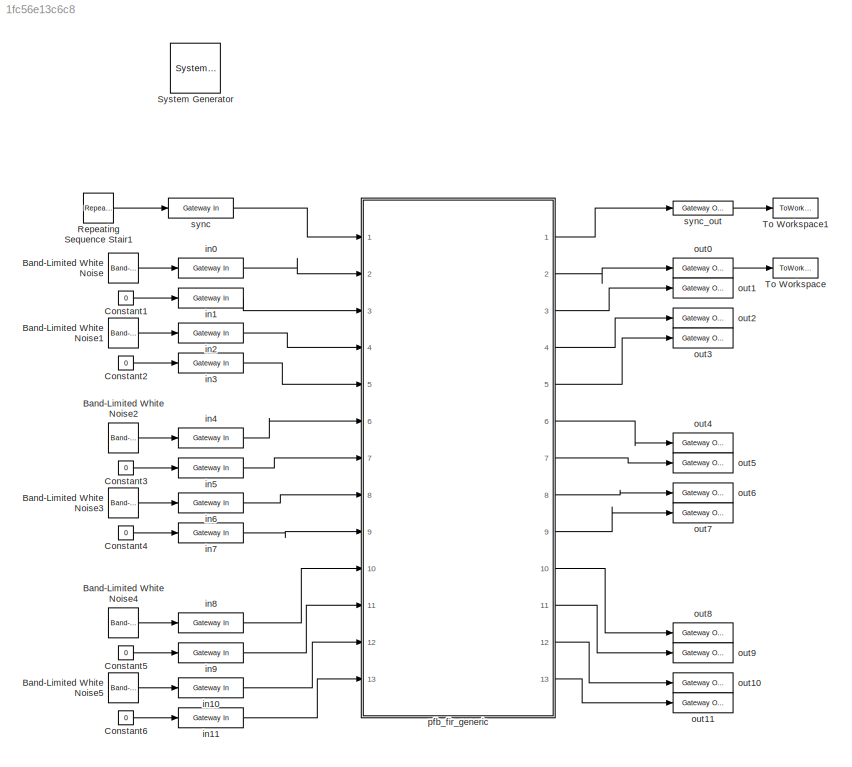
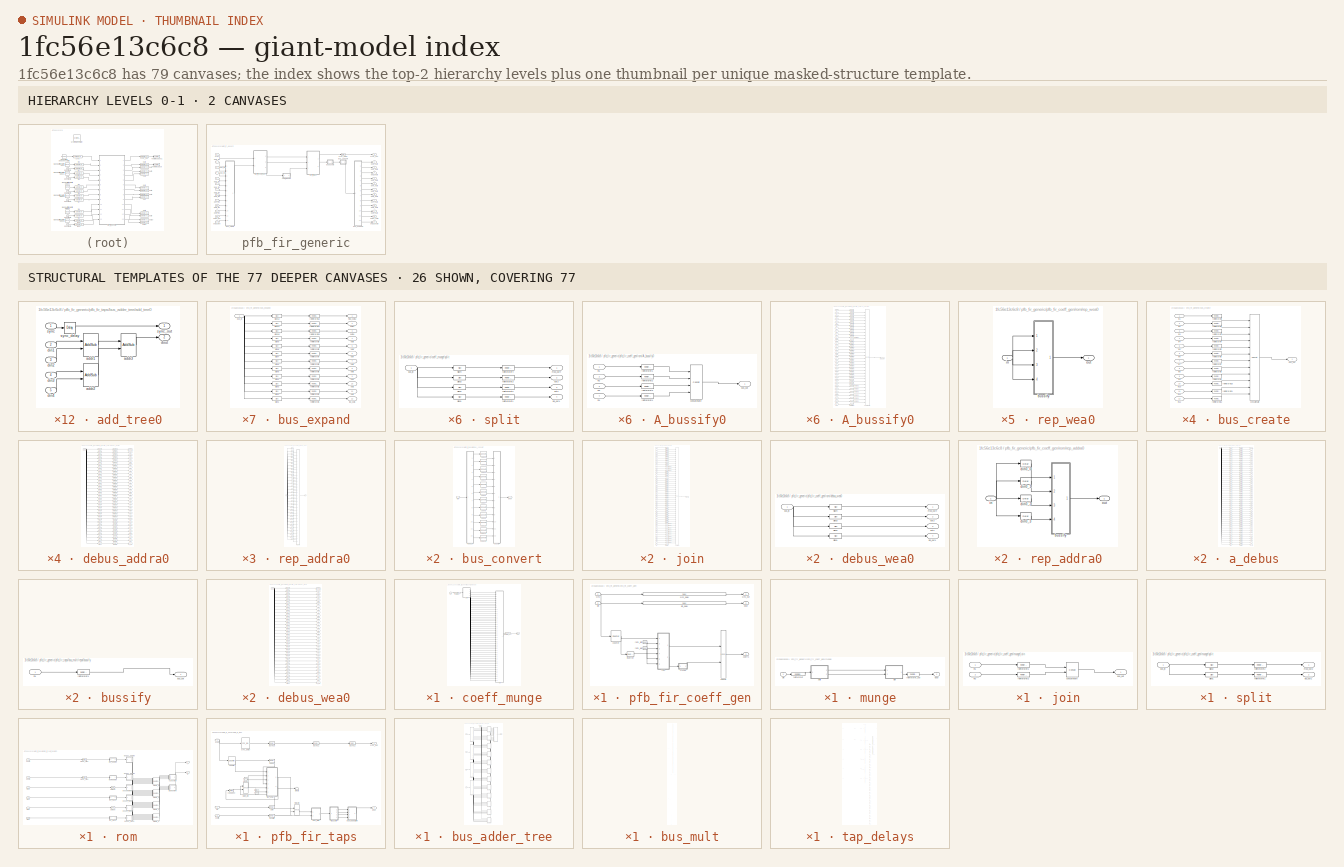
[diagram: thumbnail index - top-2 hierarchy levels (2 canvases) + 26 structural-template representatives of the remaining 77 canvases]
MODEL slx_1fc56e13c6c8
KIND model
CONFIG AbsTol = auto
CONFIG EnableMultiTasking = off
CONFIG FixedStep = auto
CONFIG MaxStep = auto
CONFIG MinStep = auto
CONFIG RelTol = 1e-3
CONFIG SampleTimeConstraint = Unconstrained
CONFIG SolverName = VariableStepDiscrete
CONFIG StartTime = 0.0
CONFIG StopTime = 262144
BLOCK [Reference]  System Generator  REF=xbsIndex_r4/ System Generator
  AttributesFormatString = System\nGenerator
  Ports = []
  SourceBlock = xbsIndex_r4/ System Generator
  SourceType = Xilinx System Generator Block
  Tag = genX
  UserDataPersistent = on
BLOCK [Reference] Band-Limited White Noise  REF=simulink/Sources/Band-Limited
White Noise
  Ports = [0, 1]
  SourceBlock = simulink/Sources/Band-Limited\nWhite Noise
  SourceProductBaseCode = SL
  SourceType = Band-Limited White Noise.
BLOCK [Reference] Band-Limited White Noise1  REF=simulink/Sources/Band-Limited
White Noise
  Ports = [0, 1]
  SourceBlock = simulink/Sources/Band-Limited\nWhite Noise
  SourceProductBaseCode = SL
  SourceType = Band-Limited White Noise.
BLOCK [Reference] Band-Limited White Noise2  REF=simulink/Sources/Band-Limited
White Noise
  Ports = [0, 1]
  SourceBlock = simulink/Sources/Band-Limited\nWhite Noise
  SourceProductBaseCode = SL
  SourceType = Band-Limited White Noise.
BLOCK [Reference] Band-Limited White Noise3  REF=simulink/Sources/Band-Limited
White Noise
  Ports = [0, 1]
  SourceBlock = simulink/Sources/Band-Limited\nWhite Noise
  SourceProductBaseCode = SL
  SourceType = Band-Limited White Noise.
BLOCK [Reference] Band-Limited White Noise4  REF=simulink/Sources/Band-Limited
White Noise
  Ports = [0, 1]
  SourceBlock = simulink/Sources/Band-Limited\nWhite Noise
  SourceProductBaseCode = SL
  SourceType = Band-Limited White Noise.
BLOCK [Reference] Band-Limited White Noise5  REF=simulink/Sources/Band-Limited
White Noise
  Ports = [0, 1]
  SourceBlock = simulink/Sources/Band-Limited\nWhite Noise
  SourceProductBaseCode = SL
  SourceType = Band-Limited White Noise.
BLOCK [Constant] Constant1
  Value = 0
BLOCK [Constant] Constant2
  Value = 0
BLOCK [Constant] Constant3
  Value = 0
BLOCK [Constant] Constant4
  Value = 0
BLOCK [Constant] Constant5
  Value = 0
BLOCK [Constant] Constant6
  Value = 0
BLOCK [Reference] Repeating Sequence Stair1  REF=simulink/Sources/Repeating
Sequence
Stair
  Ports = [0, 1]
  SourceBlock = simulink/Sources/Repeating\nSequence\nStair
  SourceProductBaseCode = SL
  SourceType = Repeating Sequence Stair
BLOCK [ToWorkspace] To Workspace
  MaxDataPoints = inf
  Ports = [1]
  SampleTime = -1
  VariableName = pfbout
BLOCK [ToWorkspace] To Workspace1
  MaxDataPoints = inf
  Ports = [1]
  SampleTime = -1
  VariableName = pfbsync
BLOCK [Reference] in0  REF=xbsIndex_r4/Gateway In
  Ports = [1, 1]
  SourceBlock = xbsIndex_r4/Gateway In
  SourceType = Xilinx Gateway In Block
BLOCK [Reference] in1  REF=xbsIndex_r4/Gateway In
  Ports = [1, 1]
  SourceBlock = xbsIndex_r4/Gateway In
  SourceType = Xilinx Gateway In Block
BLOCK [Reference] in10  REF=xbsIndex_r4/Gateway In
  Ports = [1, 1]
  SourceBlock = xbsIndex_r4/Gateway In
  SourceType = Xilinx Gateway In Block
BLOCK [Reference] in11  REF=xbsIndex_r4/Gateway In
  Ports = [1, 1]
  SourceBlock = xbsIndex_r4/Gateway In
  SourceType = Xilinx Gateway In Block
BLOCK [Reference] in2  REF=xbsIndex_r4/Gateway In
  Ports = [1, 1]
  SourceBlock = xbsIndex_r4/Gateway In
  SourceType = Xilinx Gateway In Block
BLOCK [Reference] in3  REF=xbsIndex_r4/Gateway In
  Ports = [1, 1]
  SourceBlock = xbsIndex_r4/Gateway In
  SourceType = Xilinx Gateway In Block
BLOCK [Reference] in4  REF=xbsIndex_r4/Gateway In
  Ports = [1, 1]
  SourceBlock = xbsIndex_r4/Gateway In
  SourceType = Xilinx Gateway In Block
BLOCK [Reference] in5  REF=xbsIndex_r4/Gateway In
  Ports = [1, 1]
  SourceBlock = xbsIndex_r4/Gateway In
  SourceType = Xilinx Gateway In Block
BLOCK [Reference] in6  REF=xbsIndex_r4/Gateway In
  Ports = [1, 1]
  SourceBlock = xbsIndex_r4/Gateway In
  SourceType = Xilinx Gateway In Block
BLOCK [Reference] in7  REF=xbsIndex_r4/Gateway In
  Ports = [1, 1]
  SourceBlock = xbsIndex_r4/Gateway In
  SourceType = Xilinx Gateway In Block
BLOCK [Reference] in8  REF=xbsIndex_r4/Gateway In
  Ports = [1, 1]
  SourceBlock = xbsIndex_r4/Gateway In
  SourceType = Xilinx Gateway In Block
BLOCK [Reference] in9  REF=xbsIndex_r4/Gateway In
  Ports = [1, 1]
  SourceBlock = xbsIndex_r4/Gateway In
  SourceType = Xilinx Gateway In Block
BLOCK [Reference] out0  REF=xbsIndex_r4/Gateway Out
  Ports = [1, 1]
  SourceBlock = xbsIndex_r4/Gateway Out
  SourceType = Xilinx Gateway Out Block
BLOCK [Reference] out1  REF=xbsIndex_r4/Gateway Out
  Ports = [1, 1]
  SourceBlock = xbsIndex_r4/Gateway Out
  SourceType = Xilinx Gateway Out Block
BLOCK [Reference] out10  REF=xbsIndex_r4/Gateway Out
  Ports = [1, 1]
  SourceBlock = xbsIndex_r4/Gateway Out
  SourceType = Xilinx Gateway Out Block
BLOCK [Reference] out11  REF=xbsIndex_r4/Gateway Out
  Ports = [1, 1]
  SourceBlock = xbsIndex_r4/Gateway Out
  SourceType = Xilinx Gateway Out Block
BLOCK [Reference] out2  REF=xbsIndex_r4/Gateway Out
  Ports = [1, 1]
  SourceBlock = xbsIndex_r4/Gateway Out
  SourceType = Xilinx Gateway Out Block
BLOCK [Reference] out3  REF=xbsIndex_r4/Gateway Out
  Ports = [1, 1]
  SourceBlock = xbsIndex_r4/Gateway Out
  SourceType = Xilinx Gateway Out Block
BLOCK [Reference] out4  REF=xbsIndex_r4/Gateway Out
  Ports = [1, 1]
  SourceBlock = xbsIndex_r4/Gateway Out
  SourceType = Xilinx Gateway Out Block
BLOCK [Reference] out5  REF=xbsIndex_r4/Gateway Out
  Ports = [1, 1]
  SourceBlock = xbsIndex_r4/Gateway Out
  SourceType = Xilinx Gateway Out Block
BLOCK [Reference] out6  REF=xbsIndex_r4/Gateway Out
  Ports = [1, 1]
  SourceBlock = xbsIndex_r4/Gateway Out
  SourceType = Xilinx Gateway Out Block
BLOCK [Reference] out7  REF=xbsIndex_r4/Gateway Out
  Ports = [1, 1]
  SourceBlock = xbsIndex_r4/Gateway Out
  SourceType = Xilinx Gateway Out Block
BLOCK [Reference] out8  REF=xbsIndex_r4/Gateway Out
  Ports = [1, 1]
  SourceBlock = xbsIndex_r4/Gateway Out
  SourceType = Xilinx Gateway Out Block
BLOCK [Reference] out9  REF=xbsIndex_r4/Gateway Out
  Ports = [1, 1]
  SourceBlock = xbsIndex_r4/Gateway Out
  SourceType = Xilinx Gateway Out Block
BLOCK [SubSystem] pfb_fir_generic
  AncestorBlock = casper_library_pfbs/pfb_fir_generic
  Ports = [13, 13]
  RequestExecContextInheritance = off
  Tag = casper:pfb_fir_generic
  UserDataPersistent = on
BLOCK [SubSystem] pfb_fir_generic/bus_convert
  AncestorBlock = casper_library_bus/bus_convert
  Ports = [1, 1]
  RequestExecContextInheritance = off
  UserDataPersistent = on
BLOCK [SubSystem] pfb_fir_generic/bus_convert/bussify
  AncestorBlock = casper_library_flow_control/bus_create
  Ports = [12, 1]
  RequestExecContextInheritance = off
  UserDataPersistent = on
BLOCK [Outport] pfb_fir_generic/bus_convert/bussify/bus_out
  VectorParamsAs1DForOutWhenUnconnected = off
BLOCK [Reference] pfb_fir_generic/bus_convert/bussify/concatenate  REF=xbsIndex_r4/Concat
  Ports = [12, 1]
  SourceBlock = xbsIndex_r4/Concat
  SourceType = Xilinx Bus Concatenator Block
BLOCK [Inport] pfb_fir_generic/bus_convert/bussify/in1
BLOCK [Inport] pfb_fir_generic/bus_convert/bussify/in10
  Port = 10
BLOCK [Inport] pfb_fir_generic/bus_convert/bussify/in11
  Port = 11
BLOCK [Inport] pfb_fir_generic/bus_convert/bussify/in12
  Port = 12
BLOCK [Inport] pfb_fir_generic/bus_convert/bussify/in2
  Port = 2
BLOCK [Inport] pfb_fir_generic/bus_convert/bussify/in3
  Port = 3
BLOCK [Inport] pfb_fir_generic/bus_convert/bussify/in4
  Port = 4
BLOCK [Inport] pfb_fir_generic/bus_convert/bussify/in5
  Port = 5
BLOCK [Inport] pfb_fir_generic/bus_convert/bussify/in6
  Port = 6
BLOCK [Inport] pfb_fir_generic/bus_convert/bussify/in7
  Port = 7
BLOCK [Inport] pfb_fir_generic/bus_convert/bussify/in8
  Port = 8
BLOCK [Inport] pfb_fir_generic/bus_convert/bussify/in9
  Port = 9
BLOCK [Reference] pfb_fir_generic/bus_convert/bussify/reinterpret1  REF=xbsIndex_r4/Reinterpret
  Ports = [1, 1]
  SourceBlock = xbsIndex_r4/Reinterpret
  SourceType = Xilinx Type Reinterpreter Block
BLOCK [Reference] pfb_fir_generic/bus_convert/bussify/reinterpret10  REF=xbsIndex_r4/Reinterpret
  Ports = [1, 1]
  SourceBlock = xbsIndex_r4/Reinterpret
  SourceType = Xilinx Type Reinterpreter Block
BLOCK [Reference] pfb_fir_generic/bus_convert/bussify/reinterpret11  REF=xbsIndex_r4/Reinterpret
  Ports = [1, 1]
  SourceBlock = xbsIndex_r4/Reinterpret
  SourceType = Xilinx Type Reinterpreter Block
BLOCK [Reference] pfb_fir_generic/bus_convert/bussify/reinterpret12  REF=xbsIndex_r4/Reinterpret
  Ports = [1, 1]
  SourceBlock = xbsIndex_r4/Reinterpret
  SourceType = Xilinx Type Reinterpreter Block
BLOCK [Reference] pfb_fir_generic/bus_convert/bussify/reinterpret2  REF=xbsIndex_r4/Reinterpret
  Ports = [1, 1]
  SourceBlock = xbsIndex_r4/Reinterpret
  SourceType = Xilinx Type Reinterpreter Block
BLOCK [Reference] pfb_fir_generic/bus_convert/bussify/reinterpret3  REF=xbsIndex_r4/Reinterpret
  Ports = [1, 1]
  SourceBlock = xbsIndex_r4/Reinterpret
  SourceType = Xilinx Type Reinterpreter Block
BLOCK [Reference] pfb_fir_generic/bus_convert/bussify/reinterpret4  REF=xbsIndex_r4/Reinterpret
  Ports = [1, 1]
  SourceBlock = xbsIndex_r4/Reinterpret
  SourceType = Xilinx Type Reinterpreter Block
BLOCK [Reference] pfb_fir_generic/bus_convert/bussify/reinterpret5  REF=xbsIndex_r4/Reinterpret
  Ports = [1, 1]
  SourceBlock = xbsIndex_r4/Reinterpret
  SourceType = Xilinx Type Reinterpreter Block
BLOCK [Reference] pfb_fir_generic/bus_convert/bussify/reinterpret6  REF=xbsIndex_r4/Reinterpret
  Ports = [1, 1]
  SourceBlock = xbsIndex_r4/Reinterpret
  SourceType = Xilinx Type Reinterpreter Block
BLOCK [Reference] pfb_fir_generic/bus_convert/bussify/reinterpret7  REF=xbsIndex_r4/Reinterpret
  Ports = [1, 1]
  SourceBlock = xbsIndex_r4/Reinterpret
  SourceType = Xilinx Type Reinterpreter Block
BLOCK [Reference] pfb_fir_generic/bus_convert/bussify/reinterpret8  REF=xbsIndex_r4/Reinterpret
  Ports = [1, 1]
  SourceBlock = xbsIndex_r4/Reinterpret
  SourceType = Xilinx Type Reinterpreter Block
BLOCK [Reference] pfb_fir_generic/bus_convert/bussify/reinterpret9  REF=xbsIndex_r4/Reinterpret
  Ports = [1, 1]
  SourceBlock = xbsIndex_r4/Reinterpret
  SourceType = Xilinx Type Reinterpreter Block
BLOCK [Reference] pfb_fir_generic/bus_convert/conv1  REF=xbsIndex_r4/Convert
  Ports = [1, 1]
  SourceBlock = xbsIndex_r4/Convert
  SourceType = Xilinx Type Converter Block
BLOCK [Reference] pfb_fir_generic/bus_convert/conv10  REF=xbsIndex_r4/Convert
  Ports = [1, 1]
  SourceBlock = xbsIndex_r4/Convert
  SourceType = Xilinx Type Converter Block
BLOCK [Reference] pfb_fir_generic/bus_convert/conv11  REF=xbsIndex_r4/Convert
  Ports = [1, 1]
  SourceBlock = xbsIndex_r4/Convert
  SourceType = Xilinx Type Converter Block
BLOCK [Reference] pfb_fir_generic/bus_convert/conv12  REF=xbsIndex_r4/Convert
  Ports = [1, 1]
  SourceBlock = xbsIndex_r4/Convert
  SourceType = Xilinx Type Converter Block
BLOCK [Reference] pfb_fir_generic/bus_convert/conv2  REF=xbsIndex_r4/Convert
  Ports = [1, 1]
  SourceBlock = xbsIndex_r4/Convert
  SourceType = Xilinx Type Converter Block
BLOCK [Reference] pfb_fir_generic/bus_convert/conv3  REF=xbsIndex_r4/Convert
  Ports = [1, 1]
  SourceBlock = xbsIndex_r4/Convert
  SourceType = Xilinx Type Converter Block
BLOCK [Reference] pfb_fir_generic/bus_convert/conv4  REF=xbsIndex_r4/Convert
  Ports = [1, 1]
  SourceBlock = xbsIndex_r4/Convert
  SourceType = Xilinx Type Converter Block
BLOCK [Reference] pfb_fir_generic/bus_convert/conv5  REF=xbsIndex_r4/Convert
  Ports = [1, 1]
  SourceBlock = xbsIndex_r4/Convert
  SourceType = Xilinx Type Converter Block
BLOCK [Reference] pfb_fir_generic/bus_convert/conv6  REF=xbsIndex_r4/Convert
  Ports = [1, 1]
  SourceBlock = xbsIndex_r4/Convert
  SourceType = Xilinx Type Converter Block
BLOCK [Reference] pfb_fir_generic/bus_convert/conv7  REF=xbsIndex_r4/Convert
  Ports = [1, 1]
  SourceBlock = xbsIndex_r4/Convert
  SourceType = Xilinx Type Converter Block
BLOCK [Reference] pfb_fir_generic/bus_convert/conv8  REF=xbsIndex_r4/Convert
  Ports = [1, 1]
  SourceBlock = xbsIndex_r4/Convert
  SourceType = Xilinx Type Converter Block
BLOCK [Reference] pfb_fir_generic/bus_convert/conv9  REF=xbsIndex_r4/Convert
  Ports = [1, 1]
  SourceBlock = xbsIndex_r4/Convert
  SourceType = Xilinx Type Converter Block
BLOCK [SubSystem] pfb_fir_generic/bus_convert/debus
  AncestorBlock = casper_library_flow_control/bus_expand
  AttributesFormatString = 12 outputs: f28.25,f28.25,f28.25,f28.25,f28.25,f28.25,f28.25,f28.25,f28.25,f28.25,f28.25,f28.25,
  Ports = [1, 12]
  RequestExecContextInheritance = off
  UserDataPersistent = on
BLOCK [Inport] pfb_fir_generic/bus_convert/debus/bus_in
BLOCK [Outport] pfb_fir_generic/bus_convert/debus/lsb_out1
  Port = 12
  VectorParamsAs1DForOutWhenUnconnected = off
BLOCK [Outport] pfb_fir_generic/bus_convert/debus/msb_out12
BLOCK [Outport] pfb_fir_generic/bus_convert/debus/out10
  Port = 3
BLOCK [Outport] pfb_fir_generic/bus_convert/debus/out11
  Port = 2
BLOCK [Outport] pfb_fir_generic/bus_convert/debus/out2
  Port = 11
BLOCK [Outport] pfb_fir_generic/bus_convert/debus/out3
  Port = 10
BLOCK [Outport] pfb_fir_generic/bus_convert/debus/out4
  Port = 9
BLOCK [Outport] pfb_fir_generic/bus_convert/debus/out5
  Port = 8
BLOCK [Outport] pfb_fir_generic/bus_convert/debus/out6
  Port = 7
BLOCK [Outport] pfb_fir_generic/bus_convert/debus/out7
  Port = 6
BLOCK [Outport] pfb_fir_generic/bus_convert/debus/out8
  Port = 5
BLOCK [Outport] pfb_fir_generic/bus_convert/debus/out9
  Port = 4
BLOCK [Reference] pfb_fir_generic/bus_convert/debus/reinterpret1  REF=xbsIndex_r4/Reinterpret
  Ports = [1, 1]
  SourceBlock = xbsIndex_r4/Reinterpret
  SourceType = Xilinx Type Reinterpreter Block
BLOCK [Reference] pfb_fir_generic/bus_convert/debus/reinterpret10  REF=xbsIndex_r4/Reinterpret
  Ports = [1, 1]
  SourceBlock = xbsIndex_r4/Reinterpret
  SourceType = Xilinx Type Reinterpreter Block
BLOCK [Reference] pfb_fir_generic/bus_convert/debus/reinterpret11  REF=xbsIndex_r4/Reinterpret
  Ports = [1, 1]
  SourceBlock = xbsIndex_r4/Reinterpret
  SourceType = Xilinx Type Reinterpreter Block
BLOCK [Reference] pfb_fir_generic/bus_convert/debus/reinterpret12  REF=xbsIndex_r4/Reinterpret
  Ports = [1, 1]
  SourceBlock = xbsIndex_r4/Reinterpret
  SourceType = Xilinx Type Reinterpreter Block
BLOCK [Reference] pfb_fir_generic/bus_convert/debus/reinterpret2  REF=xbsIndex_r4/Reinterpret
  Ports = [1, 1]
  SourceBlock = xbsIndex_r4/Reinterpret
  SourceType = Xilinx Type Reinterpreter Block
BLOCK [Reference] pfb_fir_generic/bus_convert/debus/reinterpret3  REF=xbsIndex_r4/Reinterpret
  Ports = [1, 1]
  SourceBlock = xbsIndex_r4/Reinterpret
  SourceType = Xilinx Type Reinterpreter Block
BLOCK [Reference] pfb_fir_generic/bus_convert/debus/reinterpret4  REF=xbsIndex_r4/Reinterpret
  Ports = [1, 1]
  SourceBlock = xbsIndex_r4/Reinterpret
  SourceType = Xilinx Type Reinterpreter Block
BLOCK [Reference] pfb_fir_generic/bus_convert/debus/reinterpret5  REF=xbsIndex_r4/Reinterpret
  Ports = [1, 1]
  SourceBlock = xbsIndex_r4/Reinterpret
  SourceType = Xilinx Type Reinterpreter Block
BLOCK [Reference] pfb_fir_generic/bus_convert/debus/reinterpret6  REF=xbsIndex_r4/Reinterpret
  Ports = [1, 1]
  SourceBlock = xbsIndex_r4/Reinterpret
  SourceType = Xilinx Type Reinterpreter Block
BLOCK [Reference] pfb_fir_generic/bus_convert/debus/reinterpret7  REF=xbsIndex_r4/Reinterpret
  Ports = [1, 1]
  SourceBlock = xbsIndex_r4/Reinterpret
  SourceType = Xilinx Type Reinterpreter Block
BLOCK [Reference] pfb_fir_generic/bus_convert/debus/reinterpret8  REF=xbsIndex_r4/Reinterpret
  Ports = [1, 1]
  SourceBlock = xbsIndex_r4/Reinterpret
  SourceType = Xilinx Type Reinterpreter Block
BLOCK [Reference] pfb_fir_generic/bus_convert/debus/reinterpret9  REF=xbsIndex_r4/Reinterpret
  Ports = [1, 1]
  SourceBlock = xbsIndex_r4/Reinterpret
  SourceType = Xilinx Type Reinterpreter Block
BLOCK [Reference] pfb_fir_generic/bus_convert/debus/slice1  REF=xbsIndex_r4/Slice
  Ports = [1, 1]
  SourceBlock = xbsIndex_r4/Slice
  SourceType = Xilinx Bit Slice Extractor Block
BLOCK [Reference] pfb_fir_generic/bus_convert/debus/slice10  REF=xbsIndex_r4/Slice
  Ports = [1, 1]
  SourceBlock = xbsIndex_r4/Slice
  SourceType = Xilinx Bit Slice Extractor Block
BLOCK [Reference] pfb_fir_generic/bus_convert/debus/slice11  REF=xbsIndex_r4/Slice
  Ports = [1, 1]
  SourceBlock = xbsIndex_r4/Slice
  SourceType = Xilinx Bit Slice Extractor Block
BLOCK [Reference] pfb_fir_generic/bus_convert/debus/slice12  REF=xbsIndex_r4/Slice
  Ports = [1, 1]
  SourceBlock = xbsIndex_r4/Slice
  SourceType = Xilinx Bit Slice Extractor Block
BLOCK [Reference] pfb_fir_generic/bus_convert/debus/slice2  REF=xbsIndex_r4/Slice
  Ports = [1, 1]
  SourceBlock = xbsIndex_r4/Slice
  SourceType = Xilinx Bit Slice Extractor Block
BLOCK [Reference] pfb_fir_generic/bus_convert/debus/slice3  REF=xbsIndex_r4/Slice
  Ports = [1, 1]
  SourceBlock = xbsIndex_r4/Slice
  SourceType = Xilinx Bit Slice Extractor Block
BLOCK [Reference] pfb_fir_generic/bus_convert/debus/slice4  REF=xbsIndex_r4/Slice
  Ports = [1, 1]
  SourceBlock = xbsIndex_r4/Slice
  SourceType = Xilinx Bit Slice Extractor Block
BLOCK [Reference] pfb_fir_generic/bus_convert/debus/slice5  REF=xbsIndex_r4/Slice
  Ports = [1, 1]
  SourceBlock = xbsIndex_r4/Slice
  SourceType = Xilinx Bit Slice Extractor Block
BLOCK [Reference] pfb_fir_generic/bus_convert/debus/slice6  REF=xbsIndex_r4/Slice
  Ports = [1, 1]
  SourceBlock = xbsIndex_r4/Slice
  SourceType = Xilinx Bit Slice Extractor Block
BLOCK [Reference] pfb_fir_generic/bus_convert/debus/slice7  REF=xbsIndex_r4/Slice
  Ports = [1, 1]
  SourceBlock = xbsIndex_r4/Slice
  SourceType = Xilinx Bit Slice Extractor Block
BLOCK [Reference] pfb_fir_generic/bus_convert/debus/slice8  REF=xbsIndex_r4/Slice
  Ports = [1, 1]
  SourceBlock = xbsIndex_r4/Slice
  SourceType = Xilinx Bit Slice Extractor Block
BLOCK [Reference] pfb_fir_generic/bus_convert/debus/slice9  REF=xbsIndex_r4/Slice
  Ports = [1, 1]
  SourceBlock = xbsIndex_r4/Slice
  SourceType = Xilinx Bit Slice Extractor Block
BLOCK [Inport] pfb_fir_generic/bus_convert/din
BLOCK [Outport] pfb_fir_generic/bus_convert/dout
BLOCK [SubSystem] pfb_fir_generic/bus_create
  AncestorBlock = casper_library_flow_control/bus_create
  Ports = [12, 1]
  RequestExecContextInheritance = off
  UserDataPersistent = on
BLOCK [Outport] pfb_fir_generic/bus_create/bus_out
  VectorParamsAs1DForOutWhenUnconnected = off
BLOCK [Reference] pfb_fir_generic/bus_create/concatenate  REF=xbsIndex_r4/Concat
  Ports = [12, 1]
  SourceBlock = xbsIndex_r4/Concat
  SourceType = Xilinx Bus Concatenator Block
BLOCK [Inport] pfb_fir_generic/bus_create/in1
BLOCK [Inport] pfb_fir_generic/bus_create/in10
  Port = 10
BLOCK [Inport] pfb_fir_generic/bus_create/in11
  Port = 11
BLOCK [Inport] pfb_fir_generic/bus_create/in12
  Port = 12
BLOCK [Inport] pfb_fir_generic/bus_create/in2
  Port = 2
BLOCK [Inport] pfb_fir_generic/bus_create/in3
  Port = 3
BLOCK [Inport] pfb_fir_generic/bus_create/in4
  Port = 4
BLOCK [Inport] pfb_fir_generic/bus_create/in5
  Port = 5
BLOCK [Inport] pfb_fir_generic/bus_create/in6
  Port = 6
BLOCK [Inport] pfb_fir_generic/bus_create/in7
  Port = 7
BLOCK [Inport] pfb_fir_generic/bus_create/in8
  Port = 8
BLOCK [Inport] pfb_fir_generic/bus_create/in9
  Port = 9
BLOCK [Reference] pfb_fir_generic/bus_create/reinterpret1  REF=xbsIndex_r4/Reinterpret
  Ports = [1, 1]
  SourceBlock = xbsIndex_r4/Reinterpret
  SourceType = Xilinx Type Reinterpreter Block
BLOCK [Reference] pfb_fir_generic/bus_create/reinterpret10  REF=xbsIndex_r4/Reinterpret
  Ports = [1, 1]
  SourceBlock = xbsIndex_r4/Reinterpret
  SourceType = Xilinx Type Reinterpreter Block
BLOCK [Reference] pfb_fir_generic/bus_create/reinterpret11  REF=xbsIndex_r4/Reinterpret
  Ports = [1, 1]
  SourceBlock = xbsIndex_r4/Reinterpret
  SourceType = Xilinx Type Reinterpreter Block
BLOCK [Reference] pfb_fir_generic/bus_create/reinterpret12  REF=xbsIndex_r4/Reinterpret
  Ports = [1, 1]
  SourceBlock = xbsIndex_r4/Reinterpret
  SourceType = Xilinx Type Reinterpreter Block
BLOCK [Reference] pfb_fir_generic/bus_create/reinterpret2  REF=xbsIndex_r4/Reinterpret
  Ports = [1, 1]
  SourceBlock = xbsIndex_r4/Reinterpret
  SourceType = Xilinx Type Reinterpreter Block
BLOCK [Reference] pfb_fir_generic/bus_create/reinterpret3  REF=xbsIndex_r4/Reinterpret
  Ports = [1, 1]
  SourceBlock = xbsIndex_r4/Reinterpret
  SourceType = Xilinx Type Reinterpreter Block
BLOCK [Reference] pfb_fir_generic/bus_create/reinterpret4  REF=xbsIndex_r4/Reinterpret
  Ports = [1, 1]
  SourceBlock = xbsIndex_r4/Reinterpret
  SourceType = Xilinx Type Reinterpreter Block
BLOCK [Reference] pfb_fir_generic/bus_create/reinterpret5  REF=xbsIndex_r4/Reinterpret
  Ports = [1, 1]
  SourceBlock = xbsIndex_r4/Reinterpret
  SourceType = Xilinx Type Reinterpreter Block
BLOCK [Reference] pfb_fir_generic/bus_create/reinterpret6  REF=xbsIndex_r4/Reinterpret
  Ports = [1, 1]
  SourceBlock = xbsIndex_r4/Reinterpret
  SourceType = Xilinx Type Reinterpreter Block
BLOCK [Reference] pfb_fir_generic/bus_create/reinterpret7  REF=xbsIndex_r4/Reinterpret
  Ports = [1, 1]
  SourceBlock = xbsIndex_r4/Reinterpret
  SourceType = Xilinx Type Reinterpreter Block
BLOCK [Reference] pfb_fir_generic/bus_create/reinterpret8  REF=xbsIndex_r4/Reinterpret
  Ports = [1, 1]
  SourceBlock = xbsIndex_r4/Reinterpret
  SourceType = Xilinx Type Reinterpreter Block
BLOCK [Reference] pfb_fir_generic/bus_create/reinterpret9  REF=xbsIndex_r4/Reinterpret
  Ports = [1, 1]
  SourceBlock = xbsIndex_r4/Reinterpret
  SourceType = Xilinx Type Reinterpreter Block
BLOCK [SubSystem] pfb_fir_generic/bus_expand
  AncestorBlock = casper_library_flow_control/bus_expand
  AttributesFormatString = 12 outputs
  Ports = [1, 12]
  RequestExecContextInheritance = off
  UserDataPersistent = on
BLOCK [Inport] pfb_fir_generic/bus_expand/bus_in
BLOCK [Outport] pfb_fir_generic/bus_expand/lsb_out1
  Port = 12
  VectorParamsAs1DForOutWhenUnconnected = off
BLOCK [Outport] pfb_fir_generic/bus_expand/msb_out12
BLOCK [Outport] pfb_fir_generic/bus_expand/out10
  Port = 3
BLOCK [Outport] pfb_fir_generic/bus_expand/out11
  Port = 2
BLOCK [Outport] pfb_fir_generic/bus_expand/out2
  Port = 11
BLOCK [Outport] pfb_fir_generic/bus_expand/out3
  Port = 10
BLOCK [Outport] pfb_fir_generic/bus_expand/out4
  Port = 9
BLOCK [Outport] pfb_fir_generic/bus_expand/out5
  Port = 8
BLOCK [Outport] pfb_fir_generic/bus_expand/out6
  Port = 7
BLOCK [Outport] pfb_fir_generic/bus_expand/out7
  Port = 6
BLOCK [Outport] pfb_fir_generic/bus_expand/out8
  Port = 5
BLOCK [Outport] pfb_fir_generic/bus_expand/out9
  Port = 4
BLOCK [Reference] pfb_fir_generic/bus_expand/reinterpret1  REF=xbsIndex_r4/Reinterpret
  Ports = [1, 1]
  SourceBlock = xbsIndex_r4/Reinterpret
  SourceType = Xilinx Type Reinterpreter Block
BLOCK [Reference] pfb_fir_generic/bus_expand/reinterpret10  REF=xbsIndex_r4/Reinterpret
  Ports = [1, 1]
  SourceBlock = xbsIndex_r4/Reinterpret
  SourceType = Xilinx Type Reinterpreter Block
BLOCK [Reference] pfb_fir_generic/bus_expand/reinterpret11  REF=xbsIndex_r4/Reinterpret
  Ports = [1, 1]
  SourceBlock = xbsIndex_r4/Reinterpret
  SourceType = Xilinx Type Reinterpreter Block
BLOCK [Reference] pfb_fir_generic/bus_expand/reinterpret12  REF=xbsIndex_r4/Reinterpret
  Ports = [1, 1]
  SourceBlock = xbsIndex_r4/Reinterpret
  SourceType = Xilinx Type Reinterpreter Block
BLOCK [Reference] pfb_fir_generic/bus_expand/reinterpret2  REF=xbsIndex_r4/Reinterpret
  Ports = [1, 1]
  SourceBlock = xbsIndex_r4/Reinterpret
  SourceType = Xilinx Type Reinterpreter Block
BLOCK [Reference] pfb_fir_generic/bus_expand/reinterpret3  REF=xbsIndex_r4/Reinterpret
  Ports = [1, 1]
  SourceBlock = xbsIndex_r4/Reinterpret
  SourceType = Xilinx Type Reinterpreter Block
BLOCK [Reference] pfb_fir_generic/bus_expand/reinterpret4  REF=xbsIndex_r4/Reinterpret
  Ports = [1, 1]
  SourceBlock = xbsIndex_r4/Reinterpret
  SourceType = Xilinx Type Reinterpreter Block
BLOCK [Reference] pfb_fir_generic/bus_expand/reinterpret5  REF=xbsIndex_r4/Reinterpret
  Ports = [1, 1]
  SourceBlock = xbsIndex_r4/Reinterpret
  SourceType = Xilinx Type Reinterpreter Block
BLOCK [Reference] pfb_fir_generic/bus_expand/reinterpret6  REF=xbsIndex_r4/Reinterpret
  Ports = [1, 1]
  SourceBlock = xbsIndex_r4/Reinterpret
  SourceType = Xilinx Type Reinterpreter Block
BLOCK [Reference] pfb_fir_generic/bus_expand/reinterpret7  REF=xbsIndex_r4/Reinterpret
  Ports = [1, 1]
  SourceBlock = xbsIndex_r4/Reinterpret
  SourceType = Xilinx Type Reinterpreter Block
BLOCK [Reference] pfb_fir_generic/bus_expand/reinterpret8  REF=xbsIndex_r4/Reinterpret
  Ports = [1, 1]
  SourceBlock = xbsIndex_r4/Reinterpret
  SourceType = Xilinx Type Reinterpreter Block
BLOCK [Reference] pfb_fir_generic/bus_expand/reinterpret9  REF=xbsIndex_r4/Reinterpret
  Ports = [1, 1]
  SourceBlock = xbsIndex_r4/Reinterpret
  SourceType = Xilinx Type Reinterpreter Block
BLOCK [Reference] pfb_fir_generic/bus_expand/slice1  REF=xbsIndex_r4/Slice
  Ports = [1, 1]
  SourceBlock = xbsIndex_r4/Slice
  SourceType = Xilinx Bit Slice Extractor Block
BLOCK [Reference] pfb_fir_generic/bus_expand/slice10  REF=xbsIndex_r4/Slice
  Ports = [1, 1]
  SourceBlock = xbsIndex_r4/Slice
  SourceType = Xilinx Bit Slice Extractor Block
BLOCK [Reference] pfb_fir_generic/bus_expand/slice11  REF=xbsIndex_r4/Slice
  Ports = [1, 1]
  SourceBlock = xbsIndex_r4/Slice
  SourceType = Xilinx Bit Slice Extractor Block
BLOCK [Reference] pfb_fir_generic/bus_expand/slice12  REF=xbsIndex_r4/Slice
  Ports = [1, 1]
  SourceBlock = xbsIndex_r4/Slice
  SourceType = Xilinx Bit Slice Extractor Block
BLOCK [Reference] pfb_fir_generic/bus_expand/slice2  REF=xbsIndex_r4/Slice
  Ports = [1, 1]
  SourceBlock = xbsIndex_r4/Slice
  SourceType = Xilinx Bit Slice Extractor Block
BLOCK [Reference] pfb_fir_generic/bus_expand/slice3  REF=xbsIndex_r4/Slice
  Ports = [1, 1]
  SourceBlock = xbsIndex_r4/Slice
  SourceType = Xilinx Bit Slice Extractor Block
BLOCK [Reference] pfb_fir_generic/bus_expand/slice4  REF=xbsIndex_r4/Slice
  Ports = [1, 1]
  SourceBlock = xbsIndex_r4/Slice
  SourceType = Xilinx Bit Slice Extractor Block
BLOCK [Reference] pfb_fir_generic/bus_expand/slice5  REF=xbsIndex_r4/Slice
  Ports = [1, 1]
  SourceBlock = xbsIndex_r4/Slice
  SourceType = Xilinx Bit Slice Extractor Block
BLOCK [Reference] pfb_fir_generic/bus_expand/slice6  REF=xbsIndex_r4/Slice
  Ports = [1, 1]
  SourceBlock = xbsIndex_r4/Slice
  SourceType = Xilinx Bit Slice Extractor Block
BLOCK [Reference] pfb_fir_generic/bus_expand/slice7  REF=xbsIndex_r4/Slice
  Ports = [1, 1]
  SourceBlock = xbsIndex_r4/Slice
  SourceType = Xilinx Bit Slice Extractor Block
BLOCK [Reference] pfb_fir_generic/bus_expand/slice8  REF=xbsIndex_r4/Slice
  Ports = [1, 1]
  SourceBlock = xbsIndex_r4/Slice
  SourceType = Xilinx Bit Slice Extractor Block
BLOCK [Reference] pfb_fir_generic/bus_expand/slice9  REF=xbsIndex_r4/Slice
  Ports = [1, 1]
  SourceBlock = xbsIndex_r4/Slice
  SourceType = Xilinx Bit Slice Extractor Block
BLOCK [SubSystem] pfb_fir_generic/bus_scale
  AncestorBlock = casper_library_bus/bus_scale
  Ports = [1, 1]
  RequestExecContextInheritance = off
  UserDataPersistent = on
BLOCK [SubSystem] pfb_fir_generic/bus_scale/bussify
  AncestorBlock = casper_library_flow_control/bus_create
  Ports = [12, 1]
  RequestExecContextInheritance = off
  UserDataPersistent = on
BLOCK [Outport] pfb_fir_generic/bus_scale/bussify/bus_out
  VectorParamsAs1DForOutWhenUnconnected = off
BLOCK [Reference] pfb_fir_generic/bus_scale/bussify/concatenate  REF=xbsIndex_r4/Concat
  Ports = [12, 1]
  SourceBlock = xbsIndex_r4/Concat
  SourceType = Xilinx Bus Concatenator Block
BLOCK [Inport] pfb_fir_generic/bus_scale/bussify/in1
BLOCK [Inport] pfb_fir_generic/bus_scale/bussify/in10
  Port = 10
BLOCK [Inport] pfb_fir_generic/bus_scale/bussify/in11
  Port = 11
BLOCK [Inport] pfb_fir_generic/bus_scale/bussify/in12
  Port = 12
BLOCK [Inport] pfb_fir_generic/bus_scale/bussify/in2
  Port = 2
BLOCK [Inport] pfb_fir_generic/bus_scale/bussify/in3
  Port = 3
BLOCK [Inport] pfb_fir_generic/bus_scale/bussify/in4
  Port = 4
BLOCK [Inport] pfb_fir_generic/bus_scale/bussify/in5
  Port = 5
BLOCK [Inport] pfb_fir_generic/bus_scale/bussify/in6
  Port = 6
BLOCK [Inport] pfb_fir_generic/bus_scale/bussify/in7
  Port = 7
BLOCK [Inport] pfb_fir_generic/bus_scale/bussify/in8
  Port = 8
BLOCK [Inport] pfb_fir_generic/bus_scale/bussify/in9
  Port = 9
BLOCK [Reference] pfb_fir_generic/bus_scale/bussify/reinterpret1  REF=xbsIndex_r4/Reinterpret
  Ports = [1, 1]
  SourceBlock = xbsIndex_r4/Reinterpret
  SourceType = Xilinx Type Reinterpreter Block
BLOCK [Reference] pfb_fir_generic/bus_scale/bussify/reinterpret10  REF=xbsIndex_r4/Reinterpret
  Ports = [1, 1]
  SourceBlock = xbsIndex_r4/Reinterpret
  SourceType = Xilinx Type Reinterpreter Block
BLOCK [Reference] pfb_fir_generic/bus_scale/bussify/reinterpret11  REF=xbsIndex_r4/Reinterpret
  Ports = [1, 1]
  SourceBlock = xbsIndex_r4/Reinterpret
  SourceType = Xilinx Type Reinterpreter Block
BLOCK [Reference] pfb_fir_generic/bus_scale/bussify/reinterpret12  REF=xbsIndex_r4/Reinterpret
  Ports = [1, 1]
  SourceBlock = xbsIndex_r4/Reinterpret
  SourceType = Xilinx Type Reinterpreter Block
BLOCK [Reference] pfb_fir_generic/bus_scale/bussify/reinterpret2  REF=xbsIndex_r4/Reinterpret
  Ports = [1, 1]
  SourceBlock = xbsIndex_r4/Reinterpret
  SourceType = Xilinx Type Reinterpreter Block
BLOCK [Reference] pfb_fir_generic/bus_scale/bussify/reinterpret3  REF=xbsIndex_r4/Reinterpret
  Ports = [1, 1]
  SourceBlock = xbsIndex_r4/Reinterpret
  SourceType = Xilinx Type Reinterpreter Block
BLOCK [Reference] pfb_fir_generic/bus_scale/bussify/reinterpret4  REF=xbsIndex_r4/Reinterpret
  Ports = [1, 1]
  SourceBlock = xbsIndex_r4/Reinterpret
  SourceType = Xilinx Type Reinterpreter Block
BLOCK [Reference] pfb_fir_generic/bus_scale/bussify/reinterpret5  REF=xbsIndex_r4/Reinterpret
  Ports = [1, 1]
  SourceBlock = xbsIndex_r4/Reinterpret
  SourceType = Xilinx Type Reinterpreter Block
BLOCK [Reference] pfb_fir_generic/bus_scale/bussify/reinterpret6  REF=xbsIndex_r4/Reinterpret
  Ports = [1, 1]
  SourceBlock = xbsIndex_r4/Reinterpret
  SourceType = Xilinx Type Reinterpreter Block
BLOCK [Reference] pfb_fir_generic/bus_scale/bussify/reinterpret7  REF=xbsIndex_r4/Reinterpret
  Ports = [1, 1]
  SourceBlock = xbsIndex_r4/Reinterpret
  SourceType = Xilinx Type Reinterpreter Block
BLOCK [Reference] pfb_fir_generic/bus_scale/bussify/reinterpret8  REF=xbsIndex_r4/Reinterpret
  Ports = [1, 1]
  SourceBlock = xbsIndex_r4/Reinterpret
  SourceType = Xilinx Type Reinterpreter Block
BLOCK [Reference] pfb_fir_generic/bus_scale/bussify/reinterpret9  REF=xbsIndex_r4/Reinterpret
  Ports = [1, 1]
  SourceBlock = xbsIndex_r4/Reinterpret
  SourceType = Xilinx Type Reinterpreter Block
BLOCK [SubSystem] pfb_fir_generic/bus_scale/debus
  AncestorBlock = casper_library_flow_control/bus_expand
  AttributesFormatString = 12 outputs: f28.24,f28.24,f28.24,f28.24,f28.24,f28.24,f28.24,f28.24,f28.24,f28.24,f28.24,f28.24,
  Ports = [1, 12]
  RequestExecContextInheritance = off
  UserDataPersistent = on
BLOCK [Inport] pfb_fir_generic/bus_scale/debus/bus_in
BLOCK [Outport] pfb_fir_generic/bus_scale/debus/lsb_out1
  Port = 12
  VectorParamsAs1DForOutWhenUnconnected = off
BLOCK [Outport] pfb_fir_generic/bus_scale/debus/msb_out12
BLOCK [Outport] pfb_fir_generic/bus_scale/debus/out10
  Port = 3
BLOCK [Outport] pfb_fir_generic/bus_scale/debus/out11
  Port = 2
BLOCK [Outport] pfb_fir_generic/bus_scale/debus/out2
  Port = 11
BLOCK [Outport] pfb_fir_generic/bus_scale/debus/out3
  Port = 10
BLOCK [Outport] pfb_fir_generic/bus_scale/debus/out4
  Port = 9
BLOCK [Outport] pfb_fir_generic/bus_scale/debus/out5
  Port = 8
BLOCK [Outport] pfb_fir_generic/bus_scale/debus/out6
  Port = 7
BLOCK [Outport] pfb_fir_generic/bus_scale/debus/out7
  Port = 6
BLOCK [Outport] pfb_fir_generic/bus_scale/debus/out8
  Port = 5
BLOCK [Outport] pfb_fir_generic/bus_scale/debus/out9
  Port = 4
BLOCK [Reference] pfb_fir_generic/bus_scale/debus/reinterpret1  REF=xbsIndex_r4/Reinterpret
  Ports = [1, 1]
  SourceBlock = xbsIndex_r4/Reinterpret
  SourceType = Xilinx Type Reinterpreter Block
BLOCK [Reference] pfb_fir_generic/bus_scale/debus/reinterpret10  REF=xbsIndex_r4/Reinterpret
  Ports = [1, 1]
  SourceBlock = xbsIndex_r4/Reinterpret
  SourceType = Xilinx Type Reinterpreter Block
BLOCK [Reference] pfb_fir_generic/bus_scale/debus/reinterpret11  REF=xbsIndex_r4/Reinterpret
  Ports = [1, 1]
  SourceBlock = xbsIndex_r4/Reinterpret
  SourceType = Xilinx Type Reinterpreter Block
BLOCK [Reference] pfb_fir_generic/bus_scale/debus/reinterpret12  REF=xbsIndex_r4/Reinterpret
  Ports = [1, 1]
  SourceBlock = xbsIndex_r4/Reinterpret
  SourceType = Xilinx Type Reinterpreter Block
BLOCK [Reference] pfb_fir_generic/bus_scale/debus/reinterpret2  REF=xbsIndex_r4/Reinterpret
  Ports = [1, 1]
  SourceBlock = xbsIndex_r4/Reinterpret
  SourceType = Xilinx Type Reinterpreter Block
BLOCK [Reference] pfb_fir_generic/bus_scale/debus/reinterpret3  REF=xbsIndex_r4/Reinterpret
  Ports = [1, 1]
  SourceBlock = xbsIndex_r4/Reinterpret
  SourceType = Xilinx Type Reinterpreter Block
BLOCK [Reference] pfb_fir_generic/bus_scale/debus/reinterpret4  REF=xbsIndex_r4/Reinterpret
  Ports = [1, 1]
  SourceBlock = xbsIndex_r4/Reinterpret
  SourceType = Xilinx Type Reinterpreter Block
BLOCK [Reference] pfb_fir_generic/bus_scale/debus/reinterpret5  REF=xbsIndex_r4/Reinterpret
  Ports = [1, 1]
  SourceBlock = xbsIndex_r4/Reinterpret
  SourceType = Xilinx Type Reinterpreter Block
BLOCK [Reference] pfb_fir_generic/bus_scale/debus/reinterpret6  REF=xbsIndex_r4/Reinterpret
  Ports = [1, 1]
  SourceBlock = xbsIndex_r4/Reinterpret
  SourceType = Xilinx Type Reinterpreter Block
BLOCK [Reference] pfb_fir_generic/bus_scale/debus/reinterpret7  REF=xbsIndex_r4/Reinterpret
  Ports = [1, 1]
  SourceBlock = xbsIndex_r4/Reinterpret
  SourceType = Xilinx Type Reinterpreter Block
BLOCK [Reference] pfb_fir_generic/bus_scale/debus/reinterpret8  REF=xbsIndex_r4/Reinterpret
  Ports = [1, 1]
  SourceBlock = xbsIndex_r4/Reinterpret
  SourceType = Xilinx Type Reinterpreter Block
BLOCK [Reference] pfb_fir_generic/bus_scale/debus/reinterpret9  REF=xbsIndex_r4/Reinterpret
  Ports = [1, 1]
  SourceBlock = xbsIndex_r4/Reinterpret
  SourceType = Xilinx Type Reinterpreter Block
BLOCK [Reference] pfb_fir_generic/bus_scale/debus/slice1  REF=xbsIndex_r4/Slice
  Ports = [1, 1]
  SourceBlock = xbsIndex_r4/Slice
  SourceType = Xilinx Bit Slice Extractor Block
BLOCK [Reference] pfb_fir_generic/bus_scale/debus/slice10  REF=xbsIndex_r4/Slice
  Ports = [1, 1]
  SourceBlock = xbsIndex_r4/Slice
  SourceType = Xilinx Bit Slice Extractor Block
BLOCK [Reference] pfb_fir_generic/bus_scale/debus/slice11  REF=xbsIndex_r4/Slice
  Ports = [1, 1]
  SourceBlock = xbsIndex_r4/Slice
  SourceType = Xilinx Bit Slice Extractor Block
BLOCK [Reference] pfb_fir_generic/bus_scale/debus/slice12  REF=xbsIndex_r4/Slice
  Ports = [1, 1]
  SourceBlock = xbsIndex_r4/Slice
  SourceType = Xilinx Bit Slice Extractor Block
BLOCK [Reference] pfb_fir_generic/bus_scale/debus/slice2  REF=xbsIndex_r4/Slice
  Ports = [1, 1]
  SourceBlock = xbsIndex_r4/Slice
  SourceType = Xilinx Bit Slice Extractor Block
BLOCK [Reference] pfb_fir_generic/bus_scale/debus/slice3  REF=xbsIndex_r4/Slice
  Ports = [1, 1]
  SourceBlock = xbsIndex_r4/Slice
  SourceType = Xilinx Bit Slice Extractor Block
BLOCK [Reference] pfb_fir_generic/bus_scale/debus/slice4  REF=xbsIndex_r4/Slice
  Ports = [1, 1]
  SourceBlock = xbsIndex_r4/Slice
  SourceType = Xilinx Bit Slice Extractor Block
BLOCK [Reference] pfb_fir_generic/bus_scale/debus/slice5  REF=xbsIndex_r4/Slice
  Ports = [1, 1]
  SourceBlock = xbsIndex_r4/Slice
  SourceType = Xilinx Bit Slice Extractor Block
BLOCK [Reference] pfb_fir_generic/bus_scale/debus/slice6  REF=xbsIndex_r4/Slice
  Ports = [1, 1]
  SourceBlock = xbsIndex_r4/Slice
  SourceType = Xilinx Bit Slice Extractor Block
BLOCK [Reference] pfb_fir_generic/bus_scale/debus/slice7  REF=xbsIndex_r4/Slice
  Ports = [1, 1]
  SourceBlock = xbsIndex_r4/Slice
  SourceType = Xilinx Bit Slice Extractor Block
BLOCK [Reference] pfb_fir_generic/bus_scale/debus/slice8  REF=xbsIndex_r4/Slice
  Ports = [1, 1]
  SourceBlock = xbsIndex_r4/Slice
  SourceType = Xilinx Bit Slice Extractor Block
BLOCK [Reference] pfb_fir_generic/bus_scale/debus/slice9  REF=xbsIndex_r4/Slice
  Ports = [1, 1]
  SourceBlock = xbsIndex_r4/Slice
  SourceType = Xilinx Bit Slice Extractor Block
BLOCK [Inport] pfb_fir_generic/bus_scale/din
BLOCK [Outport] pfb_fir_generic/bus_scale/dout
BLOCK [Reference] pfb_fir_generic/bus_scale/scale1  REF=xbsIndex_r4/Scale
  Ports = [1, 1]
  SourceBlock = xbsIndex_r4/Scale
  SourceType = Xilinx Input Scaler Block
BLOCK [Reference] pfb_fir_generic/bus_scale/scale10  REF=xbsIndex_r4/Scale
  Ports = [1, 1]
  SourceBlock = xbsIndex_r4/Scale
  SourceType = Xilinx Input Scaler Block
BLOCK [Reference] pfb_fir_generic/bus_scale/scale11  REF=xbsIndex_r4/Scale
  Ports = [1, 1]
  SourceBlock = xbsIndex_r4/Scale
  SourceType = Xilinx Input Scaler Block
BLOCK [Reference] pfb_fir_generic/bus_scale/scale12  REF=xbsIndex_r4/Scale
  Ports = [1, 1]
  SourceBlock = xbsIndex_r4/Scale
  SourceType = Xilinx Input Scaler Block
BLOCK [Reference] pfb_fir_generic/bus_scale/scale2  REF=xbsIndex_r4/Scale
  Ports = [1, 1]
  SourceBlock = xbsIndex_r4/Scale
  SourceType = Xilinx Input Scaler Block
BLOCK [Reference] pfb_fir_generic/bus_scale/scale3  REF=xbsIndex_r4/Scale
  Ports = [1, 1]
  SourceBlock = xbsIndex_r4/Scale
  SourceType = Xilinx Input Scaler Block
BLOCK [Reference] pfb_fir_generic/bus_scale/scale4  REF=xbsIndex_r4/Scale
  Ports = [1, 1]
  SourceBlock = xbsIndex_r4/Scale
  SourceType = Xilinx Input Scaler Block
BLOCK [Reference] pfb_fir_generic/bus_scale/scale5  REF=xbsIndex_r4/Scale
  Ports = [1, 1]
  SourceBlock = xbsIndex_r4/Scale
  SourceType = Xilinx Input Scaler Block
BLOCK [Reference] pfb_fir_generic/bus_scale/scale6  REF=xbsIndex_r4/Scale
  Ports = [1, 1]
  SourceBlock = xbsIndex_r4/Scale
  SourceType = Xilinx Input Scaler Block
BLOCK [Reference] pfb_fir_generic/bus_scale/scale7  REF=xbsIndex_r4/Scale
  Ports = [1, 1]
  SourceBlock = xbsIndex_r4/Scale
  SourceType = Xilinx Input Scaler Block
BLOCK [Reference] pfb_fir_generic/bus_scale/scale8  REF=xbsIndex_r4/Scale
  Ports = [1, 1]
  SourceBlock = xbsIndex_r4/Scale
  SourceType = Xilinx Input Scaler Block
BLOCK [Reference] pfb_fir_generic/bus_scale/scale9  REF=xbsIndex_r4/Scale
  Ports = [1, 1]
  SourceBlock = xbsIndex_r4/Scale
  SourceType = Xilinx Input Scaler Block
BLOCK [SubSystem] pfb_fir_generic/coeff_munge
  AncestorBlock = casper_library_flow_control/munge
  AttributesFormatString = split:[18 18 18 18]\njoin:[3 3 3 3 3 3 3 3 3 3 3 3 2 2 2 2 2 2 2 2 2 2 2 2 1 1 1 1 1 1 1 1 1 1 1 1 0 0 0 0 0 0 0 0 0 0 0 0]\nUnsigned [864,0]
  Ports = [1, 1]
  RequestExecContextInheritance = off
  UserDataPersistent = on
BLOCK [Inport] pfb_fir_generic/coeff_munge/din
BLOCK [Outport] pfb_fir_generic/coeff_munge/dout
BLOCK [SubSystem] pfb_fir_generic/coeff_munge/join
  AncestorBlock = casper_library_flow_control/bus_create
  Ports = [48, 1]
  RequestExecContextInheritance = off
  UserDataPersistent = on
BLOCK [Outport] pfb_fir_generic/coeff_munge/join/bus_out
  VectorParamsAs1DForOutWhenUnconnected = off
BLOCK [Reference] pfb_fir_generic/coeff_munge/join/concatenate  REF=xbsIndex_r4/Concat
  Ports = [48, 1]
  SourceBlock = xbsIndex_r4/Concat
  SourceType = Xilinx Bus Concatenator Block
BLOCK [Inport] pfb_fir_generic/coeff_munge/join/in1
BLOCK [Inport] pfb_fir_generic/coeff_munge/join/in10
  Port = 10
BLOCK [Inport] pfb_fir_generic/coeff_munge/join/in11
  Port = 11
BLOCK [Inport] pfb_fir_generic/coeff_munge/join/in12
  Port = 12
BLOCK [Inport] pfb_fir_generic/coeff_munge/join/in13
  Port = 13
BLOCK [Inport] pfb_fir_generic/coeff_munge/join/in14
  Port = 14
BLOCK [Inport] pfb_fir_generic/coeff_munge/join/in15
  Port = 15
BLOCK [Inport] pfb_fir_generic/coeff_munge/join/in16
  Port = 16
BLOCK [Inport] pfb_fir_generic/coeff_munge/join/in17
  Port = 17
BLOCK [Inport] pfb_fir_generic/coeff_munge/join/in18
  Port = 18
BLOCK [Inport] pfb_fir_generic/coeff_munge/join/in19
  Port = 19
BLOCK [Inport] pfb_fir_generic/coeff_munge/join/in2
  Port = 2
BLOCK [Inport] pfb_fir_generic/coeff_munge/join/in20
  Port = 20
BLOCK [Inport] pfb_fir_generic/coeff_munge/join/in21
  Port = 21
BLOCK [Inport] pfb_fir_generic/coeff_munge/join/in22
  Port = 22
BLOCK [Inport] pfb_fir_generic/coeff_munge/join/in23
  Port = 23
BLOCK [Inport] pfb_fir_generic/coeff_munge/join/in24
  Port = 24
BLOCK [Inport] pfb_fir_generic/coeff_munge/join/in25
  Port = 25
BLOCK [Inport] pfb_fir_generic/coeff_munge/join/in26
  Port = 26
BLOCK [Inport] pfb_fir_generic/coeff_munge/join/in27
  Port = 27
BLOCK [Inport] pfb_fir_generic/coeff_munge/join/in28
  Port = 28
BLOCK [Inport] pfb_fir_generic/coeff_munge/join/in29
  Port = 29
BLOCK [Inport] pfb_fir_generic/coeff_munge/join/in3
  Port = 3
BLOCK [Inport] pfb_fir_generic/coeff_munge/join/in30
  Port = 30
BLOCK [Inport] pfb_fir_generic/coeff_munge/join/in31
  Port = 31
BLOCK [Inport] pfb_fir_generic/coeff_munge/join/in32
  Port = 32
BLOCK [Inport] pfb_fir_generic/coeff_munge/join/in33
  Port = 33
BLOCK [Inport] pfb_fir_generic/coeff_munge/join/in34
  Port = 34
BLOCK [Inport] pfb_fir_generic/coeff_munge/join/in35
  Port = 35
BLOCK [Inport] pfb_fir_generic/coeff_munge/join/in36
  Port = 36
BLOCK [Inport] pfb_fir_generic/coeff_munge/join/in37
  Port = 37
BLOCK [Inport] pfb_fir_generic/coeff_munge/join/in38
  Port = 38
BLOCK [Inport] pfb_fir_generic/coeff_munge/join/in39
  Port = 39
BLOCK [Inport] pfb_fir_generic/coeff_munge/join/in4
  Port = 4
BLOCK [Inport] pfb_fir_generic/coeff_munge/join/in40
  Port = 40
BLOCK [Inport] pfb_fir_generic/coeff_munge/join/in41
  Port = 41
BLOCK [Inport] pfb_fir_generic/coeff_munge/join/in42
  Port = 42
BLOCK [Inport] pfb_fir_generic/coeff_munge/join/in43
  Port = 43
BLOCK [Inport] pfb_fir_generic/coeff_munge/join/in44
  Port = 44
BLOCK [Inport] pfb_fir_generic/coeff_munge/join/in45
  Port = 45
BLOCK [Inport] pfb_fir_generic/coeff_munge/join/in46
  Port = 46
BLOCK [Inport] pfb_fir_generic/coeff_munge/join/in47
  Port = 47
BLOCK [Inport] pfb_fir_generic/coeff_munge/join/in48
  Port = 48
BLOCK [Inport] pfb_fir_generic/coeff_munge/join/in5
  Port = 5
BLOCK [Inport] pfb_fir_generic/coeff_munge/join/in6
  Port = 6
BLOCK [Inport] pfb_fir_generic/coeff_munge/join/in7
  Port = 7
BLOCK [Inport] pfb_fir_generic/coeff_munge/join/in8
  Port = 8
BLOCK [Inport] pfb_fir_generic/coeff_munge/join/in9
  Port = 9
BLOCK [Reference] pfb_fir_generic/coeff_munge/join/reinterpret1  REF=xbsIndex_r4/Reinterpret
  Ports = [1, 1]
  SourceBlock = xbsIndex_r4/Reinterpret
  SourceType = Xilinx Type Reinterpreter Block
BLOCK [Reference] pfb_fir_generic/coeff_munge/join/reinterpret10  REF=xbsIndex_r4/Reinterpret
  Ports = [1, 1]
  SourceBlock = xbsIndex_r4/Reinterpret
  SourceType = Xilinx Type Reinterpreter Block
BLOCK [Reference] pfb_fir_generic/coeff_munge/join/reinterpret11  REF=xbsIndex_r4/Reinterpret
  Ports = [1, 1]
  SourceBlock = xbsIndex_r4/Reinterpret
  SourceType = Xilinx Type Reinterpreter Block
BLOCK [Reference] pfb_fir_generic/coeff_munge/join/reinterpret12  REF=xbsIndex_r4/Reinterpret
  Ports = [1, 1]
  SourceBlock = xbsIndex_r4/Reinterpret
  SourceType = Xilinx Type Reinterpreter Block
BLOCK [Reference] pfb_fir_generic/coeff_munge/join/reinterpret13  REF=xbsIndex_r4/Reinterpret
  Ports = [1, 1]
  SourceBlock = xbsIndex_r4/Reinterpret
  SourceType = Xilinx Type Reinterpreter Block
BLOCK [Reference] pfb_fir_generic/coeff_munge/join/reinterpret14  REF=xbsIndex_r4/Reinterpret
  Ports = [1, 1]
  SourceBlock = xbsIndex_r4/Reinterpret
  SourceType = Xilinx Type Reinterpreter Block
BLOCK [Reference] pfb_fir_generic/coeff_munge/join/reinterpret15  REF=xbsIndex_r4/Reinterpret
  Ports = [1, 1]
  SourceBlock = xbsIndex_r4/Reinterpret
  SourceType = Xilinx Type Reinterpreter Block
BLOCK [Reference] pfb_fir_generic/coeff_munge/join/reinterpret16  REF=xbsIndex_r4/Reinterpret
  Ports = [1, 1]
  SourceBlock = xbsIndex_r4/Reinterpret
  SourceType = Xilinx Type Reinterpreter Block
BLOCK [Reference] pfb_fir_generic/coeff_munge/join/reinterpret17  REF=xbsIndex_r4/Reinterpret
  Ports = [1, 1]
  SourceBlock = xbsIndex_r4/Reinterpret
  SourceType = Xilinx Type Reinterpreter Block
BLOCK [Reference] pfb_fir_generic/coeff_munge/join/reinterpret18  REF=xbsIndex_r4/Reinterpret
  Ports = [1, 1]
  SourceBlock = xbsIndex_r4/Reinterpret
  SourceType = Xilinx Type Reinterpreter Block
BLOCK [Reference] pfb_fir_generic/coeff_munge/join/reinterpret19  REF=xbsIndex_r4/Reinterpret
  Ports = [1, 1]
  SourceBlock = xbsIndex_r4/Reinterpret
  SourceType = Xilinx Type Reinterpreter Block
BLOCK [Reference] pfb_fir_generic/coeff_munge/join/reinterpret2  REF=xbsIndex_r4/Reinterpret
  Ports = [1, 1]
  SourceBlock = xbsIndex_r4/Reinterpret
  SourceType = Xilinx Type Reinterpreter Block
BLOCK [Reference] pfb_fir_generic/coeff_munge/join/reinterpret20  REF=xbsIndex_r4/Reinterpret
  Ports = [1, 1]
  SourceBlock = xbsIndex_r4/Reinterpret
  SourceType = Xilinx Type Reinterpreter Block
BLOCK [Reference] pfb_fir_generic/coeff_munge/join/reinterpret21  REF=xbsIndex_r4/Reinterpret
  Ports = [1, 1]
  SourceBlock = xbsIndex_r4/Reinterpret
  SourceType = Xilinx Type Reinterpreter Block
BLOCK [Reference] pfb_fir_generic/coeff_munge/join/reinterpret22  REF=xbsIndex_r4/Reinterpret
  Ports = [1, 1]
  SourceBlock = xbsIndex_r4/Reinterpret
  SourceType = Xilinx Type Reinterpreter Block
BLOCK [Reference] pfb_fir_generic/coeff_munge/join/reinterpret23  REF=xbsIndex_r4/Reinterpret
  Ports = [1, 1]
  SourceBlock = xbsIndex_r4/Reinterpret
  SourceType = Xilinx Type Reinterpreter Block
BLOCK [Reference] pfb_fir_generic/coeff_munge/join/reinterpret24  REF=xbsIndex_r4/Reinterpret
  Ports = [1, 1]
  SourceBlock = xbsIndex_r4/Reinterpret
  SourceType = Xilinx Type Reinterpreter Block
BLOCK [Reference] pfb_fir_generic/coeff_munge/join/reinterpret25  REF=xbsIndex_r4/Reinterpret
  Ports = [1, 1]
  SourceBlock = xbsIndex_r4/Reinterpret
  SourceType = Xilinx Type Reinterpreter Block
BLOCK [Reference] pfb_fir_generic/coeff_munge/join/reinterpret26  REF=xbsIndex_r4/Reinterpret
  Ports = [1, 1]
  SourceBlock = xbsIndex_r4/Reinterpret
  SourceType = Xilinx Type Reinterpreter Block
BLOCK [Reference] pfb_fir_generic/coeff_munge/join/reinterpret27  REF=xbsIndex_r4/Reinterpret
  Ports = [1, 1]
  SourceBlock = xbsIndex_r4/Reinterpret
  SourceType = Xilinx Type Reinterpreter Block
BLOCK [Reference] pfb_fir_generic/coeff_munge/join/reinterpret28  REF=xbsIndex_r4/Reinterpret
  Ports = [1, 1]
  SourceBlock = xbsIndex_r4/Reinterpret
  SourceType = Xilinx Type Reinterpreter Block
BLOCK [Reference] pfb_fir_generic/coeff_munge/join/reinterpret29  REF=xbsIndex_r4/Reinterpret
  Ports = [1, 1]
  SourceBlock = xbsIndex_r4/Reinterpret
  SourceType = Xilinx Type Reinterpreter Block
BLOCK [Reference] pfb_fir_generic/coeff_munge/join/reinterpret3  REF=xbsIndex_r4/Reinterpret
  Ports = [1, 1]
  SourceBlock = xbsIndex_r4/Reinterpret
  SourceType = Xilinx Type Reinterpreter Block
BLOCK [Reference] pfb_fir_generic/coeff_munge/join/reinterpret30  REF=xbsIndex_r4/Reinterpret
  Ports = [1, 1]
  SourceBlock = xbsIndex_r4/Reinterpret
  SourceType = Xilinx Type Reinterpreter Block
BLOCK [Reference] pfb_fir_generic/coeff_munge/join/reinterpret31  REF=xbsIndex_r4/Reinterpret
  Ports = [1, 1]
  SourceBlock = xbsIndex_r4/Reinterpret
  SourceType = Xilinx Type Reinterpreter Block
BLOCK [Reference] pfb_fir_generic/coeff_munge/join/reinterpret32  REF=xbsIndex_r4/Reinterpret
  Ports = [1, 1]
  SourceBlock = xbsIndex_r4/Reinterpret
  SourceType = Xilinx Type Reinterpreter Block
BLOCK [Reference] pfb_fir_generic/coeff_munge/join/reinterpret33  REF=xbsIndex_r4/Reinterpret
  Ports = [1, 1]
  SourceBlock = xbsIndex_r4/Reinterpret
  SourceType = Xilinx Type Reinterpreter Block
BLOCK [Reference] pfb_fir_generic/coeff_munge/join/reinterpret34  REF=xbsIndex_r4/Reinterpret
  Ports = [1, 1]
  SourceBlock = xbsIndex_r4/Reinterpret
  SourceType = Xilinx Type Reinterpreter Block
BLOCK [Reference] pfb_fir_generic/coeff_munge/join/reinterpret35  REF=xbsIndex_r4/Reinterpret
  Ports = [1, 1]
  SourceBlock = xbsIndex_r4/Reinterpret
  SourceType = Xilinx Type Reinterpreter Block
BLOCK [Reference] pfb_fir_generic/coeff_munge/join/reinterpret36  REF=xbsIndex_r4/Reinterpret
  Ports = [1, 1]
  SourceBlock = xbsIndex_r4/Reinterpret
  SourceType = Xilinx Type Reinterpreter Block
BLOCK [Reference] pfb_fir_generic/coeff_munge/join/reinterpret37  REF=xbsIndex_r4/Reinterpret
  Ports = [1, 1]
  SourceBlock = xbsIndex_r4/Reinterpret
  SourceType = Xilinx Type Reinterpreter Block
BLOCK [Reference] pfb_fir_generic/coeff_munge/join/reinterpret38  REF=xbsIndex_r4/Reinterpret
  Ports = [1, 1]
  SourceBlock = xbsIndex_r4/Reinterpret
  SourceType = Xilinx Type Reinterpreter Block
BLOCK [Reference] pfb_fir_generic/coeff_munge/join/reinterpret39  REF=xbsIndex_r4/Reinterpret
  Ports = [1, 1]
  SourceBlock = xbsIndex_r4/Reinterpret
  SourceType = Xilinx Type Reinterpreter Block
BLOCK [Reference] pfb_fir_generic/coeff_munge/join/reinterpret4  REF=xbsIndex_r4/Reinterpret
  Ports = [1, 1]
  SourceBlock = xbsIndex_r4/Reinterpret
  SourceType = Xilinx Type Reinterpreter Block
BLOCK [Reference] pfb_fir_generic/coeff_munge/join/reinterpret40  REF=xbsIndex_r4/Reinterpret
  Ports = [1, 1]
  SourceBlock = xbsIndex_r4/Reinterpret
  SourceType = Xilinx Type Reinterpreter Block
BLOCK [Reference] pfb_fir_generic/coeff_munge/join/reinterpret41  REF=xbsIndex_r4/Reinterpret
  Ports = [1, 1]
  SourceBlock = xbsIndex_r4/Reinterpret
  SourceType = Xilinx Type Reinterpreter Block
BLOCK [Reference] pfb_fir_generic/coeff_munge/join/reinterpret42  REF=xbsIndex_r4/Reinterpret
  Ports = [1, 1]
  SourceBlock = xbsIndex_r4/Reinterpret
  SourceType = Xilinx Type Reinterpreter Block
BLOCK [Reference] pfb_fir_generic/coeff_munge/join/reinterpret43  REF=xbsIndex_r4/Reinterpret
  Ports = [1, 1]
  SourceBlock = xbsIndex_r4/Reinterpret
  SourceType = Xilinx Type Reinterpreter Block
BLOCK [Reference] pfb_fir_generic/coeff_munge/join/reinterpret44  REF=xbsIndex_r4/Reinterpret
  Ports = [1, 1]
  SourceBlock = xbsIndex_r4/Reinterpret
  SourceType = Xilinx Type Reinterpreter Block
BLOCK [Reference] pfb_fir_generic/coeff_munge/join/reinterpret45  REF=xbsIndex_r4/Reinterpret
  Ports = [1, 1]
  SourceBlock = xbsIndex_r4/Reinterpret
  SourceType = Xilinx Type Reinterpreter Block
BLOCK [Reference] pfb_fir_generic/coeff_munge/join/reinterpret46  REF=xbsIndex_r4/Reinterpret
  Ports = [1, 1]
  SourceBlock = xbsIndex_r4/Reinterpret
  SourceType = Xilinx Type Reinterpreter Block
BLOCK [Reference] pfb_fir_generic/coeff_munge/join/reinterpret47  REF=xbsIndex_r4/Reinterpret
  Ports = [1, 1]
  SourceBlock = xbsIndex_r4/Reinterpret
  SourceType = Xilinx Type Reinterpreter Block
BLOCK [Reference] pfb_fir_generic/coeff_munge/join/reinterpret48  REF=xbsIndex_r4/Reinterpret
  Ports = [1, 1]
  SourceBlock = xbsIndex_r4/Reinterpret
  SourceType = Xilinx Type Reinterpreter Block
BLOCK [Reference] pfb_fir_generic/coeff_munge/join/reinterpret5  REF=xbsIndex_r4/Reinterpret
  Ports = [1, 1]
  SourceBlock = xbsIndex_r4/Reinterpret
  SourceType = Xilinx Type Reinterpreter Block
BLOCK [Reference] pfb_fir_generic/coeff_munge/join/reinterpret6  REF=xbsIndex_r4/Reinterpret
  Ports = [1, 1]
  SourceBlock = xbsIndex_r4/Reinterpret
  SourceType = Xilinx Type Reinterpreter Block
BLOCK [Reference] pfb_fir_generic/coeff_munge/join/reinterpret7  REF=xbsIndex_r4/Reinterpret
  Ports = [1, 1]
  SourceBlock = xbsIndex_r4/Reinterpret
  SourceType = Xilinx Type Reinterpreter Block
BLOCK [Reference] pfb_fir_generic/coeff_munge/join/reinterpret8  REF=xbsIndex_r4/Reinterpret
  Ports = [1, 1]
  SourceBlock = xbsIndex_r4/Reinterpret
  SourceType = Xilinx Type Reinterpreter Block
BLOCK [Reference] pfb_fir_generic/coeff_munge/join/reinterpret9  REF=xbsIndex_r4/Reinterpret
  Ports = [1, 1]
  SourceBlock = xbsIndex_r4/Reinterpret
  SourceType = Xilinx Type Reinterpreter Block
BLOCK [Reference] pfb_fir_generic/coeff_munge/reinterpret  REF=xbsIndex_r4/Reinterpret
  Ports = [1, 1]
  SourceBlock = xbsIndex_r4/Reinterpret
  SourceType = Xilinx Type Reinterpreter Block
BLOCK [Reference] pfb_fir_generic/coeff_munge/reinterpret_out  REF=xbsIndex_r4/Reinterpret
  Ports = [1, 1]
  SourceBlock = xbsIndex_r4/Reinterpret
  SourceType = Xilinx Type Reinterpreter Block
BLOCK [SubSystem] pfb_fir_generic/coeff_munge/split
  AncestorBlock = casper_library_flow_control/bus_expand
  AttributesFormatString = 4 outputs
  Ports = [1, 4]
  RequestExecContextInheritance = off
  UserDataPersistent = on
BLOCK [Inport] pfb_fir_generic/coeff_munge/split/bus_in
BLOCK [Outport] pfb_fir_generic/coeff_munge/split/lsb_out1
  Port = 4
  VectorParamsAs1DForOutWhenUnconnected = off
BLOCK [Outport] pfb_fir_generic/coeff_munge/split/msb_out4
BLOCK [Outport] pfb_fir_generic/coeff_munge/split/out2
  Port = 3
BLOCK [Outport] pfb_fir_generic/coeff_munge/split/out3
  Port = 2
BLOCK [Reference] pfb_fir_generic/coeff_munge/split/reinterpret1  REF=xbsIndex_r4/Reinterpret
  Ports = [1, 1]
  SourceBlock = xbsIndex_r4/Reinterpret
  SourceType = Xilinx Type Reinterpreter Block
BLOCK [Reference] pfb_fir_generic/coeff_munge/split/reinterpret2  REF=xbsIndex_r4/Reinterpret
  Ports = [1, 1]
  SourceBlock = xbsIndex_r4/Reinterpret
  SourceType = Xilinx Type Reinterpreter Block
BLOCK [Reference] pfb_fir_generic/coeff_munge/split/reinterpret3  REF=xbsIndex_r4/Reinterpret
  Ports = [1, 1]
  SourceBlock = xbsIndex_r4/Reinterpret
  SourceType = Xilinx Type Reinterpreter Block
BLOCK [Reference] pfb_fir_generic/coeff_munge/split/reinterpret4  REF=xbsIndex_r4/Reinterpret
  Ports = [1, 1]
  SourceBlock = xbsIndex_r4/Reinterpret
  SourceType = Xilinx Type Reinterpreter Block
BLOCK [Reference] pfb_fir_generic/coeff_munge/split/slice1  REF=xbsIndex_r4/Slice
  Ports = [1, 1]
  SourceBlock = xbsIndex_r4/Slice
  SourceType = Xilinx Bit Slice Extractor Block
BLOCK [Reference] pfb_fir_generic/coeff_munge/split/slice2  REF=xbsIndex_r4/Slice
  Ports = [1, 1]
  SourceBlock = xbsIndex_r4/Slice
  SourceType = Xilinx Bit Slice Extractor Block
BLOCK [Reference] pfb_fir_generic/coeff_munge/split/slice3  REF=xbsIndex_r4/Slice
  Ports = [1, 1]
  SourceBlock = xbsIndex_r4/Slice
  SourceType = Xilinx Bit Slice Extractor Block
BLOCK [Reference] pfb_fir_generic/coeff_munge/split/slice4  REF=xbsIndex_r4/Slice
  Ports = [1, 1]
  SourceBlock = xbsIndex_r4/Slice
  SourceType = Xilinx Bit Slice Extractor Block
BLOCK [SubSystem] pfb_fir_generic/pfb_fir_coeff_gen
  AncestorBlock = casper_library_pfbs/pfb_fir_coeff_gen
  Ports = [2, 3]
  RequestExecContextInheritance = off
  UserDataPersistent = on
BLOCK [Outport] pfb_fir_generic/pfb_fir_coeff_gen/coeffs
  Port = 3
BLOCK [Reference] pfb_fir_generic/pfb_fir_coeff_gen/concat  REF=xbsIndex_r4/Concat
  Ports = [2, 1]
  SourceBlock = xbsIndex_r4/Concat
  SourceType = Xilinx Bus Concatenator Block
BLOCK [Reference] pfb_fir_generic/pfb_fir_coeff_gen/counter  REF=xbsIndex_r4/Counter
  Ports = [1, 1]
  SourceBlock = xbsIndex_r4/Counter
  SourceType = Xilinx Counter Block
BLOCK [Inport] pfb_fir_generic/pfb_fir_coeff_gen/din
  Port = 2
BLOCK [Reference] pfb_fir_generic/pfb_fir_coeff_gen/din_delay  REF=xbsIndex_r4/Delay
  Ports = [1, 1]
  SourceBlock = xbsIndex_r4/Delay
  SourceType = Xilinx Delay Block
BLOCK [Outport] pfb_fir_generic/pfb_fir_coeff_gen/dout
  Port = 2
BLOCK [Reference] pfb_fir_generic/pfb_fir_coeff_gen/inverter  REF=xbsIndex_r4/Inverter
  Ports = [1, 1]
  SourceBlock = xbsIndex_r4/Inverter
  SourceType = Xilinx Inverter Block
BLOCK [SubSystem] pfb_fir_generic/pfb_fir_coeff_gen/munge
  AncestorBlock = casper_library_flow_control/munge
  AttributesFormatString = split:[18 18]\njoin:[1 0]\nUnsigned [36,0]
  Ports = [1, 1]
  RequestExecContextInheritance = off
  UserDataPersistent = on
BLOCK [Inport] pfb_fir_generic/pfb_fir_coeff_gen/munge/din
BLOCK [Outport] pfb_fir_generic/pfb_fir_coeff_gen/munge/dout
BLOCK [SubSystem] pfb_fir_generic/pfb_fir_coeff_gen/munge/join
  AncestorBlock = casper_library_flow_control/bus_create
  Ports = [2, 1]
  RequestExecContextInheritance = off
  UserDataPersistent = on
BLOCK [Outport] pfb_fir_generic/pfb_fir_coeff_gen/munge/join/bus_out
  VectorParamsAs1DForOutWhenUnconnected = off
BLOCK [Reference] pfb_fir_generic/pfb_fir_coeff_gen/munge/join/concatenate  REF=xbsIndex_r4/Concat
  Ports = [2, 1]
  SourceBlock = xbsIndex_r4/Concat
  SourceType = Xilinx Bus Concatenator Block
BLOCK [Inport] pfb_fir_generic/pfb_fir_coeff_gen/munge/join/in1
BLOCK [Inport] pfb_fir_generic/pfb_fir_coeff_gen/munge/join/in2
  Port = 2
BLOCK [Reference] pfb_fir_generic/pfb_fir_coeff_gen/munge/join/reinterpret1  REF=xbsIndex_r4/Reinterpret
  Ports = [1, 1]
  SourceBlock = xbsIndex_r4/Reinterpret
  SourceType = Xilinx Type Reinterpreter Block
BLOCK [Reference] pfb_fir_generic/pfb_fir_coeff_gen/munge/join/reinterpret2  REF=xbsIndex_r4/Reinterpret
  Ports = [1, 1]
  SourceBlock = xbsIndex_r4/Reinterpret
  SourceType = Xilinx Type Reinterpreter Block
BLOCK [Reference] pfb_fir_generic/pfb_fir_coeff_gen/munge/reinterpret  REF=xbsIndex_r4/Reinterpret
  Ports = [1, 1]
  SourceBlock = xbsIndex_r4/Reinterpret
  SourceType = Xilinx Type Reinterpreter Block
BLOCK [Reference] pfb_fir_generic/pfb_fir_coeff_gen/munge/reinterpret_out  REF=xbsIndex_r4/Reinterpret
  Ports = [1, 1]
  SourceBlock = xbsIndex_r4/Reinterpret
  SourceType = Xilinx Type Reinterpreter Block
BLOCK [SubSystem] pfb_fir_generic/pfb_fir_coeff_gen/munge/split
  AncestorBlock = casper_library_flow_control/bus_expand
  AttributesFormatString = 2 outputs
  Ports = [1, 2]
  RequestExecContextInheritance = off
  UserDataPersistent = on
BLOCK [Inport] pfb_fir_generic/pfb_fir_coeff_gen/munge/split/bus_in
BLOCK [Outport] pfb_fir_generic/pfb_fir_coeff_gen/munge/split/lsb_out1
  Port = 2
  VectorParamsAs1DForOutWhenUnconnected = off
BLOCK [Outport] pfb_fir_generic/pfb_fir_coeff_gen/munge/split/msb_out2
  VectorParamsAs1DForOutWhenUnconnected = off
BLOCK [Reference] pfb_fir_generic/pfb_fir_coeff_gen/munge/split/reinterpret1  REF=xbsIndex_r4/Reinterpret
  Ports = [1, 1]
  SourceBlock = xbsIndex_r4/Reinterpret
  SourceType = Xilinx Type Reinterpreter Block
BLOCK [Reference] pfb_fir_generic/pfb_fir_coeff_gen/munge/split/reinterpret2  REF=xbsIndex_r4/Reinterpret
  Ports = [1, 1]
  SourceBlock = xbsIndex_r4/Reinterpret
  SourceType = Xilinx Type Reinterpreter Block
BLOCK [Reference] pfb_fir_generic/pfb_fir_coeff_gen/munge/split/slice1  REF=xbsIndex_r4/Slice
  Ports = [1, 1]
  SourceBlock = xbsIndex_r4/Slice
  SourceType = Xilinx Bit Slice Extractor Block
BLOCK [Reference] pfb_fir_generic/pfb_fir_coeff_gen/munge/split/slice2  REF=xbsIndex_r4/Slice
  Ports = [1, 1]
  SourceBlock = xbsIndex_r4/Slice
  SourceType = Xilinx Bit Slice Extractor Block
BLOCK [SubSystem] pfb_fir_generic/pfb_fir_coeff_gen/rom
  AncestorBlock = casper_library_bus/bus_dual_port_ram
  Ports = [6, 2]
  RequestExecContextInheritance = off
  UserDataPersistent = on
BLOCK [Outport] pfb_fir_generic/pfb_fir_coeff_gen/rom/A
BLOCK [SubSystem] pfb_fir_generic/pfb_fir_coeff_gen/rom/A_bussify0
  AncestorBlock = casper_library_flow_control/bus_create
  Ports = [4, 1]
  RequestExecContextInheritance = off
  UserDataPersistent = on
BLOCK [Outport] pfb_fir_generic/pfb_fir_coeff_gen/rom/A_bussify0/bus_out
  VectorParamsAs1DForOutWhenUnconnected = off
BLOCK [Reference] pfb_fir_generic/pfb_fir_coeff_gen/rom/A_bussify0/concatenate  REF=xbsIndex_r4/Concat
  Ports = [4, 1]
  SourceBlock = xbsIndex_r4/Concat
  SourceType = Xilinx Bus Concatenator Block
BLOCK [Inport] pfb_fir_generic/pfb_fir_coeff_gen/rom/A_bussify0/in1
BLOCK [Inport] pfb_fir_generic/pfb_fir_coeff_gen/rom/A_bussify0/in2
  Port = 2
BLOCK [Inport] pfb_fir_generic/pfb_fir_coeff_gen/rom/A_bussify0/in3
  Port = 3
BLOCK [Inport] pfb_fir_generic/pfb_fir_coeff_gen/rom/A_bussify0/in4
  Port = 4
BLOCK [Reference] pfb_fir_generic/pfb_fir_coeff_gen/rom/A_bussify0/reinterpret1  REF=xbsIndex_r4/Reinterpret
  Ports = [1, 1]
  SourceBlock = xbsIndex_r4/Reinterpret
  SourceType = Xilinx Type Reinterpreter Block
BLOCK [Reference] pfb_fir_generic/pfb_fir_coeff_gen/rom/A_bussify0/reinterpret2  REF=xbsIndex_r4/Reinterpret
  Ports = [1, 1]
  SourceBlock = xbsIndex_r4/Reinterpret
  SourceType = Xilinx Type Reinterpreter Block
BLOCK [Reference] pfb_fir_generic/pfb_fir_coeff_gen/rom/A_bussify0/reinterpret3  REF=xbsIndex_r4/Reinterpret
  Ports = [1, 1]
  SourceBlock = xbsIndex_r4/Reinterpret
  SourceType = Xilinx Type Reinterpreter Block
BLOCK [Reference] pfb_fir_generic/pfb_fir_coeff_gen/rom/A_bussify0/reinterpret4  REF=xbsIndex_r4/Reinterpret
  Ports = [1, 1]
  SourceBlock = xbsIndex_r4/Reinterpret
  SourceType = Xilinx Type Reinterpreter Block
BLOCK [Outport] pfb_fir_generic/pfb_fir_coeff_gen/rom/B
  Port = 2
BLOCK [SubSystem] pfb_fir_generic/pfb_fir_coeff_gen/rom/B_bussify0
  AncestorBlock = casper_library_flow_control/bus_create
  Ports = [4, 1]
  RequestExecContextInheritance = off
  UserDataPersistent = on
BLOCK [Outport] pfb_fir_generic/pfb_fir_coeff_gen/rom/B_bussify0/bus_out
  VectorParamsAs1DForOutWhenUnconnected = off
BLOCK [Reference] pfb_fir_generic/pfb_fir_coeff_gen/rom/B_bussify0/concatenate  REF=xbsIndex_r4/Concat
  Ports = [4, 1]
  SourceBlock = xbsIndex_r4/Concat
  SourceType = Xilinx Bus Concatenator Block
BLOCK [Inport] pfb_fir_generic/pfb_fir_coeff_gen/rom/B_bussify0/in1
BLOCK [Inport] pfb_fir_generic/pfb_fir_coeff_gen/rom/B_bussify0/in2
  Port = 2
BLOCK [Inport] pfb_fir_generic/pfb_fir_coeff_gen/rom/B_bussify0/in3
  Port = 3
BLOCK [Inport] pfb_fir_generic/pfb_fir_coeff_gen/rom/B_bussify0/in4
  Port = 4
BLOCK [Reference] pfb_fir_generic/pfb_fir_coeff_gen/rom/B_bussify0/reinterpret1  REF=xbsIndex_r4/Reinterpret
  Ports = [1, 1]
  SourceBlock = xbsIndex_r4/Reinterpret
  SourceType = Xilinx Type Reinterpreter Block
BLOCK [Reference] pfb_fir_generic/pfb_fir_coeff_gen/rom/B_bussify0/reinterpret2  REF=xbsIndex_r4/Reinterpret
  Ports = [1, 1]
  SourceBlock = xbsIndex_r4/Reinterpret
  SourceType = Xilinx Type Reinterpreter Block
BLOCK [Reference] pfb_fir_generic/pfb_fir_coeff_gen/rom/B_bussify0/reinterpret3  REF=xbsIndex_r4/Reinterpret
  Ports = [1, 1]
  SourceBlock = xbsIndex_r4/Reinterpret
  SourceType = Xilinx Type Reinterpreter Block
BLOCK [Reference] pfb_fir_generic/pfb_fir_coeff_gen/rom/B_bussify0/reinterpret4  REF=xbsIndex_r4/Reinterpret
  Ports = [1, 1]
  SourceBlock = xbsIndex_r4/Reinterpret
  SourceType = Xilinx Type Reinterpreter Block
BLOCK [Inport] pfb_fir_generic/pfb_fir_coeff_gen/rom/addra
BLOCK [Inport] pfb_fir_generic/pfb_fir_coeff_gen/rom/addrb
  Port = 4
BLOCK [Reference] pfb_fir_generic/pfb_fir_coeff_gen/rom/alsbs_slice  REF=xbsIndex_r4/Slice
  Ports = [1, 1]
  SourceBlock = xbsIndex_r4/Slice
  SourceType = Xilinx Bit Slice Extractor Block
BLOCK [Reference] pfb_fir_generic/pfb_fir_coeff_gen/rom/blsbs_slice  REF=xbsIndex_r4/Slice
  Ports = [1, 1]
  SourceBlock = xbsIndex_r4/Slice
  SourceType = Xilinx Bit Slice Extractor Block
BLOCK [Reference] pfb_fir_generic/pfb_fir_coeff_gen/rom/bram0_0  REF=xbsIndex_r4/Dual Port RAM
  Ports = [6, 2]
  SourceBlock = xbsIndex_r4/Dual Port RAM
  SourceType = Xilinx Dual Port Random Access Memory Block
  UserDataPersistent = on
BLOCK [Reference] pfb_fir_generic/pfb_fir_coeff_gen/rom/bram0_1  REF=xbsIndex_r4/Dual Port RAM
  Ports = [6, 2]
  SourceBlock = xbsIndex_r4/Dual Port RAM
  SourceType = Xilinx Dual Port Random Access Memory Block
  UserDataPersistent = on
BLOCK [Reference] pfb_fir_generic/pfb_fir_coeff_gen/rom/bram0_2  REF=xbsIndex_r4/Dual Port RAM
  Ports = [6, 2]
  SourceBlock = xbsIndex_r4/Dual Port RAM
  SourceType = Xilinx Dual Port Random Access Memory Block
  UserDataPersistent = on
BLOCK [Reference] pfb_fir_generic/pfb_fir_coeff_gen/rom/bram0_3  REF=xbsIndex_r4/Dual Port RAM
  Ports = [6, 2]
  SourceBlock = xbsIndex_r4/Dual Port RAM
  SourceType = Xilinx Dual Port Random Access Memory Block
  UserDataPersistent = on
BLOCK [Reference] pfb_fir_generic/pfb_fir_coeff_gen/rom/ddina0  REF=xbsIndex_r4/Delay
  Ports = [1, 1]
  SourceBlock = xbsIndex_r4/Delay
  SourceType = Xilinx Delay Block
BLOCK [Reference] pfb_fir_generic/pfb_fir_coeff_gen/rom/ddinb0  REF=xbsIndex_r4/Delay
  Ports = [1, 1]
  SourceBlock = xbsIndex_r4/Delay
  SourceType = Xilinx Delay Block
BLOCK [SubSystem] pfb_fir_generic/pfb_fir_coeff_gen/rom/debus_addra0
  AncestorBlock = casper_library_flow_control/bus_expand
  AttributesFormatString = 4 outputs: uf13.0,uf13.0,uf13.0,uf13.0,
  Ports = [1, 4]
  RequestExecContextInheritance = off
  UserDataPersistent = on
BLOCK [Inport] pfb_fir_generic/pfb_fir_coeff_gen/rom/debus_addra0/bus_in
BLOCK [Outport] pfb_fir_generic/pfb_fir_coeff_gen/rom/debus_addra0/lsb_out1
  Port = 4
  VectorParamsAs1DForOutWhenUnconnected = off
BLOCK [Outport] pfb_fir_generic/pfb_fir_coeff_gen/rom/debus_addra0/msb_out4
BLOCK [Outport] pfb_fir_generic/pfb_fir_coeff_gen/rom/debus_addra0/out2
  Port = 3
BLOCK [Outport] pfb_fir_generic/pfb_fir_coeff_gen/rom/debus_addra0/out3
  Port = 2
BLOCK [Reference] pfb_fir_generic/pfb_fir_coeff_gen/rom/debus_addra0/reinterpret1  REF=xbsIndex_r4/Reinterpret
  Ports = [1, 1]
  SourceBlock = xbsIndex_r4/Reinterpret
  SourceType = Xilinx Type Reinterpreter Block
BLOCK [Reference] pfb_fir_generic/pfb_fir_coeff_gen/rom/debus_addra0/reinterpret2  REF=xbsIndex_r4/Reinterpret
  Ports = [1, 1]
  SourceBlock = xbsIndex_r4/Reinterpret
  SourceType = Xilinx Type Reinterpreter Block
BLOCK [Reference] pfb_fir_generic/pfb_fir_coeff_gen/rom/debus_addra0/reinterpret3  REF=xbsIndex_r4/Reinterpret
  Ports = [1, 1]
  SourceBlock = xbsIndex_r4/Reinterpret
  SourceType = Xilinx Type Reinterpreter Block
BLOCK [Reference] pfb_fir_generic/pfb_fir_coeff_gen/rom/debus_addra0/reinterpret4  REF=xbsIndex_r4/Reinterpret
  Ports = [1, 1]
  SourceBlock = xbsIndex_r4/Reinterpret
  SourceType = Xilinx Type Reinterpreter Block
BLOCK [Reference] pfb_fir_generic/pfb_fir_coeff_gen/rom/debus_addra0/slice1  REF=xbsIndex_r4/Slice
  Ports = [1, 1]
  SourceBlock = xbsIndex_r4/Slice
  SourceType = Xilinx Bit Slice Extractor Block
BLOCK [Reference] pfb_fir_generic/pfb_fir_coeff_gen/rom/debus_addra0/slice2  REF=xbsIndex_r4/Slice
  Ports = [1, 1]
  SourceBlock = xbsIndex_r4/Slice
  SourceType = Xilinx Bit Slice Extractor Block
BLOCK [Reference] pfb_fir_generic/pfb_fir_coeff_gen/rom/debus_addra0/slice3  REF=xbsIndex_r4/Slice
  Ports = [1, 1]
  SourceBlock = xbsIndex_r4/Slice
  SourceType = Xilinx Bit Slice Extractor Block
BLOCK [Reference] pfb_fir_generic/pfb_fir_coeff_gen/rom/debus_addra0/slice4  REF=xbsIndex_r4/Slice
  Ports = [1, 1]
  SourceBlock = xbsIndex_r4/Slice
  SourceType = Xilinx Bit Slice Extractor Block
BLOCK [SubSystem] pfb_fir_generic/pfb_fir_coeff_gen/rom/debus_addrb0
  AncestorBlock = casper_library_flow_control/bus_expand
  AttributesFormatString = 4 outputs: uf13.0,uf13.0,uf13.0,uf13.0,
  Ports = [1, 4]
  RequestExecContextInheritance = off
  UserDataPersistent = on
BLOCK [Inport] pfb_fir_generic/pfb_fir_coeff_gen/rom/debus_addrb0/bus_in
BLOCK [Outport] pfb_fir_generic/pfb_fir_coeff_gen/rom/debus_addrb0/lsb_out1
  Port = 4
  VectorParamsAs1DForOutWhenUnconnected = off
BLOCK [Outport] pfb_fir_generic/pfb_fir_coeff_gen/rom/debus_addrb0/msb_out4
BLOCK [Outport] pfb_fir_generic/pfb_fir_coeff_gen/rom/debus_addrb0/out2
  Port = 3
BLOCK [Outport] pfb_fir_generic/pfb_fir_coeff_gen/rom/debus_addrb0/out3
  Port = 2
BLOCK [Reference] pfb_fir_generic/pfb_fir_coeff_gen/rom/debus_addrb0/reinterpret1  REF=xbsIndex_r4/Reinterpret
  Ports = [1, 1]
  SourceBlock = xbsIndex_r4/Reinterpret
  SourceType = Xilinx Type Reinterpreter Block
BLOCK [Reference] pfb_fir_generic/pfb_fir_coeff_gen/rom/debus_addrb0/reinterpret2  REF=xbsIndex_r4/Reinterpret
  Ports = [1, 1]
  SourceBlock = xbsIndex_r4/Reinterpret
  SourceType = Xilinx Type Reinterpreter Block
BLOCK [Reference] pfb_fir_generic/pfb_fir_coeff_gen/rom/debus_addrb0/reinterpret3  REF=xbsIndex_r4/Reinterpret
  Ports = [1, 1]
  SourceBlock = xbsIndex_r4/Reinterpret
  SourceType = Xilinx Type Reinterpreter Block
BLOCK [Reference] pfb_fir_generic/pfb_fir_coeff_gen/rom/debus_addrb0/reinterpret4  REF=xbsIndex_r4/Reinterpret
  Ports = [1, 1]
  SourceBlock = xbsIndex_r4/Reinterpret
  SourceType = Xilinx Type Reinterpreter Block
BLOCK [Reference] pfb_fir_generic/pfb_fir_coeff_gen/rom/debus_addrb0/slice1  REF=xbsIndex_r4/Slice
  Ports = [1, 1]
  SourceBlock = xbsIndex_r4/Slice
  SourceType = Xilinx Bit Slice Extractor Block
BLOCK [Reference] pfb_fir_generic/pfb_fir_coeff_gen/rom/debus_addrb0/slice2  REF=xbsIndex_r4/Slice
  Ports = [1, 1]
  SourceBlock = xbsIndex_r4/Slice
  SourceType = Xilinx Bit Slice Extractor Block
BLOCK [Reference] pfb_fir_generic/pfb_fir_coeff_gen/rom/debus_addrb0/slice3  REF=xbsIndex_r4/Slice
  Ports = [1, 1]
  SourceBlock = xbsIndex_r4/Slice
  SourceType = Xilinx Bit Slice Extractor Block
BLOCK [Reference] pfb_fir_generic/pfb_fir_coeff_gen/rom/debus_addrb0/slice4  REF=xbsIndex_r4/Slice
  Ports = [1, 1]
  SourceBlock = xbsIndex_r4/Slice
  SourceType = Xilinx Bit Slice Extractor Block
BLOCK [SubSystem] pfb_fir_generic/pfb_fir_coeff_gen/rom/debus_dina0
  AncestorBlock = casper_library_flow_control/bus_expand
  AttributesFormatString = 4 outputs: uf9.0,uf9.0,uf9.0,uf9.0,
  Ports = [1, 4]
  RequestExecContextInheritance = off
  UserDataPersistent = on
BLOCK [Inport] pfb_fir_generic/pfb_fir_coeff_gen/rom/debus_dina0/bus_in
BLOCK [Outport] pfb_fir_generic/pfb_fir_coeff_gen/rom/debus_dina0/lsb_out1
  Port = 4
  VectorParamsAs1DForOutWhenUnconnected = off
BLOCK [Outport] pfb_fir_generic/pfb_fir_coeff_gen/rom/debus_dina0/msb_out4
BLOCK [Outport] pfb_fir_generic/pfb_fir_coeff_gen/rom/debus_dina0/out2
  Port = 3
BLOCK [Outport] pfb_fir_generic/pfb_fir_coeff_gen/rom/debus_dina0/out3
  Port = 2
BLOCK [Reference] pfb_fir_generic/pfb_fir_coeff_gen/rom/debus_dina0/reinterpret1  REF=xbsIndex_r4/Reinterpret
  Ports = [1, 1]
  SourceBlock = xbsIndex_r4/Reinterpret
  SourceType = Xilinx Type Reinterpreter Block
BLOCK [Reference] pfb_fir_generic/pfb_fir_coeff_gen/rom/debus_dina0/reinterpret2  REF=xbsIndex_r4/Reinterpret
  Ports = [1, 1]
  SourceBlock = xbsIndex_r4/Reinterpret
  SourceType = Xilinx Type Reinterpreter Block
BLOCK [Reference] pfb_fir_generic/pfb_fir_coeff_gen/rom/debus_dina0/reinterpret3  REF=xbsIndex_r4/Reinterpret
  Ports = [1, 1]
  SourceBlock = xbsIndex_r4/Reinterpret
  SourceType = Xilinx Type Reinterpreter Block
BLOCK [Reference] pfb_fir_generic/pfb_fir_coeff_gen/rom/debus_dina0/reinterpret4  REF=xbsIndex_r4/Reinterpret
  Ports = [1, 1]
  SourceBlock = xbsIndex_r4/Reinterpret
  SourceType = Xilinx Type Reinterpreter Block
BLOCK [Reference] pfb_fir_generic/pfb_fir_coeff_gen/rom/debus_dina0/slice1  REF=xbsIndex_r4/Slice
  Ports = [1, 1]
  SourceBlock = xbsIndex_r4/Slice
  SourceType = Xilinx Bit Slice Extractor Block
BLOCK [Reference] pfb_fir_generic/pfb_fir_coeff_gen/rom/debus_dina0/slice2  REF=xbsIndex_r4/Slice
  Ports = [1, 1]
  SourceBlock = xbsIndex_r4/Slice
  SourceType = Xilinx Bit Slice Extractor Block
BLOCK [Reference] pfb_fir_generic/pfb_fir_coeff_gen/rom/debus_dina0/slice3  REF=xbsIndex_r4/Slice
  Ports = [1, 1]
  SourceBlock = xbsIndex_r4/Slice
  SourceType = Xilinx Bit Slice Extractor Block
BLOCK [Reference] pfb_fir_generic/pfb_fir_coeff_gen/rom/debus_dina0/slice4  REF=xbsIndex_r4/Slice
  Ports = [1, 1]
  SourceBlock = xbsIndex_r4/Slice
  SourceType = Xilinx Bit Slice Extractor Block
BLOCK [SubSystem] pfb_fir_generic/pfb_fir_coeff_gen/rom/debus_dinb0
  AncestorBlock = casper_library_flow_control/bus_expand
  AttributesFormatString = 4 outputs: uf9.0,uf9.0,uf9.0,uf9.0,
  Ports = [1, 4]
  RequestExecContextInheritance = off
  UserDataPersistent = on
BLOCK [Inport] pfb_fir_generic/pfb_fir_coeff_gen/rom/debus_dinb0/bus_in
BLOCK [Outport] pfb_fir_generic/pfb_fir_coeff_gen/rom/debus_dinb0/lsb_out1
  Port = 4
  VectorParamsAs1DForOutWhenUnconnected = off
BLOCK [Outport] pfb_fir_generic/pfb_fir_coeff_gen/rom/debus_dinb0/msb_out4
BLOCK [Outport] pfb_fir_generic/pfb_fir_coeff_gen/rom/debus_dinb0/out2
  Port = 3
BLOCK [Outport] pfb_fir_generic/pfb_fir_coeff_gen/rom/debus_dinb0/out3
  Port = 2
BLOCK [Reference] pfb_fir_generic/pfb_fir_coeff_gen/rom/debus_dinb0/reinterpret1  REF=xbsIndex_r4/Reinterpret
  Ports = [1, 1]
  SourceBlock = xbsIndex_r4/Reinterpret
  SourceType = Xilinx Type Reinterpreter Block
BLOCK [Reference] pfb_fir_generic/pfb_fir_coeff_gen/rom/debus_dinb0/reinterpret2  REF=xbsIndex_r4/Reinterpret
  Ports = [1, 1]
  SourceBlock = xbsIndex_r4/Reinterpret
  SourceType = Xilinx Type Reinterpreter Block
BLOCK [Reference] pfb_fir_generic/pfb_fir_coeff_gen/rom/debus_dinb0/reinterpret3  REF=xbsIndex_r4/Reinterpret
  Ports = [1, 1]
  SourceBlock = xbsIndex_r4/Reinterpret
  SourceType = Xilinx Type Reinterpreter Block
BLOCK [Reference] pfb_fir_generic/pfb_fir_coeff_gen/rom/debus_dinb0/reinterpret4  REF=xbsIndex_r4/Reinterpret
  Ports = [1, 1]
  SourceBlock = xbsIndex_r4/Reinterpret
  SourceType = Xilinx Type Reinterpreter Block
BLOCK [Reference] pfb_fir_generic/pfb_fir_coeff_gen/rom/debus_dinb0/slice1  REF=xbsIndex_r4/Slice
  Ports = [1, 1]
  SourceBlock = xbsIndex_r4/Slice
  SourceType = Xilinx Bit Slice Extractor Block
BLOCK [Reference] pfb_fir_generic/pfb_fir_coeff_gen/rom/debus_dinb0/slice2  REF=xbsIndex_r4/Slice
  Ports = [1, 1]
  SourceBlock = xbsIndex_r4/Slice
  SourceType = Xilinx Bit Slice Extractor Block
BLOCK [Reference] pfb_fir_generic/pfb_fir_coeff_gen/rom/debus_dinb0/slice3  REF=xbsIndex_r4/Slice
  Ports = [1, 1]
  SourceBlock = xbsIndex_r4/Slice
  SourceType = Xilinx Bit Slice Extractor Block
BLOCK [Reference] pfb_fir_generic/pfb_fir_coeff_gen/rom/debus_dinb0/slice4  REF=xbsIndex_r4/Slice
  Ports = [1, 1]
  SourceBlock = xbsIndex_r4/Slice
  SourceType = Xilinx Bit Slice Extractor Block
BLOCK [SubSystem] pfb_fir_generic/pfb_fir_coeff_gen/rom/debus_wea0
  AncestorBlock = casper_library_flow_control/bus_expand
  AttributesFormatString = 4 outputs: b,b,b,b,
  Ports = [1, 4]
  RequestExecContextInheritance = off
  UserDataPersistent = on
BLOCK [Inport] pfb_fir_generic/pfb_fir_coeff_gen/rom/debus_wea0/bus_in
BLOCK [Outport] pfb_fir_generic/pfb_fir_coeff_gen/rom/debus_wea0/lsb_out1
  Port = 4
  VectorParamsAs1DForOutWhenUnconnected = off
BLOCK [Outport] pfb_fir_generic/pfb_fir_coeff_gen/rom/debus_wea0/msb_out4
BLOCK [Outport] pfb_fir_generic/pfb_fir_coeff_gen/rom/debus_wea0/out2
  Port = 3
BLOCK [Outport] pfb_fir_generic/pfb_fir_coeff_gen/rom/debus_wea0/out3
  Port = 2
BLOCK [Reference] pfb_fir_generic/pfb_fir_coeff_gen/rom/debus_wea0/slice1  REF=xbsIndex_r4/Slice
  Ports = [1, 1]
  SourceBlock = xbsIndex_r4/Slice
  SourceType = Xilinx Bit Slice Extractor Block
BLOCK [Reference] pfb_fir_generic/pfb_fir_coeff_gen/rom/debus_wea0/slice2  REF=xbsIndex_r4/Slice
  Ports = [1, 1]
  SourceBlock = xbsIndex_r4/Slice
  SourceType = Xilinx Bit Slice Extractor Block
BLOCK [Reference] pfb_fir_generic/pfb_fir_coeff_gen/rom/debus_wea0/slice3  REF=xbsIndex_r4/Slice
  Ports = [1, 1]
  SourceBlock = xbsIndex_r4/Slice
  SourceType = Xilinx Bit Slice Extractor Block
BLOCK [Reference] pfb_fir_generic/pfb_fir_coeff_gen/rom/debus_wea0/slice4  REF=xbsIndex_r4/Slice
  Ports = [1, 1]
  SourceBlock = xbsIndex_r4/Slice
  SourceType = Xilinx Bit Slice Extractor Block
BLOCK [SubSystem] pfb_fir_generic/pfb_fir_coeff_gen/rom/debus_web0
  AncestorBlock = casper_library_flow_control/bus_expand
  AttributesFormatString = 4 outputs: b,b,b,b,
  Ports = [1, 4]
  RequestExecContextInheritance = off
  UserDataPersistent = on
BLOCK [Inport] pfb_fir_generic/pfb_fir_coeff_gen/rom/debus_web0/bus_in
BLOCK [Outport] pfb_fir_generic/pfb_fir_coeff_gen/rom/debus_web0/lsb_out1
  Port = 4
  VectorParamsAs1DForOutWhenUnconnected = off
BLOCK [Outport] pfb_fir_generic/pfb_fir_coeff_gen/rom/debus_web0/msb_out4
BLOCK [Outport] pfb_fir_generic/pfb_fir_coeff_gen/rom/debus_web0/out2
  Port = 3
BLOCK [Outport] pfb_fir_generic/pfb_fir_coeff_gen/rom/debus_web0/out3
  Port = 2
BLOCK [Reference] pfb_fir_generic/pfb_fir_coeff_gen/rom/debus_web0/slice1  REF=xbsIndex_r4/Slice
  Ports = [1, 1]
  SourceBlock = xbsIndex_r4/Slice
  SourceType = Xilinx Bit Slice Extractor Block
BLOCK [Reference] pfb_fir_generic/pfb_fir_coeff_gen/rom/debus_web0/slice2  REF=xbsIndex_r4/Slice
  Ports = [1, 1]
  SourceBlock = xbsIndex_r4/Slice
  SourceType = Xilinx Bit Slice Extractor Block
BLOCK [Reference] pfb_fir_generic/pfb_fir_coeff_gen/rom/debus_web0/slice3  REF=xbsIndex_r4/Slice
  Ports = [1, 1]
  SourceBlock = xbsIndex_r4/Slice
  SourceType = Xilinx Bit Slice Extractor Block
BLOCK [Reference] pfb_fir_generic/pfb_fir_coeff_gen/rom/debus_web0/slice4  REF=xbsIndex_r4/Slice
  Ports = [1, 1]
  SourceBlock = xbsIndex_r4/Slice
  SourceType = Xilinx Bit Slice Extractor Block
BLOCK [Inport] pfb_fir_generic/pfb_fir_coeff_gen/rom/dina
  Port = 2
BLOCK [Inport] pfb_fir_generic/pfb_fir_coeff_gen/rom/dinb
  Port = 5
BLOCK [SubSystem] pfb_fir_generic/pfb_fir_coeff_gen/rom/rep_addra0
  AncestorBlock = casper_library_bus/bus_replicate
  Ports = [1, 1]
  RequestExecContextInheritance = off
  UserDataPersistent = on
BLOCK [SubSystem] pfb_fir_generic/pfb_fir_coeff_gen/rom/rep_addra0/bussify
  AncestorBlock = casper_library_flow_control/bus_create
  Ports = [4, 1]
  RequestExecContextInheritance = off
  UserDataPersistent = on
BLOCK [Outport] pfb_fir_generic/pfb_fir_coeff_gen/rom/rep_addra0/bussify/bus_out
  VectorParamsAs1DForOutWhenUnconnected = off
BLOCK [Reference] pfb_fir_generic/pfb_fir_coeff_gen/rom/rep_addra0/bussify/concatenate  REF=xbsIndex_r4/Concat
  Ports = [4, 1]
  SourceBlock = xbsIndex_r4/Concat
  SourceType = Xilinx Bus Concatenator Block
BLOCK [Inport] pfb_fir_generic/pfb_fir_coeff_gen/rom/rep_addra0/bussify/in1
BLOCK [Inport] pfb_fir_generic/pfb_fir_coeff_gen/rom/rep_addra0/bussify/in2
  Port = 2
BLOCK [Inport] pfb_fir_generic/pfb_fir_coeff_gen/rom/rep_addra0/bussify/in3
  Port = 3
BLOCK [Inport] pfb_fir_generic/pfb_fir_coeff_gen/rom/rep_addra0/bussify/in4
  Port = 4
BLOCK [Reference] pfb_fir_generic/pfb_fir_coeff_gen/rom/rep_addra0/bussify/reinterpret1  REF=xbsIndex_r4/Reinterpret
  Ports = [1, 1]
  SourceBlock = xbsIndex_r4/Reinterpret
  SourceType = Xilinx Type Reinterpreter Block
BLOCK [Reference] pfb_fir_generic/pfb_fir_coeff_gen/rom/rep_addra0/bussify/reinterpret2  REF=xbsIndex_r4/Reinterpret
  Ports = [1, 1]
  SourceBlock = xbsIndex_r4/Reinterpret
  SourceType = Xilinx Type Reinterpreter Block
BLOCK [Reference] pfb_fir_generic/pfb_fir_coeff_gen/rom/rep_addra0/bussify/reinterpret3  REF=xbsIndex_r4/Reinterpret
  Ports = [1, 1]
  SourceBlock = xbsIndex_r4/Reinterpret
  SourceType = Xilinx Type Reinterpreter Block
BLOCK [Reference] pfb_fir_generic/pfb_fir_coeff_gen/rom/rep_addra0/bussify/reinterpret4  REF=xbsIndex_r4/Reinterpret
  Ports = [1, 1]
  SourceBlock = xbsIndex_r4/Reinterpret
  SourceType = Xilinx Type Reinterpreter Block
BLOCK [Reference] pfb_fir_generic/pfb_fir_coeff_gen/rom/rep_addra0/din0_0  REF=xbsIndex_r4/Delay
  Ports = [1, 1]
  SourceBlock = xbsIndex_r4/Delay
  SourceType = Xilinx Delay Block
BLOCK [Reference] pfb_fir_generic/pfb_fir_coeff_gen/rom/rep_addra0/din0_1  REF=xbsIndex_r4/Delay
  Ports = [1, 1]
  SourceBlock = xbsIndex_r4/Delay
  SourceType = Xilinx Delay Block
BLOCK [Reference] pfb_fir_generic/pfb_fir_coeff_gen/rom/rep_addra0/din0_2  REF=xbsIndex_r4/Delay
  Ports = [1, 1]
  SourceBlock = xbsIndex_r4/Delay
  SourceType = Xilinx Delay Block
BLOCK [Reference] pfb_fir_generic/pfb_fir_coeff_gen/rom/rep_addra0/din0_3  REF=xbsIndex_r4/Delay
  Ports = [1, 1]
  SourceBlock = xbsIndex_r4/Delay
  SourceType = Xilinx Delay Block
BLOCK [Inport] pfb_fir_generic/pfb_fir_coeff_gen/rom/rep_addra0/in
BLOCK [Outport] pfb_fir_generic/pfb_fir_coeff_gen/rom/rep_addra0/out
BLOCK [SubSystem] pfb_fir_generic/pfb_fir_coeff_gen/rom/rep_addrb0
  AncestorBlock = casper_library_bus/bus_replicate
  Ports = [1, 1]
  RequestExecContextInheritance = off
  UserDataPersistent = on
BLOCK [SubSystem] pfb_fir_generic/pfb_fir_coeff_gen/rom/rep_addrb0/bussify
  AncestorBlock = casper_library_flow_control/bus_create
  Ports = [4, 1]
  RequestExecContextInheritance = off
  UserDataPersistent = on
BLOCK [Outport] pfb_fir_generic/pfb_fir_coeff_gen/rom/rep_addrb0/bussify/bus_out
  VectorParamsAs1DForOutWhenUnconnected = off
BLOCK [Reference] pfb_fir_generic/pfb_fir_coeff_gen/rom/rep_addrb0/bussify/concatenate  REF=xbsIndex_r4/Concat
  Ports = [4, 1]
  SourceBlock = xbsIndex_r4/Concat
  SourceType = Xilinx Bus Concatenator Block
BLOCK [Inport] pfb_fir_generic/pfb_fir_coeff_gen/rom/rep_addrb0/bussify/in1
BLOCK [Inport] pfb_fir_generic/pfb_fir_coeff_gen/rom/rep_addrb0/bussify/in2
  Port = 2
BLOCK [Inport] pfb_fir_generic/pfb_fir_coeff_gen/rom/rep_addrb0/bussify/in3
  Port = 3
BLOCK [Inport] pfb_fir_generic/pfb_fir_coeff_gen/rom/rep_addrb0/bussify/in4
  Port = 4
BLOCK [Reference] pfb_fir_generic/pfb_fir_coeff_gen/rom/rep_addrb0/bussify/reinterpret1  REF=xbsIndex_r4/Reinterpret
  Ports = [1, 1]
  SourceBlock = xbsIndex_r4/Reinterpret
  SourceType = Xilinx Type Reinterpreter Block
BLOCK [Reference] pfb_fir_generic/pfb_fir_coeff_gen/rom/rep_addrb0/bussify/reinterpret2  REF=xbsIndex_r4/Reinterpret
  Ports = [1, 1]
  SourceBlock = xbsIndex_r4/Reinterpret
  SourceType = Xilinx Type Reinterpreter Block
BLOCK [Reference] pfb_fir_generic/pfb_fir_coeff_gen/rom/rep_addrb0/bussify/reinterpret3  REF=xbsIndex_r4/Reinterpret
  Ports = [1, 1]
  SourceBlock = xbsIndex_r4/Reinterpret
  SourceType = Xilinx Type Reinterpreter Block
BLOCK [Reference] pfb_fir_generic/pfb_fir_coeff_gen/rom/rep_addrb0/bussify/reinterpret4  REF=xbsIndex_r4/Reinterpret
  Ports = [1, 1]
  SourceBlock = xbsIndex_r4/Reinterpret
  SourceType = Xilinx Type Reinterpreter Block
BLOCK [Reference] pfb_fir_generic/pfb_fir_coeff_gen/rom/rep_addrb0/din0_0  REF=xbsIndex_r4/Delay
  Ports = [1, 1]
  SourceBlock = xbsIndex_r4/Delay
  SourceType = Xilinx Delay Block
BLOCK [Reference] pfb_fir_generic/pfb_fir_coeff_gen/rom/rep_addrb0/din0_1  REF=xbsIndex_r4/Delay
  Ports = [1, 1]
  SourceBlock = xbsIndex_r4/Delay
  SourceType = Xilinx Delay Block
BLOCK [Reference] pfb_fir_generic/pfb_fir_coeff_gen/rom/rep_addrb0/din0_2  REF=xbsIndex_r4/Delay
  Ports = [1, 1]
  SourceBlock = xbsIndex_r4/Delay
  SourceType = Xilinx Delay Block
BLOCK [Reference] pfb_fir_generic/pfb_fir_coeff_gen/rom/rep_addrb0/din0_3  REF=xbsIndex_r4/Delay
  Ports = [1, 1]
  SourceBlock = xbsIndex_r4/Delay
  SourceType = Xilinx Delay Block
BLOCK [Inport] pfb_fir_generic/pfb_fir_coeff_gen/rom/rep_addrb0/in
BLOCK [Outport] pfb_fir_generic/pfb_fir_coeff_gen/rom/rep_addrb0/out
BLOCK [SubSystem] pfb_fir_generic/pfb_fir_coeff_gen/rom/rep_wea0
  AncestorBlock = casper_library_bus/bus_replicate
  Ports = [1, 1]
  RequestExecContextInheritance = off
  UserDataPersistent = on
BLOCK [SubSystem] pfb_fir_generic/pfb_fir_coeff_gen/rom/rep_wea0/bussify
  AncestorBlock = casper_library_flow_control/bus_create
  Ports = [4, 1]
  RequestExecContextInheritance = off
  UserDataPersistent = on
BLOCK [Outport] pfb_fir_generic/pfb_fir_coeff_gen/rom/rep_wea0/bussify/bus_out
  VectorParamsAs1DForOutWhenUnconnected = off
BLOCK [Reference] pfb_fir_generic/pfb_fir_coeff_gen/rom/rep_wea0/bussify/concatenate  REF=xbsIndex_r4/Concat
  Ports = [4, 1]
  SourceBlock = xbsIndex_r4/Concat
  SourceType = Xilinx Bus Concatenator Block
BLOCK [Inport] pfb_fir_generic/pfb_fir_coeff_gen/rom/rep_wea0/bussify/in1
BLOCK [Inport] pfb_fir_generic/pfb_fir_coeff_gen/rom/rep_wea0/bussify/in2
  Port = 2
BLOCK [Inport] pfb_fir_generic/pfb_fir_coeff_gen/rom/rep_wea0/bussify/in3
  Port = 3
BLOCK [Inport] pfb_fir_generic/pfb_fir_coeff_gen/rom/rep_wea0/bussify/in4
  Port = 4
BLOCK [Reference] pfb_fir_generic/pfb_fir_coeff_gen/rom/rep_wea0/bussify/reinterpret1  REF=xbsIndex_r4/Reinterpret
  Ports = [1, 1]
  SourceBlock = xbsIndex_r4/Reinterpret
  SourceType = Xilinx Type Reinterpreter Block
BLOCK [Reference] pfb_fir_generic/pfb_fir_coeff_gen/rom/rep_wea0/bussify/reinterpret2  REF=xbsIndex_r4/Reinterpret
  Ports = [1, 1]
  SourceBlock = xbsIndex_r4/Reinterpret
  SourceType = Xilinx Type Reinterpreter Block
BLOCK [Reference] pfb_fir_generic/pfb_fir_coeff_gen/rom/rep_wea0/bussify/reinterpret3  REF=xbsIndex_r4/Reinterpret
  Ports = [1, 1]
  SourceBlock = xbsIndex_r4/Reinterpret
  SourceType = Xilinx Type Reinterpreter Block
BLOCK [Reference] pfb_fir_generic/pfb_fir_coeff_gen/rom/rep_wea0/bussify/reinterpret4  REF=xbsIndex_r4/Reinterpret
  Ports = [1, 1]
  SourceBlock = xbsIndex_r4/Reinterpret
  SourceType = Xilinx Type Reinterpreter Block
BLOCK [Inport] pfb_fir_generic/pfb_fir_coeff_gen/rom/rep_wea0/in
BLOCK [Outport] pfb_fir_generic/pfb_fir_coeff_gen/rom/rep_wea0/out
BLOCK [SubSystem] pfb_fir_generic/pfb_fir_coeff_gen/rom/rep_web0
  AncestorBlock = casper_library_bus/bus_replicate
  Ports = [1, 1]
  RequestExecContextInheritance = off
  UserDataPersistent = on
BLOCK [SubSystem] pfb_fir_generic/pfb_fir_coeff_gen/rom/rep_web0/bussify
  AncestorBlock = casper_library_flow_control/bus_create
  Ports = [4, 1]
  RequestExecContextInheritance = off
  UserDataPersistent = on
BLOCK [Outport] pfb_fir_generic/pfb_fir_coeff_gen/rom/rep_web0/bussify/bus_out
  VectorParamsAs1DForOutWhenUnconnected = off
BLOCK [Reference] pfb_fir_generic/pfb_fir_coeff_gen/rom/rep_web0/bussify/concatenate  REF=xbsIndex_r4/Concat
  Ports = [4, 1]
  SourceBlock = xbsIndex_r4/Concat
  SourceType = Xilinx Bus Concatenator Block
BLOCK [Inport] pfb_fir_generic/pfb_fir_coeff_gen/rom/rep_web0/bussify/in1
BLOCK [Inport] pfb_fir_generic/pfb_fir_coeff_gen/rom/rep_web0/bussify/in2
  Port = 2
BLOCK [Inport] pfb_fir_generic/pfb_fir_coeff_gen/rom/rep_web0/bussify/in3
  Port = 3
BLOCK [Inport] pfb_fir_generic/pfb_fir_coeff_gen/rom/rep_web0/bussify/in4
  Port = 4
BLOCK [Reference] pfb_fir_generic/pfb_fir_coeff_gen/rom/rep_web0/bussify/reinterpret1  REF=xbsIndex_r4/Reinterpret
  Ports = [1, 1]
  SourceBlock = xbsIndex_r4/Reinterpret
  SourceType = Xilinx Type Reinterpreter Block
BLOCK [Reference] pfb_fir_generic/pfb_fir_coeff_gen/rom/rep_web0/bussify/reinterpret2  REF=xbsIndex_r4/Reinterpret
  Ports = [1, 1]
  SourceBlock = xbsIndex_r4/Reinterpret
  SourceType = Xilinx Type Reinterpreter Block
BLOCK [Reference] pfb_fir_generic/pfb_fir_coeff_gen/rom/rep_web0/bussify/reinterpret3  REF=xbsIndex_r4/Reinterpret
  Ports = [1, 1]
  SourceBlock = xbsIndex_r4/Reinterpret
  SourceType = Xilinx Type Reinterpreter Block
BLOCK [Reference] pfb_fir_generic/pfb_fir_coeff_gen/rom/rep_web0/bussify/reinterpret4  REF=xbsIndex_r4/Reinterpret
  Ports = [1, 1]
  SourceBlock = xbsIndex_r4/Reinterpret
  SourceType = Xilinx Type Reinterpreter Block
BLOCK [Inport] pfb_fir_generic/pfb_fir_coeff_gen/rom/rep_web0/in
BLOCK [Outport] pfb_fir_generic/pfb_fir_coeff_gen/rom/rep_web0/out
BLOCK [Inport] pfb_fir_generic/pfb_fir_coeff_gen/rom/wea
  Port = 3
BLOCK [Inport] pfb_fir_generic/pfb_fir_coeff_gen/rom/web
  Port = 6
BLOCK [Reference] pfb_fir_generic/pfb_fir_coeff_gen/rom_din  REF=xbsIndex_r4/Constant
  Ports = [0, 1]
  SourceBlock = xbsIndex_r4/Constant
  SourceType = Xilinx Constant Block Block
BLOCK [Reference] pfb_fir_generic/pfb_fir_coeff_gen/rom_we  REF=xbsIndex_r4/Constant
  Ports = [0, 1]
  SourceBlock = xbsIndex_r4/Constant
  SourceType = Xilinx Constant Block Block
BLOCK [Inport] pfb_fir_generic/pfb_fir_coeff_gen/sync
BLOCK [Reference] pfb_fir_generic/pfb_fir_coeff_gen/sync_delay  REF=xbsIndex_r4/Delay
  Ports = [1, 1]
  SourceBlock = xbsIndex_r4/Delay
  SourceType = Xilinx Delay Block
BLOCK [Outport] pfb_fir_generic/pfb_fir_coeff_gen/sync_out
BLOCK [SubSystem] pfb_fir_generic/pfb_fir_taps
  AncestorBlock = casper_library_pfbs/pfb_fir_taps
  Ports = [3, 2]
  RequestExecContextInheritance = off
  UserDataPersistent = on
BLOCK [Reference] pfb_fir_generic/pfb_fir_taps/always  REF=xbsIndex_r4/Constant
  Ports = [0, 1]
  SourceBlock = xbsIndex_r4/Constant
  SourceType = Xilinx Constant Block Block
BLOCK [Terminator] pfb_fir_generic/pfb_fir_taps/arnold
BLOCK [Reference] pfb_fir_generic/pfb_fir_taps/bram_din  REF=xbsIndex_r4/Concat
  Ports = [2, 1]
  SourceBlock = xbsIndex_r4/Concat
  SourceType = Xilinx Bus Concatenator Block
BLOCK [SubSystem] pfb_fir_generic/pfb_fir_taps/bus_adder_tree
  AncestorBlock = casper_library_bus/bus_adder_tree
  Ports = [4, 1]
  RequestExecContextInheritance = off
  UserDataPersistent = on
BLOCK [SubSystem] pfb_fir_generic/pfb_fir_taps/bus_adder_tree/add_tree0
  AncestorBlock = casper_library_misc/adder_tree
  AttributesFormatString = latency 2
  Ports = [5, 2]
  RequestExecContextInheritance = off
  UserDataPersistent = on
BLOCK [Reference] pfb_fir_generic/pfb_fir_taps/bus_adder_tree/add_tree0/addr1  REF=xbsIndex_r4/AddSub
  Ports = [2, 1]
  SourceBlock = xbsIndex_r4/AddSub
  SourceType = Xilinx Adder/Subtracter Block
BLOCK [Reference] pfb_fir_generic/pfb_fir_taps/bus_adder_tree/add_tree0/addr2  REF=xbsIndex_r4/AddSub
  Ports = [2, 1]
  SourceBlock = xbsIndex_r4/AddSub
  SourceType = Xilinx Adder/Subtracter Block
BLOCK [Reference] pfb_fir_generic/pfb_fir_taps/bus_adder_tree/add_tree0/addr3  REF=xbsIndex_r4/AddSub
  Ports = [2, 1]
  SourceBlock = xbsIndex_r4/AddSub
  SourceType = Xilinx Adder/Subtracter Block
BLOCK [Inport] pfb_fir_generic/pfb_fir_taps/bus_adder_tree/add_tree0/din1
  Port = 2
BLOCK [Inport] pfb_fir_generic/pfb_fir_taps/bus_adder_tree/add_tree0/din2
  Port = 3
BLOCK [Inport] pfb_fir_generic/pfb_fir_taps/bus_adder_tree/add_tree0/din3
  Port = 4
BLOCK [Inport] pfb_fir_generic/pfb_fir_taps/bus_adder_tree/add_tree0/din4
  Port = 5
BLOCK [Outport] pfb_fir_generic/pfb_fir_taps/bus_adder_tree/add_tree0/dout
  Port = 2
  VectorParamsAs1DForOutWhenUnconnected = off
BLOCK [Inport] pfb_fir_generic/pfb_fir_taps/bus_adder_tree/add_tree0/sync
BLOCK [Reference] pfb_fir_generic/pfb_fir_taps/bus_adder_tree/add_tree0/sync_delay  REF=xbsIndex_r4/Delay
  Ports = [1, 1]
  SourceBlock = xbsIndex_r4/Delay
  SourceType = Xilinx Delay Block
BLOCK [Outport] pfb_fir_generic/pfb_fir_taps/bus_adder_tree/add_tree0/sync_out
  VectorParamsAs1DForOutWhenUnconnected = off
BLOCK [SubSystem] pfb_fir_generic/pfb_fir_taps/bus_adder_tree/add_tree1
  AncestorBlock = casper_library_misc/adder_tree
  AttributesFormatString = latency 2
  Ports = [5, 2]
  RequestExecContextInheritance = off
  UserDataPersistent = on
BLOCK [Reference] pfb_fir_generic/pfb_fir_taps/bus_adder_tree/add_tree1/addr1  REF=xbsIndex_r4/AddSub
  Ports = [2, 1]
  SourceBlock = xbsIndex_r4/AddSub
  SourceType = Xilinx Adder/Subtracter Block
BLOCK [Reference] pfb_fir_generic/pfb_fir_taps/bus_adder_tree/add_tree1/addr2  REF=xbsIndex_r4/AddSub
  Ports = [2, 1]
  SourceBlock = xbsIndex_r4/AddSub
  SourceType = Xilinx Adder/Subtracter Block
BLOCK [Reference] pfb_fir_generic/pfb_fir_taps/bus_adder_tree/add_tree1/addr3  REF=xbsIndex_r4/AddSub
  Ports = [2, 1]
  SourceBlock = xbsIndex_r4/AddSub
  SourceType = Xilinx Adder/Subtracter Block
BLOCK [Inport] pfb_fir_generic/pfb_fir_taps/bus_adder_tree/add_tree1/din1
  Port = 2
BLOCK [Inport] pfb_fir_generic/pfb_fir_taps/bus_adder_tree/add_tree1/din2
  Port = 3
BLOCK [Inport] pfb_fir_generic/pfb_fir_taps/bus_adder_tree/add_tree1/din3
  Port = 4
BLOCK [Inport] pfb_fir_generic/pfb_fir_taps/bus_adder_tree/add_tree1/din4
  Port = 5
BLOCK [Outport] pfb_fir_generic/pfb_fir_taps/bus_adder_tree/add_tree1/dout
  Port = 2
  VectorParamsAs1DForOutWhenUnconnected = off
BLOCK [Inport] pfb_fir_generic/pfb_fir_taps/bus_adder_tree/add_tree1/sync
BLOCK [Reference] pfb_fir_generic/pfb_fir_taps/bus_adder_tree/add_tree1/sync_delay  REF=xbsIndex_r4/Delay
  Ports = [1, 1]
  SourceBlock = xbsIndex_r4/Delay
  SourceType = Xilinx Delay Block
BLOCK [Outport] pfb_fir_generic/pfb_fir_taps/bus_adder_tree/add_tree1/sync_out
  VectorParamsAs1DForOutWhenUnconnected = off
BLOCK [SubSystem] pfb_fir_generic/pfb_fir_taps/bus_adder_tree/add_tree10
  AncestorBlock = casper_library_misc/adder_tree
  AttributesFormatString = latency 2
  Ports = [5, 2]
  RequestExecContextInheritance = off
  UserDataPersistent = on
BLOCK [Reference] pfb_fir_generic/pfb_fir_taps/bus_adder_tree/add_tree10/addr1  REF=xbsIndex_r4/AddSub
  Ports = [2, 1]
  SourceBlock = xbsIndex_r4/AddSub
  SourceType = Xilinx Adder/Subtracter Block
BLOCK [Reference] pfb_fir_generic/pfb_fir_taps/bus_adder_tree/add_tree10/addr2  REF=xbsIndex_r4/AddSub
  Ports = [2, 1]
  SourceBlock = xbsIndex_r4/AddSub
  SourceType = Xilinx Adder/Subtracter Block
BLOCK [Reference] pfb_fir_generic/pfb_fir_taps/bus_adder_tree/add_tree10/addr3  REF=xbsIndex_r4/AddSub
  Ports = [2, 1]
  SourceBlock = xbsIndex_r4/AddSub
  SourceType = Xilinx Adder/Subtracter Block
BLOCK [Inport] pfb_fir_generic/pfb_fir_taps/bus_adder_tree/add_tree10/din1
  Port = 2
BLOCK [Inport] pfb_fir_generic/pfb_fir_taps/bus_adder_tree/add_tree10/din2
  Port = 3
BLOCK [Inport] pfb_fir_generic/pfb_fir_taps/bus_adder_tree/add_tree10/din3
  Port = 4
BLOCK [Inport] pfb_fir_generic/pfb_fir_taps/bus_adder_tree/add_tree10/din4
  Port = 5
BLOCK [Outport] pfb_fir_generic/pfb_fir_taps/bus_adder_tree/add_tree10/dout
  Port = 2
  VectorParamsAs1DForOutWhenUnconnected = off
BLOCK [Inport] pfb_fir_generic/pfb_fir_taps/bus_adder_tree/add_tree10/sync
BLOCK [Reference] pfb_fir_generic/pfb_fir_taps/bus_adder_tree/add_tree10/sync_delay  REF=xbsIndex_r4/Delay
  Ports = [1, 1]
  SourceBlock = xbsIndex_r4/Delay
  SourceType = Xilinx Delay Block
BLOCK [Outport] pfb_fir_generic/pfb_fir_taps/bus_adder_tree/add_tree10/sync_out
  VectorParamsAs1DForOutWhenUnconnected = off
BLOCK [SubSystem] pfb_fir_generic/pfb_fir_taps/bus_adder_tree/add_tree11
  AncestorBlock = casper_library_misc/adder_tree
  AttributesFormatString = latency 2
  Ports = [5, 2]
  RequestExecContextInheritance = off
  UserDataPersistent = on
BLOCK [Reference] pfb_fir_generic/pfb_fir_taps/bus_adder_tree/add_tree11/addr1  REF=xbsIndex_r4/AddSub
  Ports = [2, 1]
  SourceBlock = xbsIndex_r4/AddSub
  SourceType = Xilinx Adder/Subtracter Block
BLOCK [Reference] pfb_fir_generic/pfb_fir_taps/bus_adder_tree/add_tree11/addr2  REF=xbsIndex_r4/AddSub
  Ports = [2, 1]
  SourceBlock = xbsIndex_r4/AddSub
  SourceType = Xilinx Adder/Subtracter Block
BLOCK [Reference] pfb_fir_generic/pfb_fir_taps/bus_adder_tree/add_tree11/addr3  REF=xbsIndex_r4/AddSub
  Ports = [2, 1]
  SourceBlock = xbsIndex_r4/AddSub
  SourceType = Xilinx Adder/Subtracter Block
BLOCK [Inport] pfb_fir_generic/pfb_fir_taps/bus_adder_tree/add_tree11/din1
  Port = 2
BLOCK [Inport] pfb_fir_generic/pfb_fir_taps/bus_adder_tree/add_tree11/din2
  Port = 3
BLOCK [Inport] pfb_fir_generic/pfb_fir_taps/bus_adder_tree/add_tree11/din3
  Port = 4
BLOCK [Inport] pfb_fir_generic/pfb_fir_taps/bus_adder_tree/add_tree11/din4
  Port = 5
BLOCK [Outport] pfb_fir_generic/pfb_fir_taps/bus_adder_tree/add_tree11/dout
  Port = 2
  VectorParamsAs1DForOutWhenUnconnected = off
BLOCK [Inport] pfb_fir_generic/pfb_fir_taps/bus_adder_tree/add_tree11/sync
BLOCK [Reference] pfb_fir_generic/pfb_fir_taps/bus_adder_tree/add_tree11/sync_delay  REF=xbsIndex_r4/Delay
  Ports = [1, 1]
  SourceBlock = xbsIndex_r4/Delay
  SourceType = Xilinx Delay Block
BLOCK [Outport] pfb_fir_generic/pfb_fir_taps/bus_adder_tree/add_tree11/sync_out
  VectorParamsAs1DForOutWhenUnconnected = off
BLOCK [SubSystem] pfb_fir_generic/pfb_fir_taps/bus_adder_tree/add_tree2
  AncestorBlock = casper_library_misc/adder_tree
  AttributesFormatString = latency 2
  Ports = [5, 2]
  RequestExecContextInheritance = off
  UserDataPersistent = on
BLOCK [Reference] pfb_fir_generic/pfb_fir_taps/bus_adder_tree/add_tree2/addr1  REF=xbsIndex_r4/AddSub
  Ports = [2, 1]
  SourceBlock = xbsIndex_r4/AddSub
  SourceType = Xilinx Adder/Subtracter Block
BLOCK [Reference] pfb_fir_generic/pfb_fir_taps/bus_adder_tree/add_tree2/addr2  REF=xbsIndex_r4/AddSub
  Ports = [2, 1]
  SourceBlock = xbsIndex_r4/AddSub
  SourceType = Xilinx Adder/Subtracter Block
BLOCK [Reference] pfb_fir_generic/pfb_fir_taps/bus_adder_tree/add_tree2/addr3  REF=xbsIndex_r4/AddSub
  Ports = [2, 1]
  SourceBlock = xbsIndex_r4/AddSub
  SourceType = Xilinx Adder/Subtracter Block
BLOCK [Inport] pfb_fir_generic/pfb_fir_taps/bus_adder_tree/add_tree2/din1
  Port = 2
BLOCK [Inport] pfb_fir_generic/pfb_fir_taps/bus_adder_tree/add_tree2/din2
  Port = 3
BLOCK [Inport] pfb_fir_generic/pfb_fir_taps/bus_adder_tree/add_tree2/din3
  Port = 4
BLOCK [Inport] pfb_fir_generic/pfb_fir_taps/bus_adder_tree/add_tree2/din4
  Port = 5
BLOCK [Outport] pfb_fir_generic/pfb_fir_taps/bus_adder_tree/add_tree2/dout
  Port = 2
  VectorParamsAs1DForOutWhenUnconnected = off
BLOCK [Inport] pfb_fir_generic/pfb_fir_taps/bus_adder_tree/add_tree2/sync
BLOCK [Reference] pfb_fir_generic/pfb_fir_taps/bus_adder_tree/add_tree2/sync_delay  REF=xbsIndex_r4/Delay
  Ports = [1, 1]
  SourceBlock = xbsIndex_r4/Delay
  SourceType = Xilinx Delay Block
BLOCK [Outport] pfb_fir_generic/pfb_fir_taps/bus_adder_tree/add_tree2/sync_out
  VectorParamsAs1DForOutWhenUnconnected = off
BLOCK [SubSystem] pfb_fir_generic/pfb_fir_taps/bus_adder_tree/add_tree3
  AncestorBlock = casper_library_misc/adder_tree
  AttributesFormatString = latency 2
  Ports = [5, 2]
  RequestExecContextInheritance = off
  UserDataPersistent = on
BLOCK [Reference] pfb_fir_generic/pfb_fir_taps/bus_adder_tree/add_tree3/addr1  REF=xbsIndex_r4/AddSub
  Ports = [2, 1]
  SourceBlock = xbsIndex_r4/AddSub
  SourceType = Xilinx Adder/Subtracter Block
BLOCK [Reference] pfb_fir_generic/pfb_fir_taps/bus_adder_tree/add_tree3/addr2  REF=xbsIndex_r4/AddSub
  Ports = [2, 1]
  SourceBlock = xbsIndex_r4/AddSub
  SourceType = Xilinx Adder/Subtracter Block
BLOCK [Reference] pfb_fir_generic/pfb_fir_taps/bus_adder_tree/add_tree3/addr3  REF=xbsIndex_r4/AddSub
  Ports = [2, 1]
  SourceBlock = xbsIndex_r4/AddSub
  SourceType = Xilinx Adder/Subtracter Block
BLOCK [Inport] pfb_fir_generic/pfb_fir_taps/bus_adder_tree/add_tree3/din1
  Port = 2
BLOCK [Inport] pfb_fir_generic/pfb_fir_taps/bus_adder_tree/add_tree3/din2
  Port = 3
BLOCK [Inport] pfb_fir_generic/pfb_fir_taps/bus_adder_tree/add_tree3/din3
  Port = 4
BLOCK [Inport] pfb_fir_generic/pfb_fir_taps/bus_adder_tree/add_tree3/din4
  Port = 5
BLOCK [Outport] pfb_fir_generic/pfb_fir_taps/bus_adder_tree/add_tree3/dout
  Port = 2
  VectorParamsAs1DForOutWhenUnconnected = off
BLOCK [Inport] pfb_fir_generic/pfb_fir_taps/bus_adder_tree/add_tree3/sync
BLOCK [Reference] pfb_fir_generic/pfb_fir_taps/bus_adder_tree/add_tree3/sync_delay  REF=xbsIndex_r4/Delay
  Ports = [1, 1]
  SourceBlock = xbsIndex_r4/Delay
  SourceType = Xilinx Delay Block
BLOCK [Outport] pfb_fir_generic/pfb_fir_taps/bus_adder_tree/add_tree3/sync_out
  VectorParamsAs1DForOutWhenUnconnected = off
BLOCK [SubSystem] pfb_fir_generic/pfb_fir_taps/bus_adder_tree/add_tree4
  AncestorBlock = casper_library_misc/adder_tree
  AttributesFormatString = latency 2
  Ports = [5, 2]
  RequestExecContextInheritance = off
  UserDataPersistent = on
BLOCK [Reference] pfb_fir_generic/pfb_fir_taps/bus_adder_tree/add_tree4/addr1  REF=xbsIndex_r4/AddSub
  Ports = [2, 1]
  SourceBlock = xbsIndex_r4/AddSub
  SourceType = Xilinx Adder/Subtracter Block
BLOCK [Reference] pfb_fir_generic/pfb_fir_taps/bus_adder_tree/add_tree4/addr2  REF=xbsIndex_r4/AddSub
  Ports = [2, 1]
  SourceBlock = xbsIndex_r4/AddSub
  SourceType = Xilinx Adder/Subtracter Block
BLOCK [Reference] pfb_fir_generic/pfb_fir_taps/bus_adder_tree/add_tree4/addr3  REF=xbsIndex_r4/AddSub
  Ports = [2, 1]
  SourceBlock = xbsIndex_r4/AddSub
  SourceType = Xilinx Adder/Subtracter Block
BLOCK [Inport] pfb_fir_generic/pfb_fir_taps/bus_adder_tree/add_tree4/din1
  Port = 2
BLOCK [Inport] pfb_fir_generic/pfb_fir_taps/bus_adder_tree/add_tree4/din2
  Port = 3
BLOCK [Inport] pfb_fir_generic/pfb_fir_taps/bus_adder_tree/add_tree4/din3
  Port = 4
BLOCK [Inport] pfb_fir_generic/pfb_fir_taps/bus_adder_tree/add_tree4/din4
  Port = 5
BLOCK [Outport] pfb_fir_generic/pfb_fir_taps/bus_adder_tree/add_tree4/dout
  Port = 2
  VectorParamsAs1DForOutWhenUnconnected = off
BLOCK [Inport] pfb_fir_generic/pfb_fir_taps/bus_adder_tree/add_tree4/sync
BLOCK [Reference] pfb_fir_generic/pfb_fir_taps/bus_adder_tree/add_tree4/sync_delay  REF=xbsIndex_r4/Delay
  Ports = [1, 1]
  SourceBlock = xbsIndex_r4/Delay
  SourceType = Xilinx Delay Block
BLOCK [Outport] pfb_fir_generic/pfb_fir_taps/bus_adder_tree/add_tree4/sync_out
  VectorParamsAs1DForOutWhenUnconnected = off
BLOCK [SubSystem] pfb_fir_generic/pfb_fir_taps/bus_adder_tree/add_tree5
  AncestorBlock = casper_library_misc/adder_tree
  AttributesFormatString = latency 2
  Ports = [5, 2]
  RequestExecContextInheritance = off
  UserDataPersistent = on
BLOCK [Reference] pfb_fir_generic/pfb_fir_taps/bus_adder_tree/add_tree5/addr1  REF=xbsIndex_r4/AddSub
  Ports = [2, 1]
  SourceBlock = xbsIndex_r4/AddSub
  SourceType = Xilinx Adder/Subtracter Block
BLOCK [Reference] pfb_fir_generic/pfb_fir_taps/bus_adder_tree/add_tree5/addr2  REF=xbsIndex_r4/AddSub
  Ports = [2, 1]
  SourceBlock = xbsIndex_r4/AddSub
  SourceType = Xilinx Adder/Subtracter Block
BLOCK [Reference] pfb_fir_generic/pfb_fir_taps/bus_adder_tree/add_tree5/addr3  REF=xbsIndex_r4/AddSub
  Ports = [2, 1]
  SourceBlock = xbsIndex_r4/AddSub
  SourceType = Xilinx Adder/Subtracter Block
BLOCK [Inport] pfb_fir_generic/pfb_fir_taps/bus_adder_tree/add_tree5/din1
  Port = 2
BLOCK [Inport] pfb_fir_generic/pfb_fir_taps/bus_adder_tree/add_tree5/din2
  Port = 3
BLOCK [Inport] pfb_fir_generic/pfb_fir_taps/bus_adder_tree/add_tree5/din3
  Port = 4
BLOCK [Inport] pfb_fir_generic/pfb_fir_taps/bus_adder_tree/add_tree5/din4
  Port = 5
BLOCK [Outport] pfb_fir_generic/pfb_fir_taps/bus_adder_tree/add_tree5/dout
  Port = 2
  VectorParamsAs1DForOutWhenUnconnected = off
BLOCK [Inport] pfb_fir_generic/pfb_fir_taps/bus_adder_tree/add_tree5/sync
BLOCK [Reference] pfb_fir_generic/pfb_fir_taps/bus_adder_tree/add_tree5/sync_delay  REF=xbsIndex_r4/Delay
  Ports = [1, 1]
  SourceBlock = xbsIndex_r4/Delay
  SourceType = Xilinx Delay Block
BLOCK [Outport] pfb_fir_generic/pfb_fir_taps/bus_adder_tree/add_tree5/sync_out
  VectorParamsAs1DForOutWhenUnconnected = off
BLOCK [SubSystem] pfb_fir_generic/pfb_fir_taps/bus_adder_tree/add_tree6
  AncestorBlock = casper_library_misc/adder_tree
  AttributesFormatString = latency 2
  Ports = [5, 2]
  RequestExecContextInheritance = off
  UserDataPersistent = on
BLOCK [Reference] pfb_fir_generic/pfb_fir_taps/bus_adder_tree/add_tree6/addr1  REF=xbsIndex_r4/AddSub
  Ports = [2, 1]
  SourceBlock = xbsIndex_r4/AddSub
  SourceType = Xilinx Adder/Subtracter Block
BLOCK [Reference] pfb_fir_generic/pfb_fir_taps/bus_adder_tree/add_tree6/addr2  REF=xbsIndex_r4/AddSub
  Ports = [2, 1]
  SourceBlock = xbsIndex_r4/AddSub
  SourceType = Xilinx Adder/Subtracter Block
BLOCK [Reference] pfb_fir_generic/pfb_fir_taps/bus_adder_tree/add_tree6/addr3  REF=xbsIndex_r4/AddSub
  Ports = [2, 1]
  SourceBlock = xbsIndex_r4/AddSub
  SourceType = Xilinx Adder/Subtracter Block
BLOCK [Inport] pfb_fir_generic/pfb_fir_taps/bus_adder_tree/add_tree6/din1
  Port = 2
BLOCK [Inport] pfb_fir_generic/pfb_fir_taps/bus_adder_tree/add_tree6/din2
  Port = 3
BLOCK [Inport] pfb_fir_generic/pfb_fir_taps/bus_adder_tree/add_tree6/din3
  Port = 4
BLOCK [Inport] pfb_fir_generic/pfb_fir_taps/bus_adder_tree/add_tree6/din4
  Port = 5
BLOCK [Outport] pfb_fir_generic/pfb_fir_taps/bus_adder_tree/add_tree6/dout
  Port = 2
  VectorParamsAs1DForOutWhenUnconnected = off
BLOCK [Inport] pfb_fir_generic/pfb_fir_taps/bus_adder_tree/add_tree6/sync
BLOCK [Reference] pfb_fir_generic/pfb_fir_taps/bus_adder_tree/add_tree6/sync_delay  REF=xbsIndex_r4/Delay
  Ports = [1, 1]
  SourceBlock = xbsIndex_r4/Delay
  SourceType = Xilinx Delay Block
BLOCK [Outport] pfb_fir_generic/pfb_fir_taps/bus_adder_tree/add_tree6/sync_out
  VectorParamsAs1DForOutWhenUnconnected = off
BLOCK [SubSystem] pfb_fir_generic/pfb_fir_taps/bus_adder_tree/add_tree7
  AncestorBlock = casper_library_misc/adder_tree
  AttributesFormatString = latency 2
  Ports = [5, 2]
  RequestExecContextInheritance = off
  UserDataPersistent = on
BLOCK [Reference] pfb_fir_generic/pfb_fir_taps/bus_adder_tree/add_tree7/addr1  REF=xbsIndex_r4/AddSub
  Ports = [2, 1]
  SourceBlock = xbsIndex_r4/AddSub
  SourceType = Xilinx Adder/Subtracter Block
BLOCK [Reference] pfb_fir_generic/pfb_fir_taps/bus_adder_tree/add_tree7/addr2  REF=xbsIndex_r4/AddSub
  Ports = [2, 1]
  SourceBlock = xbsIndex_r4/AddSub
  SourceType = Xilinx Adder/Subtracter Block
BLOCK [Reference] pfb_fir_generic/pfb_fir_taps/bus_adder_tree/add_tree7/addr3  REF=xbsIndex_r4/AddSub
  Ports = [2, 1]
  SourceBlock = xbsIndex_r4/AddSub
  SourceType = Xilinx Adder/Subtracter Block
BLOCK [Inport] pfb_fir_generic/pfb_fir_taps/bus_adder_tree/add_tree7/din1
  Port = 2
BLOCK [Inport] pfb_fir_generic/pfb_fir_taps/bus_adder_tree/add_tree7/din2
  Port = 3
BLOCK [Inport] pfb_fir_generic/pfb_fir_taps/bus_adder_tree/add_tree7/din3
  Port = 4
BLOCK [Inport] pfb_fir_generic/pfb_fir_taps/bus_adder_tree/add_tree7/din4
  Port = 5
BLOCK [Outport] pfb_fir_generic/pfb_fir_taps/bus_adder_tree/add_tree7/dout
  Port = 2
  VectorParamsAs1DForOutWhenUnconnected = off
BLOCK [Inport] pfb_fir_generic/pfb_fir_taps/bus_adder_tree/add_tree7/sync
BLOCK [Reference] pfb_fir_generic/pfb_fir_taps/bus_adder_tree/add_tree7/sync_delay  REF=xbsIndex_r4/Delay
  Ports = [1, 1]
  SourceBlock = xbsIndex_r4/Delay
  SourceType = Xilinx Delay Block
BLOCK [Outport] pfb_fir_generic/pfb_fir_taps/bus_adder_tree/add_tree7/sync_out
  VectorParamsAs1DForOutWhenUnconnected = off
BLOCK [SubSystem] pfb_fir_generic/pfb_fir_taps/bus_adder_tree/add_tree8
  AncestorBlock = casper_library_misc/adder_tree
  AttributesFormatString = latency 2
  Ports = [5, 2]
  RequestExecContextInheritance = off
  UserDataPersistent = on
BLOCK [Reference] pfb_fir_generic/pfb_fir_taps/bus_adder_tree/add_tree8/addr1  REF=xbsIndex_r4/AddSub
  Ports = [2, 1]
  SourceBlock = xbsIndex_r4/AddSub
  SourceType = Xilinx Adder/Subtracter Block
BLOCK [Reference] pfb_fir_generic/pfb_fir_taps/bus_adder_tree/add_tree8/addr2  REF=xbsIndex_r4/AddSub
  Ports = [2, 1]
  SourceBlock = xbsIndex_r4/AddSub
  SourceType = Xilinx Adder/Subtracter Block
BLOCK [Reference] pfb_fir_generic/pfb_fir_taps/bus_adder_tree/add_tree8/addr3  REF=xbsIndex_r4/AddSub
  Ports = [2, 1]
  SourceBlock = xbsIndex_r4/AddSub
  SourceType = Xilinx Adder/Subtracter Block
BLOCK [Inport] pfb_fir_generic/pfb_fir_taps/bus_adder_tree/add_tree8/din1
  Port = 2
BLOCK [Inport] pfb_fir_generic/pfb_fir_taps/bus_adder_tree/add_tree8/din2
  Port = 3
BLOCK [Inport] pfb_fir_generic/pfb_fir_taps/bus_adder_tree/add_tree8/din3
  Port = 4
BLOCK [Inport] pfb_fir_generic/pfb_fir_taps/bus_adder_tree/add_tree8/din4
  Port = 5
BLOCK [Outport] pfb_fir_generic/pfb_fir_taps/bus_adder_tree/add_tree8/dout
  Port = 2
  VectorParamsAs1DForOutWhenUnconnected = off
BLOCK [Inport] pfb_fir_generic/pfb_fir_taps/bus_adder_tree/add_tree8/sync
BLOCK [Reference] pfb_fir_generic/pfb_fir_taps/bus_adder_tree/add_tree8/sync_delay  REF=xbsIndex_r4/Delay
  Ports = [1, 1]
  SourceBlock = xbsIndex_r4/Delay
  SourceType = Xilinx Delay Block
BLOCK [Outport] pfb_fir_generic/pfb_fir_taps/bus_adder_tree/add_tree8/sync_out
  VectorParamsAs1DForOutWhenUnconnected = off
BLOCK [SubSystem] pfb_fir_generic/pfb_fir_taps/bus_adder_tree/add_tree9
  AncestorBlock = casper_library_misc/adder_tree
  AttributesFormatString = latency 2
  Ports = [5, 2]
  RequestExecContextInheritance = off
  UserDataPersistent = on
BLOCK [Reference] pfb_fir_generic/pfb_fir_taps/bus_adder_tree/add_tree9/addr1  REF=xbsIndex_r4/AddSub
  Ports = [2, 1]
  SourceBlock = xbsIndex_r4/AddSub
  SourceType = Xilinx Adder/Subtracter Block
BLOCK [Reference] pfb_fir_generic/pfb_fir_taps/bus_adder_tree/add_tree9/addr2  REF=xbsIndex_r4/AddSub
  Ports = [2, 1]
  SourceBlock = xbsIndex_r4/AddSub
  SourceType = Xilinx Adder/Subtracter Block
BLOCK [Reference] pfb_fir_generic/pfb_fir_taps/bus_adder_tree/add_tree9/addr3  REF=xbsIndex_r4/AddSub
  Ports = [2, 1]
  SourceBlock = xbsIndex_r4/AddSub
  SourceType = Xilinx Adder/Subtracter Block
BLOCK [Inport] pfb_fir_generic/pfb_fir_taps/bus_adder_tree/add_tree9/din1
  Port = 2
BLOCK [Inport] pfb_fir_generic/pfb_fir_taps/bus_adder_tree/add_tree9/din2
  Port = 3
BLOCK [Inport] pfb_fir_generic/pfb_fir_taps/bus_adder_tree/add_tree9/din3
  Port = 4
BLOCK [Inport] pfb_fir_generic/pfb_fir_taps/bus_adder_tree/add_tree9/din4
  Port = 5
BLOCK [Outport] pfb_fir_generic/pfb_fir_taps/bus_adder_tree/add_tree9/dout
  Port = 2
  VectorParamsAs1DForOutWhenUnconnected = off
BLOCK [Inport] pfb_fir_generic/pfb_fir_taps/bus_adder_tree/add_tree9/sync
BLOCK [Reference] pfb_fir_generic/pfb_fir_taps/bus_adder_tree/add_tree9/sync_delay  REF=xbsIndex_r4/Delay
  Ports = [1, 1]
  SourceBlock = xbsIndex_r4/Delay
  SourceType = Xilinx Delay Block
BLOCK [Outport] pfb_fir_generic/pfb_fir_taps/bus_adder_tree/add_tree9/sync_out
  VectorParamsAs1DForOutWhenUnconnected = off
BLOCK [Reference] pfb_fir_generic/pfb_fir_taps/bus_adder_tree/constant  REF=xbsIndex_r4/Constant
  Ports = [0, 1]
  SourceBlock = xbsIndex_r4/Constant
  SourceType = Xilinx Constant Block Block
BLOCK [Inport] pfb_fir_generic/pfb_fir_taps/bus_adder_tree/d0
BLOCK [Inport] pfb_fir_generic/pfb_fir_taps/bus_adder_tree/d1
  Port = 2
BLOCK [Inport] pfb_fir_generic/pfb_fir_taps/bus_adder_tree/d2
  Port = 3
BLOCK [Inport] pfb_fir_generic/pfb_fir_taps/bus_adder_tree/d3
  Port = 4
BLOCK [SubSystem] pfb_fir_generic/pfb_fir_taps/bus_adder_tree/d_bussify
  AncestorBlock = casper_library_flow_control/bus_create
  Ports = [12, 1]
  RequestExecContextInheritance = off
  UserDataPersistent = on
BLOCK [Outport] pfb_fir_generic/pfb_fir_taps/bus_adder_tree/d_bussify/bus_out
  VectorParamsAs1DForOutWhenUnconnected = off
BLOCK [Reference] pfb_fir_generic/pfb_fir_taps/bus_adder_tree/d_bussify/concatenate  REF=xbsIndex_r4/Concat
  Ports = [12, 1]
  SourceBlock = xbsIndex_r4/Concat
  SourceType = Xilinx Bus Concatenator Block
BLOCK [Inport] pfb_fir_generic/pfb_fir_taps/bus_adder_tree/d_bussify/in1
BLOCK [Inport] pfb_fir_generic/pfb_fir_taps/bus_adder_tree/d_bussify/in10
  Port = 10
BLOCK [Inport] pfb_fir_generic/pfb_fir_taps/bus_adder_tree/d_bussify/in11
  Port = 11
BLOCK [Inport] pfb_fir_generic/pfb_fir_taps/bus_adder_tree/d_bussify/in12
  Port = 12
BLOCK [Inport] pfb_fir_generic/pfb_fir_taps/bus_adder_tree/d_bussify/in2
  Port = 2
BLOCK [Inport] pfb_fir_generic/pfb_fir_taps/bus_adder_tree/d_bussify/in3
  Port = 3
BLOCK [Inport] pfb_fir_generic/pfb_fir_taps/bus_adder_tree/d_bussify/in4
  Port = 4
BLOCK [Inport] pfb_fir_generic/pfb_fir_taps/bus_adder_tree/d_bussify/in5
  Port = 5
BLOCK [Inport] pfb_fir_generic/pfb_fir_taps/bus_adder_tree/d_bussify/in6
  Port = 6
BLOCK [Inport] pfb_fir_generic/pfb_fir_taps/bus_adder_tree/d_bussify/in7
  Port = 7
BLOCK [Inport] pfb_fir_generic/pfb_fir_taps/bus_adder_tree/d_bussify/in8
  Port = 8
BLOCK [Inport] pfb_fir_generic/pfb_fir_taps/bus_adder_tree/d_bussify/in9
  Port = 9
BLOCK [Reference] pfb_fir_generic/pfb_fir_taps/bus_adder_tree/d_bussify/reinterpret1  REF=xbsIndex_r4/Reinterpret
  Ports = [1, 1]
  SourceBlock = xbsIndex_r4/Reinterpret
  SourceType = Xilinx Type Reinterpreter Block
BLOCK [Reference] pfb_fir_generic/pfb_fir_taps/bus_adder_tree/d_bussify/reinterpret10  REF=xbsIndex_r4/Reinterpret
  Ports = [1, 1]
  SourceBlock = xbsIndex_r4/Reinterpret
  SourceType = Xilinx Type Reinterpreter Block
BLOCK [Reference] pfb_fir_generic/pfb_fir_taps/bus_adder_tree/d_bussify/reinterpret11  REF=xbsIndex_r4/Reinterpret
  Ports = [1, 1]
  SourceBlock = xbsIndex_r4/Reinterpret
  SourceType = Xilinx Type Reinterpreter Block
BLOCK [Reference] pfb_fir_generic/pfb_fir_taps/bus_adder_tree/d_bussify/reinterpret12  REF=xbsIndex_r4/Reinterpret
  Ports = [1, 1]
  SourceBlock = xbsIndex_r4/Reinterpret
  SourceType = Xilinx Type Reinterpreter Block
BLOCK [Reference] pfb_fir_generic/pfb_fir_taps/bus_adder_tree/d_bussify/reinterpret2  REF=xbsIndex_r4/Reinterpret
  Ports = [1, 1]
  SourceBlock = xbsIndex_r4/Reinterpret
  SourceType = Xilinx Type Reinterpreter Block
BLOCK [Reference] pfb_fir_generic/pfb_fir_taps/bus_adder_tree/d_bussify/reinterpret3  REF=xbsIndex_r4/Reinterpret
  Ports = [1, 1]
  SourceBlock = xbsIndex_r4/Reinterpret
  SourceType = Xilinx Type Reinterpreter Block
BLOCK [Reference] pfb_fir_generic/pfb_fir_taps/bus_adder_tree/d_bussify/reinterpret4  REF=xbsIndex_r4/Reinterpret
  Ports = [1, 1]
  SourceBlock = xbsIndex_r4/Reinterpret
  SourceType = Xilinx Type Reinterpreter Block
BLOCK [Reference] pfb_fir_generic/pfb_fir_taps/bus_adder_tree/d_bussify/reinterpret5  REF=xbsIndex_r4/Reinterpret
  Ports = [1, 1]
  SourceBlock = xbsIndex_r4/Reinterpret
  SourceType = Xilinx Type Reinterpreter Block
BLOCK [Reference] pfb_fir_generic/pfb_fir_taps/bus_adder_tree/d_bussify/reinterpret6  REF=xbsIndex_r4/Reinterpret
  Ports = [1, 1]
  SourceBlock = xbsIndex_r4/Reinterpret
  SourceType = Xilinx Type Reinterpreter Block
BLOCK [Reference] pfb_fir_generic/pfb_fir_taps/bus_adder_tree/d_bussify/reinterpret7  REF=xbsIndex_r4/Reinterpret
  Ports = [1, 1]
  SourceBlock = xbsIndex_r4/Reinterpret
  SourceType = Xilinx Type Reinterpreter Block
BLOCK [Reference] pfb_fir_generic/pfb_fir_taps/bus_adder_tree/d_bussify/reinterpret8  REF=xbsIndex_r4/Reinterpret
  Ports = [1, 1]
  SourceBlock = xbsIndex_r4/Reinterpret
  SourceType = Xilinx Type Reinterpreter Block
BLOCK [Reference] pfb_fir_generic/pfb_fir_taps/bus_adder_tree/d_bussify/reinterpret9  REF=xbsIndex_r4/Reinterpret
  Ports = [1, 1]
  SourceBlock = xbsIndex_r4/Reinterpret
  SourceType = Xilinx Type Reinterpreter Block
BLOCK [SubSystem] pfb_fir_generic/pfb_fir_taps/bus_adder_tree/expand0
  AncestorBlock = casper_library_flow_control/bus_expand
  AttributesFormatString = 12 outputs: f26.24,f26.24,f26.24,f26.24,f26.24,f26.24,f26.24,f26.24,f26.24,f26.24,f26.24,f26.24,
  Ports = [1, 12]
  RequestExecContextInheritance = off
  UserDataPersistent = on
BLOCK [Inport] pfb_fir_generic/pfb_fir_taps/bus_adder_tree/expand0/bus_in
BLOCK [Outport] pfb_fir_generic/pfb_fir_taps/bus_adder_tree/expand0/lsb_out1
  Port = 12
  VectorParamsAs1DForOutWhenUnconnected = off
BLOCK [Outport] pfb_fir_generic/pfb_fir_taps/bus_adder_tree/expand0/msb_out12
BLOCK [Outport] pfb_fir_generic/pfb_fir_taps/bus_adder_tree/expand0/out10
  Port = 3
BLOCK [Outport] pfb_fir_generic/pfb_fir_taps/bus_adder_tree/expand0/out11
  Port = 2
BLOCK [Outport] pfb_fir_generic/pfb_fir_taps/bus_adder_tree/expand0/out2
  Port = 11
BLOCK [Outport] pfb_fir_generic/pfb_fir_taps/bus_adder_tree/expand0/out3
  Port = 10
BLOCK [Outport] pfb_fir_generic/pfb_fir_taps/bus_adder_tree/expand0/out4
  Port = 9
BLOCK [Outport] pfb_fir_generic/pfb_fir_taps/bus_adder_tree/expand0/out5
  Port = 8
BLOCK [Outport] pfb_fir_generic/pfb_fir_taps/bus_adder_tree/expand0/out6
  Port = 7
BLOCK [Outport] pfb_fir_generic/pfb_fir_taps/bus_adder_tree/expand0/out7
  Port = 6
BLOCK [Outport] pfb_fir_generic/pfb_fir_taps/bus_adder_tree/expand0/out8
  Port = 5
BLOCK [Outport] pfb_fir_generic/pfb_fir_taps/bus_adder_tree/expand0/out9
  Port = 4
BLOCK [Reference] pfb_fir_generic/pfb_fir_taps/bus_adder_tree/expand0/reinterpret1  REF=xbsIndex_r4/Reinterpret
  Ports = [1, 1]
  SourceBlock = xbsIndex_r4/Reinterpret
  SourceType = Xilinx Type Reinterpreter Block
BLOCK [Reference] pfb_fir_generic/pfb_fir_taps/bus_adder_tree/expand0/reinterpret10  REF=xbsIndex_r4/Reinterpret
  Ports = [1, 1]
  SourceBlock = xbsIndex_r4/Reinterpret
  SourceType = Xilinx Type Reinterpreter Block
BLOCK [Reference] pfb_fir_generic/pfb_fir_taps/bus_adder_tree/expand0/reinterpret11  REF=xbsIndex_r4/Reinterpret
  Ports = [1, 1]
  SourceBlock = xbsIndex_r4/Reinterpret
  SourceType = Xilinx Type Reinterpreter Block
BLOCK [Reference] pfb_fir_generic/pfb_fir_taps/bus_adder_tree/expand0/reinterpret12  REF=xbsIndex_r4/Reinterpret
  Ports = [1, 1]
  SourceBlock = xbsIndex_r4/Reinterpret
  SourceType = Xilinx Type Reinterpreter Block
BLOCK [Reference] pfb_fir_generic/pfb_fir_taps/bus_adder_tree/expand0/reinterpret2  REF=xbsIndex_r4/Reinterpret
  Ports = [1, 1]
  SourceBlock = xbsIndex_r4/Reinterpret
  SourceType = Xilinx Type Reinterpreter Block
BLOCK [Reference] pfb_fir_generic/pfb_fir_taps/bus_adder_tree/expand0/reinterpret3  REF=xbsIndex_r4/Reinterpret
  Ports = [1, 1]
  SourceBlock = xbsIndex_r4/Reinterpret
  SourceType = Xilinx Type Reinterpreter Block
BLOCK [Reference] pfb_fir_generic/pfb_fir_taps/bus_adder_tree/expand0/reinterpret4  REF=xbsIndex_r4/Reinterpret
  Ports = [1, 1]
  SourceBlock = xbsIndex_r4/Reinterpret
  SourceType = Xilinx Type Reinterpreter Block
BLOCK [Reference] pfb_fir_generic/pfb_fir_taps/bus_adder_tree/expand0/reinterpret5  REF=xbsIndex_r4/Reinterpret
  Ports = [1, 1]
  SourceBlock = xbsIndex_r4/Reinterpret
  SourceType = Xilinx Type Reinterpreter Block
BLOCK [Reference] pfb_fir_generic/pfb_fir_taps/bus_adder_tree/expand0/reinterpret6  REF=xbsIndex_r4/Reinterpret
  Ports = [1, 1]
  SourceBlock = xbsIndex_r4/Reinterpret
  SourceType = Xilinx Type Reinterpreter Block
BLOCK [Reference] pfb_fir_generic/pfb_fir_taps/bus_adder_tree/expand0/reinterpret7  REF=xbsIndex_r4/Reinterpret
  Ports = [1, 1]
  SourceBlock = xbsIndex_r4/Reinterpret
  SourceType = Xilinx Type Reinterpreter Block
BLOCK [Reference] pfb_fir_generic/pfb_fir_taps/bus_adder_tree/expand0/reinterpret8  REF=xbsIndex_r4/Reinterpret
  Ports = [1, 1]
  SourceBlock = xbsIndex_r4/Reinterpret
  SourceType = Xilinx Type Reinterpreter Block
BLOCK [Reference] pfb_fir_generic/pfb_fir_taps/bus_adder_tree/expand0/reinterpret9  REF=xbsIndex_r4/Reinterpret
  Ports = [1, 1]
  SourceBlock = xbsIndex_r4/Reinterpret
  SourceType = Xilinx Type Reinterpreter Block
BLOCK [Reference] pfb_fir_generic/pfb_fir_taps/bus_adder_tree/expand0/slice1  REF=xbsIndex_r4/Slice
  Ports = [1, 1]
  SourceBlock = xbsIndex_r4/Slice
  SourceType = Xilinx Bit Slice Extractor Block
BLOCK [Reference] pfb_fir_generic/pfb_fir_taps/bus_adder_tree/expand0/slice10  REF=xbsIndex_r4/Slice
  Ports = [1, 1]
  SourceBlock = xbsIndex_r4/Slice
  SourceType = Xilinx Bit Slice Extractor Block
BLOCK [Reference] pfb_fir_generic/pfb_fir_taps/bus_adder_tree/expand0/slice11  REF=xbsIndex_r4/Slice
  Ports = [1, 1]
  SourceBlock = xbsIndex_r4/Slice
  SourceType = Xilinx Bit Slice Extractor Block
BLOCK [Reference] pfb_fir_generic/pfb_fir_taps/bus_adder_tree/expand0/slice12  REF=xbsIndex_r4/Slice
  Ports = [1, 1]
  SourceBlock = xbsIndex_r4/Slice
  SourceType = Xilinx Bit Slice Extractor Block
BLOCK [Reference] pfb_fir_generic/pfb_fir_taps/bus_adder_tree/expand0/slice2  REF=xbsIndex_r4/Slice
  Ports = [1, 1]
  SourceBlock = xbsIndex_r4/Slice
  SourceType = Xilinx Bit Slice Extractor Block
BLOCK [Reference] pfb_fir_generic/pfb_fir_taps/bus_adder_tree/expand0/slice3  REF=xbsIndex_r4/Slice
  Ports = [1, 1]
  SourceBlock = xbsIndex_r4/Slice
  SourceType = Xilinx Bit Slice Extractor Block
BLOCK [Reference] pfb_fir_generic/pfb_fir_taps/bus_adder_tree/expand0/slice4  REF=xbsIndex_r4/Slice
  Ports = [1, 1]
  SourceBlock = xbsIndex_r4/Slice
  SourceType = Xilinx Bit Slice Extractor Block
BLOCK [Reference] pfb_fir_generic/pfb_fir_taps/bus_adder_tree/expand0/slice5  REF=xbsIndex_r4/Slice
  Ports = [1, 1]
  SourceBlock = xbsIndex_r4/Slice
  SourceType = Xilinx Bit Slice Extractor Block
BLOCK [Reference] pfb_fir_generic/pfb_fir_taps/bus_adder_tree/expand0/slice6  REF=xbsIndex_r4/Slice
  Ports = [1, 1]
  SourceBlock = xbsIndex_r4/Slice
  SourceType = Xilinx Bit Slice Extractor Block
BLOCK [Reference] pfb_fir_generic/pfb_fir_taps/bus_adder_tree/expand0/slice7  REF=xbsIndex_r4/Slice
  Ports = [1, 1]
  SourceBlock = xbsIndex_r4/Slice
  SourceType = Xilinx Bit Slice Extractor Block
BLOCK [Reference] pfb_fir_generic/pfb_fir_taps/bus_adder_tree/expand0/slice8  REF=xbsIndex_r4/Slice
  Ports = [1, 1]
  SourceBlock = xbsIndex_r4/Slice
  SourceType = Xilinx Bit Slice Extractor Block
BLOCK [Reference] pfb_fir_generic/pfb_fir_taps/bus_adder_tree/expand0/slice9  REF=xbsIndex_r4/Slice
  Ports = [1, 1]
  SourceBlock = xbsIndex_r4/Slice
  SourceType = Xilinx Bit Slice Extractor Block
BLOCK [SubSystem] pfb_fir_generic/pfb_fir_taps/bus_adder_tree/expand1
  AncestorBlock = casper_library_flow_control/bus_expand
  AttributesFormatString = 12 outputs: f26.24,f26.24,f26.24,f26.24,f26.24,f26.24,f26.24,f26.24,f26.24,f26.24,f26.24,f26.24,
  Ports = [1, 12]
  RequestExecContextInheritance = off
  UserDataPersistent = on
BLOCK [Inport] pfb_fir_generic/pfb_fir_taps/bus_adder_tree/expand1/bus_in
BLOCK [Outport] pfb_fir_generic/pfb_fir_taps/bus_adder_tree/expand1/lsb_out1
  Port = 12
  VectorParamsAs1DForOutWhenUnconnected = off
BLOCK [Outport] pfb_fir_generic/pfb_fir_taps/bus_adder_tree/expand1/msb_out12
BLOCK [Outport] pfb_fir_generic/pfb_fir_taps/bus_adder_tree/expand1/out10
  Port = 3
BLOCK [Outport] pfb_fir_generic/pfb_fir_taps/bus_adder_tree/expand1/out11
  Port = 2
BLOCK [Outport] pfb_fir_generic/pfb_fir_taps/bus_adder_tree/expand1/out2
  Port = 11
BLOCK [Outport] pfb_fir_generic/pfb_fir_taps/bus_adder_tree/expand1/out3
  Port = 10
BLOCK [Outport] pfb_fir_generic/pfb_fir_taps/bus_adder_tree/expand1/out4
  Port = 9
BLOCK [Outport] pfb_fir_generic/pfb_fir_taps/bus_adder_tree/expand1/out5
  Port = 8
BLOCK [Outport] pfb_fir_generic/pfb_fir_taps/bus_adder_tree/expand1/out6
  Port = 7
BLOCK [Outport] pfb_fir_generic/pfb_fir_taps/bus_adder_tree/expand1/out7
  Port = 6
BLOCK [Outport] pfb_fir_generic/pfb_fir_taps/bus_adder_tree/expand1/out8
  Port = 5
BLOCK [Outport] pfb_fir_generic/pfb_fir_taps/bus_adder_tree/expand1/out9
  Port = 4
BLOCK [Reference] pfb_fir_generic/pfb_fir_taps/bus_adder_tree/expand1/reinterpret1  REF=xbsIndex_r4/Reinterpret
  Ports = [1, 1]
  SourceBlock = xbsIndex_r4/Reinterpret
  SourceType = Xilinx Type Reinterpreter Block
BLOCK [Reference] pfb_fir_generic/pfb_fir_taps/bus_adder_tree/expand1/reinterpret10  REF=xbsIndex_r4/Reinterpret
  Ports = [1, 1]
  SourceBlock = xbsIndex_r4/Reinterpret
  SourceType = Xilinx Type Reinterpreter Block
BLOCK [Reference] pfb_fir_generic/pfb_fir_taps/bus_adder_tree/expand1/reinterpret11  REF=xbsIndex_r4/Reinterpret
  Ports = [1, 1]
  SourceBlock = xbsIndex_r4/Reinterpret
  SourceType = Xilinx Type Reinterpreter Block
BLOCK [Reference] pfb_fir_generic/pfb_fir_taps/bus_adder_tree/expand1/reinterpret12  REF=xbsIndex_r4/Reinterpret
  Ports = [1, 1]
  SourceBlock = xbsIndex_r4/Reinterpret
  SourceType = Xilinx Type Reinterpreter Block
BLOCK [Reference] pfb_fir_generic/pfb_fir_taps/bus_adder_tree/expand1/reinterpret2  REF=xbsIndex_r4/Reinterpret
  Ports = [1, 1]
  SourceBlock = xbsIndex_r4/Reinterpret
  SourceType = Xilinx Type Reinterpreter Block
BLOCK [Reference] pfb_fir_generic/pfb_fir_taps/bus_adder_tree/expand1/reinterpret3  REF=xbsIndex_r4/Reinterpret
  Ports = [1, 1]
  SourceBlock = xbsIndex_r4/Reinterpret
  SourceType = Xilinx Type Reinterpreter Block
BLOCK [Reference] pfb_fir_generic/pfb_fir_taps/bus_adder_tree/expand1/reinterpret4  REF=xbsIndex_r4/Reinterpret
  Ports = [1, 1]
  SourceBlock = xbsIndex_r4/Reinterpret
  SourceType = Xilinx Type Reinterpreter Block
BLOCK [Reference] pfb_fir_generic/pfb_fir_taps/bus_adder_tree/expand1/reinterpret5  REF=xbsIndex_r4/Reinterpret
  Ports = [1, 1]
  SourceBlock = xbsIndex_r4/Reinterpret
  SourceType = Xilinx Type Reinterpreter Block
BLOCK [Reference] pfb_fir_generic/pfb_fir_taps/bus_adder_tree/expand1/reinterpret6  REF=xbsIndex_r4/Reinterpret
  Ports = [1, 1]
  SourceBlock = xbsIndex_r4/Reinterpret
  SourceType = Xilinx Type Reinterpreter Block
BLOCK [Reference] pfb_fir_generic/pfb_fir_taps/bus_adder_tree/expand1/reinterpret7  REF=xbsIndex_r4/Reinterpret
  Ports = [1, 1]
  SourceBlock = xbsIndex_r4/Reinterpret
  SourceType = Xilinx Type Reinterpreter Block
BLOCK [Reference] pfb_fir_generic/pfb_fir_taps/bus_adder_tree/expand1/reinterpret8  REF=xbsIndex_r4/Reinterpret
  Ports = [1, 1]
  SourceBlock = xbsIndex_r4/Reinterpret
  SourceType = Xilinx Type Reinterpreter Block
BLOCK [Reference] pfb_fir_generic/pfb_fir_taps/bus_adder_tree/expand1/reinterpret9  REF=xbsIndex_r4/Reinterpret
  Ports = [1, 1]
  SourceBlock = xbsIndex_r4/Reinterpret
  SourceType = Xilinx Type Reinterpreter Block
BLOCK [Reference] pfb_fir_generic/pfb_fir_taps/bus_adder_tree/expand1/slice1  REF=xbsIndex_r4/Slice
  Ports = [1, 1]
  SourceBlock = xbsIndex_r4/Slice
  SourceType = Xilinx Bit Slice Extractor Block
BLOCK [Reference] pfb_fir_generic/pfb_fir_taps/bus_adder_tree/expand1/slice10  REF=xbsIndex_r4/Slice
  Ports = [1, 1]
  SourceBlock = xbsIndex_r4/Slice
  SourceType = Xilinx Bit Slice Extractor Block
BLOCK [Reference] pfb_fir_generic/pfb_fir_taps/bus_adder_tree/expand1/slice11  REF=xbsIndex_r4/Slice
  Ports = [1, 1]
  SourceBlock = xbsIndex_r4/Slice
  SourceType = Xilinx Bit Slice Extractor Block
BLOCK [Reference] pfb_fir_generic/pfb_fir_taps/bus_adder_tree/expand1/slice12  REF=xbsIndex_r4/Slice
  Ports = [1, 1]
  SourceBlock = xbsIndex_r4/Slice
  SourceType = Xilinx Bit Slice Extractor Block
BLOCK [Reference] pfb_fir_generic/pfb_fir_taps/bus_adder_tree/expand1/slice2  REF=xbsIndex_r4/Slice
  Ports = [1, 1]
  SourceBlock = xbsIndex_r4/Slice
  SourceType = Xilinx Bit Slice Extractor Block
BLOCK [Reference] pfb_fir_generic/pfb_fir_taps/bus_adder_tree/expand1/slice3  REF=xbsIndex_r4/Slice
  Ports = [1, 1]
  SourceBlock = xbsIndex_r4/Slice
  SourceType = Xilinx Bit Slice Extractor Block
BLOCK [Reference] pfb_fir_generic/pfb_fir_taps/bus_adder_tree/expand1/slice4  REF=xbsIndex_r4/Slice
  Ports = [1, 1]
  SourceBlock = xbsIndex_r4/Slice
  SourceType = Xilinx Bit Slice Extractor Block
BLOCK [Reference] pfb_fir_generic/pfb_fir_taps/bus_adder_tree/expand1/slice5  REF=xbsIndex_r4/Slice
  Ports = [1, 1]
  SourceBlock = xbsIndex_r4/Slice
  SourceType = Xilinx Bit Slice Extractor Block
BLOCK [Reference] pfb_fir_generic/pfb_fir_taps/bus_adder_tree/expand1/slice6  REF=xbsIndex_r4/Slice
  Ports = [1, 1]
  SourceBlock = xbsIndex_r4/Slice
  SourceType = Xilinx Bit Slice Extractor Block
BLOCK [Reference] pfb_fir_generic/pfb_fir_taps/bus_adder_tree/expand1/slice7  REF=xbsIndex_r4/Slice
  Ports = [1, 1]
  SourceBlock = xbsIndex_r4/Slice
  SourceType = Xilinx Bit Slice Extractor Block
BLOCK [Reference] pfb_fir_generic/pfb_fir_taps/bus_adder_tree/expand1/slice8  REF=xbsIndex_r4/Slice
  Ports = [1, 1]
  SourceBlock = xbsIndex_r4/Slice
  SourceType = Xilinx Bit Slice Extractor Block
BLOCK [Reference] pfb_fir_generic/pfb_fir_taps/bus_adder_tree/expand1/slice9  REF=xbsIndex_r4/Slice
  Ports = [1, 1]
  SourceBlock = xbsIndex_r4/Slice
  SourceType = Xilinx Bit Slice Extractor Block
BLOCK [SubSystem] pfb_fir_generic/pfb_fir_taps/bus_adder_tree/expand2
  AncestorBlock = casper_library_flow_control/bus_expand
  AttributesFormatString = 12 outputs: f26.24,f26.24,f26.24,f26.24,f26.24,f26.24,f26.24,f26.24,f26.24,f26.24,f26.24,f26.24,
  Ports = [1, 12]
  RequestExecContextInheritance = off
  UserDataPersistent = on
BLOCK [Inport] pfb_fir_generic/pfb_fir_taps/bus_adder_tree/expand2/bus_in
BLOCK [Outport] pfb_fir_generic/pfb_fir_taps/bus_adder_tree/expand2/lsb_out1
  Port = 12
  VectorParamsAs1DForOutWhenUnconnected = off
BLOCK [Outport] pfb_fir_generic/pfb_fir_taps/bus_adder_tree/expand2/msb_out12
BLOCK [Outport] pfb_fir_generic/pfb_fir_taps/bus_adder_tree/expand2/out10
  Port = 3
BLOCK [Outport] pfb_fir_generic/pfb_fir_taps/bus_adder_tree/expand2/out11
  Port = 2
BLOCK [Outport] pfb_fir_generic/pfb_fir_taps/bus_adder_tree/expand2/out2
  Port = 11
BLOCK [Outport] pfb_fir_generic/pfb_fir_taps/bus_adder_tree/expand2/out3
  Port = 10
BLOCK [Outport] pfb_fir_generic/pfb_fir_taps/bus_adder_tree/expand2/out4
  Port = 9
BLOCK [Outport] pfb_fir_generic/pfb_fir_taps/bus_adder_tree/expand2/out5
  Port = 8
BLOCK [Outport] pfb_fir_generic/pfb_fir_taps/bus_adder_tree/expand2/out6
  Port = 7
BLOCK [Outport] pfb_fir_generic/pfb_fir_taps/bus_adder_tree/expand2/out7
  Port = 6
BLOCK [Outport] pfb_fir_generic/pfb_fir_taps/bus_adder_tree/expand2/out8
  Port = 5
BLOCK [Outport] pfb_fir_generic/pfb_fir_taps/bus_adder_tree/expand2/out9
  Port = 4
BLOCK [Reference] pfb_fir_generic/pfb_fir_taps/bus_adder_tree/expand2/reinterpret1  REF=xbsIndex_r4/Reinterpret
  Ports = [1, 1]
  SourceBlock = xbsIndex_r4/Reinterpret
  SourceType = Xilinx Type Reinterpreter Block
BLOCK [Reference] pfb_fir_generic/pfb_fir_taps/bus_adder_tree/expand2/reinterpret10  REF=xbsIndex_r4/Reinterpret
  Ports = [1, 1]
  SourceBlock = xbsIndex_r4/Reinterpret
  SourceType = Xilinx Type Reinterpreter Block
BLOCK [Reference] pfb_fir_generic/pfb_fir_taps/bus_adder_tree/expand2/reinterpret11  REF=xbsIndex_r4/Reinterpret
  Ports = [1, 1]
  SourceBlock = xbsIndex_r4/Reinterpret
  SourceType = Xilinx Type Reinterpreter Block
BLOCK [Reference] pfb_fir_generic/pfb_fir_taps/bus_adder_tree/expand2/reinterpret12  REF=xbsIndex_r4/Reinterpret
  Ports = [1, 1]
  SourceBlock = xbsIndex_r4/Reinterpret
  SourceType = Xilinx Type Reinterpreter Block
BLOCK [Reference] pfb_fir_generic/pfb_fir_taps/bus_adder_tree/expand2/reinterpret2  REF=xbsIndex_r4/Reinterpret
  Ports = [1, 1]
  SourceBlock = xbsIndex_r4/Reinterpret
  SourceType = Xilinx Type Reinterpreter Block
BLOCK [Reference] pfb_fir_generic/pfb_fir_taps/bus_adder_tree/expand2/reinterpret3  REF=xbsIndex_r4/Reinterpret
  Ports = [1, 1]
  SourceBlock = xbsIndex_r4/Reinterpret
  SourceType = Xilinx Type Reinterpreter Block
BLOCK [Reference] pfb_fir_generic/pfb_fir_taps/bus_adder_tree/expand2/reinterpret4  REF=xbsIndex_r4/Reinterpret
  Ports = [1, 1]
  SourceBlock = xbsIndex_r4/Reinterpret
  SourceType = Xilinx Type Reinterpreter Block
BLOCK [Reference] pfb_fir_generic/pfb_fir_taps/bus_adder_tree/expand2/reinterpret5  REF=xbsIndex_r4/Reinterpret
  Ports = [1, 1]
  SourceBlock = xbsIndex_r4/Reinterpret
  SourceType = Xilinx Type Reinterpreter Block
BLOCK [Reference] pfb_fir_generic/pfb_fir_taps/bus_adder_tree/expand2/reinterpret6  REF=xbsIndex_r4/Reinterpret
  Ports = [1, 1]
  SourceBlock = xbsIndex_r4/Reinterpret
  SourceType = Xilinx Type Reinterpreter Block
BLOCK [Reference] pfb_fir_generic/pfb_fir_taps/bus_adder_tree/expand2/reinterpret7  REF=xbsIndex_r4/Reinterpret
  Ports = [1, 1]
  SourceBlock = xbsIndex_r4/Reinterpret
  SourceType = Xilinx Type Reinterpreter Block
BLOCK [Reference] pfb_fir_generic/pfb_fir_taps/bus_adder_tree/expand2/reinterpret8  REF=xbsIndex_r4/Reinterpret
  Ports = [1, 1]
  SourceBlock = xbsIndex_r4/Reinterpret
  SourceType = Xilinx Type Reinterpreter Block
BLOCK [Reference] pfb_fir_generic/pfb_fir_taps/bus_adder_tree/expand2/reinterpret9  REF=xbsIndex_r4/Reinterpret
  Ports = [1, 1]
  SourceBlock = xbsIndex_r4/Reinterpret
  SourceType = Xilinx Type Reinterpreter Block
BLOCK [Reference] pfb_fir_generic/pfb_fir_taps/bus_adder_tree/expand2/slice1  REF=xbsIndex_r4/Slice
  Ports = [1, 1]
  SourceBlock = xbsIndex_r4/Slice
  SourceType = Xilinx Bit Slice Extractor Block
BLOCK [Reference] pfb_fir_generic/pfb_fir_taps/bus_adder_tree/expand2/slice10  REF=xbsIndex_r4/Slice
  Ports = [1, 1]
  SourceBlock = xbsIndex_r4/Slice
  SourceType = Xilinx Bit Slice Extractor Block
BLOCK [Reference] pfb_fir_generic/pfb_fir_taps/bus_adder_tree/expand2/slice11  REF=xbsIndex_r4/Slice
  Ports = [1, 1]
  SourceBlock = xbsIndex_r4/Slice
  SourceType = Xilinx Bit Slice Extractor Block
BLOCK [Reference] pfb_fir_generic/pfb_fir_taps/bus_adder_tree/expand2/slice12  REF=xbsIndex_r4/Slice
  Ports = [1, 1]
  SourceBlock = xbsIndex_r4/Slice
  SourceType = Xilinx Bit Slice Extractor Block
BLOCK [Reference] pfb_fir_generic/pfb_fir_taps/bus_adder_tree/expand2/slice2  REF=xbsIndex_r4/Slice
  Ports = [1, 1]
  SourceBlock = xbsIndex_r4/Slice
  SourceType = Xilinx Bit Slice Extractor Block
BLOCK [Reference] pfb_fir_generic/pfb_fir_taps/bus_adder_tree/expand2/slice3  REF=xbsIndex_r4/Slice
  Ports = [1, 1]
  SourceBlock = xbsIndex_r4/Slice
  SourceType = Xilinx Bit Slice Extractor Block
BLOCK [Reference] pfb_fir_generic/pfb_fir_taps/bus_adder_tree/expand2/slice4  REF=xbsIndex_r4/Slice
  Ports = [1, 1]
  SourceBlock = xbsIndex_r4/Slice
  SourceType = Xilinx Bit Slice Extractor Block
BLOCK [Reference] pfb_fir_generic/pfb_fir_taps/bus_adder_tree/expand2/slice5  REF=xbsIndex_r4/Slice
  Ports = [1, 1]
  SourceBlock = xbsIndex_r4/Slice
  SourceType = Xilinx Bit Slice Extractor Block
BLOCK [Reference] pfb_fir_generic/pfb_fir_taps/bus_adder_tree/expand2/slice6  REF=xbsIndex_r4/Slice
  Ports = [1, 1]
  SourceBlock = xbsIndex_r4/Slice
  SourceType = Xilinx Bit Slice Extractor Block
BLOCK [Reference] pfb_fir_generic/pfb_fir_taps/bus_adder_tree/expand2/slice7  REF=xbsIndex_r4/Slice
  Ports = [1, 1]
  SourceBlock = xbsIndex_r4/Slice
  SourceType = Xilinx Bit Slice Extractor Block
BLOCK [Reference] pfb_fir_generic/pfb_fir_taps/bus_adder_tree/expand2/slice8  REF=xbsIndex_r4/Slice
  Ports = [1, 1]
  SourceBlock = xbsIndex_r4/Slice
  SourceType = Xilinx Bit Slice Extractor Block
BLOCK [Reference] pfb_fir_generic/pfb_fir_taps/bus_adder_tree/expand2/slice9  REF=xbsIndex_r4/Slice
  Ports = [1, 1]
  SourceBlock = xbsIndex_r4/Slice
  SourceType = Xilinx Bit Slice Extractor Block
BLOCK [SubSystem] pfb_fir_generic/pfb_fir_taps/bus_adder_tree/expand3
  AncestorBlock = casper_library_flow_control/bus_expand
  AttributesFormatString = 12 outputs: f26.24,f26.24,f26.24,f26.24,f26.24,f26.24,f26.24,f26.24,f26.24,f26.24,f26.24,f26.24,
  Ports = [1, 12]
  RequestExecContextInheritance = off
  UserDataPersistent = on
BLOCK [Inport] pfb_fir_generic/pfb_fir_taps/bus_adder_tree/expand3/bus_in
BLOCK [Outport] pfb_fir_generic/pfb_fir_taps/bus_adder_tree/expand3/lsb_out1
  Port = 12
  VectorParamsAs1DForOutWhenUnconnected = off
BLOCK [Outport] pfb_fir_generic/pfb_fir_taps/bus_adder_tree/expand3/msb_out12
BLOCK [Outport] pfb_fir_generic/pfb_fir_taps/bus_adder_tree/expand3/out10
  Port = 3
BLOCK [Outport] pfb_fir_generic/pfb_fir_taps/bus_adder_tree/expand3/out11
  Port = 2
BLOCK [Outport] pfb_fir_generic/pfb_fir_taps/bus_adder_tree/expand3/out2
  Port = 11
BLOCK [Outport] pfb_fir_generic/pfb_fir_taps/bus_adder_tree/expand3/out3
  Port = 10
BLOCK [Outport] pfb_fir_generic/pfb_fir_taps/bus_adder_tree/expand3/out4
  Port = 9
BLOCK [Outport] pfb_fir_generic/pfb_fir_taps/bus_adder_tree/expand3/out5
  Port = 8
BLOCK [Outport] pfb_fir_generic/pfb_fir_taps/bus_adder_tree/expand3/out6
  Port = 7
BLOCK [Outport] pfb_fir_generic/pfb_fir_taps/bus_adder_tree/expand3/out7
  Port = 6
BLOCK [Outport] pfb_fir_generic/pfb_fir_taps/bus_adder_tree/expand3/out8
  Port = 5
BLOCK [Outport] pfb_fir_generic/pfb_fir_taps/bus_adder_tree/expand3/out9
  Port = 4
BLOCK [Reference] pfb_fir_generic/pfb_fir_taps/bus_adder_tree/expand3/reinterpret1  REF=xbsIndex_r4/Reinterpret
  Ports = [1, 1]
  SourceBlock = xbsIndex_r4/Reinterpret
  SourceType = Xilinx Type Reinterpreter Block
BLOCK [Reference] pfb_fir_generic/pfb_fir_taps/bus_adder_tree/expand3/reinterpret10  REF=xbsIndex_r4/Reinterpret
  Ports = [1, 1]
  SourceBlock = xbsIndex_r4/Reinterpret
  SourceType = Xilinx Type Reinterpreter Block
BLOCK [Reference] pfb_fir_generic/pfb_fir_taps/bus_adder_tree/expand3/reinterpret11  REF=xbsIndex_r4/Reinterpret
  Ports = [1, 1]
  SourceBlock = xbsIndex_r4/Reinterpret
  SourceType = Xilinx Type Reinterpreter Block
BLOCK [Reference] pfb_fir_generic/pfb_fir_taps/bus_adder_tree/expand3/reinterpret12  REF=xbsIndex_r4/Reinterpret
  Ports = [1, 1]
  SourceBlock = xbsIndex_r4/Reinterpret
  SourceType = Xilinx Type Reinterpreter Block
BLOCK [Reference] pfb_fir_generic/pfb_fir_taps/bus_adder_tree/expand3/reinterpret2  REF=xbsIndex_r4/Reinterpret
  Ports = [1, 1]
  SourceBlock = xbsIndex_r4/Reinterpret
  SourceType = Xilinx Type Reinterpreter Block
BLOCK [Reference] pfb_fir_generic/pfb_fir_taps/bus_adder_tree/expand3/reinterpret3  REF=xbsIndex_r4/Reinterpret
  Ports = [1, 1]
  SourceBlock = xbsIndex_r4/Reinterpret
  SourceType = Xilinx Type Reinterpreter Block
BLOCK [Reference] pfb_fir_generic/pfb_fir_taps/bus_adder_tree/expand3/reinterpret4  REF=xbsIndex_r4/Reinterpret
  Ports = [1, 1]
  SourceBlock = xbsIndex_r4/Reinterpret
  SourceType = Xilinx Type Reinterpreter Block
BLOCK [Reference] pfb_fir_generic/pfb_fir_taps/bus_adder_tree/expand3/reinterpret5  REF=xbsIndex_r4/Reinterpret
  Ports = [1, 1]
  SourceBlock = xbsIndex_r4/Reinterpret
  SourceType = Xilinx Type Reinterpreter Block
BLOCK [Reference] pfb_fir_generic/pfb_fir_taps/bus_adder_tree/expand3/reinterpret6  REF=xbsIndex_r4/Reinterpret
  Ports = [1, 1]
  SourceBlock = xbsIndex_r4/Reinterpret
  SourceType = Xilinx Type Reinterpreter Block
BLOCK [Reference] pfb_fir_generic/pfb_fir_taps/bus_adder_tree/expand3/reinterpret7  REF=xbsIndex_r4/Reinterpret
  Ports = [1, 1]
  SourceBlock = xbsIndex_r4/Reinterpret
  SourceType = Xilinx Type Reinterpreter Block
BLOCK [Reference] pfb_fir_generic/pfb_fir_taps/bus_adder_tree/expand3/reinterpret8  REF=xbsIndex_r4/Reinterpret
  Ports = [1, 1]
  SourceBlock = xbsIndex_r4/Reinterpret
  SourceType = Xilinx Type Reinterpreter Block
BLOCK [Reference] pfb_fir_generic/pfb_fir_taps/bus_adder_tree/expand3/reinterpret9  REF=xbsIndex_r4/Reinterpret
  Ports = [1, 1]
  SourceBlock = xbsIndex_r4/Reinterpret
  SourceType = Xilinx Type Reinterpreter Block
BLOCK [Reference] pfb_fir_generic/pfb_fir_taps/bus_adder_tree/expand3/slice1  REF=xbsIndex_r4/Slice
  Ports = [1, 1]
  SourceBlock = xbsIndex_r4/Slice
  SourceType = Xilinx Bit Slice Extractor Block
BLOCK [Reference] pfb_fir_generic/pfb_fir_taps/bus_adder_tree/expand3/slice10  REF=xbsIndex_r4/Slice
  Ports = [1, 1]
  SourceBlock = xbsIndex_r4/Slice
  SourceType = Xilinx Bit Slice Extractor Block
BLOCK [Reference] pfb_fir_generic/pfb_fir_taps/bus_adder_tree/expand3/slice11  REF=xbsIndex_r4/Slice
  Ports = [1, 1]
  SourceBlock = xbsIndex_r4/Slice
  SourceType = Xilinx Bit Slice Extractor Block
BLOCK [Reference] pfb_fir_generic/pfb_fir_taps/bus_adder_tree/expand3/slice12  REF=xbsIndex_r4/Slice
  Ports = [1, 1]
  SourceBlock = xbsIndex_r4/Slice
  SourceType = Xilinx Bit Slice Extractor Block
BLOCK [Reference] pfb_fir_generic/pfb_fir_taps/bus_adder_tree/expand3/slice2  REF=xbsIndex_r4/Slice
  Ports = [1, 1]
  SourceBlock = xbsIndex_r4/Slice
  SourceType = Xilinx Bit Slice Extractor Block
BLOCK [Reference] pfb_fir_generic/pfb_fir_taps/bus_adder_tree/expand3/slice3  REF=xbsIndex_r4/Slice
  Ports = [1, 1]
  SourceBlock = xbsIndex_r4/Slice
  SourceType = Xilinx Bit Slice Extractor Block
BLOCK [Reference] pfb_fir_generic/pfb_fir_taps/bus_adder_tree/expand3/slice4  REF=xbsIndex_r4/Slice
  Ports = [1, 1]
  SourceBlock = xbsIndex_r4/Slice
  SourceType = Xilinx Bit Slice Extractor Block
BLOCK [Reference] pfb_fir_generic/pfb_fir_taps/bus_adder_tree/expand3/slice5  REF=xbsIndex_r4/Slice
  Ports = [1, 1]
  SourceBlock = xbsIndex_r4/Slice
  SourceType = Xilinx Bit Slice Extractor Block
BLOCK [Reference] pfb_fir_generic/pfb_fir_taps/bus_adder_tree/expand3/slice6  REF=xbsIndex_r4/Slice
  Ports = [1, 1]
  SourceBlock = xbsIndex_r4/Slice
  SourceType = Xilinx Bit Slice Extractor Block
BLOCK [Reference] pfb_fir_generic/pfb_fir_taps/bus_adder_tree/expand3/slice7  REF=xbsIndex_r4/Slice
  Ports = [1, 1]
  SourceBlock = xbsIndex_r4/Slice
  SourceType = Xilinx Bit Slice Extractor Block
BLOCK [Reference] pfb_fir_generic/pfb_fir_taps/bus_adder_tree/expand3/slice8  REF=xbsIndex_r4/Slice
  Ports = [1, 1]
  SourceBlock = xbsIndex_r4/Slice
  SourceType = Xilinx Bit Slice Extractor Block
BLOCK [Reference] pfb_fir_generic/pfb_fir_taps/bus_adder_tree/expand3/slice9  REF=xbsIndex_r4/Slice
  Ports = [1, 1]
  SourceBlock = xbsIndex_r4/Slice
  SourceType = Xilinx Bit Slice Extractor Block
BLOCK [Outport] pfb_fir_generic/pfb_fir_taps/bus_adder_tree/out
BLOCK [SubSystem] pfb_fir_generic/pfb_fir_taps/bus_mult
  AncestorBlock = casper_library_bus/bus_mult
  Ports = [2, 1]
  RequestExecContextInheritance = off
  UserDataPersistent = on
BLOCK [Inport] pfb_fir_generic/pfb_fir_taps/bus_mult/a
BLOCK [Outport] pfb_fir_generic/pfb_fir_taps/bus_mult/a*b
BLOCK [SubSystem] pfb_fir_generic/pfb_fir_taps/bus_mult/a*b_bussify
  AncestorBlock = casper_library_flow_control/bus_create
  Ports = [48, 1]
  RequestExecContextInheritance = off
  UserDataPersistent = on
BLOCK [Outport] pfb_fir_generic/pfb_fir_taps/bus_mult/a*b_bussify/bus_out
  VectorParamsAs1DForOutWhenUnconnected = off
BLOCK [Reference] pfb_fir_generic/pfb_fir_taps/bus_mult/a*b_bussify/concatenate  REF=xbsIndex_r4/Concat
  Ports = [48, 1]
  SourceBlock = xbsIndex_r4/Concat
  SourceType = Xilinx Bus Concatenator Block
BLOCK [Inport] pfb_fir_generic/pfb_fir_taps/bus_mult/a*b_bussify/in1
BLOCK [Inport] pfb_fir_generic/pfb_fir_taps/bus_mult/a*b_bussify/in10
  Port = 10
BLOCK [Inport] pfb_fir_generic/pfb_fir_taps/bus_mult/a*b_bussify/in11
  Port = 11
BLOCK [Inport] pfb_fir_generic/pfb_fir_taps/bus_mult/a*b_bussify/in12
  Port = 12
BLOCK [Inport] pfb_fir_generic/pfb_fir_taps/bus_mult/a*b_bussify/in13
  Port = 13
BLOCK [Inport] pfb_fir_generic/pfb_fir_taps/bus_mult/a*b_bussify/in14
  Port = 14
BLOCK [Inport] pfb_fir_generic/pfb_fir_taps/bus_mult/a*b_bussify/in15
  Port = 15
BLOCK [Inport] pfb_fir_generic/pfb_fir_taps/bus_mult/a*b_bussify/in16
  Port = 16
BLOCK [Inport] pfb_fir_generic/pfb_fir_taps/bus_mult/a*b_bussify/in17
  Port = 17
BLOCK [Inport] pfb_fir_generic/pfb_fir_taps/bus_mult/a*b_bussify/in18
  Port = 18
BLOCK [Inport] pfb_fir_generic/pfb_fir_taps/bus_mult/a*b_bussify/in19
  Port = 19
BLOCK [Inport] pfb_fir_generic/pfb_fir_taps/bus_mult/a*b_bussify/in2
  Port = 2
BLOCK [Inport] pfb_fir_generic/pfb_fir_taps/bus_mult/a*b_bussify/in20
  Port = 20
BLOCK [Inport] pfb_fir_generic/pfb_fir_taps/bus_mult/a*b_bussify/in21
  Port = 21
BLOCK [Inport] pfb_fir_generic/pfb_fir_taps/bus_mult/a*b_bussify/in22
  Port = 22
BLOCK [Inport] pfb_fir_generic/pfb_fir_taps/bus_mult/a*b_bussify/in23
  Port = 23
BLOCK [Inport] pfb_fir_generic/pfb_fir_taps/bus_mult/a*b_bussify/in24
  Port = 24
BLOCK [Inport] pfb_fir_generic/pfb_fir_taps/bus_mult/a*b_bussify/in25
  Port = 25
BLOCK [Inport] pfb_fir_generic/pfb_fir_taps/bus_mult/a*b_bussify/in26
  Port = 26
BLOCK [Inport] pfb_fir_generic/pfb_fir_taps/bus_mult/a*b_bussify/in27
  Port = 27
BLOCK [Inport] pfb_fir_generic/pfb_fir_taps/bus_mult/a*b_bussify/in28
  Port = 28
BLOCK [Inport] pfb_fir_generic/pfb_fir_taps/bus_mult/a*b_bussify/in29
  Port = 29
BLOCK [Inport] pfb_fir_generic/pfb_fir_taps/bus_mult/a*b_bussify/in3
  Port = 3
BLOCK [Inport] pfb_fir_generic/pfb_fir_taps/bus_mult/a*b_bussify/in30
  Port = 30
BLOCK [Inport] pfb_fir_generic/pfb_fir_taps/bus_mult/a*b_bussify/in31
  Port = 31
BLOCK [Inport] pfb_fir_generic/pfb_fir_taps/bus_mult/a*b_bussify/in32
  Port = 32
BLOCK [Inport] pfb_fir_generic/pfb_fir_taps/bus_mult/a*b_bussify/in33
  Port = 33
BLOCK [Inport] pfb_fir_generic/pfb_fir_taps/bus_mult/a*b_bussify/in34
  Port = 34
BLOCK [Inport] pfb_fir_generic/pfb_fir_taps/bus_mult/a*b_bussify/in35
  Port = 35
BLOCK [Inport] pfb_fir_generic/pfb_fir_taps/bus_mult/a*b_bussify/in36
  Port = 36
BLOCK [Inport] pfb_fir_generic/pfb_fir_taps/bus_mult/a*b_bussify/in37
  Port = 37
BLOCK [Inport] pfb_fir_generic/pfb_fir_taps/bus_mult/a*b_bussify/in38
  Port = 38
BLOCK [Inport] pfb_fir_generic/pfb_fir_taps/bus_mult/a*b_bussify/in39
  Port = 39
BLOCK [Inport] pfb_fir_generic/pfb_fir_taps/bus_mult/a*b_bussify/in4
  Port = 4
BLOCK [Inport] pfb_fir_generic/pfb_fir_taps/bus_mult/a*b_bussify/in40
  Port = 40
BLOCK [Inport] pfb_fir_generic/pfb_fir_taps/bus_mult/a*b_bussify/in41
  Port = 41
BLOCK [Inport] pfb_fir_generic/pfb_fir_taps/bus_mult/a*b_bussify/in42
  Port = 42
BLOCK [Inport] pfb_fir_generic/pfb_fir_taps/bus_mult/a*b_bussify/in43
  Port = 43
BLOCK [Inport] pfb_fir_generic/pfb_fir_taps/bus_mult/a*b_bussify/in44
  Port = 44
BLOCK [Inport] pfb_fir_generic/pfb_fir_taps/bus_mult/a*b_bussify/in45
  Port = 45
BLOCK [Inport] pfb_fir_generic/pfb_fir_taps/bus_mult/a*b_bussify/in46
  Port = 46
BLOCK [Inport] pfb_fir_generic/pfb_fir_taps/bus_mult/a*b_bussify/in47
  Port = 47
BLOCK [Inport] pfb_fir_generic/pfb_fir_taps/bus_mult/a*b_bussify/in48
  Port = 48
BLOCK [Inport] pfb_fir_generic/pfb_fir_taps/bus_mult/a*b_bussify/in5
  Port = 5
BLOCK [Inport] pfb_fir_generic/pfb_fir_taps/bus_mult/a*b_bussify/in6
  Port = 6
BLOCK [Inport] pfb_fir_generic/pfb_fir_taps/bus_mult/a*b_bussify/in7
  Port = 7
BLOCK [Inport] pfb_fir_generic/pfb_fir_taps/bus_mult/a*b_bussify/in8
  Port = 8
BLOCK [Inport] pfb_fir_generic/pfb_fir_taps/bus_mult/a*b_bussify/in9
  Port = 9
BLOCK [Reference] pfb_fir_generic/pfb_fir_taps/bus_mult/a*b_bussify/reinterpret1  REF=xbsIndex_r4/Reinterpret
  Ports = [1, 1]
  SourceBlock = xbsIndex_r4/Reinterpret
  SourceType = Xilinx Type Reinterpreter Block
BLOCK [Reference] pfb_fir_generic/pfb_fir_taps/bus_mult/a*b_bussify/reinterpret10  REF=xbsIndex_r4/Reinterpret
  Ports = [1, 1]
  SourceBlock = xbsIndex_r4/Reinterpret
  SourceType = Xilinx Type Reinterpreter Block
BLOCK [Reference] pfb_fir_generic/pfb_fir_taps/bus_mult/a*b_bussify/reinterpret11  REF=xbsIndex_r4/Reinterpret
  Ports = [1, 1]
  SourceBlock = xbsIndex_r4/Reinterpret
  SourceType = Xilinx Type Reinterpreter Block
BLOCK [Reference] pfb_fir_generic/pfb_fir_taps/bus_mult/a*b_bussify/reinterpret12  REF=xbsIndex_r4/Reinterpret
  Ports = [1, 1]
  SourceBlock = xbsIndex_r4/Reinterpret
  SourceType = Xilinx Type Reinterpreter Block
BLOCK [Reference] pfb_fir_generic/pfb_fir_taps/bus_mult/a*b_bussify/reinterpret13  REF=xbsIndex_r4/Reinterpret
  Ports = [1, 1]
  SourceBlock = xbsIndex_r4/Reinterpret
  SourceType = Xilinx Type Reinterpreter Block
BLOCK [Reference] pfb_fir_generic/pfb_fir_taps/bus_mult/a*b_bussify/reinterpret14  REF=xbsIndex_r4/Reinterpret
  Ports = [1, 1]
  SourceBlock = xbsIndex_r4/Reinterpret
  SourceType = Xilinx Type Reinterpreter Block
BLOCK [Reference] pfb_fir_generic/pfb_fir_taps/bus_mult/a*b_bussify/reinterpret15  REF=xbsIndex_r4/Reinterpret
  Ports = [1, 1]
  SourceBlock = xbsIndex_r4/Reinterpret
  SourceType = Xilinx Type Reinterpreter Block
BLOCK [Reference] pfb_fir_generic/pfb_fir_taps/bus_mult/a*b_bussify/reinterpret16  REF=xbsIndex_r4/Reinterpret
  Ports = [1, 1]
  SourceBlock = xbsIndex_r4/Reinterpret
  SourceType = Xilinx Type Reinterpreter Block
BLOCK [Reference] pfb_fir_generic/pfb_fir_taps/bus_mult/a*b_bussify/reinterpret17  REF=xbsIndex_r4/Reinterpret
  Ports = [1, 1]
  SourceBlock = xbsIndex_r4/Reinterpret
  SourceType = Xilinx Type Reinterpreter Block
BLOCK [Reference] pfb_fir_generic/pfb_fir_taps/bus_mult/a*b_bussify/reinterpret18  REF=xbsIndex_r4/Reinterpret
  Ports = [1, 1]
  SourceBlock = xbsIndex_r4/Reinterpret
  SourceType = Xilinx Type Reinterpreter Block
BLOCK [Reference] pfb_fir_generic/pfb_fir_taps/bus_mult/a*b_bussify/reinterpret19  REF=xbsIndex_r4/Reinterpret
  Ports = [1, 1]
  SourceBlock = xbsIndex_r4/Reinterpret
  SourceType = Xilinx Type Reinterpreter Block
BLOCK [Reference] pfb_fir_generic/pfb_fir_taps/bus_mult/a*b_bussify/reinterpret2  REF=xbsIndex_r4/Reinterpret
  Ports = [1, 1]
  SourceBlock = xbsIndex_r4/Reinterpret
  SourceType = Xilinx Type Reinterpreter Block
BLOCK [Reference] pfb_fir_generic/pfb_fir_taps/bus_mult/a*b_bussify/reinterpret20  REF=xbsIndex_r4/Reinterpret
  Ports = [1, 1]
  SourceBlock = xbsIndex_r4/Reinterpret
  SourceType = Xilinx Type Reinterpreter Block
BLOCK [Reference] pfb_fir_generic/pfb_fir_taps/bus_mult/a*b_bussify/reinterpret21  REF=xbsIndex_r4/Reinterpret
  Ports = [1, 1]
  SourceBlock = xbsIndex_r4/Reinterpret
  SourceType = Xilinx Type Reinterpreter Block
BLOCK [Reference] pfb_fir_generic/pfb_fir_taps/bus_mult/a*b_bussify/reinterpret22  REF=xbsIndex_r4/Reinterpret
  Ports = [1, 1]
  SourceBlock = xbsIndex_r4/Reinterpret
  SourceType = Xilinx Type Reinterpreter Block
BLOCK [Reference] pfb_fir_generic/pfb_fir_taps/bus_mult/a*b_bussify/reinterpret23  REF=xbsIndex_r4/Reinterpret
  Ports = [1, 1]
  SourceBlock = xbsIndex_r4/Reinterpret
  SourceType = Xilinx Type Reinterpreter Block
BLOCK [Reference] pfb_fir_generic/pfb_fir_taps/bus_mult/a*b_bussify/reinterpret24  REF=xbsIndex_r4/Reinterpret
  Ports = [1, 1]
  SourceBlock = xbsIndex_r4/Reinterpret
  SourceType = Xilinx Type Reinterpreter Block
BLOCK [Reference] pfb_fir_generic/pfb_fir_taps/bus_mult/a*b_bussify/reinterpret25  REF=xbsIndex_r4/Reinterpret
  Ports = [1, 1]
  SourceBlock = xbsIndex_r4/Reinterpret
  SourceType = Xilinx Type Reinterpreter Block
BLOCK [Reference] pfb_fir_generic/pfb_fir_taps/bus_mult/a*b_bussify/reinterpret26  REF=xbsIndex_r4/Reinterpret
  Ports = [1, 1]
  SourceBlock = xbsIndex_r4/Reinterpret
  SourceType = Xilinx Type Reinterpreter Block
BLOCK [Reference] pfb_fir_generic/pfb_fir_taps/bus_mult/a*b_bussify/reinterpret27  REF=xbsIndex_r4/Reinterpret
  Ports = [1, 1]
  SourceBlock = xbsIndex_r4/Reinterpret
  SourceType = Xilinx Type Reinterpreter Block
BLOCK [Reference] pfb_fir_generic/pfb_fir_taps/bus_mult/a*b_bussify/reinterpret28  REF=xbsIndex_r4/Reinterpret
  Ports = [1, 1]
  SourceBlock = xbsIndex_r4/Reinterpret
  SourceType = Xilinx Type Reinterpreter Block
BLOCK [Reference] pfb_fir_generic/pfb_fir_taps/bus_mult/a*b_bussify/reinterpret29  REF=xbsIndex_r4/Reinterpret
  Ports = [1, 1]
  SourceBlock = xbsIndex_r4/Reinterpret
  SourceType = Xilinx Type Reinterpreter Block
BLOCK [Reference] pfb_fir_generic/pfb_fir_taps/bus_mult/a*b_bussify/reinterpret3  REF=xbsIndex_r4/Reinterpret
  Ports = [1, 1]
  SourceBlock = xbsIndex_r4/Reinterpret
  SourceType = Xilinx Type Reinterpreter Block
BLOCK [Reference] pfb_fir_generic/pfb_fir_taps/bus_mult/a*b_bussify/reinterpret30  REF=xbsIndex_r4/Reinterpret
  Ports = [1, 1]
  SourceBlock = xbsIndex_r4/Reinterpret
  SourceType = Xilinx Type Reinterpreter Block
BLOCK [Reference] pfb_fir_generic/pfb_fir_taps/bus_mult/a*b_bussify/reinterpret31  REF=xbsIndex_r4/Reinterpret
  Ports = [1, 1]
  SourceBlock = xbsIndex_r4/Reinterpret
  SourceType = Xilinx Type Reinterpreter Block
BLOCK [Reference] pfb_fir_generic/pfb_fir_taps/bus_mult/a*b_bussify/reinterpret32  REF=xbsIndex_r4/Reinterpret
  Ports = [1, 1]
  SourceBlock = xbsIndex_r4/Reinterpret
  SourceType = Xilinx Type Reinterpreter Block
BLOCK [Reference] pfb_fir_generic/pfb_fir_taps/bus_mult/a*b_bussify/reinterpret33  REF=xbsIndex_r4/Reinterpret
  Ports = [1, 1]
  SourceBlock = xbsIndex_r4/Reinterpret
  SourceType = Xilinx Type Reinterpreter Block
BLOCK [Reference] pfb_fir_generic/pfb_fir_taps/bus_mult/a*b_bussify/reinterpret34  REF=xbsIndex_r4/Reinterpret
  Ports = [1, 1]
  SourceBlock = xbsIndex_r4/Reinterpret
  SourceType = Xilinx Type Reinterpreter Block
BLOCK [Reference] pfb_fir_generic/pfb_fir_taps/bus_mult/a*b_bussify/reinterpret35  REF=xbsIndex_r4/Reinterpret
  Ports = [1, 1]
  SourceBlock = xbsIndex_r4/Reinterpret
  SourceType = Xilinx Type Reinterpreter Block
BLOCK [Reference] pfb_fir_generic/pfb_fir_taps/bus_mult/a*b_bussify/reinterpret36  REF=xbsIndex_r4/Reinterpret
  Ports = [1, 1]
  SourceBlock = xbsIndex_r4/Reinterpret
  SourceType = Xilinx Type Reinterpreter Block
BLOCK [Reference] pfb_fir_generic/pfb_fir_taps/bus_mult/a*b_bussify/reinterpret37  REF=xbsIndex_r4/Reinterpret
  Ports = [1, 1]
  SourceBlock = xbsIndex_r4/Reinterpret
  SourceType = Xilinx Type Reinterpreter Block
BLOCK [Reference] pfb_fir_generic/pfb_fir_taps/bus_mult/a*b_bussify/reinterpret38  REF=xbsIndex_r4/Reinterpret
  Ports = [1, 1]
  SourceBlock = xbsIndex_r4/Reinterpret
  SourceType = Xilinx Type Reinterpreter Block
BLOCK [Reference] pfb_fir_generic/pfb_fir_taps/bus_mult/a*b_bussify/reinterpret39  REF=xbsIndex_r4/Reinterpret
  Ports = [1, 1]
  SourceBlock = xbsIndex_r4/Reinterpret
  SourceType = Xilinx Type Reinterpreter Block
BLOCK [Reference] pfb_fir_generic/pfb_fir_taps/bus_mult/a*b_bussify/reinterpret4  REF=xbsIndex_r4/Reinterpret
  Ports = [1, 1]
  SourceBlock = xbsIndex_r4/Reinterpret
  SourceType = Xilinx Type Reinterpreter Block
BLOCK [Reference] pfb_fir_generic/pfb_fir_taps/bus_mult/a*b_bussify/reinterpret40  REF=xbsIndex_r4/Reinterpret
  Ports = [1, 1]
  SourceBlock = xbsIndex_r4/Reinterpret
  SourceType = Xilinx Type Reinterpreter Block
BLOCK [Reference] pfb_fir_generic/pfb_fir_taps/bus_mult/a*b_bussify/reinterpret41  REF=xbsIndex_r4/Reinterpret
  Ports = [1, 1]
  SourceBlock = xbsIndex_r4/Reinterpret
  SourceType = Xilinx Type Reinterpreter Block
BLOCK [Reference] pfb_fir_generic/pfb_fir_taps/bus_mult/a*b_bussify/reinterpret42  REF=xbsIndex_r4/Reinterpret
  Ports = [1, 1]
  SourceBlock = xbsIndex_r4/Reinterpret
  SourceType = Xilinx Type Reinterpreter Block
BLOCK [Reference] pfb_fir_generic/pfb_fir_taps/bus_mult/a*b_bussify/reinterpret43  REF=xbsIndex_r4/Reinterpret
  Ports = [1, 1]
  SourceBlock = xbsIndex_r4/Reinterpret
  SourceType = Xilinx Type Reinterpreter Block
BLOCK [Reference] pfb_fir_generic/pfb_fir_taps/bus_mult/a*b_bussify/reinterpret44  REF=xbsIndex_r4/Reinterpret
  Ports = [1, 1]
  SourceBlock = xbsIndex_r4/Reinterpret
  SourceType = Xilinx Type Reinterpreter Block
BLOCK [Reference] pfb_fir_generic/pfb_fir_taps/bus_mult/a*b_bussify/reinterpret45  REF=xbsIndex_r4/Reinterpret
  Ports = [1, 1]
  SourceBlock = xbsIndex_r4/Reinterpret
  SourceType = Xilinx Type Reinterpreter Block
BLOCK [Reference] pfb_fir_generic/pfb_fir_taps/bus_mult/a*b_bussify/reinterpret46  REF=xbsIndex_r4/Reinterpret
  Ports = [1, 1]
  SourceBlock = xbsIndex_r4/Reinterpret
  SourceType = Xilinx Type Reinterpreter Block
BLOCK [Reference] pfb_fir_generic/pfb_fir_taps/bus_mult/a*b_bussify/reinterpret47  REF=xbsIndex_r4/Reinterpret
  Ports = [1, 1]
  SourceBlock = xbsIndex_r4/Reinterpret
  SourceType = Xilinx Type Reinterpreter Block
BLOCK [Reference] pfb_fir_generic/pfb_fir_taps/bus_mult/a*b_bussify/reinterpret48  REF=xbsIndex_r4/Reinterpret
  Ports = [1, 1]
  SourceBlock = xbsIndex_r4/Reinterpret
  SourceType = Xilinx Type Reinterpreter Block
BLOCK [Reference] pfb_fir_generic/pfb_fir_taps/bus_mult/a*b_bussify/reinterpret5  REF=xbsIndex_r4/Reinterpret
  Ports = [1, 1]
  SourceBlock = xbsIndex_r4/Reinterpret
  SourceType = Xilinx Type Reinterpreter Block
BLOCK [Reference] pfb_fir_generic/pfb_fir_taps/bus_mult/a*b_bussify/reinterpret6  REF=xbsIndex_r4/Reinterpret
  Ports = [1, 1]
  SourceBlock = xbsIndex_r4/Reinterpret
  SourceType = Xilinx Type Reinterpreter Block
BLOCK [Reference] pfb_fir_generic/pfb_fir_taps/bus_mult/a*b_bussify/reinterpret7  REF=xbsIndex_r4/Reinterpret
  Ports = [1, 1]
  SourceBlock = xbsIndex_r4/Reinterpret
  SourceType = Xilinx Type Reinterpreter Block
BLOCK [Reference] pfb_fir_generic/pfb_fir_taps/bus_mult/a*b_bussify/reinterpret8  REF=xbsIndex_r4/Reinterpret
  Ports = [1, 1]
  SourceBlock = xbsIndex_r4/Reinterpret
  SourceType = Xilinx Type Reinterpreter Block
BLOCK [Reference] pfb_fir_generic/pfb_fir_taps/bus_mult/a*b_bussify/reinterpret9  REF=xbsIndex_r4/Reinterpret
  Ports = [1, 1]
  SourceBlock = xbsIndex_r4/Reinterpret
  SourceType = Xilinx Type Reinterpreter Block
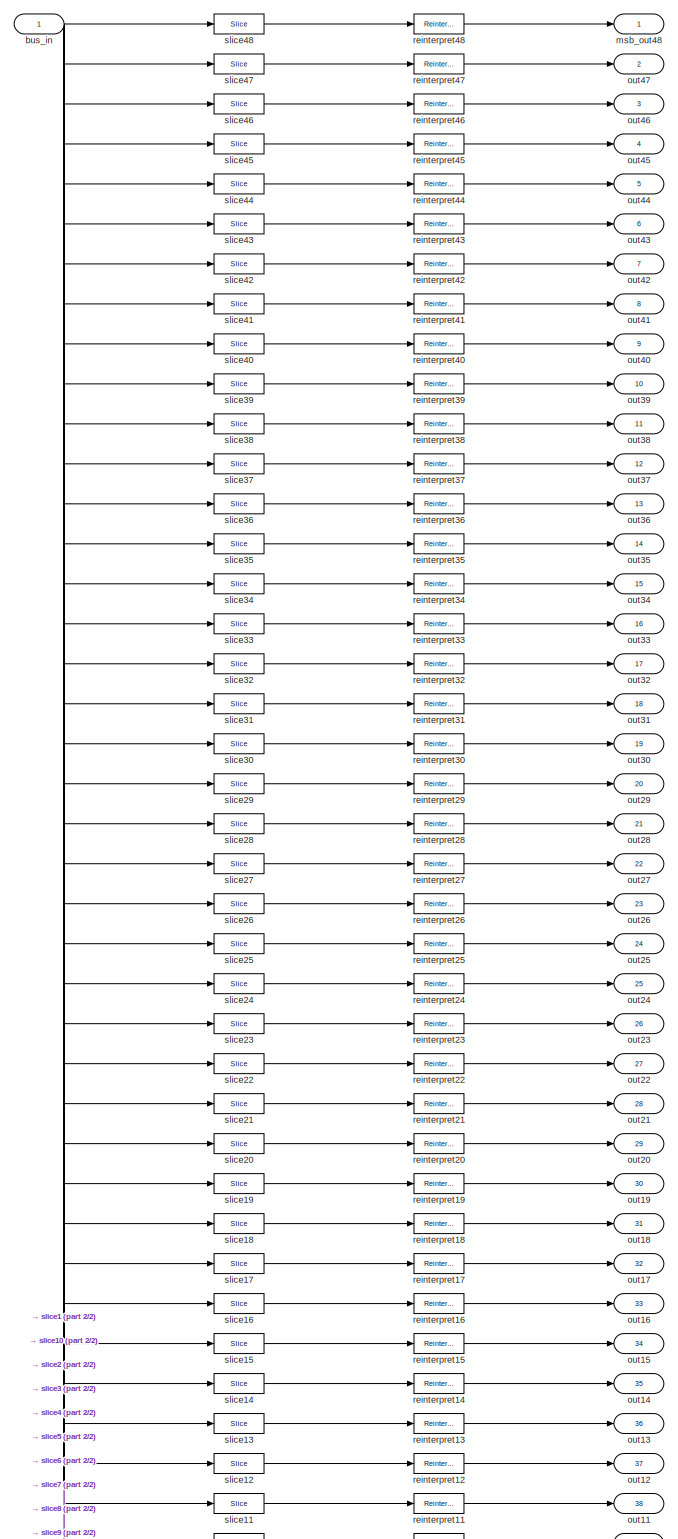
[diagram: pfb_fir_generic/pfb_fir_taps/bus_mult/a_debus - part 1/2, most of the canvas]
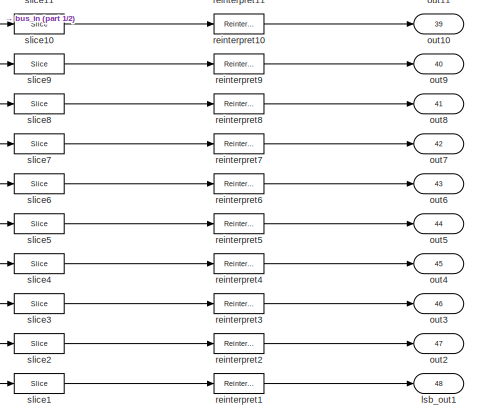
[diagram: pfb_fir_generic/pfb_fir_taps/bus_mult/a_debus - part 2/2, bottom center region]
BLOCK [SubSystem] pfb_fir_generic/pfb_fir_taps/bus_mult/a_debus
  AncestorBlock = casper_library_flow_control/bus_expand
  AttributesFormatString = 48 outputs: f8.7,f8.7,f8.7,f8.7,f8.7,f8.7,f8.7,f8.7,f8.7,f8.7,f8.7,f8.7,f8.7,f8.7,f8.7,f8.7,f8.7,f8.7,f8.7,f8.7,f8.7,f8.7,f8.7,f8.7,f8.7,f8.7,f8.7,f8.7,f8.7,f8.7,f8.7,f8.7,f8.7,f8.7,f8.7,f8.7,f8.7,f8.7,f8.7,f8.7,f8.7,f8.7,f8.7,f8.7,f8.7,f8.7,f8.7,f8.7,
  Ports = [1, 48]
  RequestExecContextInheritance = off
  UserDataPersistent = on
BLOCK [Inport] pfb_fir_generic/pfb_fir_taps/bus_mult/a_debus/bus_in
BLOCK [Outport] pfb_fir_generic/pfb_fir_taps/bus_mult/a_debus/lsb_out1
  Port = 48
  VectorParamsAs1DForOutWhenUnconnected = off
BLOCK [Outport] pfb_fir_generic/pfb_fir_taps/bus_mult/a_debus/msb_out48
BLOCK [Outport] pfb_fir_generic/pfb_fir_taps/bus_mult/a_debus/out10
  Port = 39
BLOCK [Outport] pfb_fir_generic/pfb_fir_taps/bus_mult/a_debus/out11
  Port = 38
BLOCK [Outport] pfb_fir_generic/pfb_fir_taps/bus_mult/a_debus/out12
  Port = 37
BLOCK [Outport] pfb_fir_generic/pfb_fir_taps/bus_mult/a_debus/out13
  Port = 36
BLOCK [Outport] pfb_fir_generic/pfb_fir_taps/bus_mult/a_debus/out14
  Port = 35
BLOCK [Outport] pfb_fir_generic/pfb_fir_taps/bus_mult/a_debus/out15
  Port = 34
BLOCK [Outport] pfb_fir_generic/pfb_fir_taps/bus_mult/a_debus/out16
  Port = 33
BLOCK [Outport] pfb_fir_generic/pfb_fir_taps/bus_mult/a_debus/out17
  Port = 32
BLOCK [Outport] pfb_fir_generic/pfb_fir_taps/bus_mult/a_debus/out18
  Port = 31
BLOCK [Outport] pfb_fir_generic/pfb_fir_taps/bus_mult/a_debus/out19
  Port = 30
BLOCK [Outport] pfb_fir_generic/pfb_fir_taps/bus_mult/a_debus/out2
  Port = 47
BLOCK [Outport] pfb_fir_generic/pfb_fir_taps/bus_mult/a_debus/out20
  Port = 29
BLOCK [Outport] pfb_fir_generic/pfb_fir_taps/bus_mult/a_debus/out21
  Port = 28
BLOCK [Outport] pfb_fir_generic/pfb_fir_taps/bus_mult/a_debus/out22
  Port = 27
BLOCK [Outport] pfb_fir_generic/pfb_fir_taps/bus_mult/a_debus/out23
  Port = 26
BLOCK [Outport] pfb_fir_generic/pfb_fir_taps/bus_mult/a_debus/out24
  Port = 25
BLOCK [Outport] pfb_fir_generic/pfb_fir_taps/bus_mult/a_debus/out25
  Port = 24
BLOCK [Outport] pfb_fir_generic/pfb_fir_taps/bus_mult/a_debus/out26
  Port = 23
BLOCK [Outport] pfb_fir_generic/pfb_fir_taps/bus_mult/a_debus/out27
  Port = 22
BLOCK [Outport] pfb_fir_generic/pfb_fir_taps/bus_mult/a_debus/out28
  Port = 21
BLOCK [Outport] pfb_fir_generic/pfb_fir_taps/bus_mult/a_debus/out29
  Port = 20
BLOCK [Outport] pfb_fir_generic/pfb_fir_taps/bus_mult/a_debus/out3
  Port = 46
BLOCK [Outport] pfb_fir_generic/pfb_fir_taps/bus_mult/a_debus/out30
  Port = 19
BLOCK [Outport] pfb_fir_generic/pfb_fir_taps/bus_mult/a_debus/out31
  Port = 18
BLOCK [Outport] pfb_fir_generic/pfb_fir_taps/bus_mult/a_debus/out32
  Port = 17
BLOCK [Outport] pfb_fir_generic/pfb_fir_taps/bus_mult/a_debus/out33
  Port = 16
BLOCK [Outport] pfb_fir_generic/pfb_fir_taps/bus_mult/a_debus/out34
  Port = 15
BLOCK [Outport] pfb_fir_generic/pfb_fir_taps/bus_mult/a_debus/out35
  Port = 14
BLOCK [Outport] pfb_fir_generic/pfb_fir_taps/bus_mult/a_debus/out36
  Port = 13
BLOCK [Outport] pfb_fir_generic/pfb_fir_taps/bus_mult/a_debus/out37
  Port = 12
BLOCK [Outport] pfb_fir_generic/pfb_fir_taps/bus_mult/a_debus/out38
  Port = 11
BLOCK [Outport] pfb_fir_generic/pfb_fir_taps/bus_mult/a_debus/out39
  Port = 10
BLOCK [Outport] pfb_fir_generic/pfb_fir_taps/bus_mult/a_debus/out4
  Port = 45
BLOCK [Outport] pfb_fir_generic/pfb_fir_taps/bus_mult/a_debus/out40
  Port = 9
BLOCK [Outport] pfb_fir_generic/pfb_fir_taps/bus_mult/a_debus/out41
  Port = 8
BLOCK [Outport] pfb_fir_generic/pfb_fir_taps/bus_mult/a_debus/out42
  Port = 7
BLOCK [Outport] pfb_fir_generic/pfb_fir_taps/bus_mult/a_debus/out43
  Port = 6
BLOCK [Outport] pfb_fir_generic/pfb_fir_taps/bus_mult/a_debus/out44
  Port = 5
BLOCK [Outport] pfb_fir_generic/pfb_fir_taps/bus_mult/a_debus/out45
  Port = 4
BLOCK [Outport] pfb_fir_generic/pfb_fir_taps/bus_mult/a_debus/out46
  Port = 3
BLOCK [Outport] pfb_fir_generic/pfb_fir_taps/bus_mult/a_debus/out47
  Port = 2
BLOCK [Outport] pfb_fir_generic/pfb_fir_taps/bus_mult/a_debus/out5
  Port = 44
BLOCK [Outport] pfb_fir_generic/pfb_fir_taps/bus_mult/a_debus/out6
  Port = 43
BLOCK [Outport] pfb_fir_generic/pfb_fir_taps/bus_mult/a_debus/out7
  Port = 42
BLOCK [Outport] pfb_fir_generic/pfb_fir_taps/bus_mult/a_debus/out8
  Port = 41
BLOCK [Outport] pfb_fir_generic/pfb_fir_taps/bus_mult/a_debus/out9
  Port = 40
BLOCK [Reference] pfb_fir_generic/pfb_fir_taps/bus_mult/a_debus/reinterpret1  REF=xbsIndex_r4/Reinterpret
  Ports = [1, 1]
  SourceBlock = xbsIndex_r4/Reinterpret
  SourceType = Xilinx Type Reinterpreter Block
BLOCK [Reference] pfb_fir_generic/pfb_fir_taps/bus_mult/a_debus/reinterpret10  REF=xbsIndex_r4/Reinterpret
  Ports = [1, 1]
  SourceBlock = xbsIndex_r4/Reinterpret
  SourceType = Xilinx Type Reinterpreter Block
BLOCK [Reference] pfb_fir_generic/pfb_fir_taps/bus_mult/a_debus/reinterpret11  REF=xbsIndex_r4/Reinterpret
  Ports = [1, 1]
  SourceBlock = xbsIndex_r4/Reinterpret
  SourceType = Xilinx Type Reinterpreter Block
BLOCK [Reference] pfb_fir_generic/pfb_fir_taps/bus_mult/a_debus/reinterpret12  REF=xbsIndex_r4/Reinterpret
  Ports = [1, 1]
  SourceBlock = xbsIndex_r4/Reinterpret
  SourceType = Xilinx Type Reinterpreter Block
BLOCK [Reference] pfb_fir_generic/pfb_fir_taps/bus_mult/a_debus/reinterpret13  REF=xbsIndex_r4/Reinterpret
  Ports = [1, 1]
  SourceBlock = xbsIndex_r4/Reinterpret
  SourceType = Xilinx Type Reinterpreter Block
BLOCK [Reference] pfb_fir_generic/pfb_fir_taps/bus_mult/a_debus/reinterpret14  REF=xbsIndex_r4/Reinterpret
  Ports = [1, 1]
  SourceBlock = xbsIndex_r4/Reinterpret
  SourceType = Xilinx Type Reinterpreter Block
BLOCK [Reference] pfb_fir_generic/pfb_fir_taps/bus_mult/a_debus/reinterpret15  REF=xbsIndex_r4/Reinterpret
  Ports = [1, 1]
  SourceBlock = xbsIndex_r4/Reinterpret
  SourceType = Xilinx Type Reinterpreter Block
BLOCK [Reference] pfb_fir_generic/pfb_fir_taps/bus_mult/a_debus/reinterpret16  REF=xbsIndex_r4/Reinterpret
  Ports = [1, 1]
  SourceBlock = xbsIndex_r4/Reinterpret
  SourceType = Xilinx Type Reinterpreter Block
BLOCK [Reference] pfb_fir_generic/pfb_fir_taps/bus_mult/a_debus/reinterpret17  REF=xbsIndex_r4/Reinterpret
  Ports = [1, 1]
  SourceBlock = xbsIndex_r4/Reinterpret
  SourceType = Xilinx Type Reinterpreter Block
BLOCK [Reference] pfb_fir_generic/pfb_fir_taps/bus_mult/a_debus/reinterpret18  REF=xbsIndex_r4/Reinterpret
  Ports = [1, 1]
  SourceBlock = xbsIndex_r4/Reinterpret
  SourceType = Xilinx Type Reinterpreter Block
BLOCK [Reference] pfb_fir_generic/pfb_fir_taps/bus_mult/a_debus/reinterpret19  REF=xbsIndex_r4/Reinterpret
  Ports = [1, 1]
  SourceBlock = xbsIndex_r4/Reinterpret
  SourceType = Xilinx Type Reinterpreter Block
BLOCK [Reference] pfb_fir_generic/pfb_fir_taps/bus_mult/a_debus/reinterpret2  REF=xbsIndex_r4/Reinterpret
  Ports = [1, 1]
  SourceBlock = xbsIndex_r4/Reinterpret
  SourceType = Xilinx Type Reinterpreter Block
BLOCK [Reference] pfb_fir_generic/pfb_fir_taps/bus_mult/a_debus/reinterpret20  REF=xbsIndex_r4/Reinterpret
  Ports = [1, 1]
  SourceBlock = xbsIndex_r4/Reinterpret
  SourceType = Xilinx Type Reinterpreter Block
BLOCK [Reference] pfb_fir_generic/pfb_fir_taps/bus_mult/a_debus/reinterpret21  REF=xbsIndex_r4/Reinterpret
  Ports = [1, 1]
  SourceBlock = xbsIndex_r4/Reinterpret
  SourceType = Xilinx Type Reinterpreter Block
BLOCK [Reference] pfb_fir_generic/pfb_fir_taps/bus_mult/a_debus/reinterpret22  REF=xbsIndex_r4/Reinterpret
  Ports = [1, 1]
  SourceBlock = xbsIndex_r4/Reinterpret
  SourceType = Xilinx Type Reinterpreter Block
BLOCK [Reference] pfb_fir_generic/pfb_fir_taps/bus_mult/a_debus/reinterpret23  REF=xbsIndex_r4/Reinterpret
  Ports = [1, 1]
  SourceBlock = xbsIndex_r4/Reinterpret
  SourceType = Xilinx Type Reinterpreter Block
BLOCK [Reference] pfb_fir_generic/pfb_fir_taps/bus_mult/a_debus/reinterpret24  REF=xbsIndex_r4/Reinterpret
  Ports = [1, 1]
  SourceBlock = xbsIndex_r4/Reinterpret
  SourceType = Xilinx Type Reinterpreter Block
BLOCK [Reference] pfb_fir_generic/pfb_fir_taps/bus_mult/a_debus/reinterpret25  REF=xbsIndex_r4/Reinterpret
  Ports = [1, 1]
  SourceBlock = xbsIndex_r4/Reinterpret
  SourceType = Xilinx Type Reinterpreter Block
BLOCK [Reference] pfb_fir_generic/pfb_fir_taps/bus_mult/a_debus/reinterpret26  REF=xbsIndex_r4/Reinterpret
  Ports = [1, 1]
  SourceBlock = xbsIndex_r4/Reinterpret
  SourceType = Xilinx Type Reinterpreter Block
BLOCK [Reference] pfb_fir_generic/pfb_fir_taps/bus_mult/a_debus/reinterpret27  REF=xbsIndex_r4/Reinterpret
  Ports = [1, 1]
  SourceBlock = xbsIndex_r4/Reinterpret
  SourceType = Xilinx Type Reinterpreter Block
BLOCK [Reference] pfb_fir_generic/pfb_fir_taps/bus_mult/a_debus/reinterpret28  REF=xbsIndex_r4/Reinterpret
  Ports = [1, 1]
  SourceBlock = xbsIndex_r4/Reinterpret
  SourceType = Xilinx Type Reinterpreter Block
BLOCK [Reference] pfb_fir_generic/pfb_fir_taps/bus_mult/a_debus/reinterpret29  REF=xbsIndex_r4/Reinterpret
  Ports = [1, 1]
  SourceBlock = xbsIndex_r4/Reinterpret
  SourceType = Xilinx Type Reinterpreter Block
BLOCK [Reference] pfb_fir_generic/pfb_fir_taps/bus_mult/a_debus/reinterpret3  REF=xbsIndex_r4/Reinterpret
  Ports = [1, 1]
  SourceBlock = xbsIndex_r4/Reinterpret
  SourceType = Xilinx Type Reinterpreter Block
BLOCK [Reference] pfb_fir_generic/pfb_fir_taps/bus_mult/a_debus/reinterpret30  REF=xbsIndex_r4/Reinterpret
  Ports = [1, 1]
  SourceBlock = xbsIndex_r4/Reinterpret
  SourceType = Xilinx Type Reinterpreter Block
BLOCK [Reference] pfb_fir_generic/pfb_fir_taps/bus_mult/a_debus/reinterpret31  REF=xbsIndex_r4/Reinterpret
  Ports = [1, 1]
  SourceBlock = xbsIndex_r4/Reinterpret
  SourceType = Xilinx Type Reinterpreter Block
BLOCK [Reference] pfb_fir_generic/pfb_fir_taps/bus_mult/a_debus/reinterpret32  REF=xbsIndex_r4/Reinterpret
  Ports = [1, 1]
  SourceBlock = xbsIndex_r4/Reinterpret
  SourceType = Xilinx Type Reinterpreter Block
BLOCK [Reference] pfb_fir_generic/pfb_fir_taps/bus_mult/a_debus/reinterpret33  REF=xbsIndex_r4/Reinterpret
  Ports = [1, 1]
  SourceBlock = xbsIndex_r4/Reinterpret
  SourceType = Xilinx Type Reinterpreter Block
BLOCK [Reference] pfb_fir_generic/pfb_fir_taps/bus_mult/a_debus/reinterpret34  REF=xbsIndex_r4/Reinterpret
  Ports = [1, 1]
  SourceBlock = xbsIndex_r4/Reinterpret
  SourceType = Xilinx Type Reinterpreter Block
BLOCK [Reference] pfb_fir_generic/pfb_fir_taps/bus_mult/a_debus/reinterpret35  REF=xbsIndex_r4/Reinterpret
  Ports = [1, 1]
  SourceBlock = xbsIndex_r4/Reinterpret
  SourceType = Xilinx Type Reinterpreter Block
BLOCK [Reference] pfb_fir_generic/pfb_fir_taps/bus_mult/a_debus/reinterpret36  REF=xbsIndex_r4/Reinterpret
  Ports = [1, 1]
  SourceBlock = xbsIndex_r4/Reinterpret
  SourceType = Xilinx Type Reinterpreter Block
BLOCK [Reference] pfb_fir_generic/pfb_fir_taps/bus_mult/a_debus/reinterpret37  REF=xbsIndex_r4/Reinterpret
  Ports = [1, 1]
  SourceBlock = xbsIndex_r4/Reinterpret
  SourceType = Xilinx Type Reinterpreter Block
BLOCK [Reference] pfb_fir_generic/pfb_fir_taps/bus_mult/a_debus/reinterpret38  REF=xbsIndex_r4/Reinterpret
  Ports = [1, 1]
  SourceBlock = xbsIndex_r4/Reinterpret
  SourceType = Xilinx Type Reinterpreter Block
BLOCK [Reference] pfb_fir_generic/pfb_fir_taps/bus_mult/a_debus/reinterpret39  REF=xbsIndex_r4/Reinterpret
  Ports = [1, 1]
  SourceBlock = xbsIndex_r4/Reinterpret
  SourceType = Xilinx Type Reinterpreter Block
BLOCK [Reference] pfb_fir_generic/pfb_fir_taps/bus_mult/a_debus/reinterpret4  REF=xbsIndex_r4/Reinterpret
  Ports = [1, 1]
  SourceBlock = xbsIndex_r4/Reinterpret
  SourceType = Xilinx Type Reinterpreter Block
BLOCK [Reference] pfb_fir_generic/pfb_fir_taps/bus_mult/a_debus/reinterpret40  REF=xbsIndex_r4/Reinterpret
  Ports = [1, 1]
  SourceBlock = xbsIndex_r4/Reinterpret
  SourceType = Xilinx Type Reinterpreter Block
BLOCK [Reference] pfb_fir_generic/pfb_fir_taps/bus_mult/a_debus/reinterpret41  REF=xbsIndex_r4/Reinterpret
  Ports = [1, 1]
  SourceBlock = xbsIndex_r4/Reinterpret
  SourceType = Xilinx Type Reinterpreter Block
BLOCK [Reference] pfb_fir_generic/pfb_fir_taps/bus_mult/a_debus/reinterpret42  REF=xbsIndex_r4/Reinterpret
  Ports = [1, 1]
  SourceBlock = xbsIndex_r4/Reinterpret
  SourceType = Xilinx Type Reinterpreter Block
BLOCK [Reference] pfb_fir_generic/pfb_fir_taps/bus_mult/a_debus/reinterpret43  REF=xbsIndex_r4/Reinterpret
  Ports = [1, 1]
  SourceBlock = xbsIndex_r4/Reinterpret
  SourceType = Xilinx Type Reinterpreter Block
BLOCK [Reference] pfb_fir_generic/pfb_fir_taps/bus_mult/a_debus/reinterpret44  REF=xbsIndex_r4/Reinterpret
  Ports = [1, 1]
  SourceBlock = xbsIndex_r4/Reinterpret
  SourceType = Xilinx Type Reinterpreter Block
BLOCK [Reference] pfb_fir_generic/pfb_fir_taps/bus_mult/a_debus/reinterpret45  REF=xbsIndex_r4/Reinterpret
  Ports = [1, 1]
  SourceBlock = xbsIndex_r4/Reinterpret
  SourceType = Xilinx Type Reinterpreter Block
BLOCK [Reference] pfb_fir_generic/pfb_fir_taps/bus_mult/a_debus/reinterpret46  REF=xbsIndex_r4/Reinterpret
  Ports = [1, 1]
  SourceBlock = xbsIndex_r4/Reinterpret
  SourceType = Xilinx Type Reinterpreter Block
BLOCK [Reference] pfb_fir_generic/pfb_fir_taps/bus_mult/a_debus/reinterpret47  REF=xbsIndex_r4/Reinterpret
  Ports = [1, 1]
  SourceBlock = xbsIndex_r4/Reinterpret
  SourceType = Xilinx Type Reinterpreter Block
BLOCK [Reference] pfb_fir_generic/pfb_fir_taps/bus_mult/a_debus/reinterpret48  REF=xbsIndex_r4/Reinterpret
  Ports = [1, 1]
  SourceBlock = xbsIndex_r4/Reinterpret
  SourceType = Xilinx Type Reinterpreter Block
BLOCK [Reference] pfb_fir_generic/pfb_fir_taps/bus_mult/a_debus/reinterpret5  REF=xbsIndex_r4/Reinterpret
  Ports = [1, 1]
  SourceBlock = xbsIndex_r4/Reinterpret
  SourceType = Xilinx Type Reinterpreter Block
BLOCK [Reference] pfb_fir_generic/pfb_fir_taps/bus_mult/a_debus/reinterpret6  REF=xbsIndex_r4/Reinterpret
  Ports = [1, 1]
  SourceBlock = xbsIndex_r4/Reinterpret
  SourceType = Xilinx Type Reinterpreter Block
BLOCK [Reference] pfb_fir_generic/pfb_fir_taps/bus_mult/a_debus/reinterpret7  REF=xbsIndex_r4/Reinterpret
  Ports = [1, 1]
  SourceBlock = xbsIndex_r4/Reinterpret
  SourceType = Xilinx Type Reinterpreter Block
BLOCK [Reference] pfb_fir_generic/pfb_fir_taps/bus_mult/a_debus/reinterpret8  REF=xbsIndex_r4/Reinterpret
  Ports = [1, 1]
  SourceBlock = xbsIndex_r4/Reinterpret
  SourceType = Xilinx Type Reinterpreter Block
BLOCK [Reference] pfb_fir_generic/pfb_fir_taps/bus_mult/a_debus/reinterpret9  REF=xbsIndex_r4/Reinterpret
  Ports = [1, 1]
  SourceBlock = xbsIndex_r4/Reinterpret
  SourceType = Xilinx Type Reinterpreter Block
BLOCK [Reference] pfb_fir_generic/pfb_fir_taps/bus_mult/a_debus/slice1  REF=xbsIndex_r4/Slice
  Ports = [1, 1]
  SourceBlock = xbsIndex_r4/Slice
  SourceType = Xilinx Bit Slice Extractor Block
BLOCK [Reference] pfb_fir_generic/pfb_fir_taps/bus_mult/a_debus/slice10  REF=xbsIndex_r4/Slice
  Ports = [1, 1]
  SourceBlock = xbsIndex_r4/Slice
  SourceType = Xilinx Bit Slice Extractor Block
BLOCK [Reference] pfb_fir_generic/pfb_fir_taps/bus_mult/a_debus/slice11  REF=xbsIndex_r4/Slice
  Ports = [1, 1]
  SourceBlock = xbsIndex_r4/Slice
  SourceType = Xilinx Bit Slice Extractor Block
BLOCK [Reference] pfb_fir_generic/pfb_fir_taps/bus_mult/a_debus/slice12  REF=xbsIndex_r4/Slice
  Ports = [1, 1]
  SourceBlock = xbsIndex_r4/Slice
  SourceType = Xilinx Bit Slice Extractor Block
BLOCK [Reference] pfb_fir_generic/pfb_fir_taps/bus_mult/a_debus/slice13  REF=xbsIndex_r4/Slice
  Ports = [1, 1]
  SourceBlock = xbsIndex_r4/Slice
  SourceType = Xilinx Bit Slice Extractor Block
BLOCK [Reference] pfb_fir_generic/pfb_fir_taps/bus_mult/a_debus/slice14  REF=xbsIndex_r4/Slice
  Ports = [1, 1]
  SourceBlock = xbsIndex_r4/Slice
  SourceType = Xilinx Bit Slice Extractor Block
BLOCK [Reference] pfb_fir_generic/pfb_fir_taps/bus_mult/a_debus/slice15  REF=xbsIndex_r4/Slice
  Ports = [1, 1]
  SourceBlock = xbsIndex_r4/Slice
  SourceType = Xilinx Bit Slice Extractor Block
BLOCK [Reference] pfb_fir_generic/pfb_fir_taps/bus_mult/a_debus/slice16  REF=xbsIndex_r4/Slice
  Ports = [1, 1]
  SourceBlock = xbsIndex_r4/Slice
  SourceType = Xilinx Bit Slice Extractor Block
BLOCK [Reference] pfb_fir_generic/pfb_fir_taps/bus_mult/a_debus/slice17  REF=xbsIndex_r4/Slice
  Ports = [1, 1]
  SourceBlock = xbsIndex_r4/Slice
  SourceType = Xilinx Bit Slice Extractor Block
BLOCK [Reference] pfb_fir_generic/pfb_fir_taps/bus_mult/a_debus/slice18  REF=xbsIndex_r4/Slice
  Ports = [1, 1]
  SourceBlock = xbsIndex_r4/Slice
  SourceType = Xilinx Bit Slice Extractor Block
BLOCK [Reference] pfb_fir_generic/pfb_fir_taps/bus_mult/a_debus/slice19  REF=xbsIndex_r4/Slice
  Ports = [1, 1]
  SourceBlock = xbsIndex_r4/Slice
  SourceType = Xilinx Bit Slice Extractor Block
BLOCK [Reference] pfb_fir_generic/pfb_fir_taps/bus_mult/a_debus/slice2  REF=xbsIndex_r4/Slice
  Ports = [1, 1]
  SourceBlock = xbsIndex_r4/Slice
  SourceType = Xilinx Bit Slice Extractor Block
BLOCK [Reference] pfb_fir_generic/pfb_fir_taps/bus_mult/a_debus/slice20  REF=xbsIndex_r4/Slice
  Ports = [1, 1]
  SourceBlock = xbsIndex_r4/Slice
  SourceType = Xilinx Bit Slice Extractor Block
BLOCK [Reference] pfb_fir_generic/pfb_fir_taps/bus_mult/a_debus/slice21  REF=xbsIndex_r4/Slice
  Ports = [1, 1]
  SourceBlock = xbsIndex_r4/Slice
  SourceType = Xilinx Bit Slice Extractor Block
BLOCK [Reference] pfb_fir_generic/pfb_fir_taps/bus_mult/a_debus/slice22  REF=xbsIndex_r4/Slice
  Ports = [1, 1]
  SourceBlock = xbsIndex_r4/Slice
  SourceType = Xilinx Bit Slice Extractor Block
BLOCK [Reference] pfb_fir_generic/pfb_fir_taps/bus_mult/a_debus/slice23  REF=xbsIndex_r4/Slice
  Ports = [1, 1]
  SourceBlock = xbsIndex_r4/Slice
  SourceType = Xilinx Bit Slice Extractor Block
BLOCK [Reference] pfb_fir_generic/pfb_fir_taps/bus_mult/a_debus/slice24  REF=xbsIndex_r4/Slice
  Ports = [1, 1]
  SourceBlock = xbsIndex_r4/Slice
  SourceType = Xilinx Bit Slice Extractor Block
BLOCK [Reference] pfb_fir_generic/pfb_fir_taps/bus_mult/a_debus/slice25  REF=xbsIndex_r4/Slice
  Ports = [1, 1]
  SourceBlock = xbsIndex_r4/Slice
  SourceType = Xilinx Bit Slice Extractor Block
BLOCK [Reference] pfb_fir_generic/pfb_fir_taps/bus_mult/a_debus/slice26  REF=xbsIndex_r4/Slice
  Ports = [1, 1]
  SourceBlock = xbsIndex_r4/Slice
  SourceType = Xilinx Bit Slice Extractor Block
BLOCK [Reference] pfb_fir_generic/pfb_fir_taps/bus_mult/a_debus/slice27  REF=xbsIndex_r4/Slice
  Ports = [1, 1]
  SourceBlock = xbsIndex_r4/Slice
  SourceType = Xilinx Bit Slice Extractor Block
BLOCK [Reference] pfb_fir_generic/pfb_fir_taps/bus_mult/a_debus/slice28  REF=xbsIndex_r4/Slice
  Ports = [1, 1]
  SourceBlock = xbsIndex_r4/Slice
  SourceType = Xilinx Bit Slice Extractor Block
BLOCK [Reference] pfb_fir_generic/pfb_fir_taps/bus_mult/a_debus/slice29  REF=xbsIndex_r4/Slice
  Ports = [1, 1]
  SourceBlock = xbsIndex_r4/Slice
  SourceType = Xilinx Bit Slice Extractor Block
BLOCK [Reference] pfb_fir_generic/pfb_fir_taps/bus_mult/a_debus/slice3  REF=xbsIndex_r4/Slice
  Ports = [1, 1]
  SourceBlock = xbsIndex_r4/Slice
  SourceType = Xilinx Bit Slice Extractor Block
BLOCK [Reference] pfb_fir_generic/pfb_fir_taps/bus_mult/a_debus/slice30  REF=xbsIndex_r4/Slice
  Ports = [1, 1]
  SourceBlock = xbsIndex_r4/Slice
  SourceType = Xilinx Bit Slice Extractor Block
BLOCK [Reference] pfb_fir_generic/pfb_fir_taps/bus_mult/a_debus/slice31  REF=xbsIndex_r4/Slice
  Ports = [1, 1]
  SourceBlock = xbsIndex_r4/Slice
  SourceType = Xilinx Bit Slice Extractor Block
BLOCK [Reference] pfb_fir_generic/pfb_fir_taps/bus_mult/a_debus/slice32  REF=xbsIndex_r4/Slice
  Ports = [1, 1]
  SourceBlock = xbsIndex_r4/Slice
  SourceType = Xilinx Bit Slice Extractor Block
BLOCK [Reference] pfb_fir_generic/pfb_fir_taps/bus_mult/a_debus/slice33  REF=xbsIndex_r4/Slice
  Ports = [1, 1]
  SourceBlock = xbsIndex_r4/Slice
  SourceType = Xilinx Bit Slice Extractor Block
BLOCK [Reference] pfb_fir_generic/pfb_fir_taps/bus_mult/a_debus/slice34  REF=xbsIndex_r4/Slice
  Ports = [1, 1]
  SourceBlock = xbsIndex_r4/Slice
  SourceType = Xilinx Bit Slice Extractor Block
BLOCK [Reference] pfb_fir_generic/pfb_fir_taps/bus_mult/a_debus/slice35  REF=xbsIndex_r4/Slice
  Ports = [1, 1]
  SourceBlock = xbsIndex_r4/Slice
  SourceType = Xilinx Bit Slice Extractor Block
BLOCK [Reference] pfb_fir_generic/pfb_fir_taps/bus_mult/a_debus/slice36  REF=xbsIndex_r4/Slice
  Ports = [1, 1]
  SourceBlock = xbsIndex_r4/Slice
  SourceType = Xilinx Bit Slice Extractor Block
BLOCK [Reference] pfb_fir_generic/pfb_fir_taps/bus_mult/a_debus/slice37  REF=xbsIndex_r4/Slice
  Ports = [1, 1]
  SourceBlock = xbsIndex_r4/Slice
  SourceType = Xilinx Bit Slice Extractor Block
BLOCK [Reference] pfb_fir_generic/pfb_fir_taps/bus_mult/a_debus/slice38  REF=xbsIndex_r4/Slice
  Ports = [1, 1]
  SourceBlock = xbsIndex_r4/Slice
  SourceType = Xilinx Bit Slice Extractor Block
BLOCK [Reference] pfb_fir_generic/pfb_fir_taps/bus_mult/a_debus/slice39  REF=xbsIndex_r4/Slice
  Ports = [1, 1]
  SourceBlock = xbsIndex_r4/Slice
  SourceType = Xilinx Bit Slice Extractor Block
BLOCK [Reference] pfb_fir_generic/pfb_fir_taps/bus_mult/a_debus/slice4  REF=xbsIndex_r4/Slice
  Ports = [1, 1]
  SourceBlock = xbsIndex_r4/Slice
  SourceType = Xilinx Bit Slice Extractor Block
BLOCK [Reference] pfb_fir_generic/pfb_fir_taps/bus_mult/a_debus/slice40  REF=xbsIndex_r4/Slice
  Ports = [1, 1]
  SourceBlock = xbsIndex_r4/Slice
  SourceType = Xilinx Bit Slice Extractor Block
BLOCK [Reference] pfb_fir_generic/pfb_fir_taps/bus_mult/a_debus/slice41  REF=xbsIndex_r4/Slice
  Ports = [1, 1]
  SourceBlock = xbsIndex_r4/Slice
  SourceType = Xilinx Bit Slice Extractor Block
BLOCK [Reference] pfb_fir_generic/pfb_fir_taps/bus_mult/a_debus/slice42  REF=xbsIndex_r4/Slice
  Ports = [1, 1]
  SourceBlock = xbsIndex_r4/Slice
  SourceType = Xilinx Bit Slice Extractor Block
BLOCK [Reference] pfb_fir_generic/pfb_fir_taps/bus_mult/a_debus/slice43  REF=xbsIndex_r4/Slice
  Ports = [1, 1]
  SourceBlock = xbsIndex_r4/Slice
  SourceType = Xilinx Bit Slice Extractor Block
BLOCK [Reference] pfb_fir_generic/pfb_fir_taps/bus_mult/a_debus/slice44  REF=xbsIndex_r4/Slice
  Ports = [1, 1]
  SourceBlock = xbsIndex_r4/Slice
  SourceType = Xilinx Bit Slice Extractor Block
BLOCK [Reference] pfb_fir_generic/pfb_fir_taps/bus_mult/a_debus/slice45  REF=xbsIndex_r4/Slice
  Ports = [1, 1]
  SourceBlock = xbsIndex_r4/Slice
  SourceType = Xilinx Bit Slice Extractor Block
BLOCK [Reference] pfb_fir_generic/pfb_fir_taps/bus_mult/a_debus/slice46  REF=xbsIndex_r4/Slice
  Ports = [1, 1]
  SourceBlock = xbsIndex_r4/Slice
  SourceType = Xilinx Bit Slice Extractor Block
BLOCK [Reference] pfb_fir_generic/pfb_fir_taps/bus_mult/a_debus/slice47  REF=xbsIndex_r4/Slice
  Ports = [1, 1]
  SourceBlock = xbsIndex_r4/Slice
  SourceType = Xilinx Bit Slice Extractor Block
BLOCK [Reference] pfb_fir_generic/pfb_fir_taps/bus_mult/a_debus/slice48  REF=xbsIndex_r4/Slice
  Ports = [1, 1]
  SourceBlock = xbsIndex_r4/Slice
  SourceType = Xilinx Bit Slice Extractor Block
BLOCK [Reference] pfb_fir_generic/pfb_fir_taps/bus_mult/a_debus/slice5  REF=xbsIndex_r4/Slice
  Ports = [1, 1]
  SourceBlock = xbsIndex_r4/Slice
  SourceType = Xilinx Bit Slice Extractor Block
BLOCK [Reference] pfb_fir_generic/pfb_fir_taps/bus_mult/a_debus/slice6  REF=xbsIndex_r4/Slice
  Ports = [1, 1]
  SourceBlock = xbsIndex_r4/Slice
  SourceType = Xilinx Bit Slice Extractor Block
BLOCK [Reference] pfb_fir_generic/pfb_fir_taps/bus_mult/a_debus/slice7  REF=xbsIndex_r4/Slice
  Ports = [1, 1]
  SourceBlock = xbsIndex_r4/Slice
  SourceType = Xilinx Bit Slice Extractor Block
BLOCK [Reference] pfb_fir_generic/pfb_fir_taps/bus_mult/a_debus/slice8  REF=xbsIndex_r4/Slice
  Ports = [1, 1]
  SourceBlock = xbsIndex_r4/Slice
  SourceType = Xilinx Bit Slice Extractor Block
BLOCK [Reference] pfb_fir_generic/pfb_fir_taps/bus_mult/a_debus/slice9  REF=xbsIndex_r4/Slice
  Ports = [1, 1]
  SourceBlock = xbsIndex_r4/Slice
  SourceType = Xilinx Bit Slice Extractor Block
BLOCK [Inport] pfb_fir_generic/pfb_fir_taps/bus_mult/b
  Port = 2
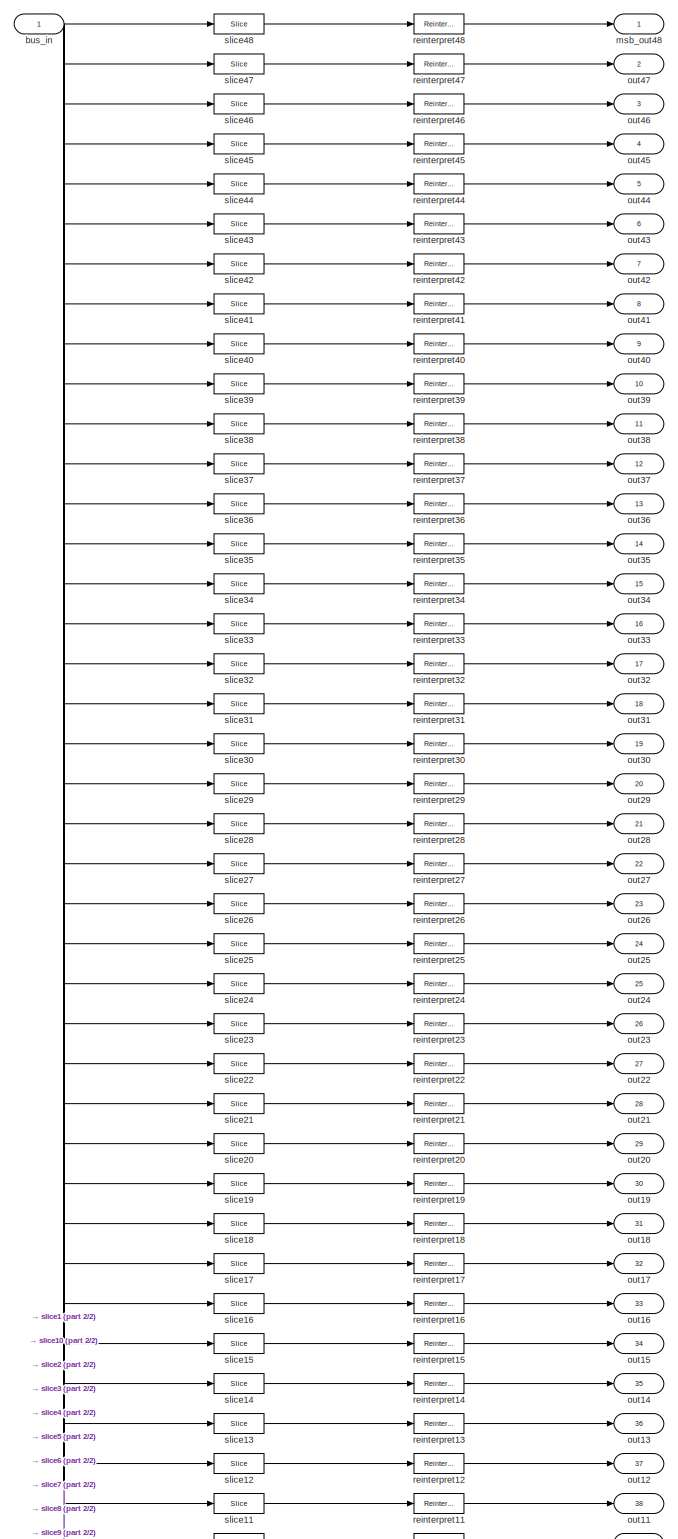
[diagram: pfb_fir_generic/pfb_fir_taps/bus_mult/b_debus - part 1/2, most of the canvas]
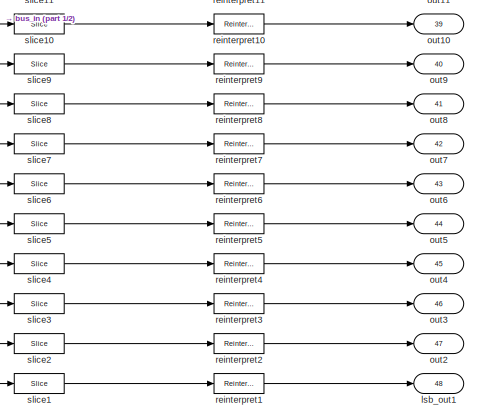
[diagram: pfb_fir_generic/pfb_fir_taps/bus_mult/b_debus - part 2/2, bottom center region]
BLOCK [SubSystem] pfb_fir_generic/pfb_fir_taps/bus_mult/b_debus
  AncestorBlock = casper_library_flow_control/bus_expand
  AttributesFormatString = 48 outputs: f18.17,f18.17,f18.17,f18.17,f18.17,f18.17,f18.17,f18.17,f18.17,f18.17,f18.17,f18.17,f18.17,f18.17,f18.17,f18.17,f18.17,f18.17,f18.17,f18.17,f18.17,f18.17,f18.17,f18.17,f18.17,f18.17,f18.17,f18.17,f18.17,f18.17,f18.17,f18.17,f18.17,f18.17,f18.17,f18.17,f18.17,f18.17,f18.17,f18.17,f18.17,f18.17,f18.17,f18.17,f18.17,f18.17,f18.17,f18.17,
  Ports = [1, 48]
  RequestExecContextInheritance = off
  UserDataPersistent = on
BLOCK [Inport] pfb_fir_generic/pfb_fir_taps/bus_mult/b_debus/bus_in
BLOCK [Outport] pfb_fir_generic/pfb_fir_taps/bus_mult/b_debus/lsb_out1
  Port = 48
  VectorParamsAs1DForOutWhenUnconnected = off
BLOCK [Outport] pfb_fir_generic/pfb_fir_taps/bus_mult/b_debus/msb_out48
BLOCK [Outport] pfb_fir_generic/pfb_fir_taps/bus_mult/b_debus/out10
  Port = 39
BLOCK [Outport] pfb_fir_generic/pfb_fir_taps/bus_mult/b_debus/out11
  Port = 38
BLOCK [Outport] pfb_fir_generic/pfb_fir_taps/bus_mult/b_debus/out12
  Port = 37
BLOCK [Outport] pfb_fir_generic/pfb_fir_taps/bus_mult/b_debus/out13
  Port = 36
BLOCK [Outport] pfb_fir_generic/pfb_fir_taps/bus_mult/b_debus/out14
  Port = 35
BLOCK [Outport] pfb_fir_generic/pfb_fir_taps/bus_mult/b_debus/out15
  Port = 34
BLOCK [Outport] pfb_fir_generic/pfb_fir_taps/bus_mult/b_debus/out16
  Port = 33
BLOCK [Outport] pfb_fir_generic/pfb_fir_taps/bus_mult/b_debus/out17
  Port = 32
BLOCK [Outport] pfb_fir_generic/pfb_fir_taps/bus_mult/b_debus/out18
  Port = 31
BLOCK [Outport] pfb_fir_generic/pfb_fir_taps/bus_mult/b_debus/out19
  Port = 30
BLOCK [Outport] pfb_fir_generic/pfb_fir_taps/bus_mult/b_debus/out2
  Port = 47
BLOCK [Outport] pfb_fir_generic/pfb_fir_taps/bus_mult/b_debus/out20
  Port = 29
BLOCK [Outport] pfb_fir_generic/pfb_fir_taps/bus_mult/b_debus/out21
  Port = 28
BLOCK [Outport] pfb_fir_generic/pfb_fir_taps/bus_mult/b_debus/out22
  Port = 27
BLOCK [Outport] pfb_fir_generic/pfb_fir_taps/bus_mult/b_debus/out23
  Port = 26
BLOCK [Outport] pfb_fir_generic/pfb_fir_taps/bus_mult/b_debus/out24
  Port = 25
BLOCK [Outport] pfb_fir_generic/pfb_fir_taps/bus_mult/b_debus/out25
  Port = 24
BLOCK [Outport] pfb_fir_generic/pfb_fir_taps/bus_mult/b_debus/out26
  Port = 23
BLOCK [Outport] pfb_fir_generic/pfb_fir_taps/bus_mult/b_debus/out27
  Port = 22
BLOCK [Outport] pfb_fir_generic/pfb_fir_taps/bus_mult/b_debus/out28
  Port = 21
BLOCK [Outport] pfb_fir_generic/pfb_fir_taps/bus_mult/b_debus/out29
  Port = 20
BLOCK [Outport] pfb_fir_generic/pfb_fir_taps/bus_mult/b_debus/out3
  Port = 46
BLOCK [Outport] pfb_fir_generic/pfb_fir_taps/bus_mult/b_debus/out30
  Port = 19
BLOCK [Outport] pfb_fir_generic/pfb_fir_taps/bus_mult/b_debus/out31
  Port = 18
BLOCK [Outport] pfb_fir_generic/pfb_fir_taps/bus_mult/b_debus/out32
  Port = 17
BLOCK [Outport] pfb_fir_generic/pfb_fir_taps/bus_mult/b_debus/out33
  Port = 16
BLOCK [Outport] pfb_fir_generic/pfb_fir_taps/bus_mult/b_debus/out34
  Port = 15
BLOCK [Outport] pfb_fir_generic/pfb_fir_taps/bus_mult/b_debus/out35
  Port = 14
BLOCK [Outport] pfb_fir_generic/pfb_fir_taps/bus_mult/b_debus/out36
  Port = 13
BLOCK [Outport] pfb_fir_generic/pfb_fir_taps/bus_mult/b_debus/out37
  Port = 12
BLOCK [Outport] pfb_fir_generic/pfb_fir_taps/bus_mult/b_debus/out38
  Port = 11
BLOCK [Outport] pfb_fir_generic/pfb_fir_taps/bus_mult/b_debus/out39
  Port = 10
BLOCK [Outport] pfb_fir_generic/pfb_fir_taps/bus_mult/b_debus/out4
  Port = 45
BLOCK [Outport] pfb_fir_generic/pfb_fir_taps/bus_mult/b_debus/out40
  Port = 9
BLOCK [Outport] pfb_fir_generic/pfb_fir_taps/bus_mult/b_debus/out41
  Port = 8
BLOCK [Outport] pfb_fir_generic/pfb_fir_taps/bus_mult/b_debus/out42
  Port = 7
BLOCK [Outport] pfb_fir_generic/pfb_fir_taps/bus_mult/b_debus/out43
  Port = 6
BLOCK [Outport] pfb_fir_generic/pfb_fir_taps/bus_mult/b_debus/out44
  Port = 5
BLOCK [Outport] pfb_fir_generic/pfb_fir_taps/bus_mult/b_debus/out45
  Port = 4
BLOCK [Outport] pfb_fir_generic/pfb_fir_taps/bus_mult/b_debus/out46
  Port = 3
BLOCK [Outport] pfb_fir_generic/pfb_fir_taps/bus_mult/b_debus/out47
  Port = 2
BLOCK [Outport] pfb_fir_generic/pfb_fir_taps/bus_mult/b_debus/out5
  Port = 44
BLOCK [Outport] pfb_fir_generic/pfb_fir_taps/bus_mult/b_debus/out6
  Port = 43
BLOCK [Outport] pfb_fir_generic/pfb_fir_taps/bus_mult/b_debus/out7
  Port = 42
BLOCK [Outport] pfb_fir_generic/pfb_fir_taps/bus_mult/b_debus/out8
  Port = 41
BLOCK [Outport] pfb_fir_generic/pfb_fir_taps/bus_mult/b_debus/out9
  Port = 40
BLOCK [Reference] pfb_fir_generic/pfb_fir_taps/bus_mult/b_debus/reinterpret1  REF=xbsIndex_r4/Reinterpret
  Ports = [1, 1]
  SourceBlock = xbsIndex_r4/Reinterpret
  SourceType = Xilinx Type Reinterpreter Block
BLOCK [Reference] pfb_fir_generic/pfb_fir_taps/bus_mult/b_debus/reinterpret10  REF=xbsIndex_r4/Reinterpret
  Ports = [1, 1]
  SourceBlock = xbsIndex_r4/Reinterpret
  SourceType = Xilinx Type Reinterpreter Block
BLOCK [Reference] pfb_fir_generic/pfb_fir_taps/bus_mult/b_debus/reinterpret11  REF=xbsIndex_r4/Reinterpret
  Ports = [1, 1]
  SourceBlock = xbsIndex_r4/Reinterpret
  SourceType = Xilinx Type Reinterpreter Block
BLOCK [Reference] pfb_fir_generic/pfb_fir_taps/bus_mult/b_debus/reinterpret12  REF=xbsIndex_r4/Reinterpret
  Ports = [1, 1]
  SourceBlock = xbsIndex_r4/Reinterpret
  SourceType = Xilinx Type Reinterpreter Block
BLOCK [Reference] pfb_fir_generic/pfb_fir_taps/bus_mult/b_debus/reinterpret13  REF=xbsIndex_r4/Reinterpret
  Ports = [1, 1]
  SourceBlock = xbsIndex_r4/Reinterpret
  SourceType = Xilinx Type Reinterpreter Block
BLOCK [Reference] pfb_fir_generic/pfb_fir_taps/bus_mult/b_debus/reinterpret14  REF=xbsIndex_r4/Reinterpret
  Ports = [1, 1]
  SourceBlock = xbsIndex_r4/Reinterpret
  SourceType = Xilinx Type Reinterpreter Block
BLOCK [Reference] pfb_fir_generic/pfb_fir_taps/bus_mult/b_debus/reinterpret15  REF=xbsIndex_r4/Reinterpret
  Ports = [1, 1]
  SourceBlock = xbsIndex_r4/Reinterpret
  SourceType = Xilinx Type Reinterpreter Block
BLOCK [Reference] pfb_fir_generic/pfb_fir_taps/bus_mult/b_debus/reinterpret16  REF=xbsIndex_r4/Reinterpret
  Ports = [1, 1]
  SourceBlock = xbsIndex_r4/Reinterpret
  SourceType = Xilinx Type Reinterpreter Block
BLOCK [Reference] pfb_fir_generic/pfb_fir_taps/bus_mult/b_debus/reinterpret17  REF=xbsIndex_r4/Reinterpret
  Ports = [1, 1]
  SourceBlock = xbsIndex_r4/Reinterpret
  SourceType = Xilinx Type Reinterpreter Block
BLOCK [Reference] pfb_fir_generic/pfb_fir_taps/bus_mult/b_debus/reinterpret18  REF=xbsIndex_r4/Reinterpret
  Ports = [1, 1]
  SourceBlock = xbsIndex_r4/Reinterpret
  SourceType = Xilinx Type Reinterpreter Block
BLOCK [Reference] pfb_fir_generic/pfb_fir_taps/bus_mult/b_debus/reinterpret19  REF=xbsIndex_r4/Reinterpret
  Ports = [1, 1]
  SourceBlock = xbsIndex_r4/Reinterpret
  SourceType = Xilinx Type Reinterpreter Block
BLOCK [Reference] pfb_fir_generic/pfb_fir_taps/bus_mult/b_debus/reinterpret2  REF=xbsIndex_r4/Reinterpret
  Ports = [1, 1]
  SourceBlock = xbsIndex_r4/Reinterpret
  SourceType = Xilinx Type Reinterpreter Block
BLOCK [Reference] pfb_fir_generic/pfb_fir_taps/bus_mult/b_debus/reinterpret20  REF=xbsIndex_r4/Reinterpret
  Ports = [1, 1]
  SourceBlock = xbsIndex_r4/Reinterpret
  SourceType = Xilinx Type Reinterpreter Block
BLOCK [Reference] pfb_fir_generic/pfb_fir_taps/bus_mult/b_debus/reinterpret21  REF=xbsIndex_r4/Reinterpret
  Ports = [1, 1]
  SourceBlock = xbsIndex_r4/Reinterpret
  SourceType = Xilinx Type Reinterpreter Block
BLOCK [Reference] pfb_fir_generic/pfb_fir_taps/bus_mult/b_debus/reinterpret22  REF=xbsIndex_r4/Reinterpret
  Ports = [1, 1]
  SourceBlock = xbsIndex_r4/Reinterpret
  SourceType = Xilinx Type Reinterpreter Block
BLOCK [Reference] pfb_fir_generic/pfb_fir_taps/bus_mult/b_debus/reinterpret23  REF=xbsIndex_r4/Reinterpret
  Ports = [1, 1]
  SourceBlock = xbsIndex_r4/Reinterpret
  SourceType = Xilinx Type Reinterpreter Block
BLOCK [Reference] pfb_fir_generic/pfb_fir_taps/bus_mult/b_debus/reinterpret24  REF=xbsIndex_r4/Reinterpret
  Ports = [1, 1]
  SourceBlock = xbsIndex_r4/Reinterpret
  SourceType = Xilinx Type Reinterpreter Block
BLOCK [Reference] pfb_fir_generic/pfb_fir_taps/bus_mult/b_debus/reinterpret25  REF=xbsIndex_r4/Reinterpret
  Ports = [1, 1]
  SourceBlock = xbsIndex_r4/Reinterpret
  SourceType = Xilinx Type Reinterpreter Block
BLOCK [Reference] pfb_fir_generic/pfb_fir_taps/bus_mult/b_debus/reinterpret26  REF=xbsIndex_r4/Reinterpret
  Ports = [1, 1]
  SourceBlock = xbsIndex_r4/Reinterpret
  SourceType = Xilinx Type Reinterpreter Block
BLOCK [Reference] pfb_fir_generic/pfb_fir_taps/bus_mult/b_debus/reinterpret27  REF=xbsIndex_r4/Reinterpret
  Ports = [1, 1]
  SourceBlock = xbsIndex_r4/Reinterpret
  SourceType = Xilinx Type Reinterpreter Block
BLOCK [Reference] pfb_fir_generic/pfb_fir_taps/bus_mult/b_debus/reinterpret28  REF=xbsIndex_r4/Reinterpret
  Ports = [1, 1]
  SourceBlock = xbsIndex_r4/Reinterpret
  SourceType = Xilinx Type Reinterpreter Block
BLOCK [Reference] pfb_fir_generic/pfb_fir_taps/bus_mult/b_debus/reinterpret29  REF=xbsIndex_r4/Reinterpret
  Ports = [1, 1]
  SourceBlock = xbsIndex_r4/Reinterpret
  SourceType = Xilinx Type Reinterpreter Block
BLOCK [Reference] pfb_fir_generic/pfb_fir_taps/bus_mult/b_debus/reinterpret3  REF=xbsIndex_r4/Reinterpret
  Ports = [1, 1]
  SourceBlock = xbsIndex_r4/Reinterpret
  SourceType = Xilinx Type Reinterpreter Block
BLOCK [Reference] pfb_fir_generic/pfb_fir_taps/bus_mult/b_debus/reinterpret30  REF=xbsIndex_r4/Reinterpret
  Ports = [1, 1]
  SourceBlock = xbsIndex_r4/Reinterpret
  SourceType = Xilinx Type Reinterpreter Block
BLOCK [Reference] pfb_fir_generic/pfb_fir_taps/bus_mult/b_debus/reinterpret31  REF=xbsIndex_r4/Reinterpret
  Ports = [1, 1]
  SourceBlock = xbsIndex_r4/Reinterpret
  SourceType = Xilinx Type Reinterpreter Block
BLOCK [Reference] pfb_fir_generic/pfb_fir_taps/bus_mult/b_debus/reinterpret32  REF=xbsIndex_r4/Reinterpret
  Ports = [1, 1]
  SourceBlock = xbsIndex_r4/Reinterpret
  SourceType = Xilinx Type Reinterpreter Block
BLOCK [Reference] pfb_fir_generic/pfb_fir_taps/bus_mult/b_debus/reinterpret33  REF=xbsIndex_r4/Reinterpret
  Ports = [1, 1]
  SourceBlock = xbsIndex_r4/Reinterpret
  SourceType = Xilinx Type Reinterpreter Block
BLOCK [Reference] pfb_fir_generic/pfb_fir_taps/bus_mult/b_debus/reinterpret34  REF=xbsIndex_r4/Reinterpret
  Ports = [1, 1]
  SourceBlock = xbsIndex_r4/Reinterpret
  SourceType = Xilinx Type Reinterpreter Block
BLOCK [Reference] pfb_fir_generic/pfb_fir_taps/bus_mult/b_debus/reinterpret35  REF=xbsIndex_r4/Reinterpret
  Ports = [1, 1]
  SourceBlock = xbsIndex_r4/Reinterpret
  SourceType = Xilinx Type Reinterpreter Block
BLOCK [Reference] pfb_fir_generic/pfb_fir_taps/bus_mult/b_debus/reinterpret36  REF=xbsIndex_r4/Reinterpret
  Ports = [1, 1]
  SourceBlock = xbsIndex_r4/Reinterpret
  SourceType = Xilinx Type Reinterpreter Block
BLOCK [Reference] pfb_fir_generic/pfb_fir_taps/bus_mult/b_debus/reinterpret37  REF=xbsIndex_r4/Reinterpret
  Ports = [1, 1]
  SourceBlock = xbsIndex_r4/Reinterpret
  SourceType = Xilinx Type Reinterpreter Block
BLOCK [Reference] pfb_fir_generic/pfb_fir_taps/bus_mult/b_debus/reinterpret38  REF=xbsIndex_r4/Reinterpret
  Ports = [1, 1]
  SourceBlock = xbsIndex_r4/Reinterpret
  SourceType = Xilinx Type Reinterpreter Block
BLOCK [Reference] pfb_fir_generic/pfb_fir_taps/bus_mult/b_debus/reinterpret39  REF=xbsIndex_r4/Reinterpret
  Ports = [1, 1]
  SourceBlock = xbsIndex_r4/Reinterpret
  SourceType = Xilinx Type Reinterpreter Block
BLOCK [Reference] pfb_fir_generic/pfb_fir_taps/bus_mult/b_debus/reinterpret4  REF=xbsIndex_r4/Reinterpret
  Ports = [1, 1]
  SourceBlock = xbsIndex_r4/Reinterpret
  SourceType = Xilinx Type Reinterpreter Block
BLOCK [Reference] pfb_fir_generic/pfb_fir_taps/bus_mult/b_debus/reinterpret40  REF=xbsIndex_r4/Reinterpret
  Ports = [1, 1]
  SourceBlock = xbsIndex_r4/Reinterpret
  SourceType = Xilinx Type Reinterpreter Block
BLOCK [Reference] pfb_fir_generic/pfb_fir_taps/bus_mult/b_debus/reinterpret41  REF=xbsIndex_r4/Reinterpret
  Ports = [1, 1]
  SourceBlock = xbsIndex_r4/Reinterpret
  SourceType = Xilinx Type Reinterpreter Block
BLOCK [Reference] pfb_fir_generic/pfb_fir_taps/bus_mult/b_debus/reinterpret42  REF=xbsIndex_r4/Reinterpret
  Ports = [1, 1]
  SourceBlock = xbsIndex_r4/Reinterpret
  SourceType = Xilinx Type Reinterpreter Block
BLOCK [Reference] pfb_fir_generic/pfb_fir_taps/bus_mult/b_debus/reinterpret43  REF=xbsIndex_r4/Reinterpret
  Ports = [1, 1]
  SourceBlock = xbsIndex_r4/Reinterpret
  SourceType = Xilinx Type Reinterpreter Block
BLOCK [Reference] pfb_fir_generic/pfb_fir_taps/bus_mult/b_debus/reinterpret44  REF=xbsIndex_r4/Reinterpret
  Ports = [1, 1]
  SourceBlock = xbsIndex_r4/Reinterpret
  SourceType = Xilinx Type Reinterpreter Block
BLOCK [Reference] pfb_fir_generic/pfb_fir_taps/bus_mult/b_debus/reinterpret45  REF=xbsIndex_r4/Reinterpret
  Ports = [1, 1]
  SourceBlock = xbsIndex_r4/Reinterpret
  SourceType = Xilinx Type Reinterpreter Block
BLOCK [Reference] pfb_fir_generic/pfb_fir_taps/bus_mult/b_debus/reinterpret46  REF=xbsIndex_r4/Reinterpret
  Ports = [1, 1]
  SourceBlock = xbsIndex_r4/Reinterpret
  SourceType = Xilinx Type Reinterpreter Block
BLOCK [Reference] pfb_fir_generic/pfb_fir_taps/bus_mult/b_debus/reinterpret47  REF=xbsIndex_r4/Reinterpret
  Ports = [1, 1]
  SourceBlock = xbsIndex_r4/Reinterpret
  SourceType = Xilinx Type Reinterpreter Block
BLOCK [Reference] pfb_fir_generic/pfb_fir_taps/bus_mult/b_debus/reinterpret48  REF=xbsIndex_r4/Reinterpret
  Ports = [1, 1]
  SourceBlock = xbsIndex_r4/Reinterpret
  SourceType = Xilinx Type Reinterpreter Block
BLOCK [Reference] pfb_fir_generic/pfb_fir_taps/bus_mult/b_debus/reinterpret5  REF=xbsIndex_r4/Reinterpret
  Ports = [1, 1]
  SourceBlock = xbsIndex_r4/Reinterpret
  SourceType = Xilinx Type Reinterpreter Block
BLOCK [Reference] pfb_fir_generic/pfb_fir_taps/bus_mult/b_debus/reinterpret6  REF=xbsIndex_r4/Reinterpret
  Ports = [1, 1]
  SourceBlock = xbsIndex_r4/Reinterpret
  SourceType = Xilinx Type Reinterpreter Block
BLOCK [Reference] pfb_fir_generic/pfb_fir_taps/bus_mult/b_debus/reinterpret7  REF=xbsIndex_r4/Reinterpret
  Ports = [1, 1]
  SourceBlock = xbsIndex_r4/Reinterpret
  SourceType = Xilinx Type Reinterpreter Block
BLOCK [Reference] pfb_fir_generic/pfb_fir_taps/bus_mult/b_debus/reinterpret8  REF=xbsIndex_r4/Reinterpret
  Ports = [1, 1]
  SourceBlock = xbsIndex_r4/Reinterpret
  SourceType = Xilinx Type Reinterpreter Block
BLOCK [Reference] pfb_fir_generic/pfb_fir_taps/bus_mult/b_debus/reinterpret9  REF=xbsIndex_r4/Reinterpret
  Ports = [1, 1]
  SourceBlock = xbsIndex_r4/Reinterpret
  SourceType = Xilinx Type Reinterpreter Block
BLOCK [Reference] pfb_fir_generic/pfb_fir_taps/bus_mult/b_debus/slice1  REF=xbsIndex_r4/Slice
  Ports = [1, 1]
  SourceBlock = xbsIndex_r4/Slice
  SourceType = Xilinx Bit Slice Extractor Block
BLOCK [Reference] pfb_fir_generic/pfb_fir_taps/bus_mult/b_debus/slice10  REF=xbsIndex_r4/Slice
  Ports = [1, 1]
  SourceBlock = xbsIndex_r4/Slice
  SourceType = Xilinx Bit Slice Extractor Block
BLOCK [Reference] pfb_fir_generic/pfb_fir_taps/bus_mult/b_debus/slice11  REF=xbsIndex_r4/Slice
  Ports = [1, 1]
  SourceBlock = xbsIndex_r4/Slice
  SourceType = Xilinx Bit Slice Extractor Block
BLOCK [Reference] pfb_fir_generic/pfb_fir_taps/bus_mult/b_debus/slice12  REF=xbsIndex_r4/Slice
  Ports = [1, 1]
  SourceBlock = xbsIndex_r4/Slice
  SourceType = Xilinx Bit Slice Extractor Block
BLOCK [Reference] pfb_fir_generic/pfb_fir_taps/bus_mult/b_debus/slice13  REF=xbsIndex_r4/Slice
  Ports = [1, 1]
  SourceBlock = xbsIndex_r4/Slice
  SourceType = Xilinx Bit Slice Extractor Block
BLOCK [Reference] pfb_fir_generic/pfb_fir_taps/bus_mult/b_debus/slice14  REF=xbsIndex_r4/Slice
  Ports = [1, 1]
  SourceBlock = xbsIndex_r4/Slice
  SourceType = Xilinx Bit Slice Extractor Block
BLOCK [Reference] pfb_fir_generic/pfb_fir_taps/bus_mult/b_debus/slice15  REF=xbsIndex_r4/Slice
  Ports = [1, 1]
  SourceBlock = xbsIndex_r4/Slice
  SourceType = Xilinx Bit Slice Extractor Block
BLOCK [Reference] pfb_fir_generic/pfb_fir_taps/bus_mult/b_debus/slice16  REF=xbsIndex_r4/Slice
  Ports = [1, 1]
  SourceBlock = xbsIndex_r4/Slice
  SourceType = Xilinx Bit Slice Extractor Block
BLOCK [Reference] pfb_fir_generic/pfb_fir_taps/bus_mult/b_debus/slice17  REF=xbsIndex_r4/Slice
  Ports = [1, 1]
  SourceBlock = xbsIndex_r4/Slice
  SourceType = Xilinx Bit Slice Extractor Block
BLOCK [Reference] pfb_fir_generic/pfb_fir_taps/bus_mult/b_debus/slice18  REF=xbsIndex_r4/Slice
  Ports = [1, 1]
  SourceBlock = xbsIndex_r4/Slice
  SourceType = Xilinx Bit Slice Extractor Block
BLOCK [Reference] pfb_fir_generic/pfb_fir_taps/bus_mult/b_debus/slice19  REF=xbsIndex_r4/Slice
  Ports = [1, 1]
  SourceBlock = xbsIndex_r4/Slice
  SourceType = Xilinx Bit Slice Extractor Block
BLOCK [Reference] pfb_fir_generic/pfb_fir_taps/bus_mult/b_debus/slice2  REF=xbsIndex_r4/Slice
  Ports = [1, 1]
  SourceBlock = xbsIndex_r4/Slice
  SourceType = Xilinx Bit Slice Extractor Block
BLOCK [Reference] pfb_fir_generic/pfb_fir_taps/bus_mult/b_debus/slice20  REF=xbsIndex_r4/Slice
  Ports = [1, 1]
  SourceBlock = xbsIndex_r4/Slice
  SourceType = Xilinx Bit Slice Extractor Block
BLOCK [Reference] pfb_fir_generic/pfb_fir_taps/bus_mult/b_debus/slice21  REF=xbsIndex_r4/Slice
  Ports = [1, 1]
  SourceBlock = xbsIndex_r4/Slice
  SourceType = Xilinx Bit Slice Extractor Block
BLOCK [Reference] pfb_fir_generic/pfb_fir_taps/bus_mult/b_debus/slice22  REF=xbsIndex_r4/Slice
  Ports = [1, 1]
  SourceBlock = xbsIndex_r4/Slice
  SourceType = Xilinx Bit Slice Extractor Block
BLOCK [Reference] pfb_fir_generic/pfb_fir_taps/bus_mult/b_debus/slice23  REF=xbsIndex_r4/Slice
  Ports = [1, 1]
  SourceBlock = xbsIndex_r4/Slice
  SourceType = Xilinx Bit Slice Extractor Block
BLOCK [Reference] pfb_fir_generic/pfb_fir_taps/bus_mult/b_debus/slice24  REF=xbsIndex_r4/Slice
  Ports = [1, 1]
  SourceBlock = xbsIndex_r4/Slice
  SourceType = Xilinx Bit Slice Extractor Block
BLOCK [Reference] pfb_fir_generic/pfb_fir_taps/bus_mult/b_debus/slice25  REF=xbsIndex_r4/Slice
  Ports = [1, 1]
  SourceBlock = xbsIndex_r4/Slice
  SourceType = Xilinx Bit Slice Extractor Block
BLOCK [Reference] pfb_fir_generic/pfb_fir_taps/bus_mult/b_debus/slice26  REF=xbsIndex_r4/Slice
  Ports = [1, 1]
  SourceBlock = xbsIndex_r4/Slice
  SourceType = Xilinx Bit Slice Extractor Block
BLOCK [Reference] pfb_fir_generic/pfb_fir_taps/bus_mult/b_debus/slice27  REF=xbsIndex_r4/Slice
  Ports = [1, 1]
  SourceBlock = xbsIndex_r4/Slice
  SourceType = Xilinx Bit Slice Extractor Block
BLOCK [Reference] pfb_fir_generic/pfb_fir_taps/bus_mult/b_debus/slice28  REF=xbsIndex_r4/Slice
  Ports = [1, 1]
  SourceBlock = xbsIndex_r4/Slice
  SourceType = Xilinx Bit Slice Extractor Block
BLOCK [Reference] pfb_fir_generic/pfb_fir_taps/bus_mult/b_debus/slice29  REF=xbsIndex_r4/Slice
  Ports = [1, 1]
  SourceBlock = xbsIndex_r4/Slice
  SourceType = Xilinx Bit Slice Extractor Block
BLOCK [Reference] pfb_fir_generic/pfb_fir_taps/bus_mult/b_debus/slice3  REF=xbsIndex_r4/Slice
  Ports = [1, 1]
  SourceBlock = xbsIndex_r4/Slice
  SourceType = Xilinx Bit Slice Extractor Block
BLOCK [Reference] pfb_fir_generic/pfb_fir_taps/bus_mult/b_debus/slice30  REF=xbsIndex_r4/Slice
  Ports = [1, 1]
  SourceBlock = xbsIndex_r4/Slice
  SourceType = Xilinx Bit Slice Extractor Block
BLOCK [Reference] pfb_fir_generic/pfb_fir_taps/bus_mult/b_debus/slice31  REF=xbsIndex_r4/Slice
  Ports = [1, 1]
  SourceBlock = xbsIndex_r4/Slice
  SourceType = Xilinx Bit Slice Extractor Block
BLOCK [Reference] pfb_fir_generic/pfb_fir_taps/bus_mult/b_debus/slice32  REF=xbsIndex_r4/Slice
  Ports = [1, 1]
  SourceBlock = xbsIndex_r4/Slice
  SourceType = Xilinx Bit Slice Extractor Block
BLOCK [Reference] pfb_fir_generic/pfb_fir_taps/bus_mult/b_debus/slice33  REF=xbsIndex_r4/Slice
  Ports = [1, 1]
  SourceBlock = xbsIndex_r4/Slice
  SourceType = Xilinx Bit Slice Extractor Block
BLOCK [Reference] pfb_fir_generic/pfb_fir_taps/bus_mult/b_debus/slice34  REF=xbsIndex_r4/Slice
  Ports = [1, 1]
  SourceBlock = xbsIndex_r4/Slice
  SourceType = Xilinx Bit Slice Extractor Block
BLOCK [Reference] pfb_fir_generic/pfb_fir_taps/bus_mult/b_debus/slice35  REF=xbsIndex_r4/Slice
  Ports = [1, 1]
  SourceBlock = xbsIndex_r4/Slice
  SourceType = Xilinx Bit Slice Extractor Block
BLOCK [Reference] pfb_fir_generic/pfb_fir_taps/bus_mult/b_debus/slice36  REF=xbsIndex_r4/Slice
  Ports = [1, 1]
  SourceBlock = xbsIndex_r4/Slice
  SourceType = Xilinx Bit Slice Extractor Block
BLOCK [Reference] pfb_fir_generic/pfb_fir_taps/bus_mult/b_debus/slice37  REF=xbsIndex_r4/Slice
  Ports = [1, 1]
  SourceBlock = xbsIndex_r4/Slice
  SourceType = Xilinx Bit Slice Extractor Block
BLOCK [Reference] pfb_fir_generic/pfb_fir_taps/bus_mult/b_debus/slice38  REF=xbsIndex_r4/Slice
  Ports = [1, 1]
  SourceBlock = xbsIndex_r4/Slice
  SourceType = Xilinx Bit Slice Extractor Block
BLOCK [Reference] pfb_fir_generic/pfb_fir_taps/bus_mult/b_debus/slice39  REF=xbsIndex_r4/Slice
  Ports = [1, 1]
  SourceBlock = xbsIndex_r4/Slice
  SourceType = Xilinx Bit Slice Extractor Block
BLOCK [Reference] pfb_fir_generic/pfb_fir_taps/bus_mult/b_debus/slice4  REF=xbsIndex_r4/Slice
  Ports = [1, 1]
  SourceBlock = xbsIndex_r4/Slice
  SourceType = Xilinx Bit Slice Extractor Block
BLOCK [Reference] pfb_fir_generic/pfb_fir_taps/bus_mult/b_debus/slice40  REF=xbsIndex_r4/Slice
  Ports = [1, 1]
  SourceBlock = xbsIndex_r4/Slice
  SourceType = Xilinx Bit Slice Extractor Block
BLOCK [Reference] pfb_fir_generic/pfb_fir_taps/bus_mult/b_debus/slice41  REF=xbsIndex_r4/Slice
  Ports = [1, 1]
  SourceBlock = xbsIndex_r4/Slice
  SourceType = Xilinx Bit Slice Extractor Block
BLOCK [Reference] pfb_fir_generic/pfb_fir_taps/bus_mult/b_debus/slice42  REF=xbsIndex_r4/Slice
  Ports = [1, 1]
  SourceBlock = xbsIndex_r4/Slice
  SourceType = Xilinx Bit Slice Extractor Block
BLOCK [Reference] pfb_fir_generic/pfb_fir_taps/bus_mult/b_debus/slice43  REF=xbsIndex_r4/Slice
  Ports = [1, 1]
  SourceBlock = xbsIndex_r4/Slice
  SourceType = Xilinx Bit Slice Extractor Block
BLOCK [Reference] pfb_fir_generic/pfb_fir_taps/bus_mult/b_debus/slice44  REF=xbsIndex_r4/Slice
  Ports = [1, 1]
  SourceBlock = xbsIndex_r4/Slice
  SourceType = Xilinx Bit Slice Extractor Block
BLOCK [Reference] pfb_fir_generic/pfb_fir_taps/bus_mult/b_debus/slice45  REF=xbsIndex_r4/Slice
  Ports = [1, 1]
  SourceBlock = xbsIndex_r4/Slice
  SourceType = Xilinx Bit Slice Extractor Block
BLOCK [Reference] pfb_fir_generic/pfb_fir_taps/bus_mult/b_debus/slice46  REF=xbsIndex_r4/Slice
  Ports = [1, 1]
  SourceBlock = xbsIndex_r4/Slice
  SourceType = Xilinx Bit Slice Extractor Block
BLOCK [Reference] pfb_fir_generic/pfb_fir_taps/bus_mult/b_debus/slice47  REF=xbsIndex_r4/Slice
  Ports = [1, 1]
  SourceBlock = xbsIndex_r4/Slice
  SourceType = Xilinx Bit Slice Extractor Block
BLOCK [Reference] pfb_fir_generic/pfb_fir_taps/bus_mult/b_debus/slice48  REF=xbsIndex_r4/Slice
  Ports = [1, 1]
  SourceBlock = xbsIndex_r4/Slice
  SourceType = Xilinx Bit Slice Extractor Block
BLOCK [Reference] pfb_fir_generic/pfb_fir_taps/bus_mult/b_debus/slice5  REF=xbsIndex_r4/Slice
  Ports = [1, 1]
  SourceBlock = xbsIndex_r4/Slice
  SourceType = Xilinx Bit Slice Extractor Block
BLOCK [Reference] pfb_fir_generic/pfb_fir_taps/bus_mult/b_debus/slice6  REF=xbsIndex_r4/Slice
  Ports = [1, 1]
  SourceBlock = xbsIndex_r4/Slice
  SourceType = Xilinx Bit Slice Extractor Block
BLOCK [Reference] pfb_fir_generic/pfb_fir_taps/bus_mult/b_debus/slice7  REF=xbsIndex_r4/Slice
  Ports = [1, 1]
  SourceBlock = xbsIndex_r4/Slice
  SourceType = Xilinx Bit Slice Extractor Block
BLOCK [Reference] pfb_fir_generic/pfb_fir_taps/bus_mult/b_debus/slice8  REF=xbsIndex_r4/Slice
  Ports = [1, 1]
  SourceBlock = xbsIndex_r4/Slice
  SourceType = Xilinx Bit Slice Extractor Block
BLOCK [Reference] pfb_fir_generic/pfb_fir_taps/bus_mult/b_debus/slice9  REF=xbsIndex_r4/Slice
  Ports = [1, 1]
  SourceBlock = xbsIndex_r4/Slice
  SourceType = Xilinx Bit Slice Extractor Block
BLOCK [Reference] pfb_fir_generic/pfb_fir_taps/bus_mult/mult1  REF=xbsIndex_r4/Mult
  Ports = [2, 1]
  SourceBlock = xbsIndex_r4/Mult
  SourceType = Xilinx Multiplier Block
BLOCK [Reference] pfb_fir_generic/pfb_fir_taps/bus_mult/mult10  REF=xbsIndex_r4/Mult
  Ports = [2, 1]
  SourceBlock = xbsIndex_r4/Mult
  SourceType = Xilinx Multiplier Block
BLOCK [Reference] pfb_fir_generic/pfb_fir_taps/bus_mult/mult11  REF=xbsIndex_r4/Mult
  Ports = [2, 1]
  SourceBlock = xbsIndex_r4/Mult
  SourceType = Xilinx Multiplier Block
BLOCK [Reference] pfb_fir_generic/pfb_fir_taps/bus_mult/mult12  REF=xbsIndex_r4/Mult
  Ports = [2, 1]
  SourceBlock = xbsIndex_r4/Mult
  SourceType = Xilinx Multiplier Block
BLOCK [Reference] pfb_fir_generic/pfb_fir_taps/bus_mult/mult13  REF=xbsIndex_r4/Mult
  Ports = [2, 1]
  SourceBlock = xbsIndex_r4/Mult
  SourceType = Xilinx Multiplier Block
BLOCK [Reference] pfb_fir_generic/pfb_fir_taps/bus_mult/mult14  REF=xbsIndex_r4/Mult
  Ports = [2, 1]
  SourceBlock = xbsIndex_r4/Mult
  SourceType = Xilinx Multiplier Block
BLOCK [Reference] pfb_fir_generic/pfb_fir_taps/bus_mult/mult15  REF=xbsIndex_r4/Mult
  Ports = [2, 1]
  SourceBlock = xbsIndex_r4/Mult
  SourceType = Xilinx Multiplier Block
BLOCK [Reference] pfb_fir_generic/pfb_fir_taps/bus_mult/mult16  REF=xbsIndex_r4/Mult
  Ports = [2, 1]
  SourceBlock = xbsIndex_r4/Mult
  SourceType = Xilinx Multiplier Block
BLOCK [Reference] pfb_fir_generic/pfb_fir_taps/bus_mult/mult17  REF=xbsIndex_r4/Mult
  Ports = [2, 1]
  SourceBlock = xbsIndex_r4/Mult
  SourceType = Xilinx Multiplier Block
BLOCK [Reference] pfb_fir_generic/pfb_fir_taps/bus_mult/mult18  REF=xbsIndex_r4/Mult
  Ports = [2, 1]
  SourceBlock = xbsIndex_r4/Mult
  SourceType = Xilinx Multiplier Block
BLOCK [Reference] pfb_fir_generic/pfb_fir_taps/bus_mult/mult19  REF=xbsIndex_r4/Mult
  Ports = [2, 1]
  SourceBlock = xbsIndex_r4/Mult
  SourceType = Xilinx Multiplier Block
BLOCK [Reference] pfb_fir_generic/pfb_fir_taps/bus_mult/mult2  REF=xbsIndex_r4/Mult
  Ports = [2, 1]
  SourceBlock = xbsIndex_r4/Mult
  SourceType = Xilinx Multiplier Block
BLOCK [Reference] pfb_fir_generic/pfb_fir_taps/bus_mult/mult20  REF=xbsIndex_r4/Mult
  Ports = [2, 1]
  SourceBlock = xbsIndex_r4/Mult
  SourceType = Xilinx Multiplier Block
BLOCK [Reference] pfb_fir_generic/pfb_fir_taps/bus_mult/mult21  REF=xbsIndex_r4/Mult
  Ports = [2, 1]
  SourceBlock = xbsIndex_r4/Mult
  SourceType = Xilinx Multiplier Block
BLOCK [Reference] pfb_fir_generic/pfb_fir_taps/bus_mult/mult22  REF=xbsIndex_r4/Mult
  Ports = [2, 1]
  SourceBlock = xbsIndex_r4/Mult
  SourceType = Xilinx Multiplier Block
BLOCK [Reference] pfb_fir_generic/pfb_fir_taps/bus_mult/mult23  REF=xbsIndex_r4/Mult
  Ports = [2, 1]
  SourceBlock = xbsIndex_r4/Mult
  SourceType = Xilinx Multiplier Block
BLOCK [Reference] pfb_fir_generic/pfb_fir_taps/bus_mult/mult24  REF=xbsIndex_r4/Mult
  Ports = [2, 1]
  SourceBlock = xbsIndex_r4/Mult
  SourceType = Xilinx Multiplier Block
BLOCK [Reference] pfb_fir_generic/pfb_fir_taps/bus_mult/mult25  REF=xbsIndex_r4/Mult
  Ports = [2, 1]
  SourceBlock = xbsIndex_r4/Mult
  SourceType = Xilinx Multiplier Block
BLOCK [Reference] pfb_fir_generic/pfb_fir_taps/bus_mult/mult26  REF=xbsIndex_r4/Mult
  Ports = [2, 1]
  SourceBlock = xbsIndex_r4/Mult
  SourceType = Xilinx Multiplier Block
BLOCK [Reference] pfb_fir_generic/pfb_fir_taps/bus_mult/mult27  REF=xbsIndex_r4/Mult
  Ports = [2, 1]
  SourceBlock = xbsIndex_r4/Mult
  SourceType = Xilinx Multiplier Block
BLOCK [Reference] pfb_fir_generic/pfb_fir_taps/bus_mult/mult28  REF=xbsIndex_r4/Mult
  Ports = [2, 1]
  SourceBlock = xbsIndex_r4/Mult
  SourceType = Xilinx Multiplier Block
BLOCK [Reference] pfb_fir_generic/pfb_fir_taps/bus_mult/mult29  REF=xbsIndex_r4/Mult
  Ports = [2, 1]
  SourceBlock = xbsIndex_r4/Mult
  SourceType = Xilinx Multiplier Block
BLOCK [Reference] pfb_fir_generic/pfb_fir_taps/bus_mult/mult3  REF=xbsIndex_r4/Mult
  Ports = [2, 1]
  SourceBlock = xbsIndex_r4/Mult
  SourceType = Xilinx Multiplier Block
BLOCK [Reference] pfb_fir_generic/pfb_fir_taps/bus_mult/mult30  REF=xbsIndex_r4/Mult
  Ports = [2, 1]
  SourceBlock = xbsIndex_r4/Mult
  SourceType = Xilinx Multiplier Block
BLOCK [Reference] pfb_fir_generic/pfb_fir_taps/bus_mult/mult31  REF=xbsIndex_r4/Mult
  Ports = [2, 1]
  SourceBlock = xbsIndex_r4/Mult
  SourceType = Xilinx Multiplier Block
BLOCK [Reference] pfb_fir_generic/pfb_fir_taps/bus_mult/mult32  REF=xbsIndex_r4/Mult
  Ports = [2, 1]
  SourceBlock = xbsIndex_r4/Mult
  SourceType = Xilinx Multiplier Block
BLOCK [Reference] pfb_fir_generic/pfb_fir_taps/bus_mult/mult33  REF=xbsIndex_r4/Mult
  Ports = [2, 1]
  SourceBlock = xbsIndex_r4/Mult
  SourceType = Xilinx Multiplier Block
BLOCK [Reference] pfb_fir_generic/pfb_fir_taps/bus_mult/mult34  REF=xbsIndex_r4/Mult
  Ports = [2, 1]
  SourceBlock = xbsIndex_r4/Mult
  SourceType = Xilinx Multiplier Block
BLOCK [Reference] pfb_fir_generic/pfb_fir_taps/bus_mult/mult35  REF=xbsIndex_r4/Mult
  Ports = [2, 1]
  SourceBlock = xbsIndex_r4/Mult
  SourceType = Xilinx Multiplier Block
BLOCK [Reference] pfb_fir_generic/pfb_fir_taps/bus_mult/mult36  REF=xbsIndex_r4/Mult
  Ports = [2, 1]
  SourceBlock = xbsIndex_r4/Mult
  SourceType = Xilinx Multiplier Block
BLOCK [Reference] pfb_fir_generic/pfb_fir_taps/bus_mult/mult37  REF=xbsIndex_r4/Mult
  Ports = [2, 1]
  SourceBlock = xbsIndex_r4/Mult
  SourceType = Xilinx Multiplier Block
BLOCK [Reference] pfb_fir_generic/pfb_fir_taps/bus_mult/mult38  REF=xbsIndex_r4/Mult
  Ports = [2, 1]
  SourceBlock = xbsIndex_r4/Mult
  SourceType = Xilinx Multiplier Block
BLOCK [Reference] pfb_fir_generic/pfb_fir_taps/bus_mult/mult39  REF=xbsIndex_r4/Mult
  Ports = [2, 1]
  SourceBlock = xbsIndex_r4/Mult
  SourceType = Xilinx Multiplier Block
BLOCK [Reference] pfb_fir_generic/pfb_fir_taps/bus_mult/mult4  REF=xbsIndex_r4/Mult
  Ports = [2, 1]
  SourceBlock = xbsIndex_r4/Mult
  SourceType = Xilinx Multiplier Block
BLOCK [Reference] pfb_fir_generic/pfb_fir_taps/bus_mult/mult40  REF=xbsIndex_r4/Mult
  Ports = [2, 1]
  SourceBlock = xbsIndex_r4/Mult
  SourceType = Xilinx Multiplier Block
BLOCK [Reference] pfb_fir_generic/pfb_fir_taps/bus_mult/mult41  REF=xbsIndex_r4/Mult
  Ports = [2, 1]
  SourceBlock = xbsIndex_r4/Mult
  SourceType = Xilinx Multiplier Block
BLOCK [Reference] pfb_fir_generic/pfb_fir_taps/bus_mult/mult42  REF=xbsIndex_r4/Mult
  Ports = [2, 1]
  SourceBlock = xbsIndex_r4/Mult
  SourceType = Xilinx Multiplier Block
BLOCK [Reference] pfb_fir_generic/pfb_fir_taps/bus_mult/mult43  REF=xbsIndex_r4/Mult
  Ports = [2, 1]
  SourceBlock = xbsIndex_r4/Mult
  SourceType = Xilinx Multiplier Block
BLOCK [Reference] pfb_fir_generic/pfb_fir_taps/bus_mult/mult44  REF=xbsIndex_r4/Mult
  Ports = [2, 1]
  SourceBlock = xbsIndex_r4/Mult
  SourceType = Xilinx Multiplier Block
BLOCK [Reference] pfb_fir_generic/pfb_fir_taps/bus_mult/mult45  REF=xbsIndex_r4/Mult
  Ports = [2, 1]
  SourceBlock = xbsIndex_r4/Mult
  SourceType = Xilinx Multiplier Block
BLOCK [Reference] pfb_fir_generic/pfb_fir_taps/bus_mult/mult46  REF=xbsIndex_r4/Mult
  Ports = [2, 1]
  SourceBlock = xbsIndex_r4/Mult
  SourceType = Xilinx Multiplier Block
BLOCK [Reference] pfb_fir_generic/pfb_fir_taps/bus_mult/mult47  REF=xbsIndex_r4/Mult
  Ports = [2, 1]
  SourceBlock = xbsIndex_r4/Mult
  SourceType = Xilinx Multiplier Block
BLOCK [Reference] pfb_fir_generic/pfb_fir_taps/bus_mult/mult48  REF=xbsIndex_r4/Mult
  Ports = [2, 1]
  SourceBlock = xbsIndex_r4/Mult
  SourceType = Xilinx Multiplier Block
BLOCK [Reference] pfb_fir_generic/pfb_fir_taps/bus_mult/mult5  REF=xbsIndex_r4/Mult
  Ports = [2, 1]
  SourceBlock = xbsIndex_r4/Mult
  SourceType = Xilinx Multiplier Block
BLOCK [Reference] pfb_fir_generic/pfb_fir_taps/bus_mult/mult6  REF=xbsIndex_r4/Mult
  Ports = [2, 1]
  SourceBlock = xbsIndex_r4/Mult
  SourceType = Xilinx Multiplier Block
BLOCK [Reference] pfb_fir_generic/pfb_fir_taps/bus_mult/mult7  REF=xbsIndex_r4/Mult
  Ports = [2, 1]
  SourceBlock = xbsIndex_r4/Mult
  SourceType = Xilinx Multiplier Block
BLOCK [Reference] pfb_fir_generic/pfb_fir_taps/bus_mult/mult8  REF=xbsIndex_r4/Mult
  Ports = [2, 1]
  SourceBlock = xbsIndex_r4/Mult
  SourceType = Xilinx Multiplier Block
BLOCK [Reference] pfb_fir_generic/pfb_fir_taps/bus_mult/mult9  REF=xbsIndex_r4/Mult
  Ports = [2, 1]
  SourceBlock = xbsIndex_r4/Mult
  SourceType = Xilinx Multiplier Block
BLOCK [SubSystem] pfb_fir_generic/pfb_fir_taps/bus_mult/repa
  AncestorBlock = casper_library_bus/bus_replicate
  Ports = [1, 1]
  RequestExecContextInheritance = off
  UserDataPersistent = on
BLOCK [SubSystem] pfb_fir_generic/pfb_fir_taps/bus_mult/repa/bussify
  AncestorBlock = casper_library_flow_control/bus_create
  Ports = [1, 1]
  RequestExecContextInheritance = off
  UserDataPersistent = on
BLOCK [Outport] pfb_fir_generic/pfb_fir_taps/bus_mult/repa/bussify/bus_out
  VectorParamsAs1DForOutWhenUnconnected = off
BLOCK [Inport] pfb_fir_generic/pfb_fir_taps/bus_mult/repa/bussify/in1
BLOCK [Reference] pfb_fir_generic/pfb_fir_taps/bus_mult/repa/bussify/reinterpret1  REF=xbsIndex_r4/Reinterpret
  Ports = [1, 1]
  SourceBlock = xbsIndex_r4/Reinterpret
  SourceType = Xilinx Type Reinterpreter Block
BLOCK [Inport] pfb_fir_generic/pfb_fir_taps/bus_mult/repa/in
BLOCK [Outport] pfb_fir_generic/pfb_fir_taps/bus_mult/repa/out
BLOCK [SubSystem] pfb_fir_generic/pfb_fir_taps/bus_mult/repb
  AncestorBlock = casper_library_bus/bus_replicate
  Ports = [1, 1]
  RequestExecContextInheritance = off
  UserDataPersistent = on
BLOCK [SubSystem] pfb_fir_generic/pfb_fir_taps/bus_mult/repb/bussify
  AncestorBlock = casper_library_flow_control/bus_create
  Ports = [1, 1]
  RequestExecContextInheritance = off
  UserDataPersistent = on
BLOCK [Outport] pfb_fir_generic/pfb_fir_taps/bus_mult/repb/bussify/bus_out
  VectorParamsAs1DForOutWhenUnconnected = off
BLOCK [Inport] pfb_fir_generic/pfb_fir_taps/bus_mult/repb/bussify/in1
BLOCK [Reference] pfb_fir_generic/pfb_fir_taps/bus_mult/repb/bussify/reinterpret1  REF=xbsIndex_r4/Reinterpret
  Ports = [1, 1]
  SourceBlock = xbsIndex_r4/Reinterpret
  SourceType = Xilinx Type Reinterpreter Block
BLOCK [Inport] pfb_fir_generic/pfb_fir_taps/bus_mult/repb/in
BLOCK [Outport] pfb_fir_generic/pfb_fir_taps/bus_mult/repb/out
BLOCK [Inport] pfb_fir_generic/pfb_fir_taps/coeffs
  Port = 3
BLOCK [Reference] pfb_fir_generic/pfb_fir_taps/counter  REF=xbsIndex_r4/Counter
  Ports = [1, 1]
  SourceBlock = xbsIndex_r4/Counter
  SourceType = Xilinx Counter Block
BLOCK [Reference] pfb_fir_generic/pfb_fir_taps/daddr  REF=xbsIndex_r4/Delay
  Ports = [1, 1]
  SourceBlock = xbsIndex_r4/Delay
  SourceType = Xilinx Delay Block
BLOCK [Reference] pfb_fir_generic/pfb_fir_taps/dcoeffs  REF=xbsIndex_r4/Delay
  Ports = [1, 1]
  SourceBlock = xbsIndex_r4/Delay
  SourceType = Xilinx Delay Block
BLOCK [Reference] pfb_fir_generic/pfb_fir_taps/ddin  REF=xbsIndex_r4/Delay
  Ports = [1, 1]
  SourceBlock = xbsIndex_r4/Delay
  SourceType = Xilinx Delay Block
BLOCK [Inport] pfb_fir_generic/pfb_fir_taps/din
  Port = 2
BLOCK [Outport] pfb_fir_generic/pfb_fir_taps/dout
  Port = 2
BLOCK [Reference] pfb_fir_generic/pfb_fir_taps/dsync0  REF=xbsIndex_r4/Delay
  Ports = [1, 1]
  SourceBlock = xbsIndex_r4/Delay
  SourceType = Xilinx Delay Block
BLOCK [Reference] pfb_fir_generic/pfb_fir_taps/dsync1  REF=xbsIndex_r4/Delay
  Ports = [1, 1]
  SourceBlock = xbsIndex_r4/Delay
  SourceType = Xilinx Delay Block
BLOCK [Reference] pfb_fir_generic/pfb_fir_taps/dsync2  REF=xbsIndex_r4/Delay
  Ports = [1, 1]
  SourceBlock = xbsIndex_r4/Delay
  SourceType = Xilinx Delay Block
BLOCK [Reference] pfb_fir_generic/pfb_fir_taps/mult_din  REF=xbsIndex_r4/Concat
  Ports = [2, 1]
  SourceBlock = xbsIndex_r4/Concat
  SourceType = Xilinx Bus Concatenator Block
BLOCK [Reference] pfb_fir_generic/pfb_fir_taps/never  REF=xbsIndex_r4/Constant
  Ports = [0, 1]
  SourceBlock = xbsIndex_r4/Constant
  SourceType = Xilinx Constant Block Block
BLOCK [Inport] pfb_fir_generic/pfb_fir_taps/sync
BLOCK [Reference] pfb_fir_generic/pfb_fir_taps/sync_delay  REF=casper_library_delays/sync_delay  (lib defined in mdl_259a08a3fac5, mdl_65009615caaa, +5 more)
  Ports = [1, 1]
  SourceBlock = casper_library_delays/sync_delay
  SourceProductName = CASPER DSP Blockset
  SourceType = sync_delay
BLOCK [Outport] pfb_fir_generic/pfb_fir_taps/sync_out
BLOCK [SubSystem] pfb_fir_generic/pfb_fir_taps/tap_delays
  AncestorBlock = casper_library_bus/bus_dual_port_ram
  Ports = [6, 2]
  RequestExecContextInheritance = off
  UserDataPersistent = on
BLOCK [Outport] pfb_fir_generic/pfb_fir_taps/tap_delays/A
BLOCK [SubSystem] pfb_fir_generic/pfb_fir_taps/tap_delays/A_bussify0
  AncestorBlock = casper_library_flow_control/bus_create
  Ports = [32, 1]
  RequestExecContextInheritance = off
  UserDataPersistent = on
BLOCK [Outport] pfb_fir_generic/pfb_fir_taps/tap_delays/A_bussify0/bus_out
  VectorParamsAs1DForOutWhenUnconnected = off
BLOCK [Reference] pfb_fir_generic/pfb_fir_taps/tap_delays/A_bussify0/concatenate  REF=xbsIndex_r4/Concat
  Ports = [32, 1]
  SourceBlock = xbsIndex_r4/Concat
  SourceType = Xilinx Bus Concatenator Block
BLOCK [Inport] pfb_fir_generic/pfb_fir_taps/tap_delays/A_bussify0/in1
BLOCK [Inport] pfb_fir_generic/pfb_fir_taps/tap_delays/A_bussify0/in10
  Port = 10
BLOCK [Inport] pfb_fir_generic/pfb_fir_taps/tap_delays/A_bussify0/in11
  Port = 11
BLOCK [Inport] pfb_fir_generic/pfb_fir_taps/tap_delays/A_bussify0/in12
  Port = 12
BLOCK [Inport] pfb_fir_generic/pfb_fir_taps/tap_delays/A_bussify0/in13
  Port = 13
BLOCK [Inport] pfb_fir_generic/pfb_fir_taps/tap_delays/A_bussify0/in14
  Port = 14
BLOCK [Inport] pfb_fir_generic/pfb_fir_taps/tap_delays/A_bussify0/in15
  Port = 15
BLOCK [Inport] pfb_fir_generic/pfb_fir_taps/tap_delays/A_bussify0/in16
  Port = 16
BLOCK [Inport] pfb_fir_generic/pfb_fir_taps/tap_delays/A_bussify0/in17
  Port = 17
BLOCK [Inport] pfb_fir_generic/pfb_fir_taps/tap_delays/A_bussify0/in18
  Port = 18
BLOCK [Inport] pfb_fir_generic/pfb_fir_taps/tap_delays/A_bussify0/in19
  Port = 19
BLOCK [Inport] pfb_fir_generic/pfb_fir_taps/tap_delays/A_bussify0/in2
  Port = 2
BLOCK [Inport] pfb_fir_generic/pfb_fir_taps/tap_delays/A_bussify0/in20
  Port = 20
BLOCK [Inport] pfb_fir_generic/pfb_fir_taps/tap_delays/A_bussify0/in21
  Port = 21
BLOCK [Inport] pfb_fir_generic/pfb_fir_taps/tap_delays/A_bussify0/in22
  Port = 22
BLOCK [Inport] pfb_fir_generic/pfb_fir_taps/tap_delays/A_bussify0/in23
  Port = 23
BLOCK [Inport] pfb_fir_generic/pfb_fir_taps/tap_delays/A_bussify0/in24
  Port = 24
BLOCK [Inport] pfb_fir_generic/pfb_fir_taps/tap_delays/A_bussify0/in25
  Port = 25
BLOCK [Inport] pfb_fir_generic/pfb_fir_taps/tap_delays/A_bussify0/in26
  Port = 26
BLOCK [Inport] pfb_fir_generic/pfb_fir_taps/tap_delays/A_bussify0/in27
  Port = 27
BLOCK [Inport] pfb_fir_generic/pfb_fir_taps/tap_delays/A_bussify0/in28
  Port = 28
BLOCK [Inport] pfb_fir_generic/pfb_fir_taps/tap_delays/A_bussify0/in29
  Port = 29
BLOCK [Inport] pfb_fir_generic/pfb_fir_taps/tap_delays/A_bussify0/in3
  Port = 3
BLOCK [Inport] pfb_fir_generic/pfb_fir_taps/tap_delays/A_bussify0/in30
  Port = 30
BLOCK [Inport] pfb_fir_generic/pfb_fir_taps/tap_delays/A_bussify0/in31
  Port = 31
BLOCK [Inport] pfb_fir_generic/pfb_fir_taps/tap_delays/A_bussify0/in32
  Port = 32
BLOCK [Inport] pfb_fir_generic/pfb_fir_taps/tap_delays/A_bussify0/in4
  Port = 4
BLOCK [Inport] pfb_fir_generic/pfb_fir_taps/tap_delays/A_bussify0/in5
  Port = 5
BLOCK [Inport] pfb_fir_generic/pfb_fir_taps/tap_delays/A_bussify0/in6
  Port = 6
BLOCK [Inport] pfb_fir_generic/pfb_fir_taps/tap_delays/A_bussify0/in7
  Port = 7
BLOCK [Inport] pfb_fir_generic/pfb_fir_taps/tap_delays/A_bussify0/in8
  Port = 8
BLOCK [Inport] pfb_fir_generic/pfb_fir_taps/tap_delays/A_bussify0/in9
  Port = 9
BLOCK [Reference] pfb_fir_generic/pfb_fir_taps/tap_delays/A_bussify0/reinterpret1  REF=xbsIndex_r4/Reinterpret
  Ports = [1, 1]
  SourceBlock = xbsIndex_r4/Reinterpret
  SourceType = Xilinx Type Reinterpreter Block
BLOCK [Reference] pfb_fir_generic/pfb_fir_taps/tap_delays/A_bussify0/reinterpret10  REF=xbsIndex_r4/Reinterpret
  Ports = [1, 1]
  SourceBlock = xbsIndex_r4/Reinterpret
  SourceType = Xilinx Type Reinterpreter Block
BLOCK [Reference] pfb_fir_generic/pfb_fir_taps/tap_delays/A_bussify0/reinterpret11  REF=xbsIndex_r4/Reinterpret
  Ports = [1, 1]
  SourceBlock = xbsIndex_r4/Reinterpret
  SourceType = Xilinx Type Reinterpreter Block
BLOCK [Reference] pfb_fir_generic/pfb_fir_taps/tap_delays/A_bussify0/reinterpret12  REF=xbsIndex_r4/Reinterpret
  Ports = [1, 1]
  SourceBlock = xbsIndex_r4/Reinterpret
  SourceType = Xilinx Type Reinterpreter Block
BLOCK [Reference] pfb_fir_generic/pfb_fir_taps/tap_delays/A_bussify0/reinterpret13  REF=xbsIndex_r4/Reinterpret
  Ports = [1, 1]
  SourceBlock = xbsIndex_r4/Reinterpret
  SourceType = Xilinx Type Reinterpreter Block
BLOCK [Reference] pfb_fir_generic/pfb_fir_taps/tap_delays/A_bussify0/reinterpret14  REF=xbsIndex_r4/Reinterpret
  Ports = [1, 1]
  SourceBlock = xbsIndex_r4/Reinterpret
  SourceType = Xilinx Type Reinterpreter Block
BLOCK [Reference] pfb_fir_generic/pfb_fir_taps/tap_delays/A_bussify0/reinterpret15  REF=xbsIndex_r4/Reinterpret
  Ports = [1, 1]
  SourceBlock = xbsIndex_r4/Reinterpret
  SourceType = Xilinx Type Reinterpreter Block
BLOCK [Reference] pfb_fir_generic/pfb_fir_taps/tap_delays/A_bussify0/reinterpret16  REF=xbsIndex_r4/Reinterpret
  Ports = [1, 1]
  SourceBlock = xbsIndex_r4/Reinterpret
  SourceType = Xilinx Type Reinterpreter Block
BLOCK [Reference] pfb_fir_generic/pfb_fir_taps/tap_delays/A_bussify0/reinterpret17  REF=xbsIndex_r4/Reinterpret
  Ports = [1, 1]
  SourceBlock = xbsIndex_r4/Reinterpret
  SourceType = Xilinx Type Reinterpreter Block
BLOCK [Reference] pfb_fir_generic/pfb_fir_taps/tap_delays/A_bussify0/reinterpret18  REF=xbsIndex_r4/Reinterpret
  Ports = [1, 1]
  SourceBlock = xbsIndex_r4/Reinterpret
  SourceType = Xilinx Type Reinterpreter Block
BLOCK [Reference] pfb_fir_generic/pfb_fir_taps/tap_delays/A_bussify0/reinterpret19  REF=xbsIndex_r4/Reinterpret
  Ports = [1, 1]
  SourceBlock = xbsIndex_r4/Reinterpret
  SourceType = Xilinx Type Reinterpreter Block
BLOCK [Reference] pfb_fir_generic/pfb_fir_taps/tap_delays/A_bussify0/reinterpret2  REF=xbsIndex_r4/Reinterpret
  Ports = [1, 1]
  SourceBlock = xbsIndex_r4/Reinterpret
  SourceType = Xilinx Type Reinterpreter Block
BLOCK [Reference] pfb_fir_generic/pfb_fir_taps/tap_delays/A_bussify0/reinterpret20  REF=xbsIndex_r4/Reinterpret
  Ports = [1, 1]
  SourceBlock = xbsIndex_r4/Reinterpret
  SourceType = Xilinx Type Reinterpreter Block
BLOCK [Reference] pfb_fir_generic/pfb_fir_taps/tap_delays/A_bussify0/reinterpret21  REF=xbsIndex_r4/Reinterpret
  Ports = [1, 1]
  SourceBlock = xbsIndex_r4/Reinterpret
  SourceType = Xilinx Type Reinterpreter Block
BLOCK [Reference] pfb_fir_generic/pfb_fir_taps/tap_delays/A_bussify0/reinterpret22  REF=xbsIndex_r4/Reinterpret
  Ports = [1, 1]
  SourceBlock = xbsIndex_r4/Reinterpret
  SourceType = Xilinx Type Reinterpreter Block
BLOCK [Reference] pfb_fir_generic/pfb_fir_taps/tap_delays/A_bussify0/reinterpret23  REF=xbsIndex_r4/Reinterpret
  Ports = [1, 1]
  SourceBlock = xbsIndex_r4/Reinterpret
  SourceType = Xilinx Type Reinterpreter Block
BLOCK [Reference] pfb_fir_generic/pfb_fir_taps/tap_delays/A_bussify0/reinterpret24  REF=xbsIndex_r4/Reinterpret
  Ports = [1, 1]
  SourceBlock = xbsIndex_r4/Reinterpret
  SourceType = Xilinx Type Reinterpreter Block
BLOCK [Reference] pfb_fir_generic/pfb_fir_taps/tap_delays/A_bussify0/reinterpret25  REF=xbsIndex_r4/Reinterpret
  Ports = [1, 1]
  SourceBlock = xbsIndex_r4/Reinterpret
  SourceType = Xilinx Type Reinterpreter Block
BLOCK [Reference] pfb_fir_generic/pfb_fir_taps/tap_delays/A_bussify0/reinterpret26  REF=xbsIndex_r4/Reinterpret
  Ports = [1, 1]
  SourceBlock = xbsIndex_r4/Reinterpret
  SourceType = Xilinx Type Reinterpreter Block
BLOCK [Reference] pfb_fir_generic/pfb_fir_taps/tap_delays/A_bussify0/reinterpret27  REF=xbsIndex_r4/Reinterpret
  Ports = [1, 1]
  SourceBlock = xbsIndex_r4/Reinterpret
  SourceType = Xilinx Type Reinterpreter Block
BLOCK [Reference] pfb_fir_generic/pfb_fir_taps/tap_delays/A_bussify0/reinterpret28  REF=xbsIndex_r4/Reinterpret
  Ports = [1, 1]
  SourceBlock = xbsIndex_r4/Reinterpret
  SourceType = Xilinx Type Reinterpreter Block
BLOCK [Reference] pfb_fir_generic/pfb_fir_taps/tap_delays/A_bussify0/reinterpret29  REF=xbsIndex_r4/Reinterpret
  Ports = [1, 1]
  SourceBlock = xbsIndex_r4/Reinterpret
  SourceType = Xilinx Type Reinterpreter Block
BLOCK [Reference] pfb_fir_generic/pfb_fir_taps/tap_delays/A_bussify0/reinterpret3  REF=xbsIndex_r4/Reinterpret
  Ports = [1, 1]
  SourceBlock = xbsIndex_r4/Reinterpret
  SourceType = Xilinx Type Reinterpreter Block
BLOCK [Reference] pfb_fir_generic/pfb_fir_taps/tap_delays/A_bussify0/reinterpret30  REF=xbsIndex_r4/Reinterpret
  Ports = [1, 1]
  SourceBlock = xbsIndex_r4/Reinterpret
  SourceType = Xilinx Type Reinterpreter Block
BLOCK [Reference] pfb_fir_generic/pfb_fir_taps/tap_delays/A_bussify0/reinterpret31  REF=xbsIndex_r4/Reinterpret
  Ports = [1, 1]
  SourceBlock = xbsIndex_r4/Reinterpret
  SourceType = Xilinx Type Reinterpreter Block
BLOCK [Reference] pfb_fir_generic/pfb_fir_taps/tap_delays/A_bussify0/reinterpret32  REF=xbsIndex_r4/Reinterpret
  Ports = [1, 1]
  SourceBlock = xbsIndex_r4/Reinterpret
  SourceType = Xilinx Type Reinterpreter Block
BLOCK [Reference] pfb_fir_generic/pfb_fir_taps/tap_delays/A_bussify0/reinterpret4  REF=xbsIndex_r4/Reinterpret
  Ports = [1, 1]
  SourceBlock = xbsIndex_r4/Reinterpret
  SourceType = Xilinx Type Reinterpreter Block
BLOCK [Reference] pfb_fir_generic/pfb_fir_taps/tap_delays/A_bussify0/reinterpret5  REF=xbsIndex_r4/Reinterpret
  Ports = [1, 1]
  SourceBlock = xbsIndex_r4/Reinterpret
  SourceType = Xilinx Type Reinterpreter Block
BLOCK [Reference] pfb_fir_generic/pfb_fir_taps/tap_delays/A_bussify0/reinterpret6  REF=xbsIndex_r4/Reinterpret
  Ports = [1, 1]
  SourceBlock = xbsIndex_r4/Reinterpret
  SourceType = Xilinx Type Reinterpreter Block
BLOCK [Reference] pfb_fir_generic/pfb_fir_taps/tap_delays/A_bussify0/reinterpret7  REF=xbsIndex_r4/Reinterpret
  Ports = [1, 1]
  SourceBlock = xbsIndex_r4/Reinterpret
  SourceType = Xilinx Type Reinterpreter Block
BLOCK [Reference] pfb_fir_generic/pfb_fir_taps/tap_delays/A_bussify0/reinterpret8  REF=xbsIndex_r4/Reinterpret
  Ports = [1, 1]
  SourceBlock = xbsIndex_r4/Reinterpret
  SourceType = Xilinx Type Reinterpreter Block
BLOCK [Reference] pfb_fir_generic/pfb_fir_taps/tap_delays/A_bussify0/reinterpret9  REF=xbsIndex_r4/Reinterpret
  Ports = [1, 1]
  SourceBlock = xbsIndex_r4/Reinterpret
  SourceType = Xilinx Type Reinterpreter Block
BLOCK [Outport] pfb_fir_generic/pfb_fir_taps/tap_delays/B
  Port = 2
BLOCK [SubSystem] pfb_fir_generic/pfb_fir_taps/tap_delays/B_bussify0
  AncestorBlock = casper_library_flow_control/bus_create
  Ports = [32, 1]
  RequestExecContextInheritance = off
  UserDataPersistent = on
BLOCK [Outport] pfb_fir_generic/pfb_fir_taps/tap_delays/B_bussify0/bus_out
  VectorParamsAs1DForOutWhenUnconnected = off
BLOCK [Reference] pfb_fir_generic/pfb_fir_taps/tap_delays/B_bussify0/concatenate  REF=xbsIndex_r4/Concat
  Ports = [32, 1]
  SourceBlock = xbsIndex_r4/Concat
  SourceType = Xilinx Bus Concatenator Block
BLOCK [Inport] pfb_fir_generic/pfb_fir_taps/tap_delays/B_bussify0/in1
BLOCK [Inport] pfb_fir_generic/pfb_fir_taps/tap_delays/B_bussify0/in10
  Port = 10
BLOCK [Inport] pfb_fir_generic/pfb_fir_taps/tap_delays/B_bussify0/in11
  Port = 11
BLOCK [Inport] pfb_fir_generic/pfb_fir_taps/tap_delays/B_bussify0/in12
  Port = 12
BLOCK [Inport] pfb_fir_generic/pfb_fir_taps/tap_delays/B_bussify0/in13
  Port = 13
BLOCK [Inport] pfb_fir_generic/pfb_fir_taps/tap_delays/B_bussify0/in14
  Port = 14
BLOCK [Inport] pfb_fir_generic/pfb_fir_taps/tap_delays/B_bussify0/in15
  Port = 15
BLOCK [Inport] pfb_fir_generic/pfb_fir_taps/tap_delays/B_bussify0/in16
  Port = 16
BLOCK [Inport] pfb_fir_generic/pfb_fir_taps/tap_delays/B_bussify0/in17
  Port = 17
BLOCK [Inport] pfb_fir_generic/pfb_fir_taps/tap_delays/B_bussify0/in18
  Port = 18
BLOCK [Inport] pfb_fir_generic/pfb_fir_taps/tap_delays/B_bussify0/in19
  Port = 19
BLOCK [Inport] pfb_fir_generic/pfb_fir_taps/tap_delays/B_bussify0/in2
  Port = 2
BLOCK [Inport] pfb_fir_generic/pfb_fir_taps/tap_delays/B_bussify0/in20
  Port = 20
BLOCK [Inport] pfb_fir_generic/pfb_fir_taps/tap_delays/B_bussify0/in21
  Port = 21
BLOCK [Inport] pfb_fir_generic/pfb_fir_taps/tap_delays/B_bussify0/in22
  Port = 22
BLOCK [Inport] pfb_fir_generic/pfb_fir_taps/tap_delays/B_bussify0/in23
  Port = 23
BLOCK [Inport] pfb_fir_generic/pfb_fir_taps/tap_delays/B_bussify0/in24
  Port = 24
BLOCK [Inport] pfb_fir_generic/pfb_fir_taps/tap_delays/B_bussify0/in25
  Port = 25
BLOCK [Inport] pfb_fir_generic/pfb_fir_taps/tap_delays/B_bussify0/in26
  Port = 26
BLOCK [Inport] pfb_fir_generic/pfb_fir_taps/tap_delays/B_bussify0/in27
  Port = 27
BLOCK [Inport] pfb_fir_generic/pfb_fir_taps/tap_delays/B_bussify0/in28
  Port = 28
BLOCK [Inport] pfb_fir_generic/pfb_fir_taps/tap_delays/B_bussify0/in29
  Port = 29
BLOCK [Inport] pfb_fir_generic/pfb_fir_taps/tap_delays/B_bussify0/in3
  Port = 3
BLOCK [Inport] pfb_fir_generic/pfb_fir_taps/tap_delays/B_bussify0/in30
  Port = 30
BLOCK [Inport] pfb_fir_generic/pfb_fir_taps/tap_delays/B_bussify0/in31
  Port = 31
BLOCK [Inport] pfb_fir_generic/pfb_fir_taps/tap_delays/B_bussify0/in32
  Port = 32
BLOCK [Inport] pfb_fir_generic/pfb_fir_taps/tap_delays/B_bussify0/in4
  Port = 4
BLOCK [Inport] pfb_fir_generic/pfb_fir_taps/tap_delays/B_bussify0/in5
  Port = 5
BLOCK [Inport] pfb_fir_generic/pfb_fir_taps/tap_delays/B_bussify0/in6
  Port = 6
BLOCK [Inport] pfb_fir_generic/pfb_fir_taps/tap_delays/B_bussify0/in7
  Port = 7
BLOCK [Inport] pfb_fir_generic/pfb_fir_taps/tap_delays/B_bussify0/in8
  Port = 8
BLOCK [Inport] pfb_fir_generic/pfb_fir_taps/tap_delays/B_bussify0/in9
  Port = 9
BLOCK [Reference] pfb_fir_generic/pfb_fir_taps/tap_delays/B_bussify0/reinterpret1  REF=xbsIndex_r4/Reinterpret
  Ports = [1, 1]
  SourceBlock = xbsIndex_r4/Reinterpret
  SourceType = Xilinx Type Reinterpreter Block
BLOCK [Reference] pfb_fir_generic/pfb_fir_taps/tap_delays/B_bussify0/reinterpret10  REF=xbsIndex_r4/Reinterpret
  Ports = [1, 1]
  SourceBlock = xbsIndex_r4/Reinterpret
  SourceType = Xilinx Type Reinterpreter Block
BLOCK [Reference] pfb_fir_generic/pfb_fir_taps/tap_delays/B_bussify0/reinterpret11  REF=xbsIndex_r4/Reinterpret
  Ports = [1, 1]
  SourceBlock = xbsIndex_r4/Reinterpret
  SourceType = Xilinx Type Reinterpreter Block
BLOCK [Reference] pfb_fir_generic/pfb_fir_taps/tap_delays/B_bussify0/reinterpret12  REF=xbsIndex_r4/Reinterpret
  Ports = [1, 1]
  SourceBlock = xbsIndex_r4/Reinterpret
  SourceType = Xilinx Type Reinterpreter Block
BLOCK [Reference] pfb_fir_generic/pfb_fir_taps/tap_delays/B_bussify0/reinterpret13  REF=xbsIndex_r4/Reinterpret
  Ports = [1, 1]
  SourceBlock = xbsIndex_r4/Reinterpret
  SourceType = Xilinx Type Reinterpreter Block
BLOCK [Reference] pfb_fir_generic/pfb_fir_taps/tap_delays/B_bussify0/reinterpret14  REF=xbsIndex_r4/Reinterpret
  Ports = [1, 1]
  SourceBlock = xbsIndex_r4/Reinterpret
  SourceType = Xilinx Type Reinterpreter Block
BLOCK [Reference] pfb_fir_generic/pfb_fir_taps/tap_delays/B_bussify0/reinterpret15  REF=xbsIndex_r4/Reinterpret
  Ports = [1, 1]
  SourceBlock = xbsIndex_r4/Reinterpret
  SourceType = Xilinx Type Reinterpreter Block
BLOCK [Reference] pfb_fir_generic/pfb_fir_taps/tap_delays/B_bussify0/reinterpret16  REF=xbsIndex_r4/Reinterpret
  Ports = [1, 1]
  SourceBlock = xbsIndex_r4/Reinterpret
  SourceType = Xilinx Type Reinterpreter Block
BLOCK [Reference] pfb_fir_generic/pfb_fir_taps/tap_delays/B_bussify0/reinterpret17  REF=xbsIndex_r4/Reinterpret
  Ports = [1, 1]
  SourceBlock = xbsIndex_r4/Reinterpret
  SourceType = Xilinx Type Reinterpreter Block
BLOCK [Reference] pfb_fir_generic/pfb_fir_taps/tap_delays/B_bussify0/reinterpret18  REF=xbsIndex_r4/Reinterpret
  Ports = [1, 1]
  SourceBlock = xbsIndex_r4/Reinterpret
  SourceType = Xilinx Type Reinterpreter Block
BLOCK [Reference] pfb_fir_generic/pfb_fir_taps/tap_delays/B_bussify0/reinterpret19  REF=xbsIndex_r4/Reinterpret
  Ports = [1, 1]
  SourceBlock = xbsIndex_r4/Reinterpret
  SourceType = Xilinx Type Reinterpreter Block
BLOCK [Reference] pfb_fir_generic/pfb_fir_taps/tap_delays/B_bussify0/reinterpret2  REF=xbsIndex_r4/Reinterpret
  Ports = [1, 1]
  SourceBlock = xbsIndex_r4/Reinterpret
  SourceType = Xilinx Type Reinterpreter Block
BLOCK [Reference] pfb_fir_generic/pfb_fir_taps/tap_delays/B_bussify0/reinterpret20  REF=xbsIndex_r4/Reinterpret
  Ports = [1, 1]
  SourceBlock = xbsIndex_r4/Reinterpret
  SourceType = Xilinx Type Reinterpreter Block
BLOCK [Reference] pfb_fir_generic/pfb_fir_taps/tap_delays/B_bussify0/reinterpret21  REF=xbsIndex_r4/Reinterpret
  Ports = [1, 1]
  SourceBlock = xbsIndex_r4/Reinterpret
  SourceType = Xilinx Type Reinterpreter Block
BLOCK [Reference] pfb_fir_generic/pfb_fir_taps/tap_delays/B_bussify0/reinterpret22  REF=xbsIndex_r4/Reinterpret
  Ports = [1, 1]
  SourceBlock = xbsIndex_r4/Reinterpret
  SourceType = Xilinx Type Reinterpreter Block
BLOCK [Reference] pfb_fir_generic/pfb_fir_taps/tap_delays/B_bussify0/reinterpret23  REF=xbsIndex_r4/Reinterpret
  Ports = [1, 1]
  SourceBlock = xbsIndex_r4/Reinterpret
  SourceType = Xilinx Type Reinterpreter Block
BLOCK [Reference] pfb_fir_generic/pfb_fir_taps/tap_delays/B_bussify0/reinterpret24  REF=xbsIndex_r4/Reinterpret
  Ports = [1, 1]
  SourceBlock = xbsIndex_r4/Reinterpret
  SourceType = Xilinx Type Reinterpreter Block
BLOCK [Reference] pfb_fir_generic/pfb_fir_taps/tap_delays/B_bussify0/reinterpret25  REF=xbsIndex_r4/Reinterpret
  Ports = [1, 1]
  SourceBlock = xbsIndex_r4/Reinterpret
  SourceType = Xilinx Type Reinterpreter Block
BLOCK [Reference] pfb_fir_generic/pfb_fir_taps/tap_delays/B_bussify0/reinterpret26  REF=xbsIndex_r4/Reinterpret
  Ports = [1, 1]
  SourceBlock = xbsIndex_r4/Reinterpret
  SourceType = Xilinx Type Reinterpreter Block
BLOCK [Reference] pfb_fir_generic/pfb_fir_taps/tap_delays/B_bussify0/reinterpret27  REF=xbsIndex_r4/Reinterpret
  Ports = [1, 1]
  SourceBlock = xbsIndex_r4/Reinterpret
  SourceType = Xilinx Type Reinterpreter Block
BLOCK [Reference] pfb_fir_generic/pfb_fir_taps/tap_delays/B_bussify0/reinterpret28  REF=xbsIndex_r4/Reinterpret
  Ports = [1, 1]
  SourceBlock = xbsIndex_r4/Reinterpret
  SourceType = Xilinx Type Reinterpreter Block
BLOCK [Reference] pfb_fir_generic/pfb_fir_taps/tap_delays/B_bussify0/reinterpret29  REF=xbsIndex_r4/Reinterpret
  Ports = [1, 1]
  SourceBlock = xbsIndex_r4/Reinterpret
  SourceType = Xilinx Type Reinterpreter Block
BLOCK [Reference] pfb_fir_generic/pfb_fir_taps/tap_delays/B_bussify0/reinterpret3  REF=xbsIndex_r4/Reinterpret
  Ports = [1, 1]
  SourceBlock = xbsIndex_r4/Reinterpret
  SourceType = Xilinx Type Reinterpreter Block
BLOCK [Reference] pfb_fir_generic/pfb_fir_taps/tap_delays/B_bussify0/reinterpret30  REF=xbsIndex_r4/Reinterpret
  Ports = [1, 1]
  SourceBlock = xbsIndex_r4/Reinterpret
  SourceType = Xilinx Type Reinterpreter Block
BLOCK [Reference] pfb_fir_generic/pfb_fir_taps/tap_delays/B_bussify0/reinterpret31  REF=xbsIndex_r4/Reinterpret
  Ports = [1, 1]
  SourceBlock = xbsIndex_r4/Reinterpret
  SourceType = Xilinx Type Reinterpreter Block
BLOCK [Reference] pfb_fir_generic/pfb_fir_taps/tap_delays/B_bussify0/reinterpret32  REF=xbsIndex_r4/Reinterpret
  Ports = [1, 1]
  SourceBlock = xbsIndex_r4/Reinterpret
  SourceType = Xilinx Type Reinterpreter Block
BLOCK [Reference] pfb_fir_generic/pfb_fir_taps/tap_delays/B_bussify0/reinterpret4  REF=xbsIndex_r4/Reinterpret
  Ports = [1, 1]
  SourceBlock = xbsIndex_r4/Reinterpret
  SourceType = Xilinx Type Reinterpreter Block
BLOCK [Reference] pfb_fir_generic/pfb_fir_taps/tap_delays/B_bussify0/reinterpret5  REF=xbsIndex_r4/Reinterpret
  Ports = [1, 1]
  SourceBlock = xbsIndex_r4/Reinterpret
  SourceType = Xilinx Type Reinterpreter Block
BLOCK [Reference] pfb_fir_generic/pfb_fir_taps/tap_delays/B_bussify0/reinterpret6  REF=xbsIndex_r4/Reinterpret
  Ports = [1, 1]
  SourceBlock = xbsIndex_r4/Reinterpret
  SourceType = Xilinx Type Reinterpreter Block
BLOCK [Reference] pfb_fir_generic/pfb_fir_taps/tap_delays/B_bussify0/reinterpret7  REF=xbsIndex_r4/Reinterpret
  Ports = [1, 1]
  SourceBlock = xbsIndex_r4/Reinterpret
  SourceType = Xilinx Type Reinterpreter Block
BLOCK [Reference] pfb_fir_generic/pfb_fir_taps/tap_delays/B_bussify0/reinterpret8  REF=xbsIndex_r4/Reinterpret
  Ports = [1, 1]
  SourceBlock = xbsIndex_r4/Reinterpret
  SourceType = Xilinx Type Reinterpreter Block
BLOCK [Reference] pfb_fir_generic/pfb_fir_taps/tap_delays/B_bussify0/reinterpret9  REF=xbsIndex_r4/Reinterpret
  Ports = [1, 1]
  SourceBlock = xbsIndex_r4/Reinterpret
  SourceType = Xilinx Type Reinterpreter Block
BLOCK [Inport] pfb_fir_generic/pfb_fir_taps/tap_delays/addra
BLOCK [Inport] pfb_fir_generic/pfb_fir_taps/tap_delays/addrb
  Port = 4
BLOCK [Reference] pfb_fir_generic/pfb_fir_taps/tap_delays/alsbs_slice  REF=xbsIndex_r4/Slice
  Ports = [1, 1]
  SourceBlock = xbsIndex_r4/Slice
  SourceType = Xilinx Bit Slice Extractor Block
BLOCK [Reference] pfb_fir_generic/pfb_fir_taps/tap_delays/blsbs_slice  REF=xbsIndex_r4/Slice
  Ports = [1, 1]
  SourceBlock = xbsIndex_r4/Slice
  SourceType = Xilinx Bit Slice Extractor Block
BLOCK [Reference] pfb_fir_generic/pfb_fir_taps/tap_delays/bram0_0  REF=xbsIndex_r4/Dual Port RAM
  Ports = [6, 2]
  SourceBlock = xbsIndex_r4/Dual Port RAM
  SourceType = Xilinx Dual Port Random Access Memory Block
  UserDataPersistent = on
BLOCK [Reference] pfb_fir_generic/pfb_fir_taps/tap_delays/bram0_1  REF=xbsIndex_r4/Dual Port RAM
  Ports = [6, 2]
  SourceBlock = xbsIndex_r4/Dual Port RAM
  SourceType = Xilinx Dual Port Random Access Memory Block
  UserDataPersistent = on
BLOCK [Reference] pfb_fir_generic/pfb_fir_taps/tap_delays/bram0_10  REF=xbsIndex_r4/Dual Port RAM
  Ports = [6, 2]
  SourceBlock = xbsIndex_r4/Dual Port RAM
  SourceType = Xilinx Dual Port Random Access Memory Block
  UserDataPersistent = on
BLOCK [Reference] pfb_fir_generic/pfb_fir_taps/tap_delays/bram0_11  REF=xbsIndex_r4/Dual Port RAM
  Ports = [6, 2]
  SourceBlock = xbsIndex_r4/Dual Port RAM
  SourceType = Xilinx Dual Port Random Access Memory Block
  UserDataPersistent = on
BLOCK [Reference] pfb_fir_generic/pfb_fir_taps/tap_delays/bram0_12  REF=xbsIndex_r4/Dual Port RAM
  Ports = [6, 2]
  SourceBlock = xbsIndex_r4/Dual Port RAM
  SourceType = Xilinx Dual Port Random Access Memory Block
  UserDataPersistent = on
BLOCK [Reference] pfb_fir_generic/pfb_fir_taps/tap_delays/bram0_13  REF=xbsIndex_r4/Dual Port RAM
  Ports = [6, 2]
  SourceBlock = xbsIndex_r4/Dual Port RAM
  SourceType = Xilinx Dual Port Random Access Memory Block
  UserDataPersistent = on
BLOCK [Reference] pfb_fir_generic/pfb_fir_taps/tap_delays/bram0_14  REF=xbsIndex_r4/Dual Port RAM
  Ports = [6, 2]
  SourceBlock = xbsIndex_r4/Dual Port RAM
  SourceType = Xilinx Dual Port Random Access Memory Block
  UserDataPersistent = on
BLOCK [Reference] pfb_fir_generic/pfb_fir_taps/tap_delays/bram0_15  REF=xbsIndex_r4/Dual Port RAM
  Ports = [6, 2]
  SourceBlock = xbsIndex_r4/Dual Port RAM
  SourceType = Xilinx Dual Port Random Access Memory Block
  UserDataPersistent = on
BLOCK [Reference] pfb_fir_generic/pfb_fir_taps/tap_delays/bram0_16  REF=xbsIndex_r4/Dual Port RAM
  Ports = [6, 2]
  SourceBlock = xbsIndex_r4/Dual Port RAM
  SourceType = Xilinx Dual Port Random Access Memory Block
  UserDataPersistent = on
BLOCK [Reference] pfb_fir_generic/pfb_fir_taps/tap_delays/bram0_17  REF=xbsIndex_r4/Dual Port RAM
  Ports = [6, 2]
  SourceBlock = xbsIndex_r4/Dual Port RAM
  SourceType = Xilinx Dual Port Random Access Memory Block
  UserDataPersistent = on
BLOCK [Reference] pfb_fir_generic/pfb_fir_taps/tap_delays/bram0_18  REF=xbsIndex_r4/Dual Port RAM
  Ports = [6, 2]
  SourceBlock = xbsIndex_r4/Dual Port RAM
  SourceType = Xilinx Dual Port Random Access Memory Block
  UserDataPersistent = on
BLOCK [Reference] pfb_fir_generic/pfb_fir_taps/tap_delays/bram0_19  REF=xbsIndex_r4/Dual Port RAM
  Ports = [6, 2]
  SourceBlock = xbsIndex_r4/Dual Port RAM
  SourceType = Xilinx Dual Port Random Access Memory Block
  UserDataPersistent = on
BLOCK [Reference] pfb_fir_generic/pfb_fir_taps/tap_delays/bram0_2  REF=xbsIndex_r4/Dual Port RAM
  Ports = [6, 2]
  SourceBlock = xbsIndex_r4/Dual Port RAM
  SourceType = Xilinx Dual Port Random Access Memory Block
  UserDataPersistent = on
BLOCK [Reference] pfb_fir_generic/pfb_fir_taps/tap_delays/bram0_20  REF=xbsIndex_r4/Dual Port RAM
  Ports = [6, 2]
  SourceBlock = xbsIndex_r4/Dual Port RAM
  SourceType = Xilinx Dual Port Random Access Memory Block
  UserDataPersistent = on
BLOCK [Reference] pfb_fir_generic/pfb_fir_taps/tap_delays/bram0_21  REF=xbsIndex_r4/Dual Port RAM
  Ports = [6, 2]
  SourceBlock = xbsIndex_r4/Dual Port RAM
  SourceType = Xilinx Dual Port Random Access Memory Block
  UserDataPersistent = on
BLOCK [Reference] pfb_fir_generic/pfb_fir_taps/tap_delays/bram0_22  REF=xbsIndex_r4/Dual Port RAM
  Ports = [6, 2]
  SourceBlock = xbsIndex_r4/Dual Port RAM
  SourceType = Xilinx Dual Port Random Access Memory Block
  UserDataPersistent = on
BLOCK [Reference] pfb_fir_generic/pfb_fir_taps/tap_delays/bram0_23  REF=xbsIndex_r4/Dual Port RAM
  Ports = [6, 2]
  SourceBlock = xbsIndex_r4/Dual Port RAM
  SourceType = Xilinx Dual Port Random Access Memory Block
  UserDataPersistent = on
BLOCK [Reference] pfb_fir_generic/pfb_fir_taps/tap_delays/bram0_24  REF=xbsIndex_r4/Dual Port RAM
  Ports = [6, 2]
  SourceBlock = xbsIndex_r4/Dual Port RAM
  SourceType = Xilinx Dual Port Random Access Memory Block
  UserDataPersistent = on
BLOCK [Reference] pfb_fir_generic/pfb_fir_taps/tap_delays/bram0_25  REF=xbsIndex_r4/Dual Port RAM
  Ports = [6, 2]
  SourceBlock = xbsIndex_r4/Dual Port RAM
  SourceType = Xilinx Dual Port Random Access Memory Block
  UserDataPersistent = on
BLOCK [Reference] pfb_fir_generic/pfb_fir_taps/tap_delays/bram0_26  REF=xbsIndex_r4/Dual Port RAM
  Ports = [6, 2]
  SourceBlock = xbsIndex_r4/Dual Port RAM
  SourceType = Xilinx Dual Port Random Access Memory Block
  UserDataPersistent = on
BLOCK [Reference] pfb_fir_generic/pfb_fir_taps/tap_delays/bram0_27  REF=xbsIndex_r4/Dual Port RAM
  Ports = [6, 2]
  SourceBlock = xbsIndex_r4/Dual Port RAM
  SourceType = Xilinx Dual Port Random Access Memory Block
  UserDataPersistent = on
BLOCK [Reference] pfb_fir_generic/pfb_fir_taps/tap_delays/bram0_28  REF=xbsIndex_r4/Dual Port RAM
  Ports = [6, 2]
  SourceBlock = xbsIndex_r4/Dual Port RAM
  SourceType = Xilinx Dual Port Random Access Memory Block
  UserDataPersistent = on
BLOCK [Reference] pfb_fir_generic/pfb_fir_taps/tap_delays/bram0_29  REF=xbsIndex_r4/Dual Port RAM
  Ports = [6, 2]
  SourceBlock = xbsIndex_r4/Dual Port RAM
  SourceType = Xilinx Dual Port Random Access Memory Block
  UserDataPersistent = on
BLOCK [Reference] pfb_fir_generic/pfb_fir_taps/tap_delays/bram0_3  REF=xbsIndex_r4/Dual Port RAM
  Ports = [6, 2]
  SourceBlock = xbsIndex_r4/Dual Port RAM
  SourceType = Xilinx Dual Port Random Access Memory Block
  UserDataPersistent = on
BLOCK [Reference] pfb_fir_generic/pfb_fir_taps/tap_delays/bram0_30  REF=xbsIndex_r4/Dual Port RAM
  Ports = [6, 2]
  SourceBlock = xbsIndex_r4/Dual Port RAM
  SourceType = Xilinx Dual Port Random Access Memory Block
  UserDataPersistent = on
BLOCK [Reference] pfb_fir_generic/pfb_fir_taps/tap_delays/bram0_31  REF=xbsIndex_r4/Dual Port RAM
  Ports = [6, 2]
  SourceBlock = xbsIndex_r4/Dual Port RAM
  SourceType = Xilinx Dual Port Random Access Memory Block
  UserDataPersistent = on
BLOCK [Reference] pfb_fir_generic/pfb_fir_taps/tap_delays/bram0_4  REF=xbsIndex_r4/Dual Port RAM
  Ports = [6, 2]
  SourceBlock = xbsIndex_r4/Dual Port RAM
  SourceType = Xilinx Dual Port Random Access Memory Block
  UserDataPersistent = on
BLOCK [Reference] pfb_fir_generic/pfb_fir_taps/tap_delays/bram0_5  REF=xbsIndex_r4/Dual Port RAM
  Ports = [6, 2]
  SourceBlock = xbsIndex_r4/Dual Port RAM
  SourceType = Xilinx Dual Port Random Access Memory Block
  UserDataPersistent = on
BLOCK [Reference] pfb_fir_generic/pfb_fir_taps/tap_delays/bram0_6  REF=xbsIndex_r4/Dual Port RAM
  Ports = [6, 2]
  SourceBlock = xbsIndex_r4/Dual Port RAM
  SourceType = Xilinx Dual Port Random Access Memory Block
  UserDataPersistent = on
BLOCK [Reference] pfb_fir_generic/pfb_fir_taps/tap_delays/bram0_7  REF=xbsIndex_r4/Dual Port RAM
  Ports = [6, 2]
  SourceBlock = xbsIndex_r4/Dual Port RAM
  SourceType = Xilinx Dual Port Random Access Memory Block
  UserDataPersistent = on
BLOCK [Reference] pfb_fir_generic/pfb_fir_taps/tap_delays/bram0_8  REF=xbsIndex_r4/Dual Port RAM
  Ports = [6, 2]
  SourceBlock = xbsIndex_r4/Dual Port RAM
  SourceType = Xilinx Dual Port Random Access Memory Block
  UserDataPersistent = on
BLOCK [Reference] pfb_fir_generic/pfb_fir_taps/tap_delays/bram0_9  REF=xbsIndex_r4/Dual Port RAM
  Ports = [6, 2]
  SourceBlock = xbsIndex_r4/Dual Port RAM
  SourceType = Xilinx Dual Port Random Access Memory Block
  UserDataPersistent = on
BLOCK [Reference] pfb_fir_generic/pfb_fir_taps/tap_delays/ddina0  REF=xbsIndex_r4/Delay
  Ports = [1, 1]
  SourceBlock = xbsIndex_r4/Delay
  SourceType = Xilinx Delay Block
BLOCK [Reference] pfb_fir_generic/pfb_fir_taps/tap_delays/ddinb0  REF=xbsIndex_r4/Delay
  Ports = [1, 1]
  SourceBlock = xbsIndex_r4/Delay
  SourceType = Xilinx Delay Block
BLOCK [SubSystem] pfb_fir_generic/pfb_fir_taps/tap_delays/debus_addra0
  AncestorBlock = casper_library_flow_control/bus_expand
  AttributesFormatString = 32 outputs: uf13.0,uf13.0,uf13.0,uf13.0,uf13.0,uf13.0,uf13.0,uf13.0,uf13.0,uf13.0,uf13.0,uf13.0,uf13.0,uf13.0,uf13.0,uf13.0,uf13.0,uf13.0,uf13.0,uf13.0,uf13.0,uf13.0,uf13.0,uf13.0,uf13.0,uf13.0,uf13.0,uf13.0,uf13.0,uf13.0,uf13.0,uf13.0,
  Ports = [1, 32]
  RequestExecContextInheritance = off
  UserDataPersistent = on
BLOCK [Inport] pfb_fir_generic/pfb_fir_taps/tap_delays/debus_addra0/bus_in
BLOCK [Outport] pfb_fir_generic/pfb_fir_taps/tap_delays/debus_addra0/lsb_out1
  Port = 32
  VectorParamsAs1DForOutWhenUnconnected = off
BLOCK [Outport] pfb_fir_generic/pfb_fir_taps/tap_delays/debus_addra0/msb_out32
BLOCK [Outport] pfb_fir_generic/pfb_fir_taps/tap_delays/debus_addra0/out10
  Port = 23
BLOCK [Outport] pfb_fir_generic/pfb_fir_taps/tap_delays/debus_addra0/out11
  Port = 22
BLOCK [Outport] pfb_fir_generic/pfb_fir_taps/tap_delays/debus_addra0/out12
  Port = 21
BLOCK [Outport] pfb_fir_generic/pfb_fir_taps/tap_delays/debus_addra0/out13
  Port = 20
BLOCK [Outport] pfb_fir_generic/pfb_fir_taps/tap_delays/debus_addra0/out14
  Port = 19
BLOCK [Outport] pfb_fir_generic/pfb_fir_taps/tap_delays/debus_addra0/out15
  Port = 18
BLOCK [Outport] pfb_fir_generic/pfb_fir_taps/tap_delays/debus_addra0/out16
  Port = 17
BLOCK [Outport] pfb_fir_generic/pfb_fir_taps/tap_delays/debus_addra0/out17
  Port = 16
BLOCK [Outport] pfb_fir_generic/pfb_fir_taps/tap_delays/debus_addra0/out18
  Port = 15
BLOCK [Outport] pfb_fir_generic/pfb_fir_taps/tap_delays/debus_addra0/out19
  Port = 14
BLOCK [Outport] pfb_fir_generic/pfb_fir_taps/tap_delays/debus_addra0/out2
  Port = 31
BLOCK [Outport] pfb_fir_generic/pfb_fir_taps/tap_delays/debus_addra0/out20
  Port = 13
BLOCK [Outport] pfb_fir_generic/pfb_fir_taps/tap_delays/debus_addra0/out21
  Port = 12
BLOCK [Outport] pfb_fir_generic/pfb_fir_taps/tap_delays/debus_addra0/out22
  Port = 11
BLOCK [Outport] pfb_fir_generic/pfb_fir_taps/tap_delays/debus_addra0/out23
  Port = 10
BLOCK [Outport] pfb_fir_generic/pfb_fir_taps/tap_delays/debus_addra0/out24
  Port = 9
BLOCK [Outport] pfb_fir_generic/pfb_fir_taps/tap_delays/debus_addra0/out25
  Port = 8
BLOCK [Outport] pfb_fir_generic/pfb_fir_taps/tap_delays/debus_addra0/out26
  Port = 7
BLOCK [Outport] pfb_fir_generic/pfb_fir_taps/tap_delays/debus_addra0/out27
  Port = 6
BLOCK [Outport] pfb_fir_generic/pfb_fir_taps/tap_delays/debus_addra0/out28
  Port = 5
BLOCK [Outport] pfb_fir_generic/pfb_fir_taps/tap_delays/debus_addra0/out29
  Port = 4
BLOCK [Outport] pfb_fir_generic/pfb_fir_taps/tap_delays/debus_addra0/out3
  Port = 30
BLOCK [Outport] pfb_fir_generic/pfb_fir_taps/tap_delays/debus_addra0/out30
  Port = 3
BLOCK [Outport] pfb_fir_generic/pfb_fir_taps/tap_delays/debus_addra0/out31
  Port = 2
BLOCK [Outport] pfb_fir_generic/pfb_fir_taps/tap_delays/debus_addra0/out4
  Port = 29
BLOCK [Outport] pfb_fir_generic/pfb_fir_taps/tap_delays/debus_addra0/out5
  Port = 28
BLOCK [Outport] pfb_fir_generic/pfb_fir_taps/tap_delays/debus_addra0/out6
  Port = 27
BLOCK [Outport] pfb_fir_generic/pfb_fir_taps/tap_delays/debus_addra0/out7
  Port = 26
BLOCK [Outport] pfb_fir_generic/pfb_fir_taps/tap_delays/debus_addra0/out8
  Port = 25
BLOCK [Outport] pfb_fir_generic/pfb_fir_taps/tap_delays/debus_addra0/out9
  Port = 24
BLOCK [Reference] pfb_fir_generic/pfb_fir_taps/tap_delays/debus_addra0/reinterpret1  REF=xbsIndex_r4/Reinterpret
  Ports = [1, 1]
  SourceBlock = xbsIndex_r4/Reinterpret
  SourceType = Xilinx Type Reinterpreter Block
BLOCK [Reference] pfb_fir_generic/pfb_fir_taps/tap_delays/debus_addra0/reinterpret10  REF=xbsIndex_r4/Reinterpret
  Ports = [1, 1]
  SourceBlock = xbsIndex_r4/Reinterpret
  SourceType = Xilinx Type Reinterpreter Block
BLOCK [Reference] pfb_fir_generic/pfb_fir_taps/tap_delays/debus_addra0/reinterpret11  REF=xbsIndex_r4/Reinterpret
  Ports = [1, 1]
  SourceBlock = xbsIndex_r4/Reinterpret
  SourceType = Xilinx Type Reinterpreter Block
BLOCK [Reference] pfb_fir_generic/pfb_fir_taps/tap_delays/debus_addra0/reinterpret12  REF=xbsIndex_r4/Reinterpret
  Ports = [1, 1]
  SourceBlock = xbsIndex_r4/Reinterpret
  SourceType = Xilinx Type Reinterpreter Block
BLOCK [Reference] pfb_fir_generic/pfb_fir_taps/tap_delays/debus_addra0/reinterpret13  REF=xbsIndex_r4/Reinterpret
  Ports = [1, 1]
  SourceBlock = xbsIndex_r4/Reinterpret
  SourceType = Xilinx Type Reinterpreter Block
BLOCK [Reference] pfb_fir_generic/pfb_fir_taps/tap_delays/debus_addra0/reinterpret14  REF=xbsIndex_r4/Reinterpret
  Ports = [1, 1]
  SourceBlock = xbsIndex_r4/Reinterpret
  SourceType = Xilinx Type Reinterpreter Block
BLOCK [Reference] pfb_fir_generic/pfb_fir_taps/tap_delays/debus_addra0/reinterpret15  REF=xbsIndex_r4/Reinterpret
  Ports = [1, 1]
  SourceBlock = xbsIndex_r4/Reinterpret
  SourceType = Xilinx Type Reinterpreter Block
BLOCK [Reference] pfb_fir_generic/pfb_fir_taps/tap_delays/debus_addra0/reinterpret16  REF=xbsIndex_r4/Reinterpret
  Ports = [1, 1]
  SourceBlock = xbsIndex_r4/Reinterpret
  SourceType = Xilinx Type Reinterpreter Block
BLOCK [Reference] pfb_fir_generic/pfb_fir_taps/tap_delays/debus_addra0/reinterpret17  REF=xbsIndex_r4/Reinterpret
  Ports = [1, 1]
  SourceBlock = xbsIndex_r4/Reinterpret
  SourceType = Xilinx Type Reinterpreter Block
BLOCK [Reference] pfb_fir_generic/pfb_fir_taps/tap_delays/debus_addra0/reinterpret18  REF=xbsIndex_r4/Reinterpret
  Ports = [1, 1]
  SourceBlock = xbsIndex_r4/Reinterpret
  SourceType = Xilinx Type Reinterpreter Block
BLOCK [Reference] pfb_fir_generic/pfb_fir_taps/tap_delays/debus_addra0/reinterpret19  REF=xbsIndex_r4/Reinterpret
  Ports = [1, 1]
  SourceBlock = xbsIndex_r4/Reinterpret
  SourceType = Xilinx Type Reinterpreter Block
BLOCK [Reference] pfb_fir_generic/pfb_fir_taps/tap_delays/debus_addra0/reinterpret2  REF=xbsIndex_r4/Reinterpret
  Ports = [1, 1]
  SourceBlock = xbsIndex_r4/Reinterpret
  SourceType = Xilinx Type Reinterpreter Block
BLOCK [Reference] pfb_fir_generic/pfb_fir_taps/tap_delays/debus_addra0/reinterpret20  REF=xbsIndex_r4/Reinterpret
  Ports = [1, 1]
  SourceBlock = xbsIndex_r4/Reinterpret
  SourceType = Xilinx Type Reinterpreter Block
BLOCK [Reference] pfb_fir_generic/pfb_fir_taps/tap_delays/debus_addra0/reinterpret21  REF=xbsIndex_r4/Reinterpret
  Ports = [1, 1]
  SourceBlock = xbsIndex_r4/Reinterpret
  SourceType = Xilinx Type Reinterpreter Block
BLOCK [Reference] pfb_fir_generic/pfb_fir_taps/tap_delays/debus_addra0/reinterpret22  REF=xbsIndex_r4/Reinterpret
  Ports = [1, 1]
  SourceBlock = xbsIndex_r4/Reinterpret
  SourceType = Xilinx Type Reinterpreter Block
BLOCK [Reference] pfb_fir_generic/pfb_fir_taps/tap_delays/debus_addra0/reinterpret23  REF=xbsIndex_r4/Reinterpret
  Ports = [1, 1]
  SourceBlock = xbsIndex_r4/Reinterpret
  SourceType = Xilinx Type Reinterpreter Block
BLOCK [Reference] pfb_fir_generic/pfb_fir_taps/tap_delays/debus_addra0/reinterpret24  REF=xbsIndex_r4/Reinterpret
  Ports = [1, 1]
  SourceBlock = xbsIndex_r4/Reinterpret
  SourceType = Xilinx Type Reinterpreter Block
BLOCK [Reference] pfb_fir_generic/pfb_fir_taps/tap_delays/debus_addra0/reinterpret25  REF=xbsIndex_r4/Reinterpret
  Ports = [1, 1]
  SourceBlock = xbsIndex_r4/Reinterpret
  SourceType = Xilinx Type Reinterpreter Block
BLOCK [Reference] pfb_fir_generic/pfb_fir_taps/tap_delays/debus_addra0/reinterpret26  REF=xbsIndex_r4/Reinterpret
  Ports = [1, 1]
  SourceBlock = xbsIndex_r4/Reinterpret
  SourceType = Xilinx Type Reinterpreter Block
BLOCK [Reference] pfb_fir_generic/pfb_fir_taps/tap_delays/debus_addra0/reinterpret27  REF=xbsIndex_r4/Reinterpret
  Ports = [1, 1]
  SourceBlock = xbsIndex_r4/Reinterpret
  SourceType = Xilinx Type Reinterpreter Block
BLOCK [Reference] pfb_fir_generic/pfb_fir_taps/tap_delays/debus_addra0/reinterpret28  REF=xbsIndex_r4/Reinterpret
  Ports = [1, 1]
  SourceBlock = xbsIndex_r4/Reinterpret
  SourceType = Xilinx Type Reinterpreter Block
BLOCK [Reference] pfb_fir_generic/pfb_fir_taps/tap_delays/debus_addra0/reinterpret29  REF=xbsIndex_r4/Reinterpret
  Ports = [1, 1]
  SourceBlock = xbsIndex_r4/Reinterpret
  SourceType = Xilinx Type Reinterpreter Block
BLOCK [Reference] pfb_fir_generic/pfb_fir_taps/tap_delays/debus_addra0/reinterpret3  REF=xbsIndex_r4/Reinterpret
  Ports = [1, 1]
  SourceBlock = xbsIndex_r4/Reinterpret
  SourceType = Xilinx Type Reinterpreter Block
BLOCK [Reference] pfb_fir_generic/pfb_fir_taps/tap_delays/debus_addra0/reinterpret30  REF=xbsIndex_r4/Reinterpret
  Ports = [1, 1]
  SourceBlock = xbsIndex_r4/Reinterpret
  SourceType = Xilinx Type Reinterpreter Block
BLOCK [Reference] pfb_fir_generic/pfb_fir_taps/tap_delays/debus_addra0/reinterpret31  REF=xbsIndex_r4/Reinterpret
  Ports = [1, 1]
  SourceBlock = xbsIndex_r4/Reinterpret
  SourceType = Xilinx Type Reinterpreter Block
BLOCK [Reference] pfb_fir_generic/pfb_fir_taps/tap_delays/debus_addra0/reinterpret32  REF=xbsIndex_r4/Reinterpret
  Ports = [1, 1]
  SourceBlock = xbsIndex_r4/Reinterpret
  SourceType = Xilinx Type Reinterpreter Block
BLOCK [Reference] pfb_fir_generic/pfb_fir_taps/tap_delays/debus_addra0/reinterpret4  REF=xbsIndex_r4/Reinterpret
  Ports = [1, 1]
  SourceBlock = xbsIndex_r4/Reinterpret
  SourceType = Xilinx Type Reinterpreter Block
BLOCK [Reference] pfb_fir_generic/pfb_fir_taps/tap_delays/debus_addra0/reinterpret5  REF=xbsIndex_r4/Reinterpret
  Ports = [1, 1]
  SourceBlock = xbsIndex_r4/Reinterpret
  SourceType = Xilinx Type Reinterpreter Block
BLOCK [Reference] pfb_fir_generic/pfb_fir_taps/tap_delays/debus_addra0/reinterpret6  REF=xbsIndex_r4/Reinterpret
  Ports = [1, 1]
  SourceBlock = xbsIndex_r4/Reinterpret
  SourceType = Xilinx Type Reinterpreter Block
BLOCK [Reference] pfb_fir_generic/pfb_fir_taps/tap_delays/debus_addra0/reinterpret7  REF=xbsIndex_r4/Reinterpret
  Ports = [1, 1]
  SourceBlock = xbsIndex_r4/Reinterpret
  SourceType = Xilinx Type Reinterpreter Block
BLOCK [Reference] pfb_fir_generic/pfb_fir_taps/tap_delays/debus_addra0/reinterpret8  REF=xbsIndex_r4/Reinterpret
  Ports = [1, 1]
  SourceBlock = xbsIndex_r4/Reinterpret
  SourceType = Xilinx Type Reinterpreter Block
BLOCK [Reference] pfb_fir_generic/pfb_fir_taps/tap_delays/debus_addra0/reinterpret9  REF=xbsIndex_r4/Reinterpret
  Ports = [1, 1]
  SourceBlock = xbsIndex_r4/Reinterpret
  SourceType = Xilinx Type Reinterpreter Block
BLOCK [Reference] pfb_fir_generic/pfb_fir_taps/tap_delays/debus_addra0/slice1  REF=xbsIndex_r4/Slice
  Ports = [1, 1]
  SourceBlock = xbsIndex_r4/Slice
  SourceType = Xilinx Bit Slice Extractor Block
BLOCK [Reference] pfb_fir_generic/pfb_fir_taps/tap_delays/debus_addra0/slice10  REF=xbsIndex_r4/Slice
  Ports = [1, 1]
  SourceBlock = xbsIndex_r4/Slice
  SourceType = Xilinx Bit Slice Extractor Block
BLOCK [Reference] pfb_fir_generic/pfb_fir_taps/tap_delays/debus_addra0/slice11  REF=xbsIndex_r4/Slice
  Ports = [1, 1]
  SourceBlock = xbsIndex_r4/Slice
  SourceType = Xilinx Bit Slice Extractor Block
BLOCK [Reference] pfb_fir_generic/pfb_fir_taps/tap_delays/debus_addra0/slice12  REF=xbsIndex_r4/Slice
  Ports = [1, 1]
  SourceBlock = xbsIndex_r4/Slice
  SourceType = Xilinx Bit Slice Extractor Block
BLOCK [Reference] pfb_fir_generic/pfb_fir_taps/tap_delays/debus_addra0/slice13  REF=xbsIndex_r4/Slice
  Ports = [1, 1]
  SourceBlock = xbsIndex_r4/Slice
  SourceType = Xilinx Bit Slice Extractor Block
BLOCK [Reference] pfb_fir_generic/pfb_fir_taps/tap_delays/debus_addra0/slice14  REF=xbsIndex_r4/Slice
  Ports = [1, 1]
  SourceBlock = xbsIndex_r4/Slice
  SourceType = Xilinx Bit Slice Extractor Block
BLOCK [Reference] pfb_fir_generic/pfb_fir_taps/tap_delays/debus_addra0/slice15  REF=xbsIndex_r4/Slice
  Ports = [1, 1]
  SourceBlock = xbsIndex_r4/Slice
  SourceType = Xilinx Bit Slice Extractor Block
BLOCK [Reference] pfb_fir_generic/pfb_fir_taps/tap_delays/debus_addra0/slice16  REF=xbsIndex_r4/Slice
  Ports = [1, 1]
  SourceBlock = xbsIndex_r4/Slice
  SourceType = Xilinx Bit Slice Extractor Block
BLOCK [Reference] pfb_fir_generic/pfb_fir_taps/tap_delays/debus_addra0/slice17  REF=xbsIndex_r4/Slice
  Ports = [1, 1]
  SourceBlock = xbsIndex_r4/Slice
  SourceType = Xilinx Bit Slice Extractor Block
BLOCK [Reference] pfb_fir_generic/pfb_fir_taps/tap_delays/debus_addra0/slice18  REF=xbsIndex_r4/Slice
  Ports = [1, 1]
  SourceBlock = xbsIndex_r4/Slice
  SourceType = Xilinx Bit Slice Extractor Block
BLOCK [Reference] pfb_fir_generic/pfb_fir_taps/tap_delays/debus_addra0/slice19  REF=xbsIndex_r4/Slice
  Ports = [1, 1]
  SourceBlock = xbsIndex_r4/Slice
  SourceType = Xilinx Bit Slice Extractor Block
BLOCK [Reference] pfb_fir_generic/pfb_fir_taps/tap_delays/debus_addra0/slice2  REF=xbsIndex_r4/Slice
  Ports = [1, 1]
  SourceBlock = xbsIndex_r4/Slice
  SourceType = Xilinx Bit Slice Extractor Block
BLOCK [Reference] pfb_fir_generic/pfb_fir_taps/tap_delays/debus_addra0/slice20  REF=xbsIndex_r4/Slice
  Ports = [1, 1]
  SourceBlock = xbsIndex_r4/Slice
  SourceType = Xilinx Bit Slice Extractor Block
BLOCK [Reference] pfb_fir_generic/pfb_fir_taps/tap_delays/debus_addra0/slice21  REF=xbsIndex_r4/Slice
  Ports = [1, 1]
  SourceBlock = xbsIndex_r4/Slice
  SourceType = Xilinx Bit Slice Extractor Block
BLOCK [Reference] pfb_fir_generic/pfb_fir_taps/tap_delays/debus_addra0/slice22  REF=xbsIndex_r4/Slice
  Ports = [1, 1]
  SourceBlock = xbsIndex_r4/Slice
  SourceType = Xilinx Bit Slice Extractor Block
BLOCK [Reference] pfb_fir_generic/pfb_fir_taps/tap_delays/debus_addra0/slice23  REF=xbsIndex_r4/Slice
  Ports = [1, 1]
  SourceBlock = xbsIndex_r4/Slice
  SourceType = Xilinx Bit Slice Extractor Block
BLOCK [Reference] pfb_fir_generic/pfb_fir_taps/tap_delays/debus_addra0/slice24  REF=xbsIndex_r4/Slice
  Ports = [1, 1]
  SourceBlock = xbsIndex_r4/Slice
  SourceType = Xilinx Bit Slice Extractor Block
BLOCK [Reference] pfb_fir_generic/pfb_fir_taps/tap_delays/debus_addra0/slice25  REF=xbsIndex_r4/Slice
  Ports = [1, 1]
  SourceBlock = xbsIndex_r4/Slice
  SourceType = Xilinx Bit Slice Extractor Block
BLOCK [Reference] pfb_fir_generic/pfb_fir_taps/tap_delays/debus_addra0/slice26  REF=xbsIndex_r4/Slice
  Ports = [1, 1]
  SourceBlock = xbsIndex_r4/Slice
  SourceType = Xilinx Bit Slice Extractor Block
BLOCK [Reference] pfb_fir_generic/pfb_fir_taps/tap_delays/debus_addra0/slice27  REF=xbsIndex_r4/Slice
  Ports = [1, 1]
  SourceBlock = xbsIndex_r4/Slice
  SourceType = Xilinx Bit Slice Extractor Block
BLOCK [Reference] pfb_fir_generic/pfb_fir_taps/tap_delays/debus_addra0/slice28  REF=xbsIndex_r4/Slice
  Ports = [1, 1]
  SourceBlock = xbsIndex_r4/Slice
  SourceType = Xilinx Bit Slice Extractor Block
BLOCK [Reference] pfb_fir_generic/pfb_fir_taps/tap_delays/debus_addra0/slice29  REF=xbsIndex_r4/Slice
  Ports = [1, 1]
  SourceBlock = xbsIndex_r4/Slice
  SourceType = Xilinx Bit Slice Extractor Block
BLOCK [Reference] pfb_fir_generic/pfb_fir_taps/tap_delays/debus_addra0/slice3  REF=xbsIndex_r4/Slice
  Ports = [1, 1]
  SourceBlock = xbsIndex_r4/Slice
  SourceType = Xilinx Bit Slice Extractor Block
BLOCK [Reference] pfb_fir_generic/pfb_fir_taps/tap_delays/debus_addra0/slice30  REF=xbsIndex_r4/Slice
  Ports = [1, 1]
  SourceBlock = xbsIndex_r4/Slice
  SourceType = Xilinx Bit Slice Extractor Block
BLOCK [Reference] pfb_fir_generic/pfb_fir_taps/tap_delays/debus_addra0/slice31  REF=xbsIndex_r4/Slice
  Ports = [1, 1]
  SourceBlock = xbsIndex_r4/Slice
  SourceType = Xilinx Bit Slice Extractor Block
BLOCK [Reference] pfb_fir_generic/pfb_fir_taps/tap_delays/debus_addra0/slice32  REF=xbsIndex_r4/Slice
  Ports = [1, 1]
  SourceBlock = xbsIndex_r4/Slice
  SourceType = Xilinx Bit Slice Extractor Block
BLOCK [Reference] pfb_fir_generic/pfb_fir_taps/tap_delays/debus_addra0/slice4  REF=xbsIndex_r4/Slice
  Ports = [1, 1]
  SourceBlock = xbsIndex_r4/Slice
  SourceType = Xilinx Bit Slice Extractor Block
BLOCK [Reference] pfb_fir_generic/pfb_fir_taps/tap_delays/debus_addra0/slice5  REF=xbsIndex_r4/Slice
  Ports = [1, 1]
  SourceBlock = xbsIndex_r4/Slice
  SourceType = Xilinx Bit Slice Extractor Block
BLOCK [Reference] pfb_fir_generic/pfb_fir_taps/tap_delays/debus_addra0/slice6  REF=xbsIndex_r4/Slice
  Ports = [1, 1]
  SourceBlock = xbsIndex_r4/Slice
  SourceType = Xilinx Bit Slice Extractor Block
BLOCK [Reference] pfb_fir_generic/pfb_fir_taps/tap_delays/debus_addra0/slice7  REF=xbsIndex_r4/Slice
  Ports = [1, 1]
  SourceBlock = xbsIndex_r4/Slice
  SourceType = Xilinx Bit Slice Extractor Block
BLOCK [Reference] pfb_fir_generic/pfb_fir_taps/tap_delays/debus_addra0/slice8  REF=xbsIndex_r4/Slice
  Ports = [1, 1]
  SourceBlock = xbsIndex_r4/Slice
  SourceType = Xilinx Bit Slice Extractor Block
BLOCK [Reference] pfb_fir_generic/pfb_fir_taps/tap_delays/debus_addra0/slice9  REF=xbsIndex_r4/Slice
  Ports = [1, 1]
  SourceBlock = xbsIndex_r4/Slice
  SourceType = Xilinx Bit Slice Extractor Block
BLOCK [SubSystem] pfb_fir_generic/pfb_fir_taps/tap_delays/debus_addrb0
  AncestorBlock = casper_library_flow_control/bus_expand
  AttributesFormatString = 32 outputs: uf13.0,uf13.0,uf13.0,uf13.0,uf13.0,uf13.0,uf13.0,uf13.0,uf13.0,uf13.0,uf13.0,uf13.0,uf13.0,uf13.0,uf13.0,uf13.0,uf13.0,uf13.0,uf13.0,uf13.0,uf13.0,uf13.0,uf13.0,uf13.0,uf13.0,uf13.0,uf13.0,uf13.0,uf13.0,uf13.0,uf13.0,uf13.0,
  Ports = [1, 32]
  RequestExecContextInheritance = off
  UserDataPersistent = on
BLOCK [Inport] pfb_fir_generic/pfb_fir_taps/tap_delays/debus_addrb0/bus_in
BLOCK [Outport] pfb_fir_generic/pfb_fir_taps/tap_delays/debus_addrb0/lsb_out1
  Port = 32
  VectorParamsAs1DForOutWhenUnconnected = off
BLOCK [Outport] pfb_fir_generic/pfb_fir_taps/tap_delays/debus_addrb0/msb_out32
BLOCK [Outport] pfb_fir_generic/pfb_fir_taps/tap_delays/debus_addrb0/out10
  Port = 23
BLOCK [Outport] pfb_fir_generic/pfb_fir_taps/tap_delays/debus_addrb0/out11
  Port = 22
BLOCK [Outport] pfb_fir_generic/pfb_fir_taps/tap_delays/debus_addrb0/out12
  Port = 21
BLOCK [Outport] pfb_fir_generic/pfb_fir_taps/tap_delays/debus_addrb0/out13
  Port = 20
BLOCK [Outport] pfb_fir_generic/pfb_fir_taps/tap_delays/debus_addrb0/out14
  Port = 19
BLOCK [Outport] pfb_fir_generic/pfb_fir_taps/tap_delays/debus_addrb0/out15
  Port = 18
BLOCK [Outport] pfb_fir_generic/pfb_fir_taps/tap_delays/debus_addrb0/out16
  Port = 17
BLOCK [Outport] pfb_fir_generic/pfb_fir_taps/tap_delays/debus_addrb0/out17
  Port = 16
BLOCK [Outport] pfb_fir_generic/pfb_fir_taps/tap_delays/debus_addrb0/out18
  Port = 15
BLOCK [Outport] pfb_fir_generic/pfb_fir_taps/tap_delays/debus_addrb0/out19
  Port = 14
BLOCK [Outport] pfb_fir_generic/pfb_fir_taps/tap_delays/debus_addrb0/out2
  Port = 31
BLOCK [Outport] pfb_fir_generic/pfb_fir_taps/tap_delays/debus_addrb0/out20
  Port = 13
BLOCK [Outport] pfb_fir_generic/pfb_fir_taps/tap_delays/debus_addrb0/out21
  Port = 12
BLOCK [Outport] pfb_fir_generic/pfb_fir_taps/tap_delays/debus_addrb0/out22
  Port = 11
BLOCK [Outport] pfb_fir_generic/pfb_fir_taps/tap_delays/debus_addrb0/out23
  Port = 10
BLOCK [Outport] pfb_fir_generic/pfb_fir_taps/tap_delays/debus_addrb0/out24
  Port = 9
BLOCK [Outport] pfb_fir_generic/pfb_fir_taps/tap_delays/debus_addrb0/out25
  Port = 8
BLOCK [Outport] pfb_fir_generic/pfb_fir_taps/tap_delays/debus_addrb0/out26
  Port = 7
BLOCK [Outport] pfb_fir_generic/pfb_fir_taps/tap_delays/debus_addrb0/out27
  Port = 6
BLOCK [Outport] pfb_fir_generic/pfb_fir_taps/tap_delays/debus_addrb0/out28
  Port = 5
BLOCK [Outport] pfb_fir_generic/pfb_fir_taps/tap_delays/debus_addrb0/out29
  Port = 4
BLOCK [Outport] pfb_fir_generic/pfb_fir_taps/tap_delays/debus_addrb0/out3
  Port = 30
BLOCK [Outport] pfb_fir_generic/pfb_fir_taps/tap_delays/debus_addrb0/out30
  Port = 3
BLOCK [Outport] pfb_fir_generic/pfb_fir_taps/tap_delays/debus_addrb0/out31
  Port = 2
BLOCK [Outport] pfb_fir_generic/pfb_fir_taps/tap_delays/debus_addrb0/out4
  Port = 29
BLOCK [Outport] pfb_fir_generic/pfb_fir_taps/tap_delays/debus_addrb0/out5
  Port = 28
BLOCK [Outport] pfb_fir_generic/pfb_fir_taps/tap_delays/debus_addrb0/out6
  Port = 27
BLOCK [Outport] pfb_fir_generic/pfb_fir_taps/tap_delays/debus_addrb0/out7
  Port = 26
BLOCK [Outport] pfb_fir_generic/pfb_fir_taps/tap_delays/debus_addrb0/out8
  Port = 25
BLOCK [Outport] pfb_fir_generic/pfb_fir_taps/tap_delays/debus_addrb0/out9
  Port = 24
BLOCK [Reference] pfb_fir_generic/pfb_fir_taps/tap_delays/debus_addrb0/reinterpret1  REF=xbsIndex_r4/Reinterpret
  Ports = [1, 1]
  SourceBlock = xbsIndex_r4/Reinterpret
  SourceType = Xilinx Type Reinterpreter Block
BLOCK [Reference] pfb_fir_generic/pfb_fir_taps/tap_delays/debus_addrb0/reinterpret10  REF=xbsIndex_r4/Reinterpret
  Ports = [1, 1]
  SourceBlock = xbsIndex_r4/Reinterpret
  SourceType = Xilinx Type Reinterpreter Block
BLOCK [Reference] pfb_fir_generic/pfb_fir_taps/tap_delays/debus_addrb0/reinterpret11  REF=xbsIndex_r4/Reinterpret
  Ports = [1, 1]
  SourceBlock = xbsIndex_r4/Reinterpret
  SourceType = Xilinx Type Reinterpreter Block
BLOCK [Reference] pfb_fir_generic/pfb_fir_taps/tap_delays/debus_addrb0/reinterpret12  REF=xbsIndex_r4/Reinterpret
  Ports = [1, 1]
  SourceBlock = xbsIndex_r4/Reinterpret
  SourceType = Xilinx Type Reinterpreter Block
BLOCK [Reference] pfb_fir_generic/pfb_fir_taps/tap_delays/debus_addrb0/reinterpret13  REF=xbsIndex_r4/Reinterpret
  Ports = [1, 1]
  SourceBlock = xbsIndex_r4/Reinterpret
  SourceType = Xilinx Type Reinterpreter Block
BLOCK [Reference] pfb_fir_generic/pfb_fir_taps/tap_delays/debus_addrb0/reinterpret14  REF=xbsIndex_r4/Reinterpret
  Ports = [1, 1]
  SourceBlock = xbsIndex_r4/Reinterpret
  SourceType = Xilinx Type Reinterpreter Block
BLOCK [Reference] pfb_fir_generic/pfb_fir_taps/tap_delays/debus_addrb0/reinterpret15  REF=xbsIndex_r4/Reinterpret
  Ports = [1, 1]
  SourceBlock = xbsIndex_r4/Reinterpret
  SourceType = Xilinx Type Reinterpreter Block
BLOCK [Reference] pfb_fir_generic/pfb_fir_taps/tap_delays/debus_addrb0/reinterpret16  REF=xbsIndex_r4/Reinterpret
  Ports = [1, 1]
  SourceBlock = xbsIndex_r4/Reinterpret
  SourceType = Xilinx Type Reinterpreter Block
BLOCK [Reference] pfb_fir_generic/pfb_fir_taps/tap_delays/debus_addrb0/reinterpret17  REF=xbsIndex_r4/Reinterpret
  Ports = [1, 1]
  SourceBlock = xbsIndex_r4/Reinterpret
  SourceType = Xilinx Type Reinterpreter Block
BLOCK [Reference] pfb_fir_generic/pfb_fir_taps/tap_delays/debus_addrb0/reinterpret18  REF=xbsIndex_r4/Reinterpret
  Ports = [1, 1]
  SourceBlock = xbsIndex_r4/Reinterpret
  SourceType = Xilinx Type Reinterpreter Block
BLOCK [Reference] pfb_fir_generic/pfb_fir_taps/tap_delays/debus_addrb0/reinterpret19  REF=xbsIndex_r4/Reinterpret
  Ports = [1, 1]
  SourceBlock = xbsIndex_r4/Reinterpret
  SourceType = Xilinx Type Reinterpreter Block
BLOCK [Reference] pfb_fir_generic/pfb_fir_taps/tap_delays/debus_addrb0/reinterpret2  REF=xbsIndex_r4/Reinterpret
  Ports = [1, 1]
  SourceBlock = xbsIndex_r4/Reinterpret
  SourceType = Xilinx Type Reinterpreter Block
BLOCK [Reference] pfb_fir_generic/pfb_fir_taps/tap_delays/debus_addrb0/reinterpret20  REF=xbsIndex_r4/Reinterpret
  Ports = [1, 1]
  SourceBlock = xbsIndex_r4/Reinterpret
  SourceType = Xilinx Type Reinterpreter Block
BLOCK [Reference] pfb_fir_generic/pfb_fir_taps/tap_delays/debus_addrb0/reinterpret21  REF=xbsIndex_r4/Reinterpret
  Ports = [1, 1]
  SourceBlock = xbsIndex_r4/Reinterpret
  SourceType = Xilinx Type Reinterpreter Block
BLOCK [Reference] pfb_fir_generic/pfb_fir_taps/tap_delays/debus_addrb0/reinterpret22  REF=xbsIndex_r4/Reinterpret
  Ports = [1, 1]
  SourceBlock = xbsIndex_r4/Reinterpret
  SourceType = Xilinx Type Reinterpreter Block
BLOCK [Reference] pfb_fir_generic/pfb_fir_taps/tap_delays/debus_addrb0/reinterpret23  REF=xbsIndex_r4/Reinterpret
  Ports = [1, 1]
  SourceBlock = xbsIndex_r4/Reinterpret
  SourceType = Xilinx Type Reinterpreter Block
BLOCK [Reference] pfb_fir_generic/pfb_fir_taps/tap_delays/debus_addrb0/reinterpret24  REF=xbsIndex_r4/Reinterpret
  Ports = [1, 1]
  SourceBlock = xbsIndex_r4/Reinterpret
  SourceType = Xilinx Type Reinterpreter Block
BLOCK [Reference] pfb_fir_generic/pfb_fir_taps/tap_delays/debus_addrb0/reinterpret25  REF=xbsIndex_r4/Reinterpret
  Ports = [1, 1]
  SourceBlock = xbsIndex_r4/Reinterpret
  SourceType = Xilinx Type Reinterpreter Block
BLOCK [Reference] pfb_fir_generic/pfb_fir_taps/tap_delays/debus_addrb0/reinterpret26  REF=xbsIndex_r4/Reinterpret
  Ports = [1, 1]
  SourceBlock = xbsIndex_r4/Reinterpret
  SourceType = Xilinx Type Reinterpreter Block
BLOCK [Reference] pfb_fir_generic/pfb_fir_taps/tap_delays/debus_addrb0/reinterpret27  REF=xbsIndex_r4/Reinterpret
  Ports = [1, 1]
  SourceBlock = xbsIndex_r4/Reinterpret
  SourceType = Xilinx Type Reinterpreter Block
BLOCK [Reference] pfb_fir_generic/pfb_fir_taps/tap_delays/debus_addrb0/reinterpret28  REF=xbsIndex_r4/Reinterpret
  Ports = [1, 1]
  SourceBlock = xbsIndex_r4/Reinterpret
  SourceType = Xilinx Type Reinterpreter Block
BLOCK [Reference] pfb_fir_generic/pfb_fir_taps/tap_delays/debus_addrb0/reinterpret29  REF=xbsIndex_r4/Reinterpret
  Ports = [1, 1]
  SourceBlock = xbsIndex_r4/Reinterpret
  SourceType = Xilinx Type Reinterpreter Block
BLOCK [Reference] pfb_fir_generic/pfb_fir_taps/tap_delays/debus_addrb0/reinterpret3  REF=xbsIndex_r4/Reinterpret
  Ports = [1, 1]
  SourceBlock = xbsIndex_r4/Reinterpret
  SourceType = Xilinx Type Reinterpreter Block
BLOCK [Reference] pfb_fir_generic/pfb_fir_taps/tap_delays/debus_addrb0/reinterpret30  REF=xbsIndex_r4/Reinterpret
  Ports = [1, 1]
  SourceBlock = xbsIndex_r4/Reinterpret
  SourceType = Xilinx Type Reinterpreter Block
BLOCK [Reference] pfb_fir_generic/pfb_fir_taps/tap_delays/debus_addrb0/reinterpret31  REF=xbsIndex_r4/Reinterpret
  Ports = [1, 1]
  SourceBlock = xbsIndex_r4/Reinterpret
  SourceType = Xilinx Type Reinterpreter Block
BLOCK [Reference] pfb_fir_generic/pfb_fir_taps/tap_delays/debus_addrb0/reinterpret32  REF=xbsIndex_r4/Reinterpret
  Ports = [1, 1]
  SourceBlock = xbsIndex_r4/Reinterpret
  SourceType = Xilinx Type Reinterpreter Block
BLOCK [Reference] pfb_fir_generic/pfb_fir_taps/tap_delays/debus_addrb0/reinterpret4  REF=xbsIndex_r4/Reinterpret
  Ports = [1, 1]
  SourceBlock = xbsIndex_r4/Reinterpret
  SourceType = Xilinx Type Reinterpreter Block
BLOCK [Reference] pfb_fir_generic/pfb_fir_taps/tap_delays/debus_addrb0/reinterpret5  REF=xbsIndex_r4/Reinterpret
  Ports = [1, 1]
  SourceBlock = xbsIndex_r4/Reinterpret
  SourceType = Xilinx Type Reinterpreter Block
BLOCK [Reference] pfb_fir_generic/pfb_fir_taps/tap_delays/debus_addrb0/reinterpret6  REF=xbsIndex_r4/Reinterpret
  Ports = [1, 1]
  SourceBlock = xbsIndex_r4/Reinterpret
  SourceType = Xilinx Type Reinterpreter Block
BLOCK [Reference] pfb_fir_generic/pfb_fir_taps/tap_delays/debus_addrb0/reinterpret7  REF=xbsIndex_r4/Reinterpret
  Ports = [1, 1]
  SourceBlock = xbsIndex_r4/Reinterpret
  SourceType = Xilinx Type Reinterpreter Block
BLOCK [Reference] pfb_fir_generic/pfb_fir_taps/tap_delays/debus_addrb0/reinterpret8  REF=xbsIndex_r4/Reinterpret
  Ports = [1, 1]
  SourceBlock = xbsIndex_r4/Reinterpret
  SourceType = Xilinx Type Reinterpreter Block
BLOCK [Reference] pfb_fir_generic/pfb_fir_taps/tap_delays/debus_addrb0/reinterpret9  REF=xbsIndex_r4/Reinterpret
  Ports = [1, 1]
  SourceBlock = xbsIndex_r4/Reinterpret
  SourceType = Xilinx Type Reinterpreter Block
BLOCK [Reference] pfb_fir_generic/pfb_fir_taps/tap_delays/debus_addrb0/slice1  REF=xbsIndex_r4/Slice
  Ports = [1, 1]
  SourceBlock = xbsIndex_r4/Slice
  SourceType = Xilinx Bit Slice Extractor Block
BLOCK [Reference] pfb_fir_generic/pfb_fir_taps/tap_delays/debus_addrb0/slice10  REF=xbsIndex_r4/Slice
  Ports = [1, 1]
  SourceBlock = xbsIndex_r4/Slice
  SourceType = Xilinx Bit Slice Extractor Block
BLOCK [Reference] pfb_fir_generic/pfb_fir_taps/tap_delays/debus_addrb0/slice11  REF=xbsIndex_r4/Slice
  Ports = [1, 1]
  SourceBlock = xbsIndex_r4/Slice
  SourceType = Xilinx Bit Slice Extractor Block
BLOCK [Reference] pfb_fir_generic/pfb_fir_taps/tap_delays/debus_addrb0/slice12  REF=xbsIndex_r4/Slice
  Ports = [1, 1]
  SourceBlock = xbsIndex_r4/Slice
  SourceType = Xilinx Bit Slice Extractor Block
BLOCK [Reference] pfb_fir_generic/pfb_fir_taps/tap_delays/debus_addrb0/slice13  REF=xbsIndex_r4/Slice
  Ports = [1, 1]
  SourceBlock = xbsIndex_r4/Slice
  SourceType = Xilinx Bit Slice Extractor Block
BLOCK [Reference] pfb_fir_generic/pfb_fir_taps/tap_delays/debus_addrb0/slice14  REF=xbsIndex_r4/Slice
  Ports = [1, 1]
  SourceBlock = xbsIndex_r4/Slice
  SourceType = Xilinx Bit Slice Extractor Block
BLOCK [Reference] pfb_fir_generic/pfb_fir_taps/tap_delays/debus_addrb0/slice15  REF=xbsIndex_r4/Slice
  Ports = [1, 1]
  SourceBlock = xbsIndex_r4/Slice
  SourceType = Xilinx Bit Slice Extractor Block
BLOCK [Reference] pfb_fir_generic/pfb_fir_taps/tap_delays/debus_addrb0/slice16  REF=xbsIndex_r4/Slice
  Ports = [1, 1]
  SourceBlock = xbsIndex_r4/Slice
  SourceType = Xilinx Bit Slice Extractor Block
BLOCK [Reference] pfb_fir_generic/pfb_fir_taps/tap_delays/debus_addrb0/slice17  REF=xbsIndex_r4/Slice
  Ports = [1, 1]
  SourceBlock = xbsIndex_r4/Slice
  SourceType = Xilinx Bit Slice Extractor Block
BLOCK [Reference] pfb_fir_generic/pfb_fir_taps/tap_delays/debus_addrb0/slice18  REF=xbsIndex_r4/Slice
  Ports = [1, 1]
  SourceBlock = xbsIndex_r4/Slice
  SourceType = Xilinx Bit Slice Extractor Block
BLOCK [Reference] pfb_fir_generic/pfb_fir_taps/tap_delays/debus_addrb0/slice19  REF=xbsIndex_r4/Slice
  Ports = [1, 1]
  SourceBlock = xbsIndex_r4/Slice
  SourceType = Xilinx Bit Slice Extractor Block
BLOCK [Reference] pfb_fir_generic/pfb_fir_taps/tap_delays/debus_addrb0/slice2  REF=xbsIndex_r4/Slice
  Ports = [1, 1]
  SourceBlock = xbsIndex_r4/Slice
  SourceType = Xilinx Bit Slice Extractor Block
BLOCK [Reference] pfb_fir_generic/pfb_fir_taps/tap_delays/debus_addrb0/slice20  REF=xbsIndex_r4/Slice
  Ports = [1, 1]
  SourceBlock = xbsIndex_r4/Slice
  SourceType = Xilinx Bit Slice Extractor Block
BLOCK [Reference] pfb_fir_generic/pfb_fir_taps/tap_delays/debus_addrb0/slice21  REF=xbsIndex_r4/Slice
  Ports = [1, 1]
  SourceBlock = xbsIndex_r4/Slice
  SourceType = Xilinx Bit Slice Extractor Block
BLOCK [Reference] pfb_fir_generic/pfb_fir_taps/tap_delays/debus_addrb0/slice22  REF=xbsIndex_r4/Slice
  Ports = [1, 1]
  SourceBlock = xbsIndex_r4/Slice
  SourceType = Xilinx Bit Slice Extractor Block
BLOCK [Reference] pfb_fir_generic/pfb_fir_taps/tap_delays/debus_addrb0/slice23  REF=xbsIndex_r4/Slice
  Ports = [1, 1]
  SourceBlock = xbsIndex_r4/Slice
  SourceType = Xilinx Bit Slice Extractor Block
BLOCK [Reference] pfb_fir_generic/pfb_fir_taps/tap_delays/debus_addrb0/slice24  REF=xbsIndex_r4/Slice
  Ports = [1, 1]
  SourceBlock = xbsIndex_r4/Slice
  SourceType = Xilinx Bit Slice Extractor Block
BLOCK [Reference] pfb_fir_generic/pfb_fir_taps/tap_delays/debus_addrb0/slice25  REF=xbsIndex_r4/Slice
  Ports = [1, 1]
  SourceBlock = xbsIndex_r4/Slice
  SourceType = Xilinx Bit Slice Extractor Block
BLOCK [Reference] pfb_fir_generic/pfb_fir_taps/tap_delays/debus_addrb0/slice26  REF=xbsIndex_r4/Slice
  Ports = [1, 1]
  SourceBlock = xbsIndex_r4/Slice
  SourceType = Xilinx Bit Slice Extractor Block
BLOCK [Reference] pfb_fir_generic/pfb_fir_taps/tap_delays/debus_addrb0/slice27  REF=xbsIndex_r4/Slice
  Ports = [1, 1]
  SourceBlock = xbsIndex_r4/Slice
  SourceType = Xilinx Bit Slice Extractor Block
BLOCK [Reference] pfb_fir_generic/pfb_fir_taps/tap_delays/debus_addrb0/slice28  REF=xbsIndex_r4/Slice
  Ports = [1, 1]
  SourceBlock = xbsIndex_r4/Slice
  SourceType = Xilinx Bit Slice Extractor Block
BLOCK [Reference] pfb_fir_generic/pfb_fir_taps/tap_delays/debus_addrb0/slice29  REF=xbsIndex_r4/Slice
  Ports = [1, 1]
  SourceBlock = xbsIndex_r4/Slice
  SourceType = Xilinx Bit Slice Extractor Block
BLOCK [Reference] pfb_fir_generic/pfb_fir_taps/tap_delays/debus_addrb0/slice3  REF=xbsIndex_r4/Slice
  Ports = [1, 1]
  SourceBlock = xbsIndex_r4/Slice
  SourceType = Xilinx Bit Slice Extractor Block
BLOCK [Reference] pfb_fir_generic/pfb_fir_taps/tap_delays/debus_addrb0/slice30  REF=xbsIndex_r4/Slice
  Ports = [1, 1]
  SourceBlock = xbsIndex_r4/Slice
  SourceType = Xilinx Bit Slice Extractor Block
BLOCK [Reference] pfb_fir_generic/pfb_fir_taps/tap_delays/debus_addrb0/slice31  REF=xbsIndex_r4/Slice
  Ports = [1, 1]
  SourceBlock = xbsIndex_r4/Slice
  SourceType = Xilinx Bit Slice Extractor Block
BLOCK [Reference] pfb_fir_generic/pfb_fir_taps/tap_delays/debus_addrb0/slice32  REF=xbsIndex_r4/Slice
  Ports = [1, 1]
  SourceBlock = xbsIndex_r4/Slice
  SourceType = Xilinx Bit Slice Extractor Block
BLOCK [Reference] pfb_fir_generic/pfb_fir_taps/tap_delays/debus_addrb0/slice4  REF=xbsIndex_r4/Slice
  Ports = [1, 1]
  SourceBlock = xbsIndex_r4/Slice
  SourceType = Xilinx Bit Slice Extractor Block
BLOCK [Reference] pfb_fir_generic/pfb_fir_taps/tap_delays/debus_addrb0/slice5  REF=xbsIndex_r4/Slice
  Ports = [1, 1]
  SourceBlock = xbsIndex_r4/Slice
  SourceType = Xilinx Bit Slice Extractor Block
BLOCK [Reference] pfb_fir_generic/pfb_fir_taps/tap_delays/debus_addrb0/slice6  REF=xbsIndex_r4/Slice
  Ports = [1, 1]
  SourceBlock = xbsIndex_r4/Slice
  SourceType = Xilinx Bit Slice Extractor Block
BLOCK [Reference] pfb_fir_generic/pfb_fir_taps/tap_delays/debus_addrb0/slice7  REF=xbsIndex_r4/Slice
  Ports = [1, 1]
  SourceBlock = xbsIndex_r4/Slice
  SourceType = Xilinx Bit Slice Extractor Block
BLOCK [Reference] pfb_fir_generic/pfb_fir_taps/tap_delays/debus_addrb0/slice8  REF=xbsIndex_r4/Slice
  Ports = [1, 1]
  SourceBlock = xbsIndex_r4/Slice
  SourceType = Xilinx Bit Slice Extractor Block
BLOCK [Reference] pfb_fir_generic/pfb_fir_taps/tap_delays/debus_addrb0/slice9  REF=xbsIndex_r4/Slice
  Ports = [1, 1]
  SourceBlock = xbsIndex_r4/Slice
  SourceType = Xilinx Bit Slice Extractor Block
BLOCK [SubSystem] pfb_fir_generic/pfb_fir_taps/tap_delays/debus_dina0
  AncestorBlock = casper_library_flow_control/bus_expand
  AttributesFormatString = 32 outputs: uf9.0,uf9.0,uf9.0,uf9.0,uf9.0,uf9.0,uf9.0,uf9.0,uf9.0,uf9.0,uf9.0,uf9.0,uf9.0,uf9.0,uf9.0,uf9.0,uf9.0,uf9.0,uf9.0,uf9.0,uf9.0,uf9.0,uf9.0,uf9.0,uf9.0,uf9.0,uf9.0,uf9.0,uf9.0,uf9.0,uf9.0,uf9.0,
  Ports = [1, 32]
  RequestExecContextInheritance = off
  UserDataPersistent = on
BLOCK [Inport] pfb_fir_generic/pfb_fir_taps/tap_delays/debus_dina0/bus_in
BLOCK [Outport] pfb_fir_generic/pfb_fir_taps/tap_delays/debus_dina0/lsb_out1
  Port = 32
  VectorParamsAs1DForOutWhenUnconnected = off
BLOCK [Outport] pfb_fir_generic/pfb_fir_taps/tap_delays/debus_dina0/msb_out32
BLOCK [Outport] pfb_fir_generic/pfb_fir_taps/tap_delays/debus_dina0/out10
  Port = 23
BLOCK [Outport] pfb_fir_generic/pfb_fir_taps/tap_delays/debus_dina0/out11
  Port = 22
BLOCK [Outport] pfb_fir_generic/pfb_fir_taps/tap_delays/debus_dina0/out12
  Port = 21
BLOCK [Outport] pfb_fir_generic/pfb_fir_taps/tap_delays/debus_dina0/out13
  Port = 20
BLOCK [Outport] pfb_fir_generic/pfb_fir_taps/tap_delays/debus_dina0/out14
  Port = 19
BLOCK [Outport] pfb_fir_generic/pfb_fir_taps/tap_delays/debus_dina0/out15
  Port = 18
BLOCK [Outport] pfb_fir_generic/pfb_fir_taps/tap_delays/debus_dina0/out16
  Port = 17
BLOCK [Outport] pfb_fir_generic/pfb_fir_taps/tap_delays/debus_dina0/out17
  Port = 16
BLOCK [Outport] pfb_fir_generic/pfb_fir_taps/tap_delays/debus_dina0/out18
  Port = 15
BLOCK [Outport] pfb_fir_generic/pfb_fir_taps/tap_delays/debus_dina0/out19
  Port = 14
BLOCK [Outport] pfb_fir_generic/pfb_fir_taps/tap_delays/debus_dina0/out2
  Port = 31
BLOCK [Outport] pfb_fir_generic/pfb_fir_taps/tap_delays/debus_dina0/out20
  Port = 13
BLOCK [Outport] pfb_fir_generic/pfb_fir_taps/tap_delays/debus_dina0/out21
  Port = 12
BLOCK [Outport] pfb_fir_generic/pfb_fir_taps/tap_delays/debus_dina0/out22
  Port = 11
BLOCK [Outport] pfb_fir_generic/pfb_fir_taps/tap_delays/debus_dina0/out23
  Port = 10
BLOCK [Outport] pfb_fir_generic/pfb_fir_taps/tap_delays/debus_dina0/out24
  Port = 9
BLOCK [Outport] pfb_fir_generic/pfb_fir_taps/tap_delays/debus_dina0/out25
  Port = 8
BLOCK [Outport] pfb_fir_generic/pfb_fir_taps/tap_delays/debus_dina0/out26
  Port = 7
BLOCK [Outport] pfb_fir_generic/pfb_fir_taps/tap_delays/debus_dina0/out27
  Port = 6
BLOCK [Outport] pfb_fir_generic/pfb_fir_taps/tap_delays/debus_dina0/out28
  Port = 5
BLOCK [Outport] pfb_fir_generic/pfb_fir_taps/tap_delays/debus_dina0/out29
  Port = 4
BLOCK [Outport] pfb_fir_generic/pfb_fir_taps/tap_delays/debus_dina0/out3
  Port = 30
BLOCK [Outport] pfb_fir_generic/pfb_fir_taps/tap_delays/debus_dina0/out30
  Port = 3
BLOCK [Outport] pfb_fir_generic/pfb_fir_taps/tap_delays/debus_dina0/out31
  Port = 2
BLOCK [Outport] pfb_fir_generic/pfb_fir_taps/tap_delays/debus_dina0/out4
  Port = 29
BLOCK [Outport] pfb_fir_generic/pfb_fir_taps/tap_delays/debus_dina0/out5
  Port = 28
BLOCK [Outport] pfb_fir_generic/pfb_fir_taps/tap_delays/debus_dina0/out6
  Port = 27
BLOCK [Outport] pfb_fir_generic/pfb_fir_taps/tap_delays/debus_dina0/out7
  Port = 26
BLOCK [Outport] pfb_fir_generic/pfb_fir_taps/tap_delays/debus_dina0/out8
  Port = 25
BLOCK [Outport] pfb_fir_generic/pfb_fir_taps/tap_delays/debus_dina0/out9
  Port = 24
BLOCK [Reference] pfb_fir_generic/pfb_fir_taps/tap_delays/debus_dina0/reinterpret1  REF=xbsIndex_r4/Reinterpret
  Ports = [1, 1]
  SourceBlock = xbsIndex_r4/Reinterpret
  SourceType = Xilinx Type Reinterpreter Block
BLOCK [Reference] pfb_fir_generic/pfb_fir_taps/tap_delays/debus_dina0/reinterpret10  REF=xbsIndex_r4/Reinterpret
  Ports = [1, 1]
  SourceBlock = xbsIndex_r4/Reinterpret
  SourceType = Xilinx Type Reinterpreter Block
BLOCK [Reference] pfb_fir_generic/pfb_fir_taps/tap_delays/debus_dina0/reinterpret11  REF=xbsIndex_r4/Reinterpret
  Ports = [1, 1]
  SourceBlock = xbsIndex_r4/Reinterpret
  SourceType = Xilinx Type Reinterpreter Block
BLOCK [Reference] pfb_fir_generic/pfb_fir_taps/tap_delays/debus_dina0/reinterpret12  REF=xbsIndex_r4/Reinterpret
  Ports = [1, 1]
  SourceBlock = xbsIndex_r4/Reinterpret
  SourceType = Xilinx Type Reinterpreter Block
BLOCK [Reference] pfb_fir_generic/pfb_fir_taps/tap_delays/debus_dina0/reinterpret13  REF=xbsIndex_r4/Reinterpret
  Ports = [1, 1]
  SourceBlock = xbsIndex_r4/Reinterpret
  SourceType = Xilinx Type Reinterpreter Block
BLOCK [Reference] pfb_fir_generic/pfb_fir_taps/tap_delays/debus_dina0/reinterpret14  REF=xbsIndex_r4/Reinterpret
  Ports = [1, 1]
  SourceBlock = xbsIndex_r4/Reinterpret
  SourceType = Xilinx Type Reinterpreter Block
BLOCK [Reference] pfb_fir_generic/pfb_fir_taps/tap_delays/debus_dina0/reinterpret15  REF=xbsIndex_r4/Reinterpret
  Ports = [1, 1]
  SourceBlock = xbsIndex_r4/Reinterpret
  SourceType = Xilinx Type Reinterpreter Block
BLOCK [Reference] pfb_fir_generic/pfb_fir_taps/tap_delays/debus_dina0/reinterpret16  REF=xbsIndex_r4/Reinterpret
  Ports = [1, 1]
  SourceBlock = xbsIndex_r4/Reinterpret
  SourceType = Xilinx Type Reinterpreter Block
BLOCK [Reference] pfb_fir_generic/pfb_fir_taps/tap_delays/debus_dina0/reinterpret17  REF=xbsIndex_r4/Reinterpret
  Ports = [1, 1]
  SourceBlock = xbsIndex_r4/Reinterpret
  SourceType = Xilinx Type Reinterpreter Block
BLOCK [Reference] pfb_fir_generic/pfb_fir_taps/tap_delays/debus_dina0/reinterpret18  REF=xbsIndex_r4/Reinterpret
  Ports = [1, 1]
  SourceBlock = xbsIndex_r4/Reinterpret
  SourceType = Xilinx Type Reinterpreter Block
BLOCK [Reference] pfb_fir_generic/pfb_fir_taps/tap_delays/debus_dina0/reinterpret19  REF=xbsIndex_r4/Reinterpret
  Ports = [1, 1]
  SourceBlock = xbsIndex_r4/Reinterpret
  SourceType = Xilinx Type Reinterpreter Block
BLOCK [Reference] pfb_fir_generic/pfb_fir_taps/tap_delays/debus_dina0/reinterpret2  REF=xbsIndex_r4/Reinterpret
  Ports = [1, 1]
  SourceBlock = xbsIndex_r4/Reinterpret
  SourceType = Xilinx Type Reinterpreter Block
BLOCK [Reference] pfb_fir_generic/pfb_fir_taps/tap_delays/debus_dina0/reinterpret20  REF=xbsIndex_r4/Reinterpret
  Ports = [1, 1]
  SourceBlock = xbsIndex_r4/Reinterpret
  SourceType = Xilinx Type Reinterpreter Block
BLOCK [Reference] pfb_fir_generic/pfb_fir_taps/tap_delays/debus_dina0/reinterpret21  REF=xbsIndex_r4/Reinterpret
  Ports = [1, 1]
  SourceBlock = xbsIndex_r4/Reinterpret
  SourceType = Xilinx Type Reinterpreter Block
BLOCK [Reference] pfb_fir_generic/pfb_fir_taps/tap_delays/debus_dina0/reinterpret22  REF=xbsIndex_r4/Reinterpret
  Ports = [1, 1]
  SourceBlock = xbsIndex_r4/Reinterpret
  SourceType = Xilinx Type Reinterpreter Block
BLOCK [Reference] pfb_fir_generic/pfb_fir_taps/tap_delays/debus_dina0/reinterpret23  REF=xbsIndex_r4/Reinterpret
  Ports = [1, 1]
  SourceBlock = xbsIndex_r4/Reinterpret
  SourceType = Xilinx Type Reinterpreter Block
BLOCK [Reference] pfb_fir_generic/pfb_fir_taps/tap_delays/debus_dina0/reinterpret24  REF=xbsIndex_r4/Reinterpret
  Ports = [1, 1]
  SourceBlock = xbsIndex_r4/Reinterpret
  SourceType = Xilinx Type Reinterpreter Block
BLOCK [Reference] pfb_fir_generic/pfb_fir_taps/tap_delays/debus_dina0/reinterpret25  REF=xbsIndex_r4/Reinterpret
  Ports = [1, 1]
  SourceBlock = xbsIndex_r4/Reinterpret
  SourceType = Xilinx Type Reinterpreter Block
BLOCK [Reference] pfb_fir_generic/pfb_fir_taps/tap_delays/debus_dina0/reinterpret26  REF=xbsIndex_r4/Reinterpret
  Ports = [1, 1]
  SourceBlock = xbsIndex_r4/Reinterpret
  SourceType = Xilinx Type Reinterpreter Block
BLOCK [Reference] pfb_fir_generic/pfb_fir_taps/tap_delays/debus_dina0/reinterpret27  REF=xbsIndex_r4/Reinterpret
  Ports = [1, 1]
  SourceBlock = xbsIndex_r4/Reinterpret
  SourceType = Xilinx Type Reinterpreter Block
BLOCK [Reference] pfb_fir_generic/pfb_fir_taps/tap_delays/debus_dina0/reinterpret28  REF=xbsIndex_r4/Reinterpret
  Ports = [1, 1]
  SourceBlock = xbsIndex_r4/Reinterpret
  SourceType = Xilinx Type Reinterpreter Block
BLOCK [Reference] pfb_fir_generic/pfb_fir_taps/tap_delays/debus_dina0/reinterpret29  REF=xbsIndex_r4/Reinterpret
  Ports = [1, 1]
  SourceBlock = xbsIndex_r4/Reinterpret
  SourceType = Xilinx Type Reinterpreter Block
BLOCK [Reference] pfb_fir_generic/pfb_fir_taps/tap_delays/debus_dina0/reinterpret3  REF=xbsIndex_r4/Reinterpret
  Ports = [1, 1]
  SourceBlock = xbsIndex_r4/Reinterpret
  SourceType = Xilinx Type Reinterpreter Block
BLOCK [Reference] pfb_fir_generic/pfb_fir_taps/tap_delays/debus_dina0/reinterpret30  REF=xbsIndex_r4/Reinterpret
  Ports = [1, 1]
  SourceBlock = xbsIndex_r4/Reinterpret
  SourceType = Xilinx Type Reinterpreter Block
BLOCK [Reference] pfb_fir_generic/pfb_fir_taps/tap_delays/debus_dina0/reinterpret31  REF=xbsIndex_r4/Reinterpret
  Ports = [1, 1]
  SourceBlock = xbsIndex_r4/Reinterpret
  SourceType = Xilinx Type Reinterpreter Block
BLOCK [Reference] pfb_fir_generic/pfb_fir_taps/tap_delays/debus_dina0/reinterpret32  REF=xbsIndex_r4/Reinterpret
  Ports = [1, 1]
  SourceBlock = xbsIndex_r4/Reinterpret
  SourceType = Xilinx Type Reinterpreter Block
BLOCK [Reference] pfb_fir_generic/pfb_fir_taps/tap_delays/debus_dina0/reinterpret4  REF=xbsIndex_r4/Reinterpret
  Ports = [1, 1]
  SourceBlock = xbsIndex_r4/Reinterpret
  SourceType = Xilinx Type Reinterpreter Block
BLOCK [Reference] pfb_fir_generic/pfb_fir_taps/tap_delays/debus_dina0/reinterpret5  REF=xbsIndex_r4/Reinterpret
  Ports = [1, 1]
  SourceBlock = xbsIndex_r4/Reinterpret
  SourceType = Xilinx Type Reinterpreter Block
BLOCK [Reference] pfb_fir_generic/pfb_fir_taps/tap_delays/debus_dina0/reinterpret6  REF=xbsIndex_r4/Reinterpret
  Ports = [1, 1]
  SourceBlock = xbsIndex_r4/Reinterpret
  SourceType = Xilinx Type Reinterpreter Block
BLOCK [Reference] pfb_fir_generic/pfb_fir_taps/tap_delays/debus_dina0/reinterpret7  REF=xbsIndex_r4/Reinterpret
  Ports = [1, 1]
  SourceBlock = xbsIndex_r4/Reinterpret
  SourceType = Xilinx Type Reinterpreter Block
BLOCK [Reference] pfb_fir_generic/pfb_fir_taps/tap_delays/debus_dina0/reinterpret8  REF=xbsIndex_r4/Reinterpret
  Ports = [1, 1]
  SourceBlock = xbsIndex_r4/Reinterpret
  SourceType = Xilinx Type Reinterpreter Block
BLOCK [Reference] pfb_fir_generic/pfb_fir_taps/tap_delays/debus_dina0/reinterpret9  REF=xbsIndex_r4/Reinterpret
  Ports = [1, 1]
  SourceBlock = xbsIndex_r4/Reinterpret
  SourceType = Xilinx Type Reinterpreter Block
BLOCK [Reference] pfb_fir_generic/pfb_fir_taps/tap_delays/debus_dina0/slice1  REF=xbsIndex_r4/Slice
  Ports = [1, 1]
  SourceBlock = xbsIndex_r4/Slice
  SourceType = Xilinx Bit Slice Extractor Block
BLOCK [Reference] pfb_fir_generic/pfb_fir_taps/tap_delays/debus_dina0/slice10  REF=xbsIndex_r4/Slice
  Ports = [1, 1]
  SourceBlock = xbsIndex_r4/Slice
  SourceType = Xilinx Bit Slice Extractor Block
BLOCK [Reference] pfb_fir_generic/pfb_fir_taps/tap_delays/debus_dina0/slice11  REF=xbsIndex_r4/Slice
  Ports = [1, 1]
  SourceBlock = xbsIndex_r4/Slice
  SourceType = Xilinx Bit Slice Extractor Block
BLOCK [Reference] pfb_fir_generic/pfb_fir_taps/tap_delays/debus_dina0/slice12  REF=xbsIndex_r4/Slice
  Ports = [1, 1]
  SourceBlock = xbsIndex_r4/Slice
  SourceType = Xilinx Bit Slice Extractor Block
BLOCK [Reference] pfb_fir_generic/pfb_fir_taps/tap_delays/debus_dina0/slice13  REF=xbsIndex_r4/Slice
  Ports = [1, 1]
  SourceBlock = xbsIndex_r4/Slice
  SourceType = Xilinx Bit Slice Extractor Block
BLOCK [Reference] pfb_fir_generic/pfb_fir_taps/tap_delays/debus_dina0/slice14  REF=xbsIndex_r4/Slice
  Ports = [1, 1]
  SourceBlock = xbsIndex_r4/Slice
  SourceType = Xilinx Bit Slice Extractor Block
BLOCK [Reference] pfb_fir_generic/pfb_fir_taps/tap_delays/debus_dina0/slice15  REF=xbsIndex_r4/Slice
  Ports = [1, 1]
  SourceBlock = xbsIndex_r4/Slice
  SourceType = Xilinx Bit Slice Extractor Block
BLOCK [Reference] pfb_fir_generic/pfb_fir_taps/tap_delays/debus_dina0/slice16  REF=xbsIndex_r4/Slice
  Ports = [1, 1]
  SourceBlock = xbsIndex_r4/Slice
  SourceType = Xilinx Bit Slice Extractor Block
BLOCK [Reference] pfb_fir_generic/pfb_fir_taps/tap_delays/debus_dina0/slice17  REF=xbsIndex_r4/Slice
  Ports = [1, 1]
  SourceBlock = xbsIndex_r4/Slice
  SourceType = Xilinx Bit Slice Extractor Block
BLOCK [Reference] pfb_fir_generic/pfb_fir_taps/tap_delays/debus_dina0/slice18  REF=xbsIndex_r4/Slice
  Ports = [1, 1]
  SourceBlock = xbsIndex_r4/Slice
  SourceType = Xilinx Bit Slice Extractor Block
BLOCK [Reference] pfb_fir_generic/pfb_fir_taps/tap_delays/debus_dina0/slice19  REF=xbsIndex_r4/Slice
  Ports = [1, 1]
  SourceBlock = xbsIndex_r4/Slice
  SourceType = Xilinx Bit Slice Extractor Block
BLOCK [Reference] pfb_fir_generic/pfb_fir_taps/tap_delays/debus_dina0/slice2  REF=xbsIndex_r4/Slice
  Ports = [1, 1]
  SourceBlock = xbsIndex_r4/Slice
  SourceType = Xilinx Bit Slice Extractor Block
BLOCK [Reference] pfb_fir_generic/pfb_fir_taps/tap_delays/debus_dina0/slice20  REF=xbsIndex_r4/Slice
  Ports = [1, 1]
  SourceBlock = xbsIndex_r4/Slice
  SourceType = Xilinx Bit Slice Extractor Block
BLOCK [Reference] pfb_fir_generic/pfb_fir_taps/tap_delays/debus_dina0/slice21  REF=xbsIndex_r4/Slice
  Ports = [1, 1]
  SourceBlock = xbsIndex_r4/Slice
  SourceType = Xilinx Bit Slice Extractor Block
BLOCK [Reference] pfb_fir_generic/pfb_fir_taps/tap_delays/debus_dina0/slice22  REF=xbsIndex_r4/Slice
  Ports = [1, 1]
  SourceBlock = xbsIndex_r4/Slice
  SourceType = Xilinx Bit Slice Extractor Block
BLOCK [Reference] pfb_fir_generic/pfb_fir_taps/tap_delays/debus_dina0/slice23  REF=xbsIndex_r4/Slice
  Ports = [1, 1]
  SourceBlock = xbsIndex_r4/Slice
  SourceType = Xilinx Bit Slice Extractor Block
BLOCK [Reference] pfb_fir_generic/pfb_fir_taps/tap_delays/debus_dina0/slice24  REF=xbsIndex_r4/Slice
  Ports = [1, 1]
  SourceBlock = xbsIndex_r4/Slice
  SourceType = Xilinx Bit Slice Extractor Block
BLOCK [Reference] pfb_fir_generic/pfb_fir_taps/tap_delays/debus_dina0/slice25  REF=xbsIndex_r4/Slice
  Ports = [1, 1]
  SourceBlock = xbsIndex_r4/Slice
  SourceType = Xilinx Bit Slice Extractor Block
BLOCK [Reference] pfb_fir_generic/pfb_fir_taps/tap_delays/debus_dina0/slice26  REF=xbsIndex_r4/Slice
  Ports = [1, 1]
  SourceBlock = xbsIndex_r4/Slice
  SourceType = Xilinx Bit Slice Extractor Block
BLOCK [Reference] pfb_fir_generic/pfb_fir_taps/tap_delays/debus_dina0/slice27  REF=xbsIndex_r4/Slice
  Ports = [1, 1]
  SourceBlock = xbsIndex_r4/Slice
  SourceType = Xilinx Bit Slice Extractor Block
BLOCK [Reference] pfb_fir_generic/pfb_fir_taps/tap_delays/debus_dina0/slice28  REF=xbsIndex_r4/Slice
  Ports = [1, 1]
  SourceBlock = xbsIndex_r4/Slice
  SourceType = Xilinx Bit Slice Extractor Block
BLOCK [Reference] pfb_fir_generic/pfb_fir_taps/tap_delays/debus_dina0/slice29  REF=xbsIndex_r4/Slice
  Ports = [1, 1]
  SourceBlock = xbsIndex_r4/Slice
  SourceType = Xilinx Bit Slice Extractor Block
BLOCK [Reference] pfb_fir_generic/pfb_fir_taps/tap_delays/debus_dina0/slice3  REF=xbsIndex_r4/Slice
  Ports = [1, 1]
  SourceBlock = xbsIndex_r4/Slice
  SourceType = Xilinx Bit Slice Extractor Block
BLOCK [Reference] pfb_fir_generic/pfb_fir_taps/tap_delays/debus_dina0/slice30  REF=xbsIndex_r4/Slice
  Ports = [1, 1]
  SourceBlock = xbsIndex_r4/Slice
  SourceType = Xilinx Bit Slice Extractor Block
BLOCK [Reference] pfb_fir_generic/pfb_fir_taps/tap_delays/debus_dina0/slice31  REF=xbsIndex_r4/Slice
  Ports = [1, 1]
  SourceBlock = xbsIndex_r4/Slice
  SourceType = Xilinx Bit Slice Extractor Block
BLOCK [Reference] pfb_fir_generic/pfb_fir_taps/tap_delays/debus_dina0/slice32  REF=xbsIndex_r4/Slice
  Ports = [1, 1]
  SourceBlock = xbsIndex_r4/Slice
  SourceType = Xilinx Bit Slice Extractor Block
BLOCK [Reference] pfb_fir_generic/pfb_fir_taps/tap_delays/debus_dina0/slice4  REF=xbsIndex_r4/Slice
  Ports = [1, 1]
  SourceBlock = xbsIndex_r4/Slice
  SourceType = Xilinx Bit Slice Extractor Block
BLOCK [Reference] pfb_fir_generic/pfb_fir_taps/tap_delays/debus_dina0/slice5  REF=xbsIndex_r4/Slice
  Ports = [1, 1]
  SourceBlock = xbsIndex_r4/Slice
  SourceType = Xilinx Bit Slice Extractor Block
BLOCK [Reference] pfb_fir_generic/pfb_fir_taps/tap_delays/debus_dina0/slice6  REF=xbsIndex_r4/Slice
  Ports = [1, 1]
  SourceBlock = xbsIndex_r4/Slice
  SourceType = Xilinx Bit Slice Extractor Block
BLOCK [Reference] pfb_fir_generic/pfb_fir_taps/tap_delays/debus_dina0/slice7  REF=xbsIndex_r4/Slice
  Ports = [1, 1]
  SourceBlock = xbsIndex_r4/Slice
  SourceType = Xilinx Bit Slice Extractor Block
BLOCK [Reference] pfb_fir_generic/pfb_fir_taps/tap_delays/debus_dina0/slice8  REF=xbsIndex_r4/Slice
  Ports = [1, 1]
  SourceBlock = xbsIndex_r4/Slice
  SourceType = Xilinx Bit Slice Extractor Block
BLOCK [Reference] pfb_fir_generic/pfb_fir_taps/tap_delays/debus_dina0/slice9  REF=xbsIndex_r4/Slice
  Ports = [1, 1]
  SourceBlock = xbsIndex_r4/Slice
  SourceType = Xilinx Bit Slice Extractor Block
BLOCK [SubSystem] pfb_fir_generic/pfb_fir_taps/tap_delays/debus_dinb0
  AncestorBlock = casper_library_flow_control/bus_expand
  AttributesFormatString = 32 outputs: uf9.0,uf9.0,uf9.0,uf9.0,uf9.0,uf9.0,uf9.0,uf9.0,uf9.0,uf9.0,uf9.0,uf9.0,uf9.0,uf9.0,uf9.0,uf9.0,uf9.0,uf9.0,uf9.0,uf9.0,uf9.0,uf9.0,uf9.0,uf9.0,uf9.0,uf9.0,uf9.0,uf9.0,uf9.0,uf9.0,uf9.0,uf9.0,
  Ports = [1, 32]
  RequestExecContextInheritance = off
  UserDataPersistent = on
BLOCK [Inport] pfb_fir_generic/pfb_fir_taps/tap_delays/debus_dinb0/bus_in
BLOCK [Outport] pfb_fir_generic/pfb_fir_taps/tap_delays/debus_dinb0/lsb_out1
  Port = 32
  VectorParamsAs1DForOutWhenUnconnected = off
BLOCK [Outport] pfb_fir_generic/pfb_fir_taps/tap_delays/debus_dinb0/msb_out32
BLOCK [Outport] pfb_fir_generic/pfb_fir_taps/tap_delays/debus_dinb0/out10
  Port = 23
BLOCK [Outport] pfb_fir_generic/pfb_fir_taps/tap_delays/debus_dinb0/out11
  Port = 22
BLOCK [Outport] pfb_fir_generic/pfb_fir_taps/tap_delays/debus_dinb0/out12
  Port = 21
BLOCK [Outport] pfb_fir_generic/pfb_fir_taps/tap_delays/debus_dinb0/out13
  Port = 20
BLOCK [Outport] pfb_fir_generic/pfb_fir_taps/tap_delays/debus_dinb0/out14
  Port = 19
BLOCK [Outport] pfb_fir_generic/pfb_fir_taps/tap_delays/debus_dinb0/out15
  Port = 18
BLOCK [Outport] pfb_fir_generic/pfb_fir_taps/tap_delays/debus_dinb0/out16
  Port = 17
BLOCK [Outport] pfb_fir_generic/pfb_fir_taps/tap_delays/debus_dinb0/out17
  Port = 16
BLOCK [Outport] pfb_fir_generic/pfb_fir_taps/tap_delays/debus_dinb0/out18
  Port = 15
BLOCK [Outport] pfb_fir_generic/pfb_fir_taps/tap_delays/debus_dinb0/out19
  Port = 14
BLOCK [Outport] pfb_fir_generic/pfb_fir_taps/tap_delays/debus_dinb0/out2
  Port = 31
BLOCK [Outport] pfb_fir_generic/pfb_fir_taps/tap_delays/debus_dinb0/out20
  Port = 13
BLOCK [Outport] pfb_fir_generic/pfb_fir_taps/tap_delays/debus_dinb0/out21
  Port = 12
BLOCK [Outport] pfb_fir_generic/pfb_fir_taps/tap_delays/debus_dinb0/out22
  Port = 11
BLOCK [Outport] pfb_fir_generic/pfb_fir_taps/tap_delays/debus_dinb0/out23
  Port = 10
BLOCK [Outport] pfb_fir_generic/pfb_fir_taps/tap_delays/debus_dinb0/out24
  Port = 9
BLOCK [Outport] pfb_fir_generic/pfb_fir_taps/tap_delays/debus_dinb0/out25
  Port = 8
BLOCK [Outport] pfb_fir_generic/pfb_fir_taps/tap_delays/debus_dinb0/out26
  Port = 7
BLOCK [Outport] pfb_fir_generic/pfb_fir_taps/tap_delays/debus_dinb0/out27
  Port = 6
BLOCK [Outport] pfb_fir_generic/pfb_fir_taps/tap_delays/debus_dinb0/out28
  Port = 5
BLOCK [Outport] pfb_fir_generic/pfb_fir_taps/tap_delays/debus_dinb0/out29
  Port = 4
BLOCK [Outport] pfb_fir_generic/pfb_fir_taps/tap_delays/debus_dinb0/out3
  Port = 30
BLOCK [Outport] pfb_fir_generic/pfb_fir_taps/tap_delays/debus_dinb0/out30
  Port = 3
BLOCK [Outport] pfb_fir_generic/pfb_fir_taps/tap_delays/debus_dinb0/out31
  Port = 2
BLOCK [Outport] pfb_fir_generic/pfb_fir_taps/tap_delays/debus_dinb0/out4
  Port = 29
BLOCK [Outport] pfb_fir_generic/pfb_fir_taps/tap_delays/debus_dinb0/out5
  Port = 28
BLOCK [Outport] pfb_fir_generic/pfb_fir_taps/tap_delays/debus_dinb0/out6
  Port = 27
BLOCK [Outport] pfb_fir_generic/pfb_fir_taps/tap_delays/debus_dinb0/out7
  Port = 26
BLOCK [Outport] pfb_fir_generic/pfb_fir_taps/tap_delays/debus_dinb0/out8
  Port = 25
BLOCK [Outport] pfb_fir_generic/pfb_fir_taps/tap_delays/debus_dinb0/out9
  Port = 24
BLOCK [Reference] pfb_fir_generic/pfb_fir_taps/tap_delays/debus_dinb0/reinterpret1  REF=xbsIndex_r4/Reinterpret
  Ports = [1, 1]
  SourceBlock = xbsIndex_r4/Reinterpret
  SourceType = Xilinx Type Reinterpreter Block
BLOCK [Reference] pfb_fir_generic/pfb_fir_taps/tap_delays/debus_dinb0/reinterpret10  REF=xbsIndex_r4/Reinterpret
  Ports = [1, 1]
  SourceBlock = xbsIndex_r4/Reinterpret
  SourceType = Xilinx Type Reinterpreter Block
BLOCK [Reference] pfb_fir_generic/pfb_fir_taps/tap_delays/debus_dinb0/reinterpret11  REF=xbsIndex_r4/Reinterpret
  Ports = [1, 1]
  SourceBlock = xbsIndex_r4/Reinterpret
  SourceType = Xilinx Type Reinterpreter Block
BLOCK [Reference] pfb_fir_generic/pfb_fir_taps/tap_delays/debus_dinb0/reinterpret12  REF=xbsIndex_r4/Reinterpret
  Ports = [1, 1]
  SourceBlock = xbsIndex_r4/Reinterpret
  SourceType = Xilinx Type Reinterpreter Block
BLOCK [Reference] pfb_fir_generic/pfb_fir_taps/tap_delays/debus_dinb0/reinterpret13  REF=xbsIndex_r4/Reinterpret
  Ports = [1, 1]
  SourceBlock = xbsIndex_r4/Reinterpret
  SourceType = Xilinx Type Reinterpreter Block
BLOCK [Reference] pfb_fir_generic/pfb_fir_taps/tap_delays/debus_dinb0/reinterpret14  REF=xbsIndex_r4/Reinterpret
  Ports = [1, 1]
  SourceBlock = xbsIndex_r4/Reinterpret
  SourceType = Xilinx Type Reinterpreter Block
BLOCK [Reference] pfb_fir_generic/pfb_fir_taps/tap_delays/debus_dinb0/reinterpret15  REF=xbsIndex_r4/Reinterpret
  Ports = [1, 1]
  SourceBlock = xbsIndex_r4/Reinterpret
  SourceType = Xilinx Type Reinterpreter Block
BLOCK [Reference] pfb_fir_generic/pfb_fir_taps/tap_delays/debus_dinb0/reinterpret16  REF=xbsIndex_r4/Reinterpret
  Ports = [1, 1]
  SourceBlock = xbsIndex_r4/Reinterpret
  SourceType = Xilinx Type Reinterpreter Block
BLOCK [Reference] pfb_fir_generic/pfb_fir_taps/tap_delays/debus_dinb0/reinterpret17  REF=xbsIndex_r4/Reinterpret
  Ports = [1, 1]
  SourceBlock = xbsIndex_r4/Reinterpret
  SourceType = Xilinx Type Reinterpreter Block
BLOCK [Reference] pfb_fir_generic/pfb_fir_taps/tap_delays/debus_dinb0/reinterpret18  REF=xbsIndex_r4/Reinterpret
  Ports = [1, 1]
  SourceBlock = xbsIndex_r4/Reinterpret
  SourceType = Xilinx Type Reinterpreter Block
BLOCK [Reference] pfb_fir_generic/pfb_fir_taps/tap_delays/debus_dinb0/reinterpret19  REF=xbsIndex_r4/Reinterpret
  Ports = [1, 1]
  SourceBlock = xbsIndex_r4/Reinterpret
  SourceType = Xilinx Type Reinterpreter Block
BLOCK [Reference] pfb_fir_generic/pfb_fir_taps/tap_delays/debus_dinb0/reinterpret2  REF=xbsIndex_r4/Reinterpret
  Ports = [1, 1]
  SourceBlock = xbsIndex_r4/Reinterpret
  SourceType = Xilinx Type Reinterpreter Block
BLOCK [Reference] pfb_fir_generic/pfb_fir_taps/tap_delays/debus_dinb0/reinterpret20  REF=xbsIndex_r4/Reinterpret
  Ports = [1, 1]
  SourceBlock = xbsIndex_r4/Reinterpret
  SourceType = Xilinx Type Reinterpreter Block
BLOCK [Reference] pfb_fir_generic/pfb_fir_taps/tap_delays/debus_dinb0/reinterpret21  REF=xbsIndex_r4/Reinterpret
  Ports = [1, 1]
  SourceBlock = xbsIndex_r4/Reinterpret
  SourceType = Xilinx Type Reinterpreter Block
BLOCK [Reference] pfb_fir_generic/pfb_fir_taps/tap_delays/debus_dinb0/reinterpret22  REF=xbsIndex_r4/Reinterpret
  Ports = [1, 1]
  SourceBlock = xbsIndex_r4/Reinterpret
  SourceType = Xilinx Type Reinterpreter Block
BLOCK [Reference] pfb_fir_generic/pfb_fir_taps/tap_delays/debus_dinb0/reinterpret23  REF=xbsIndex_r4/Reinterpret
  Ports = [1, 1]
  SourceBlock = xbsIndex_r4/Reinterpret
  SourceType = Xilinx Type Reinterpreter Block
BLOCK [Reference] pfb_fir_generic/pfb_fir_taps/tap_delays/debus_dinb0/reinterpret24  REF=xbsIndex_r4/Reinterpret
  Ports = [1, 1]
  SourceBlock = xbsIndex_r4/Reinterpret
  SourceType = Xilinx Type Reinterpreter Block
BLOCK [Reference] pfb_fir_generic/pfb_fir_taps/tap_delays/debus_dinb0/reinterpret25  REF=xbsIndex_r4/Reinterpret
  Ports = [1, 1]
  SourceBlock = xbsIndex_r4/Reinterpret
  SourceType = Xilinx Type Reinterpreter Block
BLOCK [Reference] pfb_fir_generic/pfb_fir_taps/tap_delays/debus_dinb0/reinterpret26  REF=xbsIndex_r4/Reinterpret
  Ports = [1, 1]
  SourceBlock = xbsIndex_r4/Reinterpret
  SourceType = Xilinx Type Reinterpreter Block
BLOCK [Reference] pfb_fir_generic/pfb_fir_taps/tap_delays/debus_dinb0/reinterpret27  REF=xbsIndex_r4/Reinterpret
  Ports = [1, 1]
  SourceBlock = xbsIndex_r4/Reinterpret
  SourceType = Xilinx Type Reinterpreter Block
BLOCK [Reference] pfb_fir_generic/pfb_fir_taps/tap_delays/debus_dinb0/reinterpret28  REF=xbsIndex_r4/Reinterpret
  Ports = [1, 1]
  SourceBlock = xbsIndex_r4/Reinterpret
  SourceType = Xilinx Type Reinterpreter Block
BLOCK [Reference] pfb_fir_generic/pfb_fir_taps/tap_delays/debus_dinb0/reinterpret29  REF=xbsIndex_r4/Reinterpret
  Ports = [1, 1]
  SourceBlock = xbsIndex_r4/Reinterpret
  SourceType = Xilinx Type Reinterpreter Block
BLOCK [Reference] pfb_fir_generic/pfb_fir_taps/tap_delays/debus_dinb0/reinterpret3  REF=xbsIndex_r4/Reinterpret
  Ports = [1, 1]
  SourceBlock = xbsIndex_r4/Reinterpret
  SourceType = Xilinx Type Reinterpreter Block
BLOCK [Reference] pfb_fir_generic/pfb_fir_taps/tap_delays/debus_dinb0/reinterpret30  REF=xbsIndex_r4/Reinterpret
  Ports = [1, 1]
  SourceBlock = xbsIndex_r4/Reinterpret
  SourceType = Xilinx Type Reinterpreter Block
BLOCK [Reference] pfb_fir_generic/pfb_fir_taps/tap_delays/debus_dinb0/reinterpret31  REF=xbsIndex_r4/Reinterpret
  Ports = [1, 1]
  SourceBlock = xbsIndex_r4/Reinterpret
  SourceType = Xilinx Type Reinterpreter Block
BLOCK [Reference] pfb_fir_generic/pfb_fir_taps/tap_delays/debus_dinb0/reinterpret32  REF=xbsIndex_r4/Reinterpret
  Ports = [1, 1]
  SourceBlock = xbsIndex_r4/Reinterpret
  SourceType = Xilinx Type Reinterpreter Block
BLOCK [Reference] pfb_fir_generic/pfb_fir_taps/tap_delays/debus_dinb0/reinterpret4  REF=xbsIndex_r4/Reinterpret
  Ports = [1, 1]
  SourceBlock = xbsIndex_r4/Reinterpret
  SourceType = Xilinx Type Reinterpreter Block
BLOCK [Reference] pfb_fir_generic/pfb_fir_taps/tap_delays/debus_dinb0/reinterpret5  REF=xbsIndex_r4/Reinterpret
  Ports = [1, 1]
  SourceBlock = xbsIndex_r4/Reinterpret
  SourceType = Xilinx Type Reinterpreter Block
BLOCK [Reference] pfb_fir_generic/pfb_fir_taps/tap_delays/debus_dinb0/reinterpret6  REF=xbsIndex_r4/Reinterpret
  Ports = [1, 1]
  SourceBlock = xbsIndex_r4/Reinterpret
  SourceType = Xilinx Type Reinterpreter Block
BLOCK [Reference] pfb_fir_generic/pfb_fir_taps/tap_delays/debus_dinb0/reinterpret7  REF=xbsIndex_r4/Reinterpret
  Ports = [1, 1]
  SourceBlock = xbsIndex_r4/Reinterpret
  SourceType = Xilinx Type Reinterpreter Block
BLOCK [Reference] pfb_fir_generic/pfb_fir_taps/tap_delays/debus_dinb0/reinterpret8  REF=xbsIndex_r4/Reinterpret
  Ports = [1, 1]
  SourceBlock = xbsIndex_r4/Reinterpret
  SourceType = Xilinx Type Reinterpreter Block
BLOCK [Reference] pfb_fir_generic/pfb_fir_taps/tap_delays/debus_dinb0/reinterpret9  REF=xbsIndex_r4/Reinterpret
  Ports = [1, 1]
  SourceBlock = xbsIndex_r4/Reinterpret
  SourceType = Xilinx Type Reinterpreter Block
BLOCK [Reference] pfb_fir_generic/pfb_fir_taps/tap_delays/debus_dinb0/slice1  REF=xbsIndex_r4/Slice
  Ports = [1, 1]
  SourceBlock = xbsIndex_r4/Slice
  SourceType = Xilinx Bit Slice Extractor Block
BLOCK [Reference] pfb_fir_generic/pfb_fir_taps/tap_delays/debus_dinb0/slice10  REF=xbsIndex_r4/Slice
  Ports = [1, 1]
  SourceBlock = xbsIndex_r4/Slice
  SourceType = Xilinx Bit Slice Extractor Block
BLOCK [Reference] pfb_fir_generic/pfb_fir_taps/tap_delays/debus_dinb0/slice11  REF=xbsIndex_r4/Slice
  Ports = [1, 1]
  SourceBlock = xbsIndex_r4/Slice
  SourceType = Xilinx Bit Slice Extractor Block
BLOCK [Reference] pfb_fir_generic/pfb_fir_taps/tap_delays/debus_dinb0/slice12  REF=xbsIndex_r4/Slice
  Ports = [1, 1]
  SourceBlock = xbsIndex_r4/Slice
  SourceType = Xilinx Bit Slice Extractor Block
BLOCK [Reference] pfb_fir_generic/pfb_fir_taps/tap_delays/debus_dinb0/slice13  REF=xbsIndex_r4/Slice
  Ports = [1, 1]
  SourceBlock = xbsIndex_r4/Slice
  SourceType = Xilinx Bit Slice Extractor Block
BLOCK [Reference] pfb_fir_generic/pfb_fir_taps/tap_delays/debus_dinb0/slice14  REF=xbsIndex_r4/Slice
  Ports = [1, 1]
  SourceBlock = xbsIndex_r4/Slice
  SourceType = Xilinx Bit Slice Extractor Block
BLOCK [Reference] pfb_fir_generic/pfb_fir_taps/tap_delays/debus_dinb0/slice15  REF=xbsIndex_r4/Slice
  Ports = [1, 1]
  SourceBlock = xbsIndex_r4/Slice
  SourceType = Xilinx Bit Slice Extractor Block
BLOCK [Reference] pfb_fir_generic/pfb_fir_taps/tap_delays/debus_dinb0/slice16  REF=xbsIndex_r4/Slice
  Ports = [1, 1]
  SourceBlock = xbsIndex_r4/Slice
  SourceType = Xilinx Bit Slice Extractor Block
BLOCK [Reference] pfb_fir_generic/pfb_fir_taps/tap_delays/debus_dinb0/slice17  REF=xbsIndex_r4/Slice
  Ports = [1, 1]
  SourceBlock = xbsIndex_r4/Slice
  SourceType = Xilinx Bit Slice Extractor Block
BLOCK [Reference] pfb_fir_generic/pfb_fir_taps/tap_delays/debus_dinb0/slice18  REF=xbsIndex_r4/Slice
  Ports = [1, 1]
  SourceBlock = xbsIndex_r4/Slice
  SourceType = Xilinx Bit Slice Extractor Block
BLOCK [Reference] pfb_fir_generic/pfb_fir_taps/tap_delays/debus_dinb0/slice19  REF=xbsIndex_r4/Slice
  Ports = [1, 1]
  SourceBlock = xbsIndex_r4/Slice
  SourceType = Xilinx Bit Slice Extractor Block
BLOCK [Reference] pfb_fir_generic/pfb_fir_taps/tap_delays/debus_dinb0/slice2  REF=xbsIndex_r4/Slice
  Ports = [1, 1]
  SourceBlock = xbsIndex_r4/Slice
  SourceType = Xilinx Bit Slice Extractor Block
BLOCK [Reference] pfb_fir_generic/pfb_fir_taps/tap_delays/debus_dinb0/slice20  REF=xbsIndex_r4/Slice
  Ports = [1, 1]
  SourceBlock = xbsIndex_r4/Slice
  SourceType = Xilinx Bit Slice Extractor Block
BLOCK [Reference] pfb_fir_generic/pfb_fir_taps/tap_delays/debus_dinb0/slice21  REF=xbsIndex_r4/Slice
  Ports = [1, 1]
  SourceBlock = xbsIndex_r4/Slice
  SourceType = Xilinx Bit Slice Extractor Block
BLOCK [Reference] pfb_fir_generic/pfb_fir_taps/tap_delays/debus_dinb0/slice22  REF=xbsIndex_r4/Slice
  Ports = [1, 1]
  SourceBlock = xbsIndex_r4/Slice
  SourceType = Xilinx Bit Slice Extractor Block
BLOCK [Reference] pfb_fir_generic/pfb_fir_taps/tap_delays/debus_dinb0/slice23  REF=xbsIndex_r4/Slice
  Ports = [1, 1]
  SourceBlock = xbsIndex_r4/Slice
  SourceType = Xilinx Bit Slice Extractor Block
BLOCK [Reference] pfb_fir_generic/pfb_fir_taps/tap_delays/debus_dinb0/slice24  REF=xbsIndex_r4/Slice
  Ports = [1, 1]
  SourceBlock = xbsIndex_r4/Slice
  SourceType = Xilinx Bit Slice Extractor Block
BLOCK [Reference] pfb_fir_generic/pfb_fir_taps/tap_delays/debus_dinb0/slice25  REF=xbsIndex_r4/Slice
  Ports = [1, 1]
  SourceBlock = xbsIndex_r4/Slice
  SourceType = Xilinx Bit Slice Extractor Block
BLOCK [Reference] pfb_fir_generic/pfb_fir_taps/tap_delays/debus_dinb0/slice26  REF=xbsIndex_r4/Slice
  Ports = [1, 1]
  SourceBlock = xbsIndex_r4/Slice
  SourceType = Xilinx Bit Slice Extractor Block
BLOCK [Reference] pfb_fir_generic/pfb_fir_taps/tap_delays/debus_dinb0/slice27  REF=xbsIndex_r4/Slice
  Ports = [1, 1]
  SourceBlock = xbsIndex_r4/Slice
  SourceType = Xilinx Bit Slice Extractor Block
BLOCK [Reference] pfb_fir_generic/pfb_fir_taps/tap_delays/debus_dinb0/slice28  REF=xbsIndex_r4/Slice
  Ports = [1, 1]
  SourceBlock = xbsIndex_r4/Slice
  SourceType = Xilinx Bit Slice Extractor Block
BLOCK [Reference] pfb_fir_generic/pfb_fir_taps/tap_delays/debus_dinb0/slice29  REF=xbsIndex_r4/Slice
  Ports = [1, 1]
  SourceBlock = xbsIndex_r4/Slice
  SourceType = Xilinx Bit Slice Extractor Block
BLOCK [Reference] pfb_fir_generic/pfb_fir_taps/tap_delays/debus_dinb0/slice3  REF=xbsIndex_r4/Slice
  Ports = [1, 1]
  SourceBlock = xbsIndex_r4/Slice
  SourceType = Xilinx Bit Slice Extractor Block
BLOCK [Reference] pfb_fir_generic/pfb_fir_taps/tap_delays/debus_dinb0/slice30  REF=xbsIndex_r4/Slice
  Ports = [1, 1]
  SourceBlock = xbsIndex_r4/Slice
  SourceType = Xilinx Bit Slice Extractor Block
BLOCK [Reference] pfb_fir_generic/pfb_fir_taps/tap_delays/debus_dinb0/slice31  REF=xbsIndex_r4/Slice
  Ports = [1, 1]
  SourceBlock = xbsIndex_r4/Slice
  SourceType = Xilinx Bit Slice Extractor Block
BLOCK [Reference] pfb_fir_generic/pfb_fir_taps/tap_delays/debus_dinb0/slice32  REF=xbsIndex_r4/Slice
  Ports = [1, 1]
  SourceBlock = xbsIndex_r4/Slice
  SourceType = Xilinx Bit Slice Extractor Block
BLOCK [Reference] pfb_fir_generic/pfb_fir_taps/tap_delays/debus_dinb0/slice4  REF=xbsIndex_r4/Slice
  Ports = [1, 1]
  SourceBlock = xbsIndex_r4/Slice
  SourceType = Xilinx Bit Slice Extractor Block
BLOCK [Reference] pfb_fir_generic/pfb_fir_taps/tap_delays/debus_dinb0/slice5  REF=xbsIndex_r4/Slice
  Ports = [1, 1]
  SourceBlock = xbsIndex_r4/Slice
  SourceType = Xilinx Bit Slice Extractor Block
BLOCK [Reference] pfb_fir_generic/pfb_fir_taps/tap_delays/debus_dinb0/slice6  REF=xbsIndex_r4/Slice
  Ports = [1, 1]
  SourceBlock = xbsIndex_r4/Slice
  SourceType = Xilinx Bit Slice Extractor Block
BLOCK [Reference] pfb_fir_generic/pfb_fir_taps/tap_delays/debus_dinb0/slice7  REF=xbsIndex_r4/Slice
  Ports = [1, 1]
  SourceBlock = xbsIndex_r4/Slice
  SourceType = Xilinx Bit Slice Extractor Block
BLOCK [Reference] pfb_fir_generic/pfb_fir_taps/tap_delays/debus_dinb0/slice8  REF=xbsIndex_r4/Slice
  Ports = [1, 1]
  SourceBlock = xbsIndex_r4/Slice
  SourceType = Xilinx Bit Slice Extractor Block
BLOCK [Reference] pfb_fir_generic/pfb_fir_taps/tap_delays/debus_dinb0/slice9  REF=xbsIndex_r4/Slice
  Ports = [1, 1]
  SourceBlock = xbsIndex_r4/Slice
  SourceType = Xilinx Bit Slice Extractor Block
BLOCK [SubSystem] pfb_fir_generic/pfb_fir_taps/tap_delays/debus_wea0
  AncestorBlock = casper_library_flow_control/bus_expand
  AttributesFormatString = 32 outputs: b,b,b,b,b,b,b,b,b,b,b,b,b,b,b,b,b,b,b,b,b,b,b,b,b,b,b,b,b,b,b,b,
  Ports = [1, 32]
  RequestExecContextInheritance = off
  UserDataPersistent = on
BLOCK [Inport] pfb_fir_generic/pfb_fir_taps/tap_delays/debus_wea0/bus_in
BLOCK [Outport] pfb_fir_generic/pfb_fir_taps/tap_delays/debus_wea0/lsb_out1
  Port = 32
  VectorParamsAs1DForOutWhenUnconnected = off
BLOCK [Outport] pfb_fir_generic/pfb_fir_taps/tap_delays/debus_wea0/msb_out32
BLOCK [Outport] pfb_fir_generic/pfb_fir_taps/tap_delays/debus_wea0/out10
  Port = 23
BLOCK [Outport] pfb_fir_generic/pfb_fir_taps/tap_delays/debus_wea0/out11
  Port = 22
BLOCK [Outport] pfb_fir_generic/pfb_fir_taps/tap_delays/debus_wea0/out12
  Port = 21
BLOCK [Outport] pfb_fir_generic/pfb_fir_taps/tap_delays/debus_wea0/out13
  Port = 20
BLOCK [Outport] pfb_fir_generic/pfb_fir_taps/tap_delays/debus_wea0/out14
  Port = 19
BLOCK [Outport] pfb_fir_generic/pfb_fir_taps/tap_delays/debus_wea0/out15
  Port = 18
BLOCK [Outport] pfb_fir_generic/pfb_fir_taps/tap_delays/debus_wea0/out16
  Port = 17
BLOCK [Outport] pfb_fir_generic/pfb_fir_taps/tap_delays/debus_wea0/out17
  Port = 16
BLOCK [Outport] pfb_fir_generic/pfb_fir_taps/tap_delays/debus_wea0/out18
  Port = 15
BLOCK [Outport] pfb_fir_generic/pfb_fir_taps/tap_delays/debus_wea0/out19
  Port = 14
BLOCK [Outport] pfb_fir_generic/pfb_fir_taps/tap_delays/debus_wea0/out2
  Port = 31
BLOCK [Outport] pfb_fir_generic/pfb_fir_taps/tap_delays/debus_wea0/out20
  Port = 13
BLOCK [Outport] pfb_fir_generic/pfb_fir_taps/tap_delays/debus_wea0/out21
  Port = 12
BLOCK [Outport] pfb_fir_generic/pfb_fir_taps/tap_delays/debus_wea0/out22
  Port = 11
BLOCK [Outport] pfb_fir_generic/pfb_fir_taps/tap_delays/debus_wea0/out23
  Port = 10
BLOCK [Outport] pfb_fir_generic/pfb_fir_taps/tap_delays/debus_wea0/out24
  Port = 9
BLOCK [Outport] pfb_fir_generic/pfb_fir_taps/tap_delays/debus_wea0/out25
  Port = 8
BLOCK [Outport] pfb_fir_generic/pfb_fir_taps/tap_delays/debus_wea0/out26
  Port = 7
BLOCK [Outport] pfb_fir_generic/pfb_fir_taps/tap_delays/debus_wea0/out27
  Port = 6
BLOCK [Outport] pfb_fir_generic/pfb_fir_taps/tap_delays/debus_wea0/out28
  Port = 5
BLOCK [Outport] pfb_fir_generic/pfb_fir_taps/tap_delays/debus_wea0/out29
  Port = 4
BLOCK [Outport] pfb_fir_generic/pfb_fir_taps/tap_delays/debus_wea0/out3
  Port = 30
BLOCK [Outport] pfb_fir_generic/pfb_fir_taps/tap_delays/debus_wea0/out30
  Port = 3
BLOCK [Outport] pfb_fir_generic/pfb_fir_taps/tap_delays/debus_wea0/out31
  Port = 2
BLOCK [Outport] pfb_fir_generic/pfb_fir_taps/tap_delays/debus_wea0/out4
  Port = 29
BLOCK [Outport] pfb_fir_generic/pfb_fir_taps/tap_delays/debus_wea0/out5
  Port = 28
BLOCK [Outport] pfb_fir_generic/pfb_fir_taps/tap_delays/debus_wea0/out6
  Port = 27
BLOCK [Outport] pfb_fir_generic/pfb_fir_taps/tap_delays/debus_wea0/out7
  Port = 26
BLOCK [Outport] pfb_fir_generic/pfb_fir_taps/tap_delays/debus_wea0/out8
  Port = 25
BLOCK [Outport] pfb_fir_generic/pfb_fir_taps/tap_delays/debus_wea0/out9
  Port = 24
BLOCK [Reference] pfb_fir_generic/pfb_fir_taps/tap_delays/debus_wea0/slice1  REF=xbsIndex_r4/Slice
  Ports = [1, 1]
  SourceBlock = xbsIndex_r4/Slice
  SourceType = Xilinx Bit Slice Extractor Block
BLOCK [Reference] pfb_fir_generic/pfb_fir_taps/tap_delays/debus_wea0/slice10  REF=xbsIndex_r4/Slice
  Ports = [1, 1]
  SourceBlock = xbsIndex_r4/Slice
  SourceType = Xilinx Bit Slice Extractor Block
BLOCK [Reference] pfb_fir_generic/pfb_fir_taps/tap_delays/debus_wea0/slice11  REF=xbsIndex_r4/Slice
  Ports = [1, 1]
  SourceBlock = xbsIndex_r4/Slice
  SourceType = Xilinx Bit Slice Extractor Block
BLOCK [Reference] pfb_fir_generic/pfb_fir_taps/tap_delays/debus_wea0/slice12  REF=xbsIndex_r4/Slice
  Ports = [1, 1]
  SourceBlock = xbsIndex_r4/Slice
  SourceType = Xilinx Bit Slice Extractor Block
BLOCK [Reference] pfb_fir_generic/pfb_fir_taps/tap_delays/debus_wea0/slice13  REF=xbsIndex_r4/Slice
  Ports = [1, 1]
  SourceBlock = xbsIndex_r4/Slice
  SourceType = Xilinx Bit Slice Extractor Block
BLOCK [Reference] pfb_fir_generic/pfb_fir_taps/tap_delays/debus_wea0/slice14  REF=xbsIndex_r4/Slice
  Ports = [1, 1]
  SourceBlock = xbsIndex_r4/Slice
  SourceType = Xilinx Bit Slice Extractor Block
BLOCK [Reference] pfb_fir_generic/pfb_fir_taps/tap_delays/debus_wea0/slice15  REF=xbsIndex_r4/Slice
  Ports = [1, 1]
  SourceBlock = xbsIndex_r4/Slice
  SourceType = Xilinx Bit Slice Extractor Block
BLOCK [Reference] pfb_fir_generic/pfb_fir_taps/tap_delays/debus_wea0/slice16  REF=xbsIndex_r4/Slice
  Ports = [1, 1]
  SourceBlock = xbsIndex_r4/Slice
  SourceType = Xilinx Bit Slice Extractor Block
BLOCK [Reference] pfb_fir_generic/pfb_fir_taps/tap_delays/debus_wea0/slice17  REF=xbsIndex_r4/Slice
  Ports = [1, 1]
  SourceBlock = xbsIndex_r4/Slice
  SourceType = Xilinx Bit Slice Extractor Block
BLOCK [Reference] pfb_fir_generic/pfb_fir_taps/tap_delays/debus_wea0/slice18  REF=xbsIndex_r4/Slice
  Ports = [1, 1]
  SourceBlock = xbsIndex_r4/Slice
  SourceType = Xilinx Bit Slice Extractor Block
BLOCK [Reference] pfb_fir_generic/pfb_fir_taps/tap_delays/debus_wea0/slice19  REF=xbsIndex_r4/Slice
  Ports = [1, 1]
  SourceBlock = xbsIndex_r4/Slice
  SourceType = Xilinx Bit Slice Extractor Block
BLOCK [Reference] pfb_fir_generic/pfb_fir_taps/tap_delays/debus_wea0/slice2  REF=xbsIndex_r4/Slice
  Ports = [1, 1]
  SourceBlock = xbsIndex_r4/Slice
  SourceType = Xilinx Bit Slice Extractor Block
BLOCK [Reference] pfb_fir_generic/pfb_fir_taps/tap_delays/debus_wea0/slice20  REF=xbsIndex_r4/Slice
  Ports = [1, 1]
  SourceBlock = xbsIndex_r4/Slice
  SourceType = Xilinx Bit Slice Extractor Block
BLOCK [Reference] pfb_fir_generic/pfb_fir_taps/tap_delays/debus_wea0/slice21  REF=xbsIndex_r4/Slice
  Ports = [1, 1]
  SourceBlock = xbsIndex_r4/Slice
  SourceType = Xilinx Bit Slice Extractor Block
BLOCK [Reference] pfb_fir_generic/pfb_fir_taps/tap_delays/debus_wea0/slice22  REF=xbsIndex_r4/Slice
  Ports = [1, 1]
  SourceBlock = xbsIndex_r4/Slice
  SourceType = Xilinx Bit Slice Extractor Block
BLOCK [Reference] pfb_fir_generic/pfb_fir_taps/tap_delays/debus_wea0/slice23  REF=xbsIndex_r4/Slice
  Ports = [1, 1]
  SourceBlock = xbsIndex_r4/Slice
  SourceType = Xilinx Bit Slice Extractor Block
BLOCK [Reference] pfb_fir_generic/pfb_fir_taps/tap_delays/debus_wea0/slice24  REF=xbsIndex_r4/Slice
  Ports = [1, 1]
  SourceBlock = xbsIndex_r4/Slice
  SourceType = Xilinx Bit Slice Extractor Block
BLOCK [Reference] pfb_fir_generic/pfb_fir_taps/tap_delays/debus_wea0/slice25  REF=xbsIndex_r4/Slice
  Ports = [1, 1]
  SourceBlock = xbsIndex_r4/Slice
  SourceType = Xilinx Bit Slice Extractor Block
BLOCK [Reference] pfb_fir_generic/pfb_fir_taps/tap_delays/debus_wea0/slice26  REF=xbsIndex_r4/Slice
  Ports = [1, 1]
  SourceBlock = xbsIndex_r4/Slice
  SourceType = Xilinx Bit Slice Extractor Block
BLOCK [Reference] pfb_fir_generic/pfb_fir_taps/tap_delays/debus_wea0/slice27  REF=xbsIndex_r4/Slice
  Ports = [1, 1]
  SourceBlock = xbsIndex_r4/Slice
  SourceType = Xilinx Bit Slice Extractor Block
BLOCK [Reference] pfb_fir_generic/pfb_fir_taps/tap_delays/debus_wea0/slice28  REF=xbsIndex_r4/Slice
  Ports = [1, 1]
  SourceBlock = xbsIndex_r4/Slice
  SourceType = Xilinx Bit Slice Extractor Block
BLOCK [Reference] pfb_fir_generic/pfb_fir_taps/tap_delays/debus_wea0/slice29  REF=xbsIndex_r4/Slice
  Ports = [1, 1]
  SourceBlock = xbsIndex_r4/Slice
  SourceType = Xilinx Bit Slice Extractor Block
BLOCK [Reference] pfb_fir_generic/pfb_fir_taps/tap_delays/debus_wea0/slice3  REF=xbsIndex_r4/Slice
  Ports = [1, 1]
  SourceBlock = xbsIndex_r4/Slice
  SourceType = Xilinx Bit Slice Extractor Block
BLOCK [Reference] pfb_fir_generic/pfb_fir_taps/tap_delays/debus_wea0/slice30  REF=xbsIndex_r4/Slice
  Ports = [1, 1]
  SourceBlock = xbsIndex_r4/Slice
  SourceType = Xilinx Bit Slice Extractor Block
BLOCK [Reference] pfb_fir_generic/pfb_fir_taps/tap_delays/debus_wea0/slice31  REF=xbsIndex_r4/Slice
  Ports = [1, 1]
  SourceBlock = xbsIndex_r4/Slice
  SourceType = Xilinx Bit Slice Extractor Block
BLOCK [Reference] pfb_fir_generic/pfb_fir_taps/tap_delays/debus_wea0/slice32  REF=xbsIndex_r4/Slice
  Ports = [1, 1]
  SourceBlock = xbsIndex_r4/Slice
  SourceType = Xilinx Bit Slice Extractor Block
BLOCK [Reference] pfb_fir_generic/pfb_fir_taps/tap_delays/debus_wea0/slice4  REF=xbsIndex_r4/Slice
  Ports = [1, 1]
  SourceBlock = xbsIndex_r4/Slice
  SourceType = Xilinx Bit Slice Extractor Block
BLOCK [Reference] pfb_fir_generic/pfb_fir_taps/tap_delays/debus_wea0/slice5  REF=xbsIndex_r4/Slice
  Ports = [1, 1]
  SourceBlock = xbsIndex_r4/Slice
  SourceType = Xilinx Bit Slice Extractor Block
BLOCK [Reference] pfb_fir_generic/pfb_fir_taps/tap_delays/debus_wea0/slice6  REF=xbsIndex_r4/Slice
  Ports = [1, 1]
  SourceBlock = xbsIndex_r4/Slice
  SourceType = Xilinx Bit Slice Extractor Block
BLOCK [Reference] pfb_fir_generic/pfb_fir_taps/tap_delays/debus_wea0/slice7  REF=xbsIndex_r4/Slice
  Ports = [1, 1]
  SourceBlock = xbsIndex_r4/Slice
  SourceType = Xilinx Bit Slice Extractor Block
BLOCK [Reference] pfb_fir_generic/pfb_fir_taps/tap_delays/debus_wea0/slice8  REF=xbsIndex_r4/Slice
  Ports = [1, 1]
  SourceBlock = xbsIndex_r4/Slice
  SourceType = Xilinx Bit Slice Extractor Block
BLOCK [Reference] pfb_fir_generic/pfb_fir_taps/tap_delays/debus_wea0/slice9  REF=xbsIndex_r4/Slice
  Ports = [1, 1]
  SourceBlock = xbsIndex_r4/Slice
  SourceType = Xilinx Bit Slice Extractor Block
BLOCK [SubSystem] pfb_fir_generic/pfb_fir_taps/tap_delays/debus_web0
  AncestorBlock = casper_library_flow_control/bus_expand
  AttributesFormatString = 32 outputs: b,b,b,b,b,b,b,b,b,b,b,b,b,b,b,b,b,b,b,b,b,b,b,b,b,b,b,b,b,b,b,b,
  Ports = [1, 32]
  RequestExecContextInheritance = off
  UserDataPersistent = on
BLOCK [Inport] pfb_fir_generic/pfb_fir_taps/tap_delays/debus_web0/bus_in
BLOCK [Outport] pfb_fir_generic/pfb_fir_taps/tap_delays/debus_web0/lsb_out1
  Port = 32
  VectorParamsAs1DForOutWhenUnconnected = off
BLOCK [Outport] pfb_fir_generic/pfb_fir_taps/tap_delays/debus_web0/msb_out32
BLOCK [Outport] pfb_fir_generic/pfb_fir_taps/tap_delays/debus_web0/out10
  Port = 23
BLOCK [Outport] pfb_fir_generic/pfb_fir_taps/tap_delays/debus_web0/out11
  Port = 22
BLOCK [Outport] pfb_fir_generic/pfb_fir_taps/tap_delays/debus_web0/out12
  Port = 21
BLOCK [Outport] pfb_fir_generic/pfb_fir_taps/tap_delays/debus_web0/out13
  Port = 20
BLOCK [Outport] pfb_fir_generic/pfb_fir_taps/tap_delays/debus_web0/out14
  Port = 19
BLOCK [Outport] pfb_fir_generic/pfb_fir_taps/tap_delays/debus_web0/out15
  Port = 18
BLOCK [Outport] pfb_fir_generic/pfb_fir_taps/tap_delays/debus_web0/out16
  Port = 17
BLOCK [Outport] pfb_fir_generic/pfb_fir_taps/tap_delays/debus_web0/out17
  Port = 16
BLOCK [Outport] pfb_fir_generic/pfb_fir_taps/tap_delays/debus_web0/out18
  Port = 15
BLOCK [Outport] pfb_fir_generic/pfb_fir_taps/tap_delays/debus_web0/out19
  Port = 14
BLOCK [Outport] pfb_fir_generic/pfb_fir_taps/tap_delays/debus_web0/out2
  Port = 31
BLOCK [Outport] pfb_fir_generic/pfb_fir_taps/tap_delays/debus_web0/out20
  Port = 13
BLOCK [Outport] pfb_fir_generic/pfb_fir_taps/tap_delays/debus_web0/out21
  Port = 12
BLOCK [Outport] pfb_fir_generic/pfb_fir_taps/tap_delays/debus_web0/out22
  Port = 11
BLOCK [Outport] pfb_fir_generic/pfb_fir_taps/tap_delays/debus_web0/out23
  Port = 10
BLOCK [Outport] pfb_fir_generic/pfb_fir_taps/tap_delays/debus_web0/out24
  Port = 9
BLOCK [Outport] pfb_fir_generic/pfb_fir_taps/tap_delays/debus_web0/out25
  Port = 8
BLOCK [Outport] pfb_fir_generic/pfb_fir_taps/tap_delays/debus_web0/out26
  Port = 7
BLOCK [Outport] pfb_fir_generic/pfb_fir_taps/tap_delays/debus_web0/out27
  Port = 6
BLOCK [Outport] pfb_fir_generic/pfb_fir_taps/tap_delays/debus_web0/out28
  Port = 5
BLOCK [Outport] pfb_fir_generic/pfb_fir_taps/tap_delays/debus_web0/out29
  Port = 4
BLOCK [Outport] pfb_fir_generic/pfb_fir_taps/tap_delays/debus_web0/out3
  Port = 30
BLOCK [Outport] pfb_fir_generic/pfb_fir_taps/tap_delays/debus_web0/out30
  Port = 3
BLOCK [Outport] pfb_fir_generic/pfb_fir_taps/tap_delays/debus_web0/out31
  Port = 2
BLOCK [Outport] pfb_fir_generic/pfb_fir_taps/tap_delays/debus_web0/out4
  Port = 29
BLOCK [Outport] pfb_fir_generic/pfb_fir_taps/tap_delays/debus_web0/out5
  Port = 28
BLOCK [Outport] pfb_fir_generic/pfb_fir_taps/tap_delays/debus_web0/out6
  Port = 27
BLOCK [Outport] pfb_fir_generic/pfb_fir_taps/tap_delays/debus_web0/out7
  Port = 26
BLOCK [Outport] pfb_fir_generic/pfb_fir_taps/tap_delays/debus_web0/out8
  Port = 25
BLOCK [Outport] pfb_fir_generic/pfb_fir_taps/tap_delays/debus_web0/out9
  Port = 24
BLOCK [Reference] pfb_fir_generic/pfb_fir_taps/tap_delays/debus_web0/slice1  REF=xbsIndex_r4/Slice
  Ports = [1, 1]
  SourceBlock = xbsIndex_r4/Slice
  SourceType = Xilinx Bit Slice Extractor Block
BLOCK [Reference] pfb_fir_generic/pfb_fir_taps/tap_delays/debus_web0/slice10  REF=xbsIndex_r4/Slice
  Ports = [1, 1]
  SourceBlock = xbsIndex_r4/Slice
  SourceType = Xilinx Bit Slice Extractor Block
BLOCK [Reference] pfb_fir_generic/pfb_fir_taps/tap_delays/debus_web0/slice11  REF=xbsIndex_r4/Slice
  Ports = [1, 1]
  SourceBlock = xbsIndex_r4/Slice
  SourceType = Xilinx Bit Slice Extractor Block
BLOCK [Reference] pfb_fir_generic/pfb_fir_taps/tap_delays/debus_web0/slice12  REF=xbsIndex_r4/Slice
  Ports = [1, 1]
  SourceBlock = xbsIndex_r4/Slice
  SourceType = Xilinx Bit Slice Extractor Block
BLOCK [Reference] pfb_fir_generic/pfb_fir_taps/tap_delays/debus_web0/slice13  REF=xbsIndex_r4/Slice
  Ports = [1, 1]
  SourceBlock = xbsIndex_r4/Slice
  SourceType = Xilinx Bit Slice Extractor Block
BLOCK [Reference] pfb_fir_generic/pfb_fir_taps/tap_delays/debus_web0/slice14  REF=xbsIndex_r4/Slice
  Ports = [1, 1]
  SourceBlock = xbsIndex_r4/Slice
  SourceType = Xilinx Bit Slice Extractor Block
BLOCK [Reference] pfb_fir_generic/pfb_fir_taps/tap_delays/debus_web0/slice15  REF=xbsIndex_r4/Slice
  Ports = [1, 1]
  SourceBlock = xbsIndex_r4/Slice
  SourceType = Xilinx Bit Slice Extractor Block
BLOCK [Reference] pfb_fir_generic/pfb_fir_taps/tap_delays/debus_web0/slice16  REF=xbsIndex_r4/Slice
  Ports = [1, 1]
  SourceBlock = xbsIndex_r4/Slice
  SourceType = Xilinx Bit Slice Extractor Block
BLOCK [Reference] pfb_fir_generic/pfb_fir_taps/tap_delays/debus_web0/slice17  REF=xbsIndex_r4/Slice
  Ports = [1, 1]
  SourceBlock = xbsIndex_r4/Slice
  SourceType = Xilinx Bit Slice Extractor Block
BLOCK [Reference] pfb_fir_generic/pfb_fir_taps/tap_delays/debus_web0/slice18  REF=xbsIndex_r4/Slice
  Ports = [1, 1]
  SourceBlock = xbsIndex_r4/Slice
  SourceType = Xilinx Bit Slice Extractor Block
BLOCK [Reference] pfb_fir_generic/pfb_fir_taps/tap_delays/debus_web0/slice19  REF=xbsIndex_r4/Slice
  Ports = [1, 1]
  SourceBlock = xbsIndex_r4/Slice
  SourceType = Xilinx Bit Slice Extractor Block
BLOCK [Reference] pfb_fir_generic/pfb_fir_taps/tap_delays/debus_web0/slice2  REF=xbsIndex_r4/Slice
  Ports = [1, 1]
  SourceBlock = xbsIndex_r4/Slice
  SourceType = Xilinx Bit Slice Extractor Block
BLOCK [Reference] pfb_fir_generic/pfb_fir_taps/tap_delays/debus_web0/slice20  REF=xbsIndex_r4/Slice
  Ports = [1, 1]
  SourceBlock = xbsIndex_r4/Slice
  SourceType = Xilinx Bit Slice Extractor Block
BLOCK [Reference] pfb_fir_generic/pfb_fir_taps/tap_delays/debus_web0/slice21  REF=xbsIndex_r4/Slice
  Ports = [1, 1]
  SourceBlock = xbsIndex_r4/Slice
  SourceType = Xilinx Bit Slice Extractor Block
BLOCK [Reference] pfb_fir_generic/pfb_fir_taps/tap_delays/debus_web0/slice22  REF=xbsIndex_r4/Slice
  Ports = [1, 1]
  SourceBlock = xbsIndex_r4/Slice
  SourceType = Xilinx Bit Slice Extractor Block
BLOCK [Reference] pfb_fir_generic/pfb_fir_taps/tap_delays/debus_web0/slice23  REF=xbsIndex_r4/Slice
  Ports = [1, 1]
  SourceBlock = xbsIndex_r4/Slice
  SourceType = Xilinx Bit Slice Extractor Block
BLOCK [Reference] pfb_fir_generic/pfb_fir_taps/tap_delays/debus_web0/slice24  REF=xbsIndex_r4/Slice
  Ports = [1, 1]
  SourceBlock = xbsIndex_r4/Slice
  SourceType = Xilinx Bit Slice Extractor Block
BLOCK [Reference] pfb_fir_generic/pfb_fir_taps/tap_delays/debus_web0/slice25  REF=xbsIndex_r4/Slice
  Ports = [1, 1]
  SourceBlock = xbsIndex_r4/Slice
  SourceType = Xilinx Bit Slice Extractor Block
BLOCK [Reference] pfb_fir_generic/pfb_fir_taps/tap_delays/debus_web0/slice26  REF=xbsIndex_r4/Slice
  Ports = [1, 1]
  SourceBlock = xbsIndex_r4/Slice
  SourceType = Xilinx Bit Slice Extractor Block
BLOCK [Reference] pfb_fir_generic/pfb_fir_taps/tap_delays/debus_web0/slice27  REF=xbsIndex_r4/Slice
  Ports = [1, 1]
  SourceBlock = xbsIndex_r4/Slice
  SourceType = Xilinx Bit Slice Extractor Block
BLOCK [Reference] pfb_fir_generic/pfb_fir_taps/tap_delays/debus_web0/slice28  REF=xbsIndex_r4/Slice
  Ports = [1, 1]
  SourceBlock = xbsIndex_r4/Slice
  SourceType = Xilinx Bit Slice Extractor Block
BLOCK [Reference] pfb_fir_generic/pfb_fir_taps/tap_delays/debus_web0/slice29  REF=xbsIndex_r4/Slice
  Ports = [1, 1]
  SourceBlock = xbsIndex_r4/Slice
  SourceType = Xilinx Bit Slice Extractor Block
BLOCK [Reference] pfb_fir_generic/pfb_fir_taps/tap_delays/debus_web0/slice3  REF=xbsIndex_r4/Slice
  Ports = [1, 1]
  SourceBlock = xbsIndex_r4/Slice
  SourceType = Xilinx Bit Slice Extractor Block
BLOCK [Reference] pfb_fir_generic/pfb_fir_taps/tap_delays/debus_web0/slice30  REF=xbsIndex_r4/Slice
  Ports = [1, 1]
  SourceBlock = xbsIndex_r4/Slice
  SourceType = Xilinx Bit Slice Extractor Block
BLOCK [Reference] pfb_fir_generic/pfb_fir_taps/tap_delays/debus_web0/slice31  REF=xbsIndex_r4/Slice
  Ports = [1, 1]
  SourceBlock = xbsIndex_r4/Slice
  SourceType = Xilinx Bit Slice Extractor Block
BLOCK [Reference] pfb_fir_generic/pfb_fir_taps/tap_delays/debus_web0/slice32  REF=xbsIndex_r4/Slice
  Ports = [1, 1]
  SourceBlock = xbsIndex_r4/Slice
  SourceType = Xilinx Bit Slice Extractor Block
BLOCK [Reference] pfb_fir_generic/pfb_fir_taps/tap_delays/debus_web0/slice4  REF=xbsIndex_r4/Slice
  Ports = [1, 1]
  SourceBlock = xbsIndex_r4/Slice
  SourceType = Xilinx Bit Slice Extractor Block
BLOCK [Reference] pfb_fir_generic/pfb_fir_taps/tap_delays/debus_web0/slice5  REF=xbsIndex_r4/Slice
  Ports = [1, 1]
  SourceBlock = xbsIndex_r4/Slice
  SourceType = Xilinx Bit Slice Extractor Block
BLOCK [Reference] pfb_fir_generic/pfb_fir_taps/tap_delays/debus_web0/slice6  REF=xbsIndex_r4/Slice
  Ports = [1, 1]
  SourceBlock = xbsIndex_r4/Slice
  SourceType = Xilinx Bit Slice Extractor Block
BLOCK [Reference] pfb_fir_generic/pfb_fir_taps/tap_delays/debus_web0/slice7  REF=xbsIndex_r4/Slice
  Ports = [1, 1]
  SourceBlock = xbsIndex_r4/Slice
  SourceType = Xilinx Bit Slice Extractor Block
BLOCK [Reference] pfb_fir_generic/pfb_fir_taps/tap_delays/debus_web0/slice8  REF=xbsIndex_r4/Slice
  Ports = [1, 1]
  SourceBlock = xbsIndex_r4/Slice
  SourceType = Xilinx Bit Slice Extractor Block
BLOCK [Reference] pfb_fir_generic/pfb_fir_taps/tap_delays/debus_web0/slice9  REF=xbsIndex_r4/Slice
  Ports = [1, 1]
  SourceBlock = xbsIndex_r4/Slice
  SourceType = Xilinx Bit Slice Extractor Block
BLOCK [Inport] pfb_fir_generic/pfb_fir_taps/tap_delays/dina
  Port = 2
BLOCK [Inport] pfb_fir_generic/pfb_fir_taps/tap_delays/dinb
  Port = 5
BLOCK [SubSystem] pfb_fir_generic/pfb_fir_taps/tap_delays/rep_addra0
  AncestorBlock = casper_library_bus/bus_replicate
  Ports = [1, 1]
  RequestExecContextInheritance = off
  UserDataPersistent = on
BLOCK [SubSystem] pfb_fir_generic/pfb_fir_taps/tap_delays/rep_addra0/bussify
  AncestorBlock = casper_library_flow_control/bus_create
  Ports = [32, 1]
  RequestExecContextInheritance = off
  UserDataPersistent = on
BLOCK [Outport] pfb_fir_generic/pfb_fir_taps/tap_delays/rep_addra0/bussify/bus_out
  VectorParamsAs1DForOutWhenUnconnected = off
BLOCK [Reference] pfb_fir_generic/pfb_fir_taps/tap_delays/rep_addra0/bussify/concatenate  REF=xbsIndex_r4/Concat
  Ports = [32, 1]
  SourceBlock = xbsIndex_r4/Concat
  SourceType = Xilinx Bus Concatenator Block
BLOCK [Inport] pfb_fir_generic/pfb_fir_taps/tap_delays/rep_addra0/bussify/in1
BLOCK [Inport] pfb_fir_generic/pfb_fir_taps/tap_delays/rep_addra0/bussify/in10
  Port = 10
BLOCK [Inport] pfb_fir_generic/pfb_fir_taps/tap_delays/rep_addra0/bussify/in11
  Port = 11
BLOCK [Inport] pfb_fir_generic/pfb_fir_taps/tap_delays/rep_addra0/bussify/in12
  Port = 12
BLOCK [Inport] pfb_fir_generic/pfb_fir_taps/tap_delays/rep_addra0/bussify/in13
  Port = 13
BLOCK [Inport] pfb_fir_generic/pfb_fir_taps/tap_delays/rep_addra0/bussify/in14
  Port = 14
BLOCK [Inport] pfb_fir_generic/pfb_fir_taps/tap_delays/rep_addra0/bussify/in15
  Port = 15
BLOCK [Inport] pfb_fir_generic/pfb_fir_taps/tap_delays/rep_addra0/bussify/in16
  Port = 16
BLOCK [Inport] pfb_fir_generic/pfb_fir_taps/tap_delays/rep_addra0/bussify/in17
  Port = 17
BLOCK [Inport] pfb_fir_generic/pfb_fir_taps/tap_delays/rep_addra0/bussify/in18
  Port = 18
BLOCK [Inport] pfb_fir_generic/pfb_fir_taps/tap_delays/rep_addra0/bussify/in19
  Port = 19
BLOCK [Inport] pfb_fir_generic/pfb_fir_taps/tap_delays/rep_addra0/bussify/in2
  Port = 2
BLOCK [Inport] pfb_fir_generic/pfb_fir_taps/tap_delays/rep_addra0/bussify/in20
  Port = 20
BLOCK [Inport] pfb_fir_generic/pfb_fir_taps/tap_delays/rep_addra0/bussify/in21
  Port = 21
BLOCK [Inport] pfb_fir_generic/pfb_fir_taps/tap_delays/rep_addra0/bussify/in22
  Port = 22
BLOCK [Inport] pfb_fir_generic/pfb_fir_taps/tap_delays/rep_addra0/bussify/in23
  Port = 23
BLOCK [Inport] pfb_fir_generic/pfb_fir_taps/tap_delays/rep_addra0/bussify/in24
  Port = 24
BLOCK [Inport] pfb_fir_generic/pfb_fir_taps/tap_delays/rep_addra0/bussify/in25
  Port = 25
BLOCK [Inport] pfb_fir_generic/pfb_fir_taps/tap_delays/rep_addra0/bussify/in26
  Port = 26
BLOCK [Inport] pfb_fir_generic/pfb_fir_taps/tap_delays/rep_addra0/bussify/in27
  Port = 27
BLOCK [Inport] pfb_fir_generic/pfb_fir_taps/tap_delays/rep_addra0/bussify/in28
  Port = 28
BLOCK [Inport] pfb_fir_generic/pfb_fir_taps/tap_delays/rep_addra0/bussify/in29
  Port = 29
BLOCK [Inport] pfb_fir_generic/pfb_fir_taps/tap_delays/rep_addra0/bussify/in3
  Port = 3
BLOCK [Inport] pfb_fir_generic/pfb_fir_taps/tap_delays/rep_addra0/bussify/in30
  Port = 30
BLOCK [Inport] pfb_fir_generic/pfb_fir_taps/tap_delays/rep_addra0/bussify/in31
  Port = 31
BLOCK [Inport] pfb_fir_generic/pfb_fir_taps/tap_delays/rep_addra0/bussify/in32
  Port = 32
BLOCK [Inport] pfb_fir_generic/pfb_fir_taps/tap_delays/rep_addra0/bussify/in4
  Port = 4
BLOCK [Inport] pfb_fir_generic/pfb_fir_taps/tap_delays/rep_addra0/bussify/in5
  Port = 5
BLOCK [Inport] pfb_fir_generic/pfb_fir_taps/tap_delays/rep_addra0/bussify/in6
  Port = 6
BLOCK [Inport] pfb_fir_generic/pfb_fir_taps/tap_delays/rep_addra0/bussify/in7
  Port = 7
BLOCK [Inport] pfb_fir_generic/pfb_fir_taps/tap_delays/rep_addra0/bussify/in8
  Port = 8
BLOCK [Inport] pfb_fir_generic/pfb_fir_taps/tap_delays/rep_addra0/bussify/in9
  Port = 9
BLOCK [Reference] pfb_fir_generic/pfb_fir_taps/tap_delays/rep_addra0/bussify/reinterpret1  REF=xbsIndex_r4/Reinterpret
  Ports = [1, 1]
  SourceBlock = xbsIndex_r4/Reinterpret
  SourceType = Xilinx Type Reinterpreter Block
BLOCK [Reference] pfb_fir_generic/pfb_fir_taps/tap_delays/rep_addra0/bussify/reinterpret10  REF=xbsIndex_r4/Reinterpret
  Ports = [1, 1]
  SourceBlock = xbsIndex_r4/Reinterpret
  SourceType = Xilinx Type Reinterpreter Block
BLOCK [Reference] pfb_fir_generic/pfb_fir_taps/tap_delays/rep_addra0/bussify/reinterpret11  REF=xbsIndex_r4/Reinterpret
  Ports = [1, 1]
  SourceBlock = xbsIndex_r4/Reinterpret
  SourceType = Xilinx Type Reinterpreter Block
BLOCK [Reference] pfb_fir_generic/pfb_fir_taps/tap_delays/rep_addra0/bussify/reinterpret12  REF=xbsIndex_r4/Reinterpret
  Ports = [1, 1]
  SourceBlock = xbsIndex_r4/Reinterpret
  SourceType = Xilinx Type Reinterpreter Block
BLOCK [Reference] pfb_fir_generic/pfb_fir_taps/tap_delays/rep_addra0/bussify/reinterpret13  REF=xbsIndex_r4/Reinterpret
  Ports = [1, 1]
  SourceBlock = xbsIndex_r4/Reinterpret
  SourceType = Xilinx Type Reinterpreter Block
BLOCK [Reference] pfb_fir_generic/pfb_fir_taps/tap_delays/rep_addra0/bussify/reinterpret14  REF=xbsIndex_r4/Reinterpret
  Ports = [1, 1]
  SourceBlock = xbsIndex_r4/Reinterpret
  SourceType = Xilinx Type Reinterpreter Block
BLOCK [Reference] pfb_fir_generic/pfb_fir_taps/tap_delays/rep_addra0/bussify/reinterpret15  REF=xbsIndex_r4/Reinterpret
  Ports = [1, 1]
  SourceBlock = xbsIndex_r4/Reinterpret
  SourceType = Xilinx Type Reinterpreter Block
BLOCK [Reference] pfb_fir_generic/pfb_fir_taps/tap_delays/rep_addra0/bussify/reinterpret16  REF=xbsIndex_r4/Reinterpret
  Ports = [1, 1]
  SourceBlock = xbsIndex_r4/Reinterpret
  SourceType = Xilinx Type Reinterpreter Block
BLOCK [Reference] pfb_fir_generic/pfb_fir_taps/tap_delays/rep_addra0/bussify/reinterpret17  REF=xbsIndex_r4/Reinterpret
  Ports = [1, 1]
  SourceBlock = xbsIndex_r4/Reinterpret
  SourceType = Xilinx Type Reinterpreter Block
BLOCK [Reference] pfb_fir_generic/pfb_fir_taps/tap_delays/rep_addra0/bussify/reinterpret18  REF=xbsIndex_r4/Reinterpret
  Ports = [1, 1]
  SourceBlock = xbsIndex_r4/Reinterpret
  SourceType = Xilinx Type Reinterpreter Block
BLOCK [Reference] pfb_fir_generic/pfb_fir_taps/tap_delays/rep_addra0/bussify/reinterpret19  REF=xbsIndex_r4/Reinterpret
  Ports = [1, 1]
  SourceBlock = xbsIndex_r4/Reinterpret
  SourceType = Xilinx Type Reinterpreter Block
BLOCK [Reference] pfb_fir_generic/pfb_fir_taps/tap_delays/rep_addra0/bussify/reinterpret2  REF=xbsIndex_r4/Reinterpret
  Ports = [1, 1]
  SourceBlock = xbsIndex_r4/Reinterpret
  SourceType = Xilinx Type Reinterpreter Block
BLOCK [Reference] pfb_fir_generic/pfb_fir_taps/tap_delays/rep_addra0/bussify/reinterpret20  REF=xbsIndex_r4/Reinterpret
  Ports = [1, 1]
  SourceBlock = xbsIndex_r4/Reinterpret
  SourceType = Xilinx Type Reinterpreter Block
BLOCK [Reference] pfb_fir_generic/pfb_fir_taps/tap_delays/rep_addra0/bussify/reinterpret21  REF=xbsIndex_r4/Reinterpret
  Ports = [1, 1]
  SourceBlock = xbsIndex_r4/Reinterpret
  SourceType = Xilinx Type Reinterpreter Block
BLOCK [Reference] pfb_fir_generic/pfb_fir_taps/tap_delays/rep_addra0/bussify/reinterpret22  REF=xbsIndex_r4/Reinterpret
  Ports = [1, 1]
  SourceBlock = xbsIndex_r4/Reinterpret
  SourceType = Xilinx Type Reinterpreter Block
BLOCK [Reference] pfb_fir_generic/pfb_fir_taps/tap_delays/rep_addra0/bussify/reinterpret23  REF=xbsIndex_r4/Reinterpret
  Ports = [1, 1]
  SourceBlock = xbsIndex_r4/Reinterpret
  SourceType = Xilinx Type Reinterpreter Block
BLOCK [Reference] pfb_fir_generic/pfb_fir_taps/tap_delays/rep_addra0/bussify/reinterpret24  REF=xbsIndex_r4/Reinterpret
  Ports = [1, 1]
  SourceBlock = xbsIndex_r4/Reinterpret
  SourceType = Xilinx Type Reinterpreter Block
BLOCK [Reference] pfb_fir_generic/pfb_fir_taps/tap_delays/rep_addra0/bussify/reinterpret25  REF=xbsIndex_r4/Reinterpret
  Ports = [1, 1]
  SourceBlock = xbsIndex_r4/Reinterpret
  SourceType = Xilinx Type Reinterpreter Block
BLOCK [Reference] pfb_fir_generic/pfb_fir_taps/tap_delays/rep_addra0/bussify/reinterpret26  REF=xbsIndex_r4/Reinterpret
  Ports = [1, 1]
  SourceBlock = xbsIndex_r4/Reinterpret
  SourceType = Xilinx Type Reinterpreter Block
BLOCK [Reference] pfb_fir_generic/pfb_fir_taps/tap_delays/rep_addra0/bussify/reinterpret27  REF=xbsIndex_r4/Reinterpret
  Ports = [1, 1]
  SourceBlock = xbsIndex_r4/Reinterpret
  SourceType = Xilinx Type Reinterpreter Block
BLOCK [Reference] pfb_fir_generic/pfb_fir_taps/tap_delays/rep_addra0/bussify/reinterpret28  REF=xbsIndex_r4/Reinterpret
  Ports = [1, 1]
  SourceBlock = xbsIndex_r4/Reinterpret
  SourceType = Xilinx Type Reinterpreter Block
BLOCK [Reference] pfb_fir_generic/pfb_fir_taps/tap_delays/rep_addra0/bussify/reinterpret29  REF=xbsIndex_r4/Reinterpret
  Ports = [1, 1]
  SourceBlock = xbsIndex_r4/Reinterpret
  SourceType = Xilinx Type Reinterpreter Block
BLOCK [Reference] pfb_fir_generic/pfb_fir_taps/tap_delays/rep_addra0/bussify/reinterpret3  REF=xbsIndex_r4/Reinterpret
  Ports = [1, 1]
  SourceBlock = xbsIndex_r4/Reinterpret
  SourceType = Xilinx Type Reinterpreter Block
BLOCK [Reference] pfb_fir_generic/pfb_fir_taps/tap_delays/rep_addra0/bussify/reinterpret30  REF=xbsIndex_r4/Reinterpret
  Ports = [1, 1]
  SourceBlock = xbsIndex_r4/Reinterpret
  SourceType = Xilinx Type Reinterpreter Block
BLOCK [Reference] pfb_fir_generic/pfb_fir_taps/tap_delays/rep_addra0/bussify/reinterpret31  REF=xbsIndex_r4/Reinterpret
  Ports = [1, 1]
  SourceBlock = xbsIndex_r4/Reinterpret
  SourceType = Xilinx Type Reinterpreter Block
BLOCK [Reference] pfb_fir_generic/pfb_fir_taps/tap_delays/rep_addra0/bussify/reinterpret32  REF=xbsIndex_r4/Reinterpret
  Ports = [1, 1]
  SourceBlock = xbsIndex_r4/Reinterpret
  SourceType = Xilinx Type Reinterpreter Block
BLOCK [Reference] pfb_fir_generic/pfb_fir_taps/tap_delays/rep_addra0/bussify/reinterpret4  REF=xbsIndex_r4/Reinterpret
  Ports = [1, 1]
  SourceBlock = xbsIndex_r4/Reinterpret
  SourceType = Xilinx Type Reinterpreter Block
BLOCK [Reference] pfb_fir_generic/pfb_fir_taps/tap_delays/rep_addra0/bussify/reinterpret5  REF=xbsIndex_r4/Reinterpret
  Ports = [1, 1]
  SourceBlock = xbsIndex_r4/Reinterpret
  SourceType = Xilinx Type Reinterpreter Block
BLOCK [Reference] pfb_fir_generic/pfb_fir_taps/tap_delays/rep_addra0/bussify/reinterpret6  REF=xbsIndex_r4/Reinterpret
  Ports = [1, 1]
  SourceBlock = xbsIndex_r4/Reinterpret
  SourceType = Xilinx Type Reinterpreter Block
BLOCK [Reference] pfb_fir_generic/pfb_fir_taps/tap_delays/rep_addra0/bussify/reinterpret7  REF=xbsIndex_r4/Reinterpret
  Ports = [1, 1]
  SourceBlock = xbsIndex_r4/Reinterpret
  SourceType = Xilinx Type Reinterpreter Block
BLOCK [Reference] pfb_fir_generic/pfb_fir_taps/tap_delays/rep_addra0/bussify/reinterpret8  REF=xbsIndex_r4/Reinterpret
  Ports = [1, 1]
  SourceBlock = xbsIndex_r4/Reinterpret
  SourceType = Xilinx Type Reinterpreter Block
BLOCK [Reference] pfb_fir_generic/pfb_fir_taps/tap_delays/rep_addra0/bussify/reinterpret9  REF=xbsIndex_r4/Reinterpret
  Ports = [1, 1]
  SourceBlock = xbsIndex_r4/Reinterpret
  SourceType = Xilinx Type Reinterpreter Block
BLOCK [Reference] pfb_fir_generic/pfb_fir_taps/tap_delays/rep_addra0/din0_0  REF=xbsIndex_r4/Delay
  Ports = [1, 1]
  SourceBlock = xbsIndex_r4/Delay
  SourceType = Xilinx Delay Block
BLOCK [Reference] pfb_fir_generic/pfb_fir_taps/tap_delays/rep_addra0/din0_1  REF=xbsIndex_r4/Delay
  Ports = [1, 1]
  SourceBlock = xbsIndex_r4/Delay
  SourceType = Xilinx Delay Block
BLOCK [Reference] pfb_fir_generic/pfb_fir_taps/tap_delays/rep_addra0/din0_10  REF=xbsIndex_r4/Delay
  Ports = [1, 1]
  SourceBlock = xbsIndex_r4/Delay
  SourceType = Xilinx Delay Block
BLOCK [Reference] pfb_fir_generic/pfb_fir_taps/tap_delays/rep_addra0/din0_11  REF=xbsIndex_r4/Delay
  Ports = [1, 1]
  SourceBlock = xbsIndex_r4/Delay
  SourceType = Xilinx Delay Block
BLOCK [Reference] pfb_fir_generic/pfb_fir_taps/tap_delays/rep_addra0/din0_12  REF=xbsIndex_r4/Delay
  Ports = [1, 1]
  SourceBlock = xbsIndex_r4/Delay
  SourceType = Xilinx Delay Block
BLOCK [Reference] pfb_fir_generic/pfb_fir_taps/tap_delays/rep_addra0/din0_13  REF=xbsIndex_r4/Delay
  Ports = [1, 1]
  SourceBlock = xbsIndex_r4/Delay
  SourceType = Xilinx Delay Block
BLOCK [Reference] pfb_fir_generic/pfb_fir_taps/tap_delays/rep_addra0/din0_14  REF=xbsIndex_r4/Delay
  Ports = [1, 1]
  SourceBlock = xbsIndex_r4/Delay
  SourceType = Xilinx Delay Block
BLOCK [Reference] pfb_fir_generic/pfb_fir_taps/tap_delays/rep_addra0/din0_15  REF=xbsIndex_r4/Delay
  Ports = [1, 1]
  SourceBlock = xbsIndex_r4/Delay
  SourceType = Xilinx Delay Block
BLOCK [Reference] pfb_fir_generic/pfb_fir_taps/tap_delays/rep_addra0/din0_16  REF=xbsIndex_r4/Delay
  Ports = [1, 1]
  SourceBlock = xbsIndex_r4/Delay
  SourceType = Xilinx Delay Block
BLOCK [Reference] pfb_fir_generic/pfb_fir_taps/tap_delays/rep_addra0/din0_17  REF=xbsIndex_r4/Delay
  Ports = [1, 1]
  SourceBlock = xbsIndex_r4/Delay
  SourceType = Xilinx Delay Block
BLOCK [Reference] pfb_fir_generic/pfb_fir_taps/tap_delays/rep_addra0/din0_18  REF=xbsIndex_r4/Delay
  Ports = [1, 1]
  SourceBlock = xbsIndex_r4/Delay
  SourceType = Xilinx Delay Block
BLOCK [Reference] pfb_fir_generic/pfb_fir_taps/tap_delays/rep_addra0/din0_19  REF=xbsIndex_r4/Delay
  Ports = [1, 1]
  SourceBlock = xbsIndex_r4/Delay
  SourceType = Xilinx Delay Block
BLOCK [Reference] pfb_fir_generic/pfb_fir_taps/tap_delays/rep_addra0/din0_2  REF=xbsIndex_r4/Delay
  Ports = [1, 1]
  SourceBlock = xbsIndex_r4/Delay
  SourceType = Xilinx Delay Block
BLOCK [Reference] pfb_fir_generic/pfb_fir_taps/tap_delays/rep_addra0/din0_20  REF=xbsIndex_r4/Delay
  Ports = [1, 1]
  SourceBlock = xbsIndex_r4/Delay
  SourceType = Xilinx Delay Block
BLOCK [Reference] pfb_fir_generic/pfb_fir_taps/tap_delays/rep_addra0/din0_21  REF=xbsIndex_r4/Delay
  Ports = [1, 1]
  SourceBlock = xbsIndex_r4/Delay
  SourceType = Xilinx Delay Block
BLOCK [Reference] pfb_fir_generic/pfb_fir_taps/tap_delays/rep_addra0/din0_22  REF=xbsIndex_r4/Delay
  Ports = [1, 1]
  SourceBlock = xbsIndex_r4/Delay
  SourceType = Xilinx Delay Block
BLOCK [Reference] pfb_fir_generic/pfb_fir_taps/tap_delays/rep_addra0/din0_23  REF=xbsIndex_r4/Delay
  Ports = [1, 1]
  SourceBlock = xbsIndex_r4/Delay
  SourceType = Xilinx Delay Block
BLOCK [Reference] pfb_fir_generic/pfb_fir_taps/tap_delays/rep_addra0/din0_24  REF=xbsIndex_r4/Delay
  Ports = [1, 1]
  SourceBlock = xbsIndex_r4/Delay
  SourceType = Xilinx Delay Block
BLOCK [Reference] pfb_fir_generic/pfb_fir_taps/tap_delays/rep_addra0/din0_25  REF=xbsIndex_r4/Delay
  Ports = [1, 1]
  SourceBlock = xbsIndex_r4/Delay
  SourceType = Xilinx Delay Block
BLOCK [Reference] pfb_fir_generic/pfb_fir_taps/tap_delays/rep_addra0/din0_26  REF=xbsIndex_r4/Delay
  Ports = [1, 1]
  SourceBlock = xbsIndex_r4/Delay
  SourceType = Xilinx Delay Block
BLOCK [Reference] pfb_fir_generic/pfb_fir_taps/tap_delays/rep_addra0/din0_27  REF=xbsIndex_r4/Delay
  Ports = [1, 1]
  SourceBlock = xbsIndex_r4/Delay
  SourceType = Xilinx Delay Block
BLOCK [Reference] pfb_fir_generic/pfb_fir_taps/tap_delays/rep_addra0/din0_28  REF=xbsIndex_r4/Delay
  Ports = [1, 1]
  SourceBlock = xbsIndex_r4/Delay
  SourceType = Xilinx Delay Block
BLOCK [Reference] pfb_fir_generic/pfb_fir_taps/tap_delays/rep_addra0/din0_29  REF=xbsIndex_r4/Delay
  Ports = [1, 1]
  SourceBlock = xbsIndex_r4/Delay
  SourceType = Xilinx Delay Block
BLOCK [Reference] pfb_fir_generic/pfb_fir_taps/tap_delays/rep_addra0/din0_3  REF=xbsIndex_r4/Delay
  Ports = [1, 1]
  SourceBlock = xbsIndex_r4/Delay
  SourceType = Xilinx Delay Block
BLOCK [Reference] pfb_fir_generic/pfb_fir_taps/tap_delays/rep_addra0/din0_30  REF=xbsIndex_r4/Delay
  Ports = [1, 1]
  SourceBlock = xbsIndex_r4/Delay
  SourceType = Xilinx Delay Block
BLOCK [Reference] pfb_fir_generic/pfb_fir_taps/tap_delays/rep_addra0/din0_31  REF=xbsIndex_r4/Delay
  Ports = [1, 1]
  SourceBlock = xbsIndex_r4/Delay
  SourceType = Xilinx Delay Block
BLOCK [Reference] pfb_fir_generic/pfb_fir_taps/tap_delays/rep_addra0/din0_4  REF=xbsIndex_r4/Delay
  Ports = [1, 1]
  SourceBlock = xbsIndex_r4/Delay
  SourceType = Xilinx Delay Block
BLOCK [Reference] pfb_fir_generic/pfb_fir_taps/tap_delays/rep_addra0/din0_5  REF=xbsIndex_r4/Delay
  Ports = [1, 1]
  SourceBlock = xbsIndex_r4/Delay
  SourceType = Xilinx Delay Block
BLOCK [Reference] pfb_fir_generic/pfb_fir_taps/tap_delays/rep_addra0/din0_6  REF=xbsIndex_r4/Delay
  Ports = [1, 1]
  SourceBlock = xbsIndex_r4/Delay
  SourceType = Xilinx Delay Block
BLOCK [Reference] pfb_fir_generic/pfb_fir_taps/tap_delays/rep_addra0/din0_7  REF=xbsIndex_r4/Delay
  Ports = [1, 1]
  SourceBlock = xbsIndex_r4/Delay
  SourceType = Xilinx Delay Block
BLOCK [Reference] pfb_fir_generic/pfb_fir_taps/tap_delays/rep_addra0/din0_8  REF=xbsIndex_r4/Delay
  Ports = [1, 1]
  SourceBlock = xbsIndex_r4/Delay
  SourceType = Xilinx Delay Block
BLOCK [Reference] pfb_fir_generic/pfb_fir_taps/tap_delays/rep_addra0/din0_9  REF=xbsIndex_r4/Delay
  Ports = [1, 1]
  SourceBlock = xbsIndex_r4/Delay
  SourceType = Xilinx Delay Block
BLOCK [Inport] pfb_fir_generic/pfb_fir_taps/tap_delays/rep_addra0/in
BLOCK [Outport] pfb_fir_generic/pfb_fir_taps/tap_delays/rep_addra0/out
BLOCK [SubSystem] pfb_fir_generic/pfb_fir_taps/tap_delays/rep_addrb0
  AncestorBlock = casper_library_bus/bus_replicate
  Ports = [1, 1]
  RequestExecContextInheritance = off
  UserDataPersistent = on
BLOCK [SubSystem] pfb_fir_generic/pfb_fir_taps/tap_delays/rep_addrb0/bussify
  AncestorBlock = casper_library_flow_control/bus_create
  Ports = [32, 1]
  RequestExecContextInheritance = off
  UserDataPersistent = on
BLOCK [Outport] pfb_fir_generic/pfb_fir_taps/tap_delays/rep_addrb0/bussify/bus_out
  VectorParamsAs1DForOutWhenUnconnected = off
BLOCK [Reference] pfb_fir_generic/pfb_fir_taps/tap_delays/rep_addrb0/bussify/concatenate  REF=xbsIndex_r4/Concat
  Ports = [32, 1]
  SourceBlock = xbsIndex_r4/Concat
  SourceType = Xilinx Bus Concatenator Block
BLOCK [Inport] pfb_fir_generic/pfb_fir_taps/tap_delays/rep_addrb0/bussify/in1
BLOCK [Inport] pfb_fir_generic/pfb_fir_taps/tap_delays/rep_addrb0/bussify/in10
  Port = 10
BLOCK [Inport] pfb_fir_generic/pfb_fir_taps/tap_delays/rep_addrb0/bussify/in11
  Port = 11
BLOCK [Inport] pfb_fir_generic/pfb_fir_taps/tap_delays/rep_addrb0/bussify/in12
  Port = 12
BLOCK [Inport] pfb_fir_generic/pfb_fir_taps/tap_delays/rep_addrb0/bussify/in13
  Port = 13
BLOCK [Inport] pfb_fir_generic/pfb_fir_taps/tap_delays/rep_addrb0/bussify/in14
  Port = 14
BLOCK [Inport] pfb_fir_generic/pfb_fir_taps/tap_delays/rep_addrb0/bussify/in15
  Port = 15
BLOCK [Inport] pfb_fir_generic/pfb_fir_taps/tap_delays/rep_addrb0/bussify/in16
  Port = 16
BLOCK [Inport] pfb_fir_generic/pfb_fir_taps/tap_delays/rep_addrb0/bussify/in17
  Port = 17
BLOCK [Inport] pfb_fir_generic/pfb_fir_taps/tap_delays/rep_addrb0/bussify/in18
  Port = 18
BLOCK [Inport] pfb_fir_generic/pfb_fir_taps/tap_delays/rep_addrb0/bussify/in19
  Port = 19
BLOCK [Inport] pfb_fir_generic/pfb_fir_taps/tap_delays/rep_addrb0/bussify/in2
  Port = 2
BLOCK [Inport] pfb_fir_generic/pfb_fir_taps/tap_delays/rep_addrb0/bussify/in20
  Port = 20
BLOCK [Inport] pfb_fir_generic/pfb_fir_taps/tap_delays/rep_addrb0/bussify/in21
  Port = 21
BLOCK [Inport] pfb_fir_generic/pfb_fir_taps/tap_delays/rep_addrb0/bussify/in22
  Port = 22
BLOCK [Inport] pfb_fir_generic/pfb_fir_taps/tap_delays/rep_addrb0/bussify/in23
  Port = 23
BLOCK [Inport] pfb_fir_generic/pfb_fir_taps/tap_delays/rep_addrb0/bussify/in24
  Port = 24
BLOCK [Inport] pfb_fir_generic/pfb_fir_taps/tap_delays/rep_addrb0/bussify/in25
  Port = 25
BLOCK [Inport] pfb_fir_generic/pfb_fir_taps/tap_delays/rep_addrb0/bussify/in26
  Port = 26
BLOCK [Inport] pfb_fir_generic/pfb_fir_taps/tap_delays/rep_addrb0/bussify/in27
  Port = 27
BLOCK [Inport] pfb_fir_generic/pfb_fir_taps/tap_delays/rep_addrb0/bussify/in28
  Port = 28
BLOCK [Inport] pfb_fir_generic/pfb_fir_taps/tap_delays/rep_addrb0/bussify/in29
  Port = 29
BLOCK [Inport] pfb_fir_generic/pfb_fir_taps/tap_delays/rep_addrb0/bussify/in3
  Port = 3
BLOCK [Inport] pfb_fir_generic/pfb_fir_taps/tap_delays/rep_addrb0/bussify/in30
  Port = 30
BLOCK [Inport] pfb_fir_generic/pfb_fir_taps/tap_delays/rep_addrb0/bussify/in31
  Port = 31
BLOCK [Inport] pfb_fir_generic/pfb_fir_taps/tap_delays/rep_addrb0/bussify/in32
  Port = 32
BLOCK [Inport] pfb_fir_generic/pfb_fir_taps/tap_delays/rep_addrb0/bussify/in4
  Port = 4
BLOCK [Inport] pfb_fir_generic/pfb_fir_taps/tap_delays/rep_addrb0/bussify/in5
  Port = 5
BLOCK [Inport] pfb_fir_generic/pfb_fir_taps/tap_delays/rep_addrb0/bussify/in6
  Port = 6
BLOCK [Inport] pfb_fir_generic/pfb_fir_taps/tap_delays/rep_addrb0/bussify/in7
  Port = 7
BLOCK [Inport] pfb_fir_generic/pfb_fir_taps/tap_delays/rep_addrb0/bussify/in8
  Port = 8
BLOCK [Inport] pfb_fir_generic/pfb_fir_taps/tap_delays/rep_addrb0/bussify/in9
  Port = 9
BLOCK [Reference] pfb_fir_generic/pfb_fir_taps/tap_delays/rep_addrb0/bussify/reinterpret1  REF=xbsIndex_r4/Reinterpret
  Ports = [1, 1]
  SourceBlock = xbsIndex_r4/Reinterpret
  SourceType = Xilinx Type Reinterpreter Block
BLOCK [Reference] pfb_fir_generic/pfb_fir_taps/tap_delays/rep_addrb0/bussify/reinterpret10  REF=xbsIndex_r4/Reinterpret
  Ports = [1, 1]
  SourceBlock = xbsIndex_r4/Reinterpret
  SourceType = Xilinx Type Reinterpreter Block
BLOCK [Reference] pfb_fir_generic/pfb_fir_taps/tap_delays/rep_addrb0/bussify/reinterpret11  REF=xbsIndex_r4/Reinterpret
  Ports = [1, 1]
  SourceBlock = xbsIndex_r4/Reinterpret
  SourceType = Xilinx Type Reinterpreter Block
BLOCK [Reference] pfb_fir_generic/pfb_fir_taps/tap_delays/rep_addrb0/bussify/reinterpret12  REF=xbsIndex_r4/Reinterpret
  Ports = [1, 1]
  SourceBlock = xbsIndex_r4/Reinterpret
  SourceType = Xilinx Type Reinterpreter Block
BLOCK [Reference] pfb_fir_generic/pfb_fir_taps/tap_delays/rep_addrb0/bussify/reinterpret13  REF=xbsIndex_r4/Reinterpret
  Ports = [1, 1]
  SourceBlock = xbsIndex_r4/Reinterpret
  SourceType = Xilinx Type Reinterpreter Block
BLOCK [Reference] pfb_fir_generic/pfb_fir_taps/tap_delays/rep_addrb0/bussify/reinterpret14  REF=xbsIndex_r4/Reinterpret
  Ports = [1, 1]
  SourceBlock = xbsIndex_r4/Reinterpret
  SourceType = Xilinx Type Reinterpreter Block
BLOCK [Reference] pfb_fir_generic/pfb_fir_taps/tap_delays/rep_addrb0/bussify/reinterpret15  REF=xbsIndex_r4/Reinterpret
  Ports = [1, 1]
  SourceBlock = xbsIndex_r4/Reinterpret
  SourceType = Xilinx Type Reinterpreter Block
BLOCK [Reference] pfb_fir_generic/pfb_fir_taps/tap_delays/rep_addrb0/bussify/reinterpret16  REF=xbsIndex_r4/Reinterpret
  Ports = [1, 1]
  SourceBlock = xbsIndex_r4/Reinterpret
  SourceType = Xilinx Type Reinterpreter Block
BLOCK [Reference] pfb_fir_generic/pfb_fir_taps/tap_delays/rep_addrb0/bussify/reinterpret17  REF=xbsIndex_r4/Reinterpret
  Ports = [1, 1]
  SourceBlock = xbsIndex_r4/Reinterpret
  SourceType = Xilinx Type Reinterpreter Block
BLOCK [Reference] pfb_fir_generic/pfb_fir_taps/tap_delays/rep_addrb0/bussify/reinterpret18  REF=xbsIndex_r4/Reinterpret
  Ports = [1, 1]
  SourceBlock = xbsIndex_r4/Reinterpret
  SourceType = Xilinx Type Reinterpreter Block
BLOCK [Reference] pfb_fir_generic/pfb_fir_taps/tap_delays/rep_addrb0/bussify/reinterpret19  REF=xbsIndex_r4/Reinterpret
  Ports = [1, 1]
  SourceBlock = xbsIndex_r4/Reinterpret
  SourceType = Xilinx Type Reinterpreter Block
BLOCK [Reference] pfb_fir_generic/pfb_fir_taps/tap_delays/rep_addrb0/bussify/reinterpret2  REF=xbsIndex_r4/Reinterpret
  Ports = [1, 1]
  SourceBlock = xbsIndex_r4/Reinterpret
  SourceType = Xilinx Type Reinterpreter Block
BLOCK [Reference] pfb_fir_generic/pfb_fir_taps/tap_delays/rep_addrb0/bussify/reinterpret20  REF=xbsIndex_r4/Reinterpret
  Ports = [1, 1]
  SourceBlock = xbsIndex_r4/Reinterpret
  SourceType = Xilinx Type Reinterpreter Block
BLOCK [Reference] pfb_fir_generic/pfb_fir_taps/tap_delays/rep_addrb0/bussify/reinterpret21  REF=xbsIndex_r4/Reinterpret
  Ports = [1, 1]
  SourceBlock = xbsIndex_r4/Reinterpret
  SourceType = Xilinx Type Reinterpreter Block
BLOCK [Reference] pfb_fir_generic/pfb_fir_taps/tap_delays/rep_addrb0/bussify/reinterpret22  REF=xbsIndex_r4/Reinterpret
  Ports = [1, 1]
  SourceBlock = xbsIndex_r4/Reinterpret
  SourceType = Xilinx Type Reinterpreter Block
BLOCK [Reference] pfb_fir_generic/pfb_fir_taps/tap_delays/rep_addrb0/bussify/reinterpret23  REF=xbsIndex_r4/Reinterpret
  Ports = [1, 1]
  SourceBlock = xbsIndex_r4/Reinterpret
  SourceType = Xilinx Type Reinterpreter Block
BLOCK [Reference] pfb_fir_generic/pfb_fir_taps/tap_delays/rep_addrb0/bussify/reinterpret24  REF=xbsIndex_r4/Reinterpret
  Ports = [1, 1]
  SourceBlock = xbsIndex_r4/Reinterpret
  SourceType = Xilinx Type Reinterpreter Block
BLOCK [Reference] pfb_fir_generic/pfb_fir_taps/tap_delays/rep_addrb0/bussify/reinterpret25  REF=xbsIndex_r4/Reinterpret
  Ports = [1, 1]
  SourceBlock = xbsIndex_r4/Reinterpret
  SourceType = Xilinx Type Reinterpreter Block
BLOCK [Reference] pfb_fir_generic/pfb_fir_taps/tap_delays/rep_addrb0/bussify/reinterpret26  REF=xbsIndex_r4/Reinterpret
  Ports = [1, 1]
  SourceBlock = xbsIndex_r4/Reinterpret
  SourceType = Xilinx Type Reinterpreter Block
BLOCK [Reference] pfb_fir_generic/pfb_fir_taps/tap_delays/rep_addrb0/bussify/reinterpret27  REF=xbsIndex_r4/Reinterpret
  Ports = [1, 1]
  SourceBlock = xbsIndex_r4/Reinterpret
  SourceType = Xilinx Type Reinterpreter Block
BLOCK [Reference] pfb_fir_generic/pfb_fir_taps/tap_delays/rep_addrb0/bussify/reinterpret28  REF=xbsIndex_r4/Reinterpret
  Ports = [1, 1]
  SourceBlock = xbsIndex_r4/Reinterpret
  SourceType = Xilinx Type Reinterpreter Block
BLOCK [Reference] pfb_fir_generic/pfb_fir_taps/tap_delays/rep_addrb0/bussify/reinterpret29  REF=xbsIndex_r4/Reinterpret
  Ports = [1, 1]
  SourceBlock = xbsIndex_r4/Reinterpret
  SourceType = Xilinx Type Reinterpreter Block
BLOCK [Reference] pfb_fir_generic/pfb_fir_taps/tap_delays/rep_addrb0/bussify/reinterpret3  REF=xbsIndex_r4/Reinterpret
  Ports = [1, 1]
  SourceBlock = xbsIndex_r4/Reinterpret
  SourceType = Xilinx Type Reinterpreter Block
BLOCK [Reference] pfb_fir_generic/pfb_fir_taps/tap_delays/rep_addrb0/bussify/reinterpret30  REF=xbsIndex_r4/Reinterpret
  Ports = [1, 1]
  SourceBlock = xbsIndex_r4/Reinterpret
  SourceType = Xilinx Type Reinterpreter Block
BLOCK [Reference] pfb_fir_generic/pfb_fir_taps/tap_delays/rep_addrb0/bussify/reinterpret31  REF=xbsIndex_r4/Reinterpret
  Ports = [1, 1]
  SourceBlock = xbsIndex_r4/Reinterpret
  SourceType = Xilinx Type Reinterpreter Block
BLOCK [Reference] pfb_fir_generic/pfb_fir_taps/tap_delays/rep_addrb0/bussify/reinterpret32  REF=xbsIndex_r4/Reinterpret
  Ports = [1, 1]
  SourceBlock = xbsIndex_r4/Reinterpret
  SourceType = Xilinx Type Reinterpreter Block
BLOCK [Reference] pfb_fir_generic/pfb_fir_taps/tap_delays/rep_addrb0/bussify/reinterpret4  REF=xbsIndex_r4/Reinterpret
  Ports = [1, 1]
  SourceBlock = xbsIndex_r4/Reinterpret
  SourceType = Xilinx Type Reinterpreter Block
BLOCK [Reference] pfb_fir_generic/pfb_fir_taps/tap_delays/rep_addrb0/bussify/reinterpret5  REF=xbsIndex_r4/Reinterpret
  Ports = [1, 1]
  SourceBlock = xbsIndex_r4/Reinterpret
  SourceType = Xilinx Type Reinterpreter Block
BLOCK [Reference] pfb_fir_generic/pfb_fir_taps/tap_delays/rep_addrb0/bussify/reinterpret6  REF=xbsIndex_r4/Reinterpret
  Ports = [1, 1]
  SourceBlock = xbsIndex_r4/Reinterpret
  SourceType = Xilinx Type Reinterpreter Block
BLOCK [Reference] pfb_fir_generic/pfb_fir_taps/tap_delays/rep_addrb0/bussify/reinterpret7  REF=xbsIndex_r4/Reinterpret
  Ports = [1, 1]
  SourceBlock = xbsIndex_r4/Reinterpret
  SourceType = Xilinx Type Reinterpreter Block
BLOCK [Reference] pfb_fir_generic/pfb_fir_taps/tap_delays/rep_addrb0/bussify/reinterpret8  REF=xbsIndex_r4/Reinterpret
  Ports = [1, 1]
  SourceBlock = xbsIndex_r4/Reinterpret
  SourceType = Xilinx Type Reinterpreter Block
BLOCK [Reference] pfb_fir_generic/pfb_fir_taps/tap_delays/rep_addrb0/bussify/reinterpret9  REF=xbsIndex_r4/Reinterpret
  Ports = [1, 1]
  SourceBlock = xbsIndex_r4/Reinterpret
  SourceType = Xilinx Type Reinterpreter Block
BLOCK [Reference] pfb_fir_generic/pfb_fir_taps/tap_delays/rep_addrb0/din0_0  REF=xbsIndex_r4/Delay
  Ports = [1, 1]
  SourceBlock = xbsIndex_r4/Delay
  SourceType = Xilinx Delay Block
BLOCK [Reference] pfb_fir_generic/pfb_fir_taps/tap_delays/rep_addrb0/din0_1  REF=xbsIndex_r4/Delay
  Ports = [1, 1]
  SourceBlock = xbsIndex_r4/Delay
  SourceType = Xilinx Delay Block
BLOCK [Reference] pfb_fir_generic/pfb_fir_taps/tap_delays/rep_addrb0/din0_10  REF=xbsIndex_r4/Delay
  Ports = [1, 1]
  SourceBlock = xbsIndex_r4/Delay
  SourceType = Xilinx Delay Block
BLOCK [Reference] pfb_fir_generic/pfb_fir_taps/tap_delays/rep_addrb0/din0_11  REF=xbsIndex_r4/Delay
  Ports = [1, 1]
  SourceBlock = xbsIndex_r4/Delay
  SourceType = Xilinx Delay Block
BLOCK [Reference] pfb_fir_generic/pfb_fir_taps/tap_delays/rep_addrb0/din0_12  REF=xbsIndex_r4/Delay
  Ports = [1, 1]
  SourceBlock = xbsIndex_r4/Delay
  SourceType = Xilinx Delay Block
BLOCK [Reference] pfb_fir_generic/pfb_fir_taps/tap_delays/rep_addrb0/din0_13  REF=xbsIndex_r4/Delay
  Ports = [1, 1]
  SourceBlock = xbsIndex_r4/Delay
  SourceType = Xilinx Delay Block
BLOCK [Reference] pfb_fir_generic/pfb_fir_taps/tap_delays/rep_addrb0/din0_14  REF=xbsIndex_r4/Delay
  Ports = [1, 1]
  SourceBlock = xbsIndex_r4/Delay
  SourceType = Xilinx Delay Block
BLOCK [Reference] pfb_fir_generic/pfb_fir_taps/tap_delays/rep_addrb0/din0_15  REF=xbsIndex_r4/Delay
  Ports = [1, 1]
  SourceBlock = xbsIndex_r4/Delay
  SourceType = Xilinx Delay Block
BLOCK [Reference] pfb_fir_generic/pfb_fir_taps/tap_delays/rep_addrb0/din0_16  REF=xbsIndex_r4/Delay
  Ports = [1, 1]
  SourceBlock = xbsIndex_r4/Delay
  SourceType = Xilinx Delay Block
BLOCK [Reference] pfb_fir_generic/pfb_fir_taps/tap_delays/rep_addrb0/din0_17  REF=xbsIndex_r4/Delay
  Ports = [1, 1]
  SourceBlock = xbsIndex_r4/Delay
  SourceType = Xilinx Delay Block
BLOCK [Reference] pfb_fir_generic/pfb_fir_taps/tap_delays/rep_addrb0/din0_18  REF=xbsIndex_r4/Delay
  Ports = [1, 1]
  SourceBlock = xbsIndex_r4/Delay
  SourceType = Xilinx Delay Block
BLOCK [Reference] pfb_fir_generic/pfb_fir_taps/tap_delays/rep_addrb0/din0_19  REF=xbsIndex_r4/Delay
  Ports = [1, 1]
  SourceBlock = xbsIndex_r4/Delay
  SourceType = Xilinx Delay Block
BLOCK [Reference] pfb_fir_generic/pfb_fir_taps/tap_delays/rep_addrb0/din0_2  REF=xbsIndex_r4/Delay
  Ports = [1, 1]
  SourceBlock = xbsIndex_r4/Delay
  SourceType = Xilinx Delay Block
BLOCK [Reference] pfb_fir_generic/pfb_fir_taps/tap_delays/rep_addrb0/din0_20  REF=xbsIndex_r4/Delay
  Ports = [1, 1]
  SourceBlock = xbsIndex_r4/Delay
  SourceType = Xilinx Delay Block
BLOCK [Reference] pfb_fir_generic/pfb_fir_taps/tap_delays/rep_addrb0/din0_21  REF=xbsIndex_r4/Delay
  Ports = [1, 1]
  SourceBlock = xbsIndex_r4/Delay
  SourceType = Xilinx Delay Block
BLOCK [Reference] pfb_fir_generic/pfb_fir_taps/tap_delays/rep_addrb0/din0_22  REF=xbsIndex_r4/Delay
  Ports = [1, 1]
  SourceBlock = xbsIndex_r4/Delay
  SourceType = Xilinx Delay Block
BLOCK [Reference] pfb_fir_generic/pfb_fir_taps/tap_delays/rep_addrb0/din0_23  REF=xbsIndex_r4/Delay
  Ports = [1, 1]
  SourceBlock = xbsIndex_r4/Delay
  SourceType = Xilinx Delay Block
BLOCK [Reference] pfb_fir_generic/pfb_fir_taps/tap_delays/rep_addrb0/din0_24  REF=xbsIndex_r4/Delay
  Ports = [1, 1]
  SourceBlock = xbsIndex_r4/Delay
  SourceType = Xilinx Delay Block
BLOCK [Reference] pfb_fir_generic/pfb_fir_taps/tap_delays/rep_addrb0/din0_25  REF=xbsIndex_r4/Delay
  Ports = [1, 1]
  SourceBlock = xbsIndex_r4/Delay
  SourceType = Xilinx Delay Block
BLOCK [Reference] pfb_fir_generic/pfb_fir_taps/tap_delays/rep_addrb0/din0_26  REF=xbsIndex_r4/Delay
  Ports = [1, 1]
  SourceBlock = xbsIndex_r4/Delay
  SourceType = Xilinx Delay Block
BLOCK [Reference] pfb_fir_generic/pfb_fir_taps/tap_delays/rep_addrb0/din0_27  REF=xbsIndex_r4/Delay
  Ports = [1, 1]
  SourceBlock = xbsIndex_r4/Delay
  SourceType = Xilinx Delay Block
BLOCK [Reference] pfb_fir_generic/pfb_fir_taps/tap_delays/rep_addrb0/din0_28  REF=xbsIndex_r4/Delay
  Ports = [1, 1]
  SourceBlock = xbsIndex_r4/Delay
  SourceType = Xilinx Delay Block
BLOCK [Reference] pfb_fir_generic/pfb_fir_taps/tap_delays/rep_addrb0/din0_29  REF=xbsIndex_r4/Delay
  Ports = [1, 1]
  SourceBlock = xbsIndex_r4/Delay
  SourceType = Xilinx Delay Block
BLOCK [Reference] pfb_fir_generic/pfb_fir_taps/tap_delays/rep_addrb0/din0_3  REF=xbsIndex_r4/Delay
  Ports = [1, 1]
  SourceBlock = xbsIndex_r4/Delay
  SourceType = Xilinx Delay Block
BLOCK [Reference] pfb_fir_generic/pfb_fir_taps/tap_delays/rep_addrb0/din0_30  REF=xbsIndex_r4/Delay
  Ports = [1, 1]
  SourceBlock = xbsIndex_r4/Delay
  SourceType = Xilinx Delay Block
BLOCK [Reference] pfb_fir_generic/pfb_fir_taps/tap_delays/rep_addrb0/din0_31  REF=xbsIndex_r4/Delay
  Ports = [1, 1]
  SourceBlock = xbsIndex_r4/Delay
  SourceType = Xilinx Delay Block
BLOCK [Reference] pfb_fir_generic/pfb_fir_taps/tap_delays/rep_addrb0/din0_4  REF=xbsIndex_r4/Delay
  Ports = [1, 1]
  SourceBlock = xbsIndex_r4/Delay
  SourceType = Xilinx Delay Block
BLOCK [Reference] pfb_fir_generic/pfb_fir_taps/tap_delays/rep_addrb0/din0_5  REF=xbsIndex_r4/Delay
  Ports = [1, 1]
  SourceBlock = xbsIndex_r4/Delay
  SourceType = Xilinx Delay Block
BLOCK [Reference] pfb_fir_generic/pfb_fir_taps/tap_delays/rep_addrb0/din0_6  REF=xbsIndex_r4/Delay
  Ports = [1, 1]
  SourceBlock = xbsIndex_r4/Delay
  SourceType = Xilinx Delay Block
BLOCK [Reference] pfb_fir_generic/pfb_fir_taps/tap_delays/rep_addrb0/din0_7  REF=xbsIndex_r4/Delay
  Ports = [1, 1]
  SourceBlock = xbsIndex_r4/Delay
  SourceType = Xilinx Delay Block
BLOCK [Reference] pfb_fir_generic/pfb_fir_taps/tap_delays/rep_addrb0/din0_8  REF=xbsIndex_r4/Delay
  Ports = [1, 1]
  SourceBlock = xbsIndex_r4/Delay
  SourceType = Xilinx Delay Block
BLOCK [Reference] pfb_fir_generic/pfb_fir_taps/tap_delays/rep_addrb0/din0_9  REF=xbsIndex_r4/Delay
  Ports = [1, 1]
  SourceBlock = xbsIndex_r4/Delay
  SourceType = Xilinx Delay Block
BLOCK [Inport] pfb_fir_generic/pfb_fir_taps/tap_delays/rep_addrb0/in
BLOCK [Outport] pfb_fir_generic/pfb_fir_taps/tap_delays/rep_addrb0/out
BLOCK [SubSystem] pfb_fir_generic/pfb_fir_taps/tap_delays/rep_wea0
  AncestorBlock = casper_library_bus/bus_replicate
  Ports = [1, 1]
  RequestExecContextInheritance = off
  UserDataPersistent = on
BLOCK [SubSystem] pfb_fir_generic/pfb_fir_taps/tap_delays/rep_wea0/bussify
  AncestorBlock = casper_library_flow_control/bus_create
  Ports = [32, 1]
  RequestExecContextInheritance = off
  UserDataPersistent = on
BLOCK [Outport] pfb_fir_generic/pfb_fir_taps/tap_delays/rep_wea0/bussify/bus_out
  VectorParamsAs1DForOutWhenUnconnected = off
BLOCK [Reference] pfb_fir_generic/pfb_fir_taps/tap_delays/rep_wea0/bussify/concatenate  REF=xbsIndex_r4/Concat
  Ports = [32, 1]
  SourceBlock = xbsIndex_r4/Concat
  SourceType = Xilinx Bus Concatenator Block
BLOCK [Inport] pfb_fir_generic/pfb_fir_taps/tap_delays/rep_wea0/bussify/in1
BLOCK [Inport] pfb_fir_generic/pfb_fir_taps/tap_delays/rep_wea0/bussify/in10
  Port = 10
BLOCK [Inport] pfb_fir_generic/pfb_fir_taps/tap_delays/rep_wea0/bussify/in11
  Port = 11
BLOCK [Inport] pfb_fir_generic/pfb_fir_taps/tap_delays/rep_wea0/bussify/in12
  Port = 12
BLOCK [Inport] pfb_fir_generic/pfb_fir_taps/tap_delays/rep_wea0/bussify/in13
  Port = 13
BLOCK [Inport] pfb_fir_generic/pfb_fir_taps/tap_delays/rep_wea0/bussify/in14
  Port = 14
BLOCK [Inport] pfb_fir_generic/pfb_fir_taps/tap_delays/rep_wea0/bussify/in15
  Port = 15
BLOCK [Inport] pfb_fir_generic/pfb_fir_taps/tap_delays/rep_wea0/bussify/in16
  Port = 16
BLOCK [Inport] pfb_fir_generic/pfb_fir_taps/tap_delays/rep_wea0/bussify/in17
  Port = 17
BLOCK [Inport] pfb_fir_generic/pfb_fir_taps/tap_delays/rep_wea0/bussify/in18
  Port = 18
BLOCK [Inport] pfb_fir_generic/pfb_fir_taps/tap_delays/rep_wea0/bussify/in19
  Port = 19
BLOCK [Inport] pfb_fir_generic/pfb_fir_taps/tap_delays/rep_wea0/bussify/in2
  Port = 2
BLOCK [Inport] pfb_fir_generic/pfb_fir_taps/tap_delays/rep_wea0/bussify/in20
  Port = 20
BLOCK [Inport] pfb_fir_generic/pfb_fir_taps/tap_delays/rep_wea0/bussify/in21
  Port = 21
BLOCK [Inport] pfb_fir_generic/pfb_fir_taps/tap_delays/rep_wea0/bussify/in22
  Port = 22
BLOCK [Inport] pfb_fir_generic/pfb_fir_taps/tap_delays/rep_wea0/bussify/in23
  Port = 23
BLOCK [Inport] pfb_fir_generic/pfb_fir_taps/tap_delays/rep_wea0/bussify/in24
  Port = 24
BLOCK [Inport] pfb_fir_generic/pfb_fir_taps/tap_delays/rep_wea0/bussify/in25
  Port = 25
BLOCK [Inport] pfb_fir_generic/pfb_fir_taps/tap_delays/rep_wea0/bussify/in26
  Port = 26
BLOCK [Inport] pfb_fir_generic/pfb_fir_taps/tap_delays/rep_wea0/bussify/in27
  Port = 27
BLOCK [Inport] pfb_fir_generic/pfb_fir_taps/tap_delays/rep_wea0/bussify/in28
  Port = 28
BLOCK [Inport] pfb_fir_generic/pfb_fir_taps/tap_delays/rep_wea0/bussify/in29
  Port = 29
BLOCK [Inport] pfb_fir_generic/pfb_fir_taps/tap_delays/rep_wea0/bussify/in3
  Port = 3
BLOCK [Inport] pfb_fir_generic/pfb_fir_taps/tap_delays/rep_wea0/bussify/in30
  Port = 30
BLOCK [Inport] pfb_fir_generic/pfb_fir_taps/tap_delays/rep_wea0/bussify/in31
  Port = 31
BLOCK [Inport] pfb_fir_generic/pfb_fir_taps/tap_delays/rep_wea0/bussify/in32
  Port = 32
BLOCK [Inport] pfb_fir_generic/pfb_fir_taps/tap_delays/rep_wea0/bussify/in4
  Port = 4
BLOCK [Inport] pfb_fir_generic/pfb_fir_taps/tap_delays/rep_wea0/bussify/in5
  Port = 5
BLOCK [Inport] pfb_fir_generic/pfb_fir_taps/tap_delays/rep_wea0/bussify/in6
  Port = 6
BLOCK [Inport] pfb_fir_generic/pfb_fir_taps/tap_delays/rep_wea0/bussify/in7
  Port = 7
BLOCK [Inport] pfb_fir_generic/pfb_fir_taps/tap_delays/rep_wea0/bussify/in8
  Port = 8
BLOCK [Inport] pfb_fir_generic/pfb_fir_taps/tap_delays/rep_wea0/bussify/in9
  Port = 9
BLOCK [Reference] pfb_fir_generic/pfb_fir_taps/tap_delays/rep_wea0/bussify/reinterpret1  REF=xbsIndex_r4/Reinterpret
  Ports = [1, 1]
  SourceBlock = xbsIndex_r4/Reinterpret
  SourceType = Xilinx Type Reinterpreter Block
BLOCK [Reference] pfb_fir_generic/pfb_fir_taps/tap_delays/rep_wea0/bussify/reinterpret10  REF=xbsIndex_r4/Reinterpret
  Ports = [1, 1]
  SourceBlock = xbsIndex_r4/Reinterpret
  SourceType = Xilinx Type Reinterpreter Block
BLOCK [Reference] pfb_fir_generic/pfb_fir_taps/tap_delays/rep_wea0/bussify/reinterpret11  REF=xbsIndex_r4/Reinterpret
  Ports = [1, 1]
  SourceBlock = xbsIndex_r4/Reinterpret
  SourceType = Xilinx Type Reinterpreter Block
BLOCK [Reference] pfb_fir_generic/pfb_fir_taps/tap_delays/rep_wea0/bussify/reinterpret12  REF=xbsIndex_r4/Reinterpret
  Ports = [1, 1]
  SourceBlock = xbsIndex_r4/Reinterpret
  SourceType = Xilinx Type Reinterpreter Block
BLOCK [Reference] pfb_fir_generic/pfb_fir_taps/tap_delays/rep_wea0/bussify/reinterpret13  REF=xbsIndex_r4/Reinterpret
  Ports = [1, 1]
  SourceBlock = xbsIndex_r4/Reinterpret
  SourceType = Xilinx Type Reinterpreter Block
BLOCK [Reference] pfb_fir_generic/pfb_fir_taps/tap_delays/rep_wea0/bussify/reinterpret14  REF=xbsIndex_r4/Reinterpret
  Ports = [1, 1]
  SourceBlock = xbsIndex_r4/Reinterpret
  SourceType = Xilinx Type Reinterpreter Block
BLOCK [Reference] pfb_fir_generic/pfb_fir_taps/tap_delays/rep_wea0/bussify/reinterpret15  REF=xbsIndex_r4/Reinterpret
  Ports = [1, 1]
  SourceBlock = xbsIndex_r4/Reinterpret
  SourceType = Xilinx Type Reinterpreter Block
BLOCK [Reference] pfb_fir_generic/pfb_fir_taps/tap_delays/rep_wea0/bussify/reinterpret16  REF=xbsIndex_r4/Reinterpret
  Ports = [1, 1]
  SourceBlock = xbsIndex_r4/Reinterpret
  SourceType = Xilinx Type Reinterpreter Block
BLOCK [Reference] pfb_fir_generic/pfb_fir_taps/tap_delays/rep_wea0/bussify/reinterpret17  REF=xbsIndex_r4/Reinterpret
  Ports = [1, 1]
  SourceBlock = xbsIndex_r4/Reinterpret
  SourceType = Xilinx Type Reinterpreter Block
BLOCK [Reference] pfb_fir_generic/pfb_fir_taps/tap_delays/rep_wea0/bussify/reinterpret18  REF=xbsIndex_r4/Reinterpret
  Ports = [1, 1]
  SourceBlock = xbsIndex_r4/Reinterpret
  SourceType = Xilinx Type Reinterpreter Block
BLOCK [Reference] pfb_fir_generic/pfb_fir_taps/tap_delays/rep_wea0/bussify/reinterpret19  REF=xbsIndex_r4/Reinterpret
  Ports = [1, 1]
  SourceBlock = xbsIndex_r4/Reinterpret
  SourceType = Xilinx Type Reinterpreter Block
BLOCK [Reference] pfb_fir_generic/pfb_fir_taps/tap_delays/rep_wea0/bussify/reinterpret2  REF=xbsIndex_r4/Reinterpret
  Ports = [1, 1]
  SourceBlock = xbsIndex_r4/Reinterpret
  SourceType = Xilinx Type Reinterpreter Block
BLOCK [Reference] pfb_fir_generic/pfb_fir_taps/tap_delays/rep_wea0/bussify/reinterpret20  REF=xbsIndex_r4/Reinterpret
  Ports = [1, 1]
  SourceBlock = xbsIndex_r4/Reinterpret
  SourceType = Xilinx Type Reinterpreter Block
BLOCK [Reference] pfb_fir_generic/pfb_fir_taps/tap_delays/rep_wea0/bussify/reinterpret21  REF=xbsIndex_r4/Reinterpret
  Ports = [1, 1]
  SourceBlock = xbsIndex_r4/Reinterpret
  SourceType = Xilinx Type Reinterpreter Block
BLOCK [Reference] pfb_fir_generic/pfb_fir_taps/tap_delays/rep_wea0/bussify/reinterpret22  REF=xbsIndex_r4/Reinterpret
  Ports = [1, 1]
  SourceBlock = xbsIndex_r4/Reinterpret
  SourceType = Xilinx Type Reinterpreter Block
BLOCK [Reference] pfb_fir_generic/pfb_fir_taps/tap_delays/rep_wea0/bussify/reinterpret23  REF=xbsIndex_r4/Reinterpret
  Ports = [1, 1]
  SourceBlock = xbsIndex_r4/Reinterpret
  SourceType = Xilinx Type Reinterpreter Block
BLOCK [Reference] pfb_fir_generic/pfb_fir_taps/tap_delays/rep_wea0/bussify/reinterpret24  REF=xbsIndex_r4/Reinterpret
  Ports = [1, 1]
  SourceBlock = xbsIndex_r4/Reinterpret
  SourceType = Xilinx Type Reinterpreter Block
BLOCK [Reference] pfb_fir_generic/pfb_fir_taps/tap_delays/rep_wea0/bussify/reinterpret25  REF=xbsIndex_r4/Reinterpret
  Ports = [1, 1]
  SourceBlock = xbsIndex_r4/Reinterpret
  SourceType = Xilinx Type Reinterpreter Block
BLOCK [Reference] pfb_fir_generic/pfb_fir_taps/tap_delays/rep_wea0/bussify/reinterpret26  REF=xbsIndex_r4/Reinterpret
  Ports = [1, 1]
  SourceBlock = xbsIndex_r4/Reinterpret
  SourceType = Xilinx Type Reinterpreter Block
BLOCK [Reference] pfb_fir_generic/pfb_fir_taps/tap_delays/rep_wea0/bussify/reinterpret27  REF=xbsIndex_r4/Reinterpret
  Ports = [1, 1]
  SourceBlock = xbsIndex_r4/Reinterpret
  SourceType = Xilinx Type Reinterpreter Block
BLOCK [Reference] pfb_fir_generic/pfb_fir_taps/tap_delays/rep_wea0/bussify/reinterpret28  REF=xbsIndex_r4/Reinterpret
  Ports = [1, 1]
  SourceBlock = xbsIndex_r4/Reinterpret
  SourceType = Xilinx Type Reinterpreter Block
BLOCK [Reference] pfb_fir_generic/pfb_fir_taps/tap_delays/rep_wea0/bussify/reinterpret29  REF=xbsIndex_r4/Reinterpret
  Ports = [1, 1]
  SourceBlock = xbsIndex_r4/Reinterpret
  SourceType = Xilinx Type Reinterpreter Block
BLOCK [Reference] pfb_fir_generic/pfb_fir_taps/tap_delays/rep_wea0/bussify/reinterpret3  REF=xbsIndex_r4/Reinterpret
  Ports = [1, 1]
  SourceBlock = xbsIndex_r4/Reinterpret
  SourceType = Xilinx Type Reinterpreter Block
BLOCK [Reference] pfb_fir_generic/pfb_fir_taps/tap_delays/rep_wea0/bussify/reinterpret30  REF=xbsIndex_r4/Reinterpret
  Ports = [1, 1]
  SourceBlock = xbsIndex_r4/Reinterpret
  SourceType = Xilinx Type Reinterpreter Block
BLOCK [Reference] pfb_fir_generic/pfb_fir_taps/tap_delays/rep_wea0/bussify/reinterpret31  REF=xbsIndex_r4/Reinterpret
  Ports = [1, 1]
  SourceBlock = xbsIndex_r4/Reinterpret
  SourceType = Xilinx Type Reinterpreter Block
BLOCK [Reference] pfb_fir_generic/pfb_fir_taps/tap_delays/rep_wea0/bussify/reinterpret32  REF=xbsIndex_r4/Reinterpret
  Ports = [1, 1]
  SourceBlock = xbsIndex_r4/Reinterpret
  SourceType = Xilinx Type Reinterpreter Block
BLOCK [Reference] pfb_fir_generic/pfb_fir_taps/tap_delays/rep_wea0/bussify/reinterpret4  REF=xbsIndex_r4/Reinterpret
  Ports = [1, 1]
  SourceBlock = xbsIndex_r4/Reinterpret
  SourceType = Xilinx Type Reinterpreter Block
BLOCK [Reference] pfb_fir_generic/pfb_fir_taps/tap_delays/rep_wea0/bussify/reinterpret5  REF=xbsIndex_r4/Reinterpret
  Ports = [1, 1]
  SourceBlock = xbsIndex_r4/Reinterpret
  SourceType = Xilinx Type Reinterpreter Block
BLOCK [Reference] pfb_fir_generic/pfb_fir_taps/tap_delays/rep_wea0/bussify/reinterpret6  REF=xbsIndex_r4/Reinterpret
  Ports = [1, 1]
  SourceBlock = xbsIndex_r4/Reinterpret
  SourceType = Xilinx Type Reinterpreter Block
BLOCK [Reference] pfb_fir_generic/pfb_fir_taps/tap_delays/rep_wea0/bussify/reinterpret7  REF=xbsIndex_r4/Reinterpret
  Ports = [1, 1]
  SourceBlock = xbsIndex_r4/Reinterpret
  SourceType = Xilinx Type Reinterpreter Block
BLOCK [Reference] pfb_fir_generic/pfb_fir_taps/tap_delays/rep_wea0/bussify/reinterpret8  REF=xbsIndex_r4/Reinterpret
  Ports = [1, 1]
  SourceBlock = xbsIndex_r4/Reinterpret
  SourceType = Xilinx Type Reinterpreter Block
BLOCK [Reference] pfb_fir_generic/pfb_fir_taps/tap_delays/rep_wea0/bussify/reinterpret9  REF=xbsIndex_r4/Reinterpret
  Ports = [1, 1]
  SourceBlock = xbsIndex_r4/Reinterpret
  SourceType = Xilinx Type Reinterpreter Block
BLOCK [Inport] pfb_fir_generic/pfb_fir_taps/tap_delays/rep_wea0/in
BLOCK [Outport] pfb_fir_generic/pfb_fir_taps/tap_delays/rep_wea0/out
BLOCK [SubSystem] pfb_fir_generic/pfb_fir_taps/tap_delays/rep_web0
  AncestorBlock = casper_library_bus/bus_replicate
  Ports = [1, 1]
  RequestExecContextInheritance = off
  UserDataPersistent = on
BLOCK [SubSystem] pfb_fir_generic/pfb_fir_taps/tap_delays/rep_web0/bussify
  AncestorBlock = casper_library_flow_control/bus_create
  Ports = [32, 1]
  RequestExecContextInheritance = off
  UserDataPersistent = on
BLOCK [Outport] pfb_fir_generic/pfb_fir_taps/tap_delays/rep_web0/bussify/bus_out
  VectorParamsAs1DForOutWhenUnconnected = off
BLOCK [Reference] pfb_fir_generic/pfb_fir_taps/tap_delays/rep_web0/bussify/concatenate  REF=xbsIndex_r4/Concat
  Ports = [32, 1]
  SourceBlock = xbsIndex_r4/Concat
  SourceType = Xilinx Bus Concatenator Block
BLOCK [Inport] pfb_fir_generic/pfb_fir_taps/tap_delays/rep_web0/bussify/in1
BLOCK [Inport] pfb_fir_generic/pfb_fir_taps/tap_delays/rep_web0/bussify/in10
  Port = 10
BLOCK [Inport] pfb_fir_generic/pfb_fir_taps/tap_delays/rep_web0/bussify/in11
  Port = 11
BLOCK [Inport] pfb_fir_generic/pfb_fir_taps/tap_delays/rep_web0/bussify/in12
  Port = 12
BLOCK [Inport] pfb_fir_generic/pfb_fir_taps/tap_delays/rep_web0/bussify/in13
  Port = 13
BLOCK [Inport] pfb_fir_generic/pfb_fir_taps/tap_delays/rep_web0/bussify/in14
  Port = 14
BLOCK [Inport] pfb_fir_generic/pfb_fir_taps/tap_delays/rep_web0/bussify/in15
  Port = 15
BLOCK [Inport] pfb_fir_generic/pfb_fir_taps/tap_delays/rep_web0/bussify/in16
  Port = 16
BLOCK [Inport] pfb_fir_generic/pfb_fir_taps/tap_delays/rep_web0/bussify/in17
  Port = 17
BLOCK [Inport] pfb_fir_generic/pfb_fir_taps/tap_delays/rep_web0/bussify/in18
  Port = 18
BLOCK [Inport] pfb_fir_generic/pfb_fir_taps/tap_delays/rep_web0/bussify/in19
  Port = 19
BLOCK [Inport] pfb_fir_generic/pfb_fir_taps/tap_delays/rep_web0/bussify/in2
  Port = 2
BLOCK [Inport] pfb_fir_generic/pfb_fir_taps/tap_delays/rep_web0/bussify/in20
  Port = 20
BLOCK [Inport] pfb_fir_generic/pfb_fir_taps/tap_delays/rep_web0/bussify/in21
  Port = 21
BLOCK [Inport] pfb_fir_generic/pfb_fir_taps/tap_delays/rep_web0/bussify/in22
  Port = 22
BLOCK [Inport] pfb_fir_generic/pfb_fir_taps/tap_delays/rep_web0/bussify/in23
  Port = 23
BLOCK [Inport] pfb_fir_generic/pfb_fir_taps/tap_delays/rep_web0/bussify/in24
  Port = 24
BLOCK [Inport] pfb_fir_generic/pfb_fir_taps/tap_delays/rep_web0/bussify/in25
  Port = 25
BLOCK [Inport] pfb_fir_generic/pfb_fir_taps/tap_delays/rep_web0/bussify/in26
  Port = 26
BLOCK [Inport] pfb_fir_generic/pfb_fir_taps/tap_delays/rep_web0/bussify/in27
  Port = 27
BLOCK [Inport] pfb_fir_generic/pfb_fir_taps/tap_delays/rep_web0/bussify/in28
  Port = 28
BLOCK [Inport] pfb_fir_generic/pfb_fir_taps/tap_delays/rep_web0/bussify/in29
  Port = 29
BLOCK [Inport] pfb_fir_generic/pfb_fir_taps/tap_delays/rep_web0/bussify/in3
  Port = 3
BLOCK [Inport] pfb_fir_generic/pfb_fir_taps/tap_delays/rep_web0/bussify/in30
  Port = 30
BLOCK [Inport] pfb_fir_generic/pfb_fir_taps/tap_delays/rep_web0/bussify/in31
  Port = 31
BLOCK [Inport] pfb_fir_generic/pfb_fir_taps/tap_delays/rep_web0/bussify/in32
  Port = 32
BLOCK [Inport] pfb_fir_generic/pfb_fir_taps/tap_delays/rep_web0/bussify/in4
  Port = 4
BLOCK [Inport] pfb_fir_generic/pfb_fir_taps/tap_delays/rep_web0/bussify/in5
  Port = 5
BLOCK [Inport] pfb_fir_generic/pfb_fir_taps/tap_delays/rep_web0/bussify/in6
  Port = 6
BLOCK [Inport] pfb_fir_generic/pfb_fir_taps/tap_delays/rep_web0/bussify/in7
  Port = 7
BLOCK [Inport] pfb_fir_generic/pfb_fir_taps/tap_delays/rep_web0/bussify/in8
  Port = 8
BLOCK [Inport] pfb_fir_generic/pfb_fir_taps/tap_delays/rep_web0/bussify/in9
  Port = 9
BLOCK [Reference] pfb_fir_generic/pfb_fir_taps/tap_delays/rep_web0/bussify/reinterpret1  REF=xbsIndex_r4/Reinterpret
  Ports = [1, 1]
  SourceBlock = xbsIndex_r4/Reinterpret
  SourceType = Xilinx Type Reinterpreter Block
BLOCK [Reference] pfb_fir_generic/pfb_fir_taps/tap_delays/rep_web0/bussify/reinterpret10  REF=xbsIndex_r4/Reinterpret
  Ports = [1, 1]
  SourceBlock = xbsIndex_r4/Reinterpret
  SourceType = Xilinx Type Reinterpreter Block
BLOCK [Reference] pfb_fir_generic/pfb_fir_taps/tap_delays/rep_web0/bussify/reinterpret11  REF=xbsIndex_r4/Reinterpret
  Ports = [1, 1]
  SourceBlock = xbsIndex_r4/Reinterpret
  SourceType = Xilinx Type Reinterpreter Block
BLOCK [Reference] pfb_fir_generic/pfb_fir_taps/tap_delays/rep_web0/bussify/reinterpret12  REF=xbsIndex_r4/Reinterpret
  Ports = [1, 1]
  SourceBlock = xbsIndex_r4/Reinterpret
  SourceType = Xilinx Type Reinterpreter Block
BLOCK [Reference] pfb_fir_generic/pfb_fir_taps/tap_delays/rep_web0/bussify/reinterpret13  REF=xbsIndex_r4/Reinterpret
  Ports = [1, 1]
  SourceBlock = xbsIndex_r4/Reinterpret
  SourceType = Xilinx Type Reinterpreter Block
BLOCK [Reference] pfb_fir_generic/pfb_fir_taps/tap_delays/rep_web0/bussify/reinterpret14  REF=xbsIndex_r4/Reinterpret
  Ports = [1, 1]
  SourceBlock = xbsIndex_r4/Reinterpret
  SourceType = Xilinx Type Reinterpreter Block
BLOCK [Reference] pfb_fir_generic/pfb_fir_taps/tap_delays/rep_web0/bussify/reinterpret15  REF=xbsIndex_r4/Reinterpret
  Ports = [1, 1]
  SourceBlock = xbsIndex_r4/Reinterpret
  SourceType = Xilinx Type Reinterpreter Block
BLOCK [Reference] pfb_fir_generic/pfb_fir_taps/tap_delays/rep_web0/bussify/reinterpret16  REF=xbsIndex_r4/Reinterpret
  Ports = [1, 1]
  SourceBlock = xbsIndex_r4/Reinterpret
  SourceType = Xilinx Type Reinterpreter Block
BLOCK [Reference] pfb_fir_generic/pfb_fir_taps/tap_delays/rep_web0/bussify/reinterpret17  REF=xbsIndex_r4/Reinterpret
  Ports = [1, 1]
  SourceBlock = xbsIndex_r4/Reinterpret
  SourceType = Xilinx Type Reinterpreter Block
BLOCK [Reference] pfb_fir_generic/pfb_fir_taps/tap_delays/rep_web0/bussify/reinterpret18  REF=xbsIndex_r4/Reinterpret
  Ports = [1, 1]
  SourceBlock = xbsIndex_r4/Reinterpret
  SourceType = Xilinx Type Reinterpreter Block
BLOCK [Reference] pfb_fir_generic/pfb_fir_taps/tap_delays/rep_web0/bussify/reinterpret19  REF=xbsIndex_r4/Reinterpret
  Ports = [1, 1]
  SourceBlock = xbsIndex_r4/Reinterpret
  SourceType = Xilinx Type Reinterpreter Block
BLOCK [Reference] pfb_fir_generic/pfb_fir_taps/tap_delays/rep_web0/bussify/reinterpret2  REF=xbsIndex_r4/Reinterpret
  Ports = [1, 1]
  SourceBlock = xbsIndex_r4/Reinterpret
  SourceType = Xilinx Type Reinterpreter Block
BLOCK [Reference] pfb_fir_generic/pfb_fir_taps/tap_delays/rep_web0/bussify/reinterpret20  REF=xbsIndex_r4/Reinterpret
  Ports = [1, 1]
  SourceBlock = xbsIndex_r4/Reinterpret
  SourceType = Xilinx Type Reinterpreter Block
BLOCK [Reference] pfb_fir_generic/pfb_fir_taps/tap_delays/rep_web0/bussify/reinterpret21  REF=xbsIndex_r4/Reinterpret
  Ports = [1, 1]
  SourceBlock = xbsIndex_r4/Reinterpret
  SourceType = Xilinx Type Reinterpreter Block
BLOCK [Reference] pfb_fir_generic/pfb_fir_taps/tap_delays/rep_web0/bussify/reinterpret22  REF=xbsIndex_r4/Reinterpret
  Ports = [1, 1]
  SourceBlock = xbsIndex_r4/Reinterpret
  SourceType = Xilinx Type Reinterpreter Block
BLOCK [Reference] pfb_fir_generic/pfb_fir_taps/tap_delays/rep_web0/bussify/reinterpret23  REF=xbsIndex_r4/Reinterpret
  Ports = [1, 1]
  SourceBlock = xbsIndex_r4/Reinterpret
  SourceType = Xilinx Type Reinterpreter Block
BLOCK [Reference] pfb_fir_generic/pfb_fir_taps/tap_delays/rep_web0/bussify/reinterpret24  REF=xbsIndex_r4/Reinterpret
  Ports = [1, 1]
  SourceBlock = xbsIndex_r4/Reinterpret
  SourceType = Xilinx Type Reinterpreter Block
BLOCK [Reference] pfb_fir_generic/pfb_fir_taps/tap_delays/rep_web0/bussify/reinterpret25  REF=xbsIndex_r4/Reinterpret
  Ports = [1, 1]
  SourceBlock = xbsIndex_r4/Reinterpret
  SourceType = Xilinx Type Reinterpreter Block
BLOCK [Reference] pfb_fir_generic/pfb_fir_taps/tap_delays/rep_web0/bussify/reinterpret26  REF=xbsIndex_r4/Reinterpret
  Ports = [1, 1]
  SourceBlock = xbsIndex_r4/Reinterpret
  SourceType = Xilinx Type Reinterpreter Block
BLOCK [Reference] pfb_fir_generic/pfb_fir_taps/tap_delays/rep_web0/bussify/reinterpret27  REF=xbsIndex_r4/Reinterpret
  Ports = [1, 1]
  SourceBlock = xbsIndex_r4/Reinterpret
  SourceType = Xilinx Type Reinterpreter Block
BLOCK [Reference] pfb_fir_generic/pfb_fir_taps/tap_delays/rep_web0/bussify/reinterpret28  REF=xbsIndex_r4/Reinterpret
  Ports = [1, 1]
  SourceBlock = xbsIndex_r4/Reinterpret
  SourceType = Xilinx Type Reinterpreter Block
BLOCK [Reference] pfb_fir_generic/pfb_fir_taps/tap_delays/rep_web0/bussify/reinterpret29  REF=xbsIndex_r4/Reinterpret
  Ports = [1, 1]
  SourceBlock = xbsIndex_r4/Reinterpret
  SourceType = Xilinx Type Reinterpreter Block
BLOCK [Reference] pfb_fir_generic/pfb_fir_taps/tap_delays/rep_web0/bussify/reinterpret3  REF=xbsIndex_r4/Reinterpret
  Ports = [1, 1]
  SourceBlock = xbsIndex_r4/Reinterpret
  SourceType = Xilinx Type Reinterpreter Block
BLOCK [Reference] pfb_fir_generic/pfb_fir_taps/tap_delays/rep_web0/bussify/reinterpret30  REF=xbsIndex_r4/Reinterpret
  Ports = [1, 1]
  SourceBlock = xbsIndex_r4/Reinterpret
  SourceType = Xilinx Type Reinterpreter Block
BLOCK [Reference] pfb_fir_generic/pfb_fir_taps/tap_delays/rep_web0/bussify/reinterpret31  REF=xbsIndex_r4/Reinterpret
  Ports = [1, 1]
  SourceBlock = xbsIndex_r4/Reinterpret
  SourceType = Xilinx Type Reinterpreter Block
BLOCK [Reference] pfb_fir_generic/pfb_fir_taps/tap_delays/rep_web0/bussify/reinterpret32  REF=xbsIndex_r4/Reinterpret
  Ports = [1, 1]
  SourceBlock = xbsIndex_r4/Reinterpret
  SourceType = Xilinx Type Reinterpreter Block
BLOCK [Reference] pfb_fir_generic/pfb_fir_taps/tap_delays/rep_web0/bussify/reinterpret4  REF=xbsIndex_r4/Reinterpret
  Ports = [1, 1]
  SourceBlock = xbsIndex_r4/Reinterpret
  SourceType = Xilinx Type Reinterpreter Block
BLOCK [Reference] pfb_fir_generic/pfb_fir_taps/tap_delays/rep_web0/bussify/reinterpret5  REF=xbsIndex_r4/Reinterpret
  Ports = [1, 1]
  SourceBlock = xbsIndex_r4/Reinterpret
  SourceType = Xilinx Type Reinterpreter Block
BLOCK [Reference] pfb_fir_generic/pfb_fir_taps/tap_delays/rep_web0/bussify/reinterpret6  REF=xbsIndex_r4/Reinterpret
  Ports = [1, 1]
  SourceBlock = xbsIndex_r4/Reinterpret
  SourceType = Xilinx Type Reinterpreter Block
BLOCK [Reference] pfb_fir_generic/pfb_fir_taps/tap_delays/rep_web0/bussify/reinterpret7  REF=xbsIndex_r4/Reinterpret
  Ports = [1, 1]
  SourceBlock = xbsIndex_r4/Reinterpret
  SourceType = Xilinx Type Reinterpreter Block
BLOCK [Reference] pfb_fir_generic/pfb_fir_taps/tap_delays/rep_web0/bussify/reinterpret8  REF=xbsIndex_r4/Reinterpret
  Ports = [1, 1]
  SourceBlock = xbsIndex_r4/Reinterpret
  SourceType = Xilinx Type Reinterpreter Block
BLOCK [Reference] pfb_fir_generic/pfb_fir_taps/tap_delays/rep_web0/bussify/reinterpret9  REF=xbsIndex_r4/Reinterpret
  Ports = [1, 1]
  SourceBlock = xbsIndex_r4/Reinterpret
  SourceType = Xilinx Type Reinterpreter Block
BLOCK [Reference] pfb_fir_generic/pfb_fir_taps/tap_delays/rep_web0/din0_0  REF=xbsIndex_r4/Delay
  Ports = [1, 1]
  SourceBlock = xbsIndex_r4/Delay
  SourceType = Xilinx Delay Block
BLOCK [Reference] pfb_fir_generic/pfb_fir_taps/tap_delays/rep_web0/din0_1  REF=xbsIndex_r4/Delay
  Ports = [1, 1]
  SourceBlock = xbsIndex_r4/Delay
  SourceType = Xilinx Delay Block
BLOCK [Reference] pfb_fir_generic/pfb_fir_taps/tap_delays/rep_web0/din0_10  REF=xbsIndex_r4/Delay
  Ports = [1, 1]
  SourceBlock = xbsIndex_r4/Delay
  SourceType = Xilinx Delay Block
BLOCK [Reference] pfb_fir_generic/pfb_fir_taps/tap_delays/rep_web0/din0_11  REF=xbsIndex_r4/Delay
  Ports = [1, 1]
  SourceBlock = xbsIndex_r4/Delay
  SourceType = Xilinx Delay Block
BLOCK [Reference] pfb_fir_generic/pfb_fir_taps/tap_delays/rep_web0/din0_12  REF=xbsIndex_r4/Delay
  Ports = [1, 1]
  SourceBlock = xbsIndex_r4/Delay
  SourceType = Xilinx Delay Block
BLOCK [Reference] pfb_fir_generic/pfb_fir_taps/tap_delays/rep_web0/din0_13  REF=xbsIndex_r4/Delay
  Ports = [1, 1]
  SourceBlock = xbsIndex_r4/Delay
  SourceType = Xilinx Delay Block
BLOCK [Reference] pfb_fir_generic/pfb_fir_taps/tap_delays/rep_web0/din0_14  REF=xbsIndex_r4/Delay
  Ports = [1, 1]
  SourceBlock = xbsIndex_r4/Delay
  SourceType = Xilinx Delay Block
BLOCK [Reference] pfb_fir_generic/pfb_fir_taps/tap_delays/rep_web0/din0_15  REF=xbsIndex_r4/Delay
  Ports = [1, 1]
  SourceBlock = xbsIndex_r4/Delay
  SourceType = Xilinx Delay Block
BLOCK [Reference] pfb_fir_generic/pfb_fir_taps/tap_delays/rep_web0/din0_16  REF=xbsIndex_r4/Delay
  Ports = [1, 1]
  SourceBlock = xbsIndex_r4/Delay
  SourceType = Xilinx Delay Block
BLOCK [Reference] pfb_fir_generic/pfb_fir_taps/tap_delays/rep_web0/din0_17  REF=xbsIndex_r4/Delay
  Ports = [1, 1]
  SourceBlock = xbsIndex_r4/Delay
  SourceType = Xilinx Delay Block
BLOCK [Reference] pfb_fir_generic/pfb_fir_taps/tap_delays/rep_web0/din0_18  REF=xbsIndex_r4/Delay
  Ports = [1, 1]
  SourceBlock = xbsIndex_r4/Delay
  SourceType = Xilinx Delay Block
BLOCK [Reference] pfb_fir_generic/pfb_fir_taps/tap_delays/rep_web0/din0_19  REF=xbsIndex_r4/Delay
  Ports = [1, 1]
  SourceBlock = xbsIndex_r4/Delay
  SourceType = Xilinx Delay Block
BLOCK [Reference] pfb_fir_generic/pfb_fir_taps/tap_delays/rep_web0/din0_2  REF=xbsIndex_r4/Delay
  Ports = [1, 1]
  SourceBlock = xbsIndex_r4/Delay
  SourceType = Xilinx Delay Block
BLOCK [Reference] pfb_fir_generic/pfb_fir_taps/tap_delays/rep_web0/din0_20  REF=xbsIndex_r4/Delay
  Ports = [1, 1]
  SourceBlock = xbsIndex_r4/Delay
  SourceType = Xilinx Delay Block
BLOCK [Reference] pfb_fir_generic/pfb_fir_taps/tap_delays/rep_web0/din0_21  REF=xbsIndex_r4/Delay
  Ports = [1, 1]
  SourceBlock = xbsIndex_r4/Delay
  SourceType = Xilinx Delay Block
BLOCK [Reference] pfb_fir_generic/pfb_fir_taps/tap_delays/rep_web0/din0_22  REF=xbsIndex_r4/Delay
  Ports = [1, 1]
  SourceBlock = xbsIndex_r4/Delay
  SourceType = Xilinx Delay Block
BLOCK [Reference] pfb_fir_generic/pfb_fir_taps/tap_delays/rep_web0/din0_23  REF=xbsIndex_r4/Delay
  Ports = [1, 1]
  SourceBlock = xbsIndex_r4/Delay
  SourceType = Xilinx Delay Block
BLOCK [Reference] pfb_fir_generic/pfb_fir_taps/tap_delays/rep_web0/din0_24  REF=xbsIndex_r4/Delay
  Ports = [1, 1]
  SourceBlock = xbsIndex_r4/Delay
  SourceType = Xilinx Delay Block
BLOCK [Reference] pfb_fir_generic/pfb_fir_taps/tap_delays/rep_web0/din0_25  REF=xbsIndex_r4/Delay
  Ports = [1, 1]
  SourceBlock = xbsIndex_r4/Delay
  SourceType = Xilinx Delay Block
BLOCK [Reference] pfb_fir_generic/pfb_fir_taps/tap_delays/rep_web0/din0_26  REF=xbsIndex_r4/Delay
  Ports = [1, 1]
  SourceBlock = xbsIndex_r4/Delay
  SourceType = Xilinx Delay Block
BLOCK [Reference] pfb_fir_generic/pfb_fir_taps/tap_delays/rep_web0/din0_27  REF=xbsIndex_r4/Delay
  Ports = [1, 1]
  SourceBlock = xbsIndex_r4/Delay
  SourceType = Xilinx Delay Block
BLOCK [Reference] pfb_fir_generic/pfb_fir_taps/tap_delays/rep_web0/din0_28  REF=xbsIndex_r4/Delay
  Ports = [1, 1]
  SourceBlock = xbsIndex_r4/Delay
  SourceType = Xilinx Delay Block
BLOCK [Reference] pfb_fir_generic/pfb_fir_taps/tap_delays/rep_web0/din0_29  REF=xbsIndex_r4/Delay
  Ports = [1, 1]
  SourceBlock = xbsIndex_r4/Delay
  SourceType = Xilinx Delay Block
BLOCK [Reference] pfb_fir_generic/pfb_fir_taps/tap_delays/rep_web0/din0_3  REF=xbsIndex_r4/Delay
  Ports = [1, 1]
  SourceBlock = xbsIndex_r4/Delay
  SourceType = Xilinx Delay Block
BLOCK [Reference] pfb_fir_generic/pfb_fir_taps/tap_delays/rep_web0/din0_30  REF=xbsIndex_r4/Delay
  Ports = [1, 1]
  SourceBlock = xbsIndex_r4/Delay
  SourceType = Xilinx Delay Block
BLOCK [Reference] pfb_fir_generic/pfb_fir_taps/tap_delays/rep_web0/din0_31  REF=xbsIndex_r4/Delay
  Ports = [1, 1]
  SourceBlock = xbsIndex_r4/Delay
  SourceType = Xilinx Delay Block
BLOCK [Reference] pfb_fir_generic/pfb_fir_taps/tap_delays/rep_web0/din0_4  REF=xbsIndex_r4/Delay
  Ports = [1, 1]
  SourceBlock = xbsIndex_r4/Delay
  SourceType = Xilinx Delay Block
BLOCK [Reference] pfb_fir_generic/pfb_fir_taps/tap_delays/rep_web0/din0_5  REF=xbsIndex_r4/Delay
  Ports = [1, 1]
  SourceBlock = xbsIndex_r4/Delay
  SourceType = Xilinx Delay Block
BLOCK [Reference] pfb_fir_generic/pfb_fir_taps/tap_delays/rep_web0/din0_6  REF=xbsIndex_r4/Delay
  Ports = [1, 1]
  SourceBlock = xbsIndex_r4/Delay
  SourceType = Xilinx Delay Block
BLOCK [Reference] pfb_fir_generic/pfb_fir_taps/tap_delays/rep_web0/din0_7  REF=xbsIndex_r4/Delay
  Ports = [1, 1]
  SourceBlock = xbsIndex_r4/Delay
  SourceType = Xilinx Delay Block
BLOCK [Reference] pfb_fir_generic/pfb_fir_taps/tap_delays/rep_web0/din0_8  REF=xbsIndex_r4/Delay
  Ports = [1, 1]
  SourceBlock = xbsIndex_r4/Delay
  SourceType = Xilinx Delay Block
BLOCK [Reference] pfb_fir_generic/pfb_fir_taps/tap_delays/rep_web0/din0_9  REF=xbsIndex_r4/Delay
  Ports = [1, 1]
  SourceBlock = xbsIndex_r4/Delay
  SourceType = Xilinx Delay Block
BLOCK [Inport] pfb_fir_generic/pfb_fir_taps/tap_delays/rep_web0/in
BLOCK [Outport] pfb_fir_generic/pfb_fir_taps/tap_delays/rep_web0/out
BLOCK [Inport] pfb_fir_generic/pfb_fir_taps/tap_delays/wea
  Port = 3
BLOCK [Inport] pfb_fir_generic/pfb_fir_taps/tap_delays/web
  Port = 6
BLOCK [SubSystem] pfb_fir_generic/pfb_fir_taps/tap_split
  AncestorBlock = casper_library_flow_control/bus_expand
  AttributesFormatString = 4 outputs
  Ports = [1, 4]
  RequestExecContextInheritance = off
  UserDataPersistent = on
BLOCK [Inport] pfb_fir_generic/pfb_fir_taps/tap_split/bus_in
BLOCK [Outport] pfb_fir_generic/pfb_fir_taps/tap_split/lsb_out1
  Port = 4
  VectorParamsAs1DForOutWhenUnconnected = off
BLOCK [Outport] pfb_fir_generic/pfb_fir_taps/tap_split/msb_out4
BLOCK [Outport] pfb_fir_generic/pfb_fir_taps/tap_split/out2
  Port = 3
BLOCK [Outport] pfb_fir_generic/pfb_fir_taps/tap_split/out3
  Port = 2
BLOCK [Reference] pfb_fir_generic/pfb_fir_taps/tap_split/reinterpret1  REF=xbsIndex_r4/Reinterpret
  Ports = [1, 1]
  SourceBlock = xbsIndex_r4/Reinterpret
  SourceType = Xilinx Type Reinterpreter Block
BLOCK [Reference] pfb_fir_generic/pfb_fir_taps/tap_split/reinterpret2  REF=xbsIndex_r4/Reinterpret
  Ports = [1, 1]
  SourceBlock = xbsIndex_r4/Reinterpret
  SourceType = Xilinx Type Reinterpreter Block
BLOCK [Reference] pfb_fir_generic/pfb_fir_taps/tap_split/reinterpret3  REF=xbsIndex_r4/Reinterpret
  Ports = [1, 1]
  SourceBlock = xbsIndex_r4/Reinterpret
  SourceType = Xilinx Type Reinterpreter Block
BLOCK [Reference] pfb_fir_generic/pfb_fir_taps/tap_split/reinterpret4  REF=xbsIndex_r4/Reinterpret
  Ports = [1, 1]
  SourceBlock = xbsIndex_r4/Reinterpret
  SourceType = Xilinx Type Reinterpreter Block
BLOCK [Reference] pfb_fir_generic/pfb_fir_taps/tap_split/slice1  REF=xbsIndex_r4/Slice
  Ports = [1, 1]
  SourceBlock = xbsIndex_r4/Slice
  SourceType = Xilinx Bit Slice Extractor Block
BLOCK [Reference] pfb_fir_generic/pfb_fir_taps/tap_split/slice2  REF=xbsIndex_r4/Slice
  Ports = [1, 1]
  SourceBlock = xbsIndex_r4/Slice
  SourceType = Xilinx Bit Slice Extractor Block
BLOCK [Reference] pfb_fir_generic/pfb_fir_taps/tap_split/slice3  REF=xbsIndex_r4/Slice
  Ports = [1, 1]
  SourceBlock = xbsIndex_r4/Slice
  SourceType = Xilinx Bit Slice Extractor Block
BLOCK [Reference] pfb_fir_generic/pfb_fir_taps/tap_split/slice4  REF=xbsIndex_r4/Slice
  Ports = [1, 1]
  SourceBlock = xbsIndex_r4/Slice
  SourceType = Xilinx Bit Slice Extractor Block
BLOCK [Reference] pfb_fir_generic/pfb_fir_taps/youngest  REF=xbsIndex_r4/Slice
  Ports = [1, 1]
  SourceBlock = xbsIndex_r4/Slice
  SourceType = Xilinx Bit Slice Extractor Block
BLOCK [Inport] pfb_fir_generic/pol0_in0
  Port = 2
BLOCK [Outport] pfb_fir_generic/pol0_out0
  Port = 2
BLOCK [Inport] pfb_fir_generic/pol10_in0
  Port = 12
BLOCK [Outport] pfb_fir_generic/pol10_out0
  Port = 12
BLOCK [Inport] pfb_fir_generic/pol11_in0
  Port = 13
BLOCK [Outport] pfb_fir_generic/pol11_out0
  Port = 13
BLOCK [Inport] pfb_fir_generic/pol1_in0
  Port = 3
BLOCK [Outport] pfb_fir_generic/pol1_out0
  Port = 3
BLOCK [Inport] pfb_fir_generic/pol2_in0
  Port = 4
BLOCK [Outport] pfb_fir_generic/pol2_out0
  Port = 4
BLOCK [Inport] pfb_fir_generic/pol3_in0
  Port = 5
BLOCK [Outport] pfb_fir_generic/pol3_out0
  Port = 5
BLOCK [Inport] pfb_fir_generic/pol4_in0
  Port = 6
BLOCK [Outport] pfb_fir_generic/pol4_out0
  Port = 6
BLOCK [Inport] pfb_fir_generic/pol5_in0
  Port = 7
BLOCK [Outport] pfb_fir_generic/pol5_out0
  Port = 7
BLOCK [Inport] pfb_fir_generic/pol6_in0
  Port = 8
BLOCK [Outport] pfb_fir_generic/pol6_out0
  Port = 8
BLOCK [Inport] pfb_fir_generic/pol7_in0
  Port = 9
BLOCK [Outport] pfb_fir_generic/pol7_out0
  Port = 9
BLOCK [Inport] pfb_fir_generic/pol8_in0
  Port = 10
BLOCK [Outport] pfb_fir_generic/pol8_out0
  Port = 10
BLOCK [Inport] pfb_fir_generic/pol9_in0
  Port = 11
BLOCK [Outport] pfb_fir_generic/pol9_out0
  Port = 11
BLOCK [Inport] pfb_fir_generic/sync
BLOCK [Reference] pfb_fir_generic/sync_delay  REF=xbsIndex_r4/Delay
  Ports = [1, 1]
  SourceBlock = xbsIndex_r4/Delay
  SourceType = Xilinx Delay Block
BLOCK [Outport] pfb_fir_generic/sync_out
BLOCK [Reference] sync  REF=xbsIndex_r4/Gateway In
  Ports = [1, 1]
  SourceBlock = xbsIndex_r4/Gateway In
  SourceType = Xilinx Gateway In Block
BLOCK [Reference] sync_out  REF=xbsIndex_r4/Gateway Out
  Ports = [1, 1]
  SourceBlock = xbsIndex_r4/Gateway Out
  SourceType = Xilinx Gateway Out Block
LINE Band-Limited White Noise1:1 -> in2:1
LINE Band-Limited White Noise2:1 -> in4:1
LINE Band-Limited White Noise3:1 -> in6:1
LINE Band-Limited White Noise4:1 -> in8:1
LINE Band-Limited White Noise5:1 -> in10:1
LINE Band-Limited White Noise:1 -> in0:1
LINE Constant1:1 -> in1:1
LINE Constant2:1 -> in3:1
LINE Constant3:1 -> in5:1
LINE Constant4:1 -> in7:1
LINE Constant5:1 -> in9:1
LINE Constant6:1 -> in11:1
LINE Repeating Sequence Stair1:1 -> sync:1
LINE in0:1 -> pfb_fir_generic:2
LINE in10:1 -> pfb_fir_generic:12
LINE in11:1 -> pfb_fir_generic:13
LINE in1:1 -> pfb_fir_generic:3
LINE in2:1 -> pfb_fir_generic:4
LINE in3:1 -> pfb_fir_generic:5
LINE in4:1 -> pfb_fir_generic:6
LINE in5:1 -> pfb_fir_generic:7
LINE in6:1 -> pfb_fir_generic:8
LINE in7:1 -> pfb_fir_generic:9
LINE in8:1 -> pfb_fir_generic:10
LINE in9:1 -> pfb_fir_generic:11
LINE out0:1 -> To Workspace:1
LINE pfb_fir_generic:1 -> sync_out:1
LINE pfb_fir_generic:10 -> out8:1
LINE pfb_fir_generic:11 -> out9:1
LINE pfb_fir_generic:12 -> out10:1
LINE pfb_fir_generic:13 -> out11:1
LINE pfb_fir_generic:2 -> out0:1
LINE pfb_fir_generic:3 -> out1:1
LINE pfb_fir_generic:4 -> out2:1
LINE pfb_fir_generic:5 -> out3:1
LINE pfb_fir_generic:6 -> out4:1
LINE pfb_fir_generic:7 -> out5:1
LINE pfb_fir_generic:8 -> out6:1
LINE pfb_fir_generic:9 -> out7:1
LINE sync:1 -> pfb_fir_generic:1
LINE sync_out:1 -> To Workspace1:1
